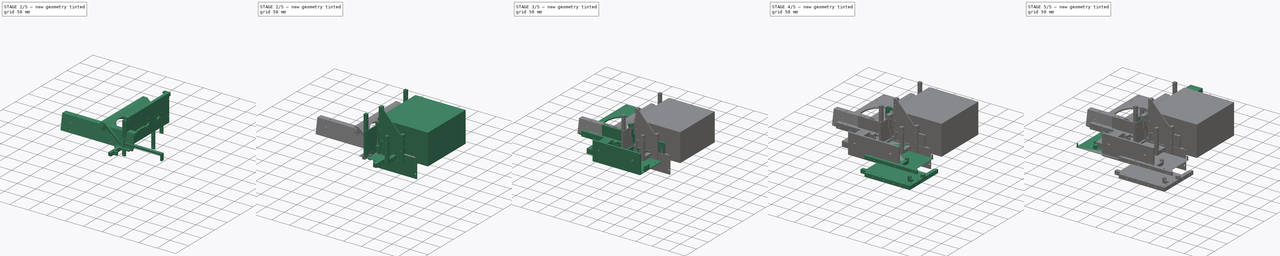
[diagram: build sequence overview — one tinted view per stage of 5, left to right]
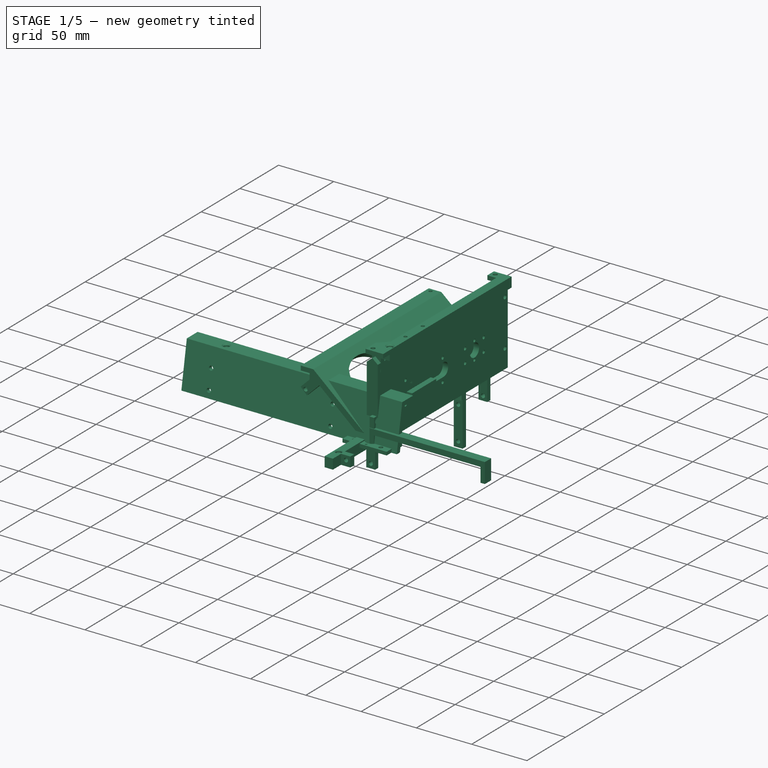
[diagram: stage 1 of 5 — iso view after this stage's code; geometry added in this stage tinted green]
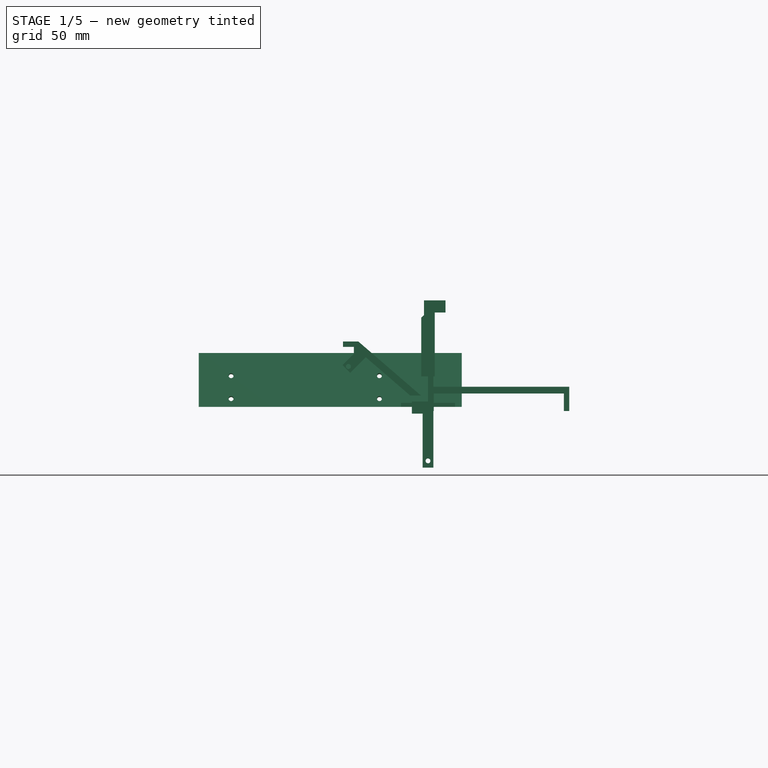
[diagram: stage 1 of 5 — front view after this stage's code; geometry added in this stage tinted green]
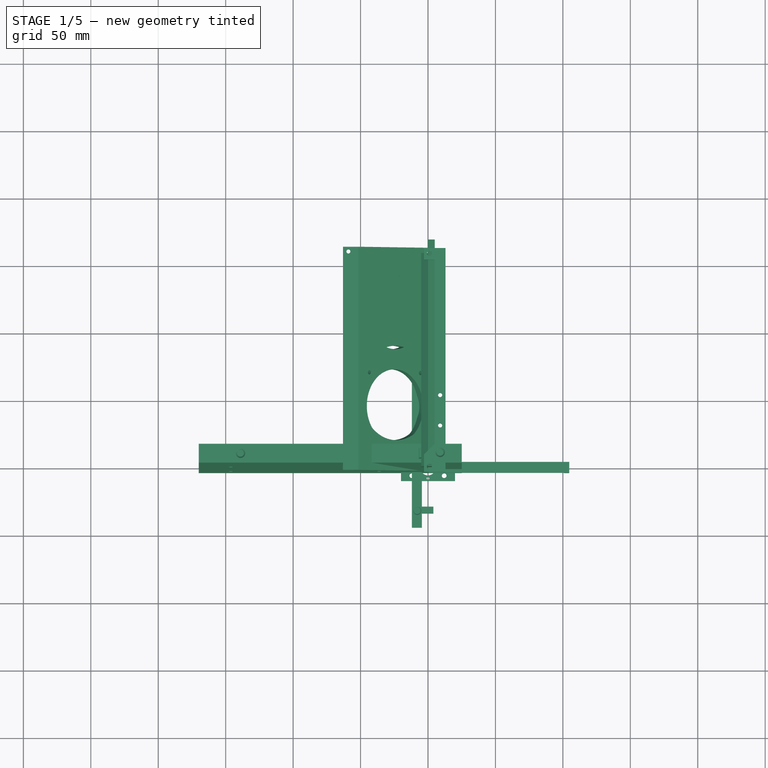
[diagram: stage 1 of 5 — top view after this stage's code; geometry added in this stage tinted green]
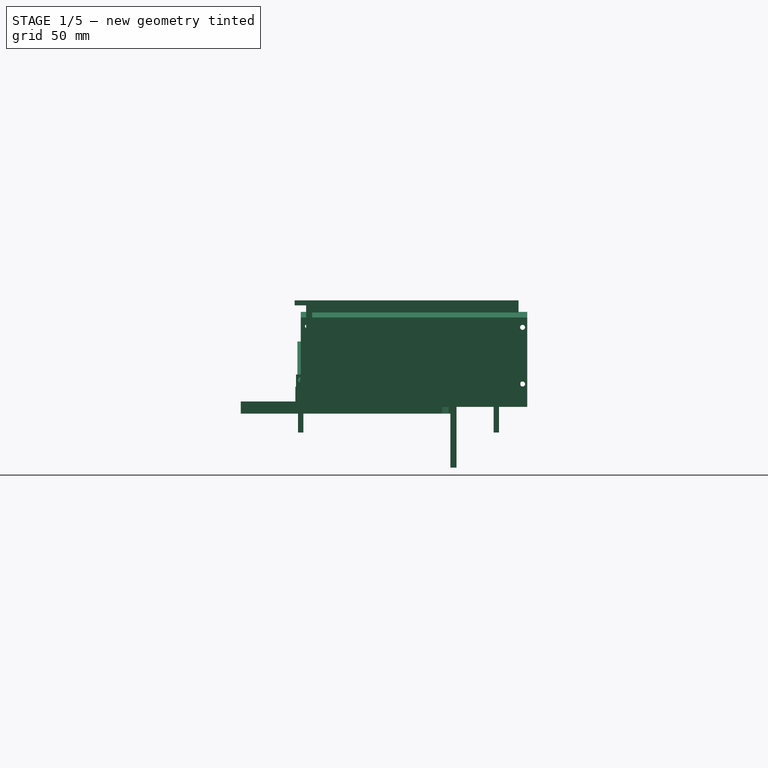
[diagram: stage 1 of 5 — right view after this stage's code; geometry added in this stage tinted green]
FCSTD DOCUMENT  (FreeCAD 0.19R24291 (Git))
Label: project
License: All rights reserved
LicenseURL: http://en.wikipedia.org/wiki/All_rights_reserved
objects: Sketcher::SketchObject×200, PartDesign::Pad×98, PartDesign::Pocket×97, PartDesign::Body×39, PartDesign::Chamfer×3, PartDesign::LinearPattern×1
note: 636 computed .brp shape members not serialized (recipe doc carries the construction recipe); baked Part::Feature solids carry a one-line shape summary decoded from their .brp

FEATURE [PartDesign::Body] Body003006042  label="coverblkg-b"
  Group = -> [Sketch266,Pad135,Sketch267,Pad136,Sketch268,Pad137,Sketch269,Pad138,Sketch270,Pad139,Pad140,Sketch271,Pocket119,Sketch272,Pocket120,Sketch273,Pocket121,Sketch274,Pocket122,Sketch275,Pocket123,Sketch276,Pocket124,Sketch277,Pocket125,Sketch278,Pad141]
  Origin = -> Origin050
  Placement = pos=(-116,-183,0) rot=(0,0,1;3.14159rad)
  Tip = -> Pad141
FEATURE [Sketcher::SketchObject] Sketch286
  FullyConstrained = false
  MapMode = 5
  Placement = pos=(0,0,0) rot=(0.57735,0.57735,0.57735;2.0944rad)
  Support = -> [YZ_Plane053]
  sketch-geometry (8):
    g0: LineSegment StartX=-44.5 StartY=0 StartZ=0 EndX=-44.5 EndY=-5 EndZ=0
    g1: LineSegment StartX=-44.5 StartY=-5 StartZ=0 EndX=0 EndY=-5 EndZ=0
    g2: LineSegment StartX=0 StartY=-5 StartZ=0 EndX=111 EndY=-5 EndZ=0
    g3: LineSegment StartX=115.5 StartY=4 StartZ=0 EndX=-44.5 EndY=4 EndZ=0
    g4: LineSegment StartX=-44.5 StartY=4 StartZ=0 EndX=-44.5 EndY=0 EndZ=0
    g5: LineSegment StartX=111 StartY=-5 StartZ=0 EndX=111 EndY=-45 EndZ=0
    g6: LineSegment StartX=111 StartY=-45 StartZ=0 EndX=115.5 EndY=-45 EndZ=0
    g7: LineSegment StartX=115.5 StartY=-45 StartZ=0 EndX=115.5 EndY=4 EndZ=0
  constraints (24):
    c: Vertical(g0)
    c: Coincident(g0,g1)
    c: Horizontal(g1)
    c: PointOnObject(g2,g-2)
    c: Horizontal(g2)
    c: Horizontal(g3)
    c: Coincident(g3,g4)
    c: Coincident(g4,g0)
    c: Vertical(g4)
    c: DistanceY(g4,g4) = 4
    c: PointOnObject(g0,g-1)
    c: Coincident(g1,g2)
    c: DistanceX(g3) = -44.5
    c: DistanceY(g1,g-1) = 5
    c: DistanceX(g2,g2) = 111
    c: Coincident(g2,g5)
    c: Vertical(g5)
    c: Coincident(g5,g6)
    c: Horizontal(g6)
    c: Coincident(g6,g7)
    c: Vertical(g7)
    c: DistanceX(g2,g7) = 4.5
    c: DistanceY(g5,g5) = 40
    c: Coincident(g7,g3)
FEATURE [PartDesign::Pad] Pad145
  AllowMultiFace = false
  Direction = (1,1,1)
  Length = 4
  Length2 = 12
  Midplane = true
  Placement = pos=(0,0,0) rot=(0.57735,0.57735,0.57735;2.0944rad)
  Profile = -> Sketch286
  Type = 4
FEATURE [Sketcher::SketchObject] Sketch287
  AttachmentOffset = pos=(0,0,34) rot=(0,0,1;0rad)
  FullyConstrained = false
  MapMode = 5
  Placement = pos=(0,-34,-7.5e-15) rot=(1,0,0;1.5708rad)
  Support = -> [XZ_Plane053]
  sketch-geometry (1):
    g0: Circle CenterX=0 CenterY=0 CenterZ=0 NormalX=0 NormalY=0 NormalZ=1 AngleXU=0 Radius=1.85
  constraints (2):
    c: Coincident(g0,g-1)
    c: Diameter(g0) = 3.7
FEATURE [PartDesign::Pocket] Pocket128  label="lubangsamping005"
  AllowMultiFace = false
  BaseFeature = -> Pad145
  Length = 5
  Length2 = 100
  Placement = pos=(0,0,0) rot=(0.57735,0.57735,0.57735;2.0944rad)
  Profile = -> Sketch287
  Type = 0
FEATURE [Sketcher::SketchObject] Sketch288
  FullyConstrained = false
  MapMode = 5
  Support = -> [XY_Plane053]
  sketch-geometry (8):
    g0: LineSegment StartX=-4.5 StartY=-34 StartZ=0 EndX=4.5 EndY=-34 EndZ=0
    g1: LineSegment StartX=4.5 StartY=-34 StartZ=0 EndX=4.5 EndY=-45 EndZ=0
    g2: LineSegment StartX=4.5 StartY=-45 StartZ=0 EndX=-4.5 EndY=-45 EndZ=0
    g3: LineSegment StartX=-4.5 StartY=-45 StartZ=0 EndX=-4.5 EndY=-34 EndZ=0
    g4: LineSegment StartX=-4.5 StartY=-29 StartZ=0 EndX=4.5 EndY=-29 EndZ=0
    g5: LineSegment StartX=4.5 StartY=-29 StartZ=0 EndX=4.5 EndY=110 EndZ=0
    g6: LineSegment StartX=4.5 StartY=110 StartZ=0 EndX=-4.5 EndY=104.804 EndZ=0
    g7: LineSegment StartX=-4.5 StartY=104.804 StartZ=0 EndX=-4.5 EndY=-29 EndZ=0
  constraints (22):
    c: Coincident(g0,g1)
    c: Coincident(g1,g2)
    c: Coincident(g2,g3)
    c: Coincident(g3,g0)
    c: Horizontal(g0)
    c: Vertical(g1)
    c: Vertical(g3)
    c: Symmetric(g1,g2,g-2)
    c: DistanceX(g2,g2) = 9
    c: DistanceY(g1,g0) = 11
    c: DistanceY(g0) = -34
    c: Coincident(g4,g5)
    c: Coincident(g5,g6)
    c: Coincident(g6,g7)
    c: Coincident(g7,g4)
    c: Vertical(g5)
    c: Vertical(g7)
    c: Symmetric(g4,g4,g-2)
    c: Equal(g4,g0)
    c: DistanceY(g4,g-1) = 29
    c: DistanceY(g-1,g5) = 110
    c: Angle(g6,g5) = 1.0472
FEATURE [PartDesign::Pocket] Pocket129  label="lubangatas009"
  AllowMultiFace = false
  BaseFeature = -> Pocket128
  Length = 5
  Length2 = 100
  Midplane = true
  Placement = pos=(0,0,0) rot=(0.57735,0.57735,0.57735;2.0944rad)
  Profile = -> Sketch288
  Type = 1
FEATURE [PartDesign::Body] Body003006049  label="jaringmountc2"
  Group = -> [Sketch298,Pad151,Sketch299,Pad152,Sketch300,Sketch301,Pad154,Sketch302,Pocket134,Sketch303,Pocket135,Sketch304,Pocket136]
  Origin = -> Origin057
  Placement = pos=(0,-300,35) rot=(0,0,1;0rad)
  Tip = -> Pocket136
FEATURE [Sketcher::SketchObject] Sketch305
  FullyConstrained = false
  MapMode = 5
  Placement = pos=(0,0,0) rot=(1,0,0;1.5708rad)
  Support = -> [XZ_Plane058]
  sketch-geometry (8):
    g0: LineSegment StartX=0.25 StartY=15 StartZ=0 EndX=0.25 EndY=-3 EndZ=0
    g1: LineSegment StartX=0.25 StartY=-3 StartZ=0 EndX=4.25 EndY=-3 EndZ=0
    g2: LineSegment StartX=4.25 StartY=-3 StartZ=0 EndX=4.25 EndY=10 EndZ=0
    g3: LineSegment StartX=4.25 StartY=10 StartZ=0 EndX=100.75 EndY=10 EndZ=0
    g4: LineSegment StartX=100.75 StartY=10 StartZ=0 EndX=100.75 EndY=-3 EndZ=0
    g5: LineSegment StartX=100.75 StartY=-3 StartZ=0 EndX=104.75 EndY=-3 EndZ=0
    g6: LineSegment StartX=104.75 StartY=-3 StartZ=0 EndX=104.75 EndY=15 EndZ=0
    g7: LineSegment StartX=104.75 StartY=15 StartZ=0 EndX=0.25 EndY=15 EndZ=0
  constraints (24):
    c: Vertical(g0)
    c: Coincident(g0,g1)
    c: Horizontal(g1)
    c: Coincident(g1,g2)
    c: Vertical(g2)
    c: Coincident(g2,g3)
    c: Horizontal(g3)
    c: Coincident(g3,g4)
    c: Vertical(g4)
    c: Coincident(g4,g5)
    c: Horizontal(g5)
    c: Coincident(g5,g6)
    c: Vertical(g6)
    c: Coincident(g6,g7)
    c: Coincident(g7,g0)
    c: Horizontal(g7)
    c: DistanceX(g0) = 0.25
    c: DistanceY(g0) = 15
    c: DistanceY(g0,g0) = 18
    c: DistanceX(g1,g1) = 4
    c: Equal(g1,g5)
    c: Equal(g4,g2)
    c: DistanceX(g7,g7) = 104.5
    c: DistanceY(g3,g6) = 5
FEATURE [PartDesign::Pad] Pad155  label="main001"
  AllowMultiFace = false
  Direction = (1,1,1)
  Length = 8
  Length2 = 100
  Midplane = true
  Placement = pos=(0,0,0) rot=(1,0,0;1.5708rad)
  Profile = -> Sketch305
  Type = 0
FEATURE [PartDesign::Body] Body003006050  label="jaringmountc-cover"
  Group = -> [Sketch305,Pad155,Sketch306,Pocket137,Sketch307,Pad156,Sketch308,Pocket138]
  Origin = -> Origin058
  Placement = pos=(-108,-300.5,95) rot=(0,0,1;0rad)
  Tip = -> Pocket138
FEATURE [Sketcher::SketchObject] Sketch310
  AttachmentOffset = pos=(0,0,75) rot=(0,0,1;0rad)
  FullyConstrained = false
  MapMode = 5
  Placement = pos=(0,0,75) rot=(0,0,1;0rad)
  Support = -> [XY_Plane059]
  sketch-geometry (14):
    g0: LineSegment StartX=5 StartY=4 StartZ=0 EndX=13 EndY=4 EndZ=0
    g1: LineSegment StartX=13 StartY=4 StartZ=0 EndX=13 EndY=161.5 EndZ=0
    g2: LineSegment StartX=13 StartY=161.5 StartZ=0 EndX=5.5 EndY=161.5 EndZ=0
    g3: Circle CenterX=9 CenterY=52.5 CenterZ=0 NormalX=0 NormalY=0 NormalZ=1 AngleXU=0 Radius=1.55
    g4: LineSegment StartX=9 StartY=52.5 StartZ=0 EndX=114 EndY=52.5 EndZ=0
    g5: LineSegment StartX=5 StartY=153 StartZ=0 EndX=5 EndY=16.5 EndZ=0
    g6: LineSegment StartX=5 StartY=16.5 StartZ=0 EndX=-3 EndY=8.5 EndZ=0
    g7: LineSegment StartX=-3 StartY=8.5 StartZ=0 EndX=5 EndY=8.5 EndZ=0
    g8: LineSegment StartX=5 StartY=8.5 StartZ=0 EndX=5 EndY=4 EndZ=0
    g9: Circle CenterX=9 CenterY=30 CenterZ=0 NormalX=0 NormalY=0 NormalZ=1 AngleXU=0 Radius=1.55
    g10: LineSegment StartX=9 StartY=30 StartZ=0 EndX=114 EndY=30 EndZ=0
    g11: Circle CenterX=9 CenterY=10 CenterZ=0 NormalX=0 NormalY=0 NormalZ=1 AngleXU=0 Radius=1.55
    g12: LineSegment StartX=5.5 StartY=161.5 StartZ=0 EndX=5.5 EndY=153 EndZ=0
    g13: LineSegment StartX=5.5 StartY=153 StartZ=0 EndX=5 EndY=153 EndZ=0
  constraints (41):
    c: Coincident(g0,g1)
    c: Coincident(g1,g2)
    c: Horizontal(g0)
    c: Horizontal(g2)
    c: Vertical(g1)
    c: DistanceX(g0) = 13
    c: DistanceY(g0) = 4
    c: DistanceX(g0,g0) = 8
    c: DistanceY(g3) = 52.5
    c: Diameter(g3) = 3.1
    c: DistanceY(g3,g1) = 109
    c: Coincident(g4,g3)
    c: Horizontal(g4)
    c: Vertical(g5)
    c: Coincident(g5,g6)
    c: Coincident(g6,g7)
    c: Horizontal(g7)
    c: Coincident(g8,g7)
    c: Coincident(g8,g0)
    c: Vertical(g8)
    c: DistanceX(g6) = -3
    c: DistanceY(g6) = 8.5
    c: Vertical(g5,g7)
    c: Angle(g7,g6) = 0.785398
    c: Vertical(g9,g3)
    c: DistanceY(g9,g3) = 22.5
    c: Equal(g9,g3)
    c: Coincident(g10,g9)
    c: Horizontal(g10)
    c: Equal(g10,g4)
    c: DistanceY(g11,g9) = 20
    c: Equal(g11,g9)
    c: Vertical(g11,g9)
    c: DistanceX(g9) = 9
    c: Coincident(g2,g12)
    c: Vertical(g12)
    c: Coincident(g12,g13)
    c: Coincident(g13,g5)
    c: Horizontal(g13)
    c: DistanceX(g2,g2) = 7.5
    c: DistanceY(g12,g12) = 8.5
FEATURE [Sketcher::SketchObject] Sketch311
  AttachmentOffset = pos=(0,0,5) rot=(0,0,1;0rad)
  FullyConstrained = false
  MapMode = 5
  Placement = pos=(5,-1.1e-15,1.1e-15) rot=(0.57735,0.57735,0.57735;2.0944rad)
  Support = -> [YZ_Plane059]
  sketch-geometry (5):
    g0: Circle CenterX=20 CenterY=71 CenterZ=0 NormalX=0 NormalY=0 NormalZ=1 AngleXU=0 Radius=1.55
    g1: LineSegment StartX=0 StartY=71 StartZ=0 EndX=20 EndY=71 EndZ=0
    g2: Circle CenterX=40 CenterY=71 CenterZ=0 NormalX=0 NormalY=0 NormalZ=1 AngleXU=0 Radius=1.55
    g3: LineSegment StartX=20 StartY=71 StartZ=0 EndX=40 EndY=71 EndZ=0
    g4: Circle CenterX=0 CenterY=30 CenterZ=0 NormalX=0 NormalY=0 NormalZ=1 AngleXU=0 Radius=1.55
  constraints (14):
    c: PointOnObject(g1,g-2)
    c: Horizontal(g1)
    c: Coincident(g1,g0)
    c: DistanceY(g1) = 71
    c: Coincident(g3,g0)
    c: Coincident(g3,g2)
    c: Horizontal(g3)
    c: Diameter(g0) = 3.1
    c: Equal(g0,g2)
    c: PointOnObject(g4,g-2)
    c: DistanceY(g4) = 30
    c: Equal(g4,g0)
    c: Equal(g3,g1)
    c: DistanceX(g1,g1) = 20
FEATURE [Sketcher::SketchObject] Sketch313
  FullyConstrained = false
  MapMode = 5
  Placement = pos=(0,0,0) rot=(0.57735,0.57735,0.57735;2.0944rad)
  Support = -> [YZ_Plane059]
  sketch-geometry (6):
    g0: LineSegment StartX=8.5 StartY=75 StartZ=0 EndX=4 EndY=75 EndZ=0
    g1: LineSegment StartX=8.5 StartY=75 StartZ=0 EndX=8.5 EndY=23.5 EndZ=0
    g2: LineSegment StartX=8.5 StartY=23.5 StartZ=0 EndX=5.5 EndY=23.5 EndZ=0
    g3: LineSegment StartX=4 StartY=26.5 StartZ=0 EndX=4 EndY=75 EndZ=0
    g4: LineSegment StartX=5.5 StartY=23.5 StartZ=0 EndX=1.5 EndY=23.5 EndZ=0
    g5: LineSegment StartX=1.5 StartY=23.5 StartZ=0 EndX=4 EndY=26.5 EndZ=0
  constraints (18):
    c: Horizontal(g0)
    c: Coincident(g0,g1)
    c: Vertical(g1)
    c: Coincident(g1,g2)
    c: Horizontal(g2)
    c: DistanceX(g2,g2) = 3
    c: Coincident(g3,g0)
    c: Vertical(g3)
    c: DistanceX(g2) = 5.5
    c: DistanceY(g2) = 23.5
    c: DistanceY(g3,g3) = 48.5
    c: Coincident(g2,g4)
    c: Horizontal(g4)
    c: Coincident(g4,g5)
    c: Coincident(g5,g3)
    c: DistanceY(g2,g3) = 3
    c: DistanceX(g4,g4) = 4
    c: DistanceX(g0,g0) = 4.5
FEATURE [Sketcher::SketchObject] Sketch314
  AttachmentOffset = pos=(1,0,75) rot=(0,0,1;0rad)
  FullyConstrained = false
  MapMode = 5
  Placement = pos=(1,0,75) rot=(0,0,1;0rad)
  Support = -> [XY_Plane059]
  sketch-geometry (2):
    g0: Circle CenterX=0 CenterY=0 CenterZ=0 NormalX=0 NormalY=0 NormalZ=1 AngleXU=0 Radius=1.55
    g1: Circle CenterX=0 CenterY=30 CenterZ=0 NormalX=0 NormalY=0 NormalZ=1 AngleXU=0 Radius=1.55
  constraints (5):
    c: Coincident(g0,g-1)
    c: PointOnObject(g1,g-2)
    c: Diameter(g0) = 3.1
    c: Equal(g0,g1)
    c: DistanceY(g1) = 30
FEATURE [Sketcher::SketchObject] Sketch315
  AttachmentOffset = pos=(1,0,5) rot=(0,0,1;0rad)
  FullyConstrained = false
  MapMode = 5
  Placement = pos=(1,-5,-1.1e-15) rot=(1,0,0;1.5708rad)
  Support = -> [XZ_Plane059]
  sketch-geometry (3):
    g0: Circle CenterX=-1 CenterY=0 CenterZ=0 NormalX=0 NormalY=0 NormalZ=1 AngleXU=0 Radius=1.55
    g1: Circle CenterX=0 CenterY=35 CenterZ=0 NormalX=0 NormalY=0 NormalZ=1 AngleXU=0 Radius=1.55
    g2: Circle CenterX=0 CenterY=65 CenterZ=0 NormalX=0 NormalY=0 NormalZ=1 AngleXU=0 Radius=1.55
  constraints (9):
    c: PointOnObject(g0,g-1)
    c: DistanceX(g0) = -1
    c: PointOnObject(g1,g-2)
    c: PointOnObject(g2,g-2)
    c: Diameter(g2) = 3.1
    c: Equal(g2,g1)
    c: DistanceY(g1) = 35
    c: DistanceY(g2) = 65
    c: Equal(g0,g1)
FEATURE [PartDesign::Pad] Pad157
  AllowMultiFace = false
  Direction = (1,1,1)
  Length = 5
  Length2 = 3
  Midplane = true
  Placement = pos=(0,0,0) rot=(0.57735,0.57735,0.57735;2.0944rad)
  Profile = -> Sketch313
  Type = 4
FEATURE [PartDesign::Pad] Pad159
  AllowMultiFace = false
  BaseFeature = -> Pad157
  Direction = (1,1,1)
  Length = 4
  Length2 = 5
  Placement = pos=(0,0,0) rot=(0.57735,0.57735,0.57735;2.0944rad)
  Profile = -> Sketch310
  Type = 4
FEATURE [PartDesign::Pocket] Pocket139  label="lubangsamping007"
  AllowMultiFace = false
  BaseFeature = -> Pad159
  Length = 5
  Length2 = 100
  Midplane = true
  Placement = pos=(0,0,0) rot=(0.57735,0.57735,0.57735;2.0944rad)
  Profile = -> Sketch311
  Type = 1
FEATURE [PartDesign::Pocket] Pocket140  label="lubangatas012"
  AllowMultiFace = false
  BaseFeature = -> Pocket139
  Length = 10
  Length2 = 100
  Placement = pos=(0,0,0) rot=(0.57735,0.57735,0.57735;2.0944rad)
  Profile = -> Sketch314
  Type = 0
FEATURE [PartDesign::Pocket] Pocket141  label="lubangblkg003"
  AllowMultiFace = false
  BaseFeature = -> Pocket140
  Length = 5
  Length2 = 100
  Placement = pos=(0,0,0) rot=(0.57735,0.57735,0.57735;2.0944rad)
  Profile = -> Sketch315
  Type = 1
FEATURE [Sketcher::SketchObject] Sketch321
  AttachmentOffset = pos=(0,0,-116) rot=(0,1,0;3.14159rad)
  FullyConstrained = false
  MapMode = 5
  Placement = pos=(0,116,2.58e-14) rot=(0,0.707107,0.707107;3.14159rad)
  Support = -> [XZ_Plane053]
  sketch-geometry (6):
    g0: Circle CenterX=0 CenterY=-10 CenterZ=0 NormalX=0 NormalY=0 NormalZ=1 AngleXU=0 Radius=1.8
    g1: Circle CenterX=0 CenterY=-40 CenterZ=0 NormalX=0 NormalY=0 NormalZ=1 AngleXU=0 Radius=1.8
    g2: LineSegment StartX=4 StartY=-5 StartZ=0 EndX=13 EndY=-5 EndZ=0
    g3: LineSegment StartX=13 StartY=-5 StartZ=0 EndX=13 EndY=-50 EndZ=0
    g4: LineSegment StartX=13 StartY=-50 StartZ=0 EndX=4 EndY=-50 EndZ=0
    g5: LineSegment StartX=4 StartY=-50 StartZ=0 EndX=4 EndY=-5 EndZ=0
  constraints (18):
    c: PointOnObject(g0,g-2)
    c: PointOnObject(g1,g-2)
    c: Coincident(g2,g3)
    c: Coincident(g3,g4)
    c: Coincident(g4,g5)
    c: Coincident(g5,g2)
    c: Horizontal(g2)
    c: Horizontal(g4)
    c: Vertical(g3)
    c: Vertical(g5)
    c: DistanceY(g0,g-1) = 10
    c: DistanceY(g1,g0) = 30
    c: Diameter(g0) = 3.6
    c: Equal(g0,g1)
    c: DistanceX(g-1,g2) = 4
    c: DistanceY(g3,g3) = 45
    c: DistanceX(g4,g4) = 9
    c: DistanceY(g2,g-1) = 5
FEATURE [PartDesign::Pocket] Pocket143
  AllowMultiFace = false
  BaseFeature = -> Pocket129
  Length = 5
  Length2 = 100
  Placement = pos=(0,0,0) rot=(0.57735,0.57735,0.57735;2.0944rad)
  Profile = -> Sketch321
  Type = 0
FEATURE [Sketcher::SketchObject] Sketch322
  AttachmentOffset = pos=(0,0,4) rot=(0,0,1;0rad)
  FullyConstrained = false
  MapMode = 5
  Placement = pos=(0,0,4) rot=(0,0,1;0rad)
  Support = -> [XY_Plane053]
  sketch-geometry (2):
    g0: Circle CenterX=-7 CenterY=110 CenterZ=0 NormalX=0 NormalY=0 NormalZ=1 AngleXU=0 Radius=2.55
    g1: Circle CenterX=-8 CenterY=-32 CenterZ=0 NormalX=0 NormalY=0 NormalZ=1 AngleXU=0 Radius=2.55
  constraints (6):
    c: Diameter(g0) = 5.1
    c: DistanceX(g1) = -8
    c: DistanceY(g1) = -32
    c: Equal(g1,g0)
    c: DistanceX(g0) = -7
    c: DistanceY(g0) = 110
FEATURE [PartDesign::Pocket] Pocket144  label="slotmagnet"
  AllowMultiFace = false
  BaseFeature = -> Pocket143
  Length = 2
  Length2 = 100
  Placement = pos=(0,0,0) rot=(0.57735,0.57735,0.57735;2.0944rad)
  Profile = -> Sketch322
  Type = 0
FEATURE [PartDesign::Chamfer] Chamfer
  Angle = 45
  Base = -> Pocket144 [Edge28,Edge29]
  BaseFeature = -> Pocket144
  ChamferType = 0
  FlipDirection = false
  Placement = pos=(0,0,0) rot=(0.57735,0.57735,0.57735;2.0944rad)
  Size = 0.5
  Size2 = 1
  SupportTransform = false
FEATURE [PartDesign::Body] Body003006045  label="jaringmounta"
  Group = -> [Sketch286,Pad145,Sketch287,Pocket128,Sketch288,Pocket129,Sketch321,Pocket143,Sketch322,Pocket144,Chamfer]
  Origin = -> Origin053
  Placement = pos=(-112,-22.5,110) rot=(0,0,1;3.14159rad)
  Tip = -> Chamfer
FEATURE [Sketcher::SketchObject] Sketch323
  AttachmentOffset = pos=(0,0,79) rot=(0,0,1;0rad)
  FullyConstrained = false
  MapMode = 5
  Placement = pos=(0,0,79) rot=(0,0,1;0rad)
  Support = -> [XY_Plane059]
  sketch-geometry (10):
    g0: LineSegment StartX=-3 StartY=8.5 StartZ=0 EndX=-3 EndY=-4.5 EndZ=0
    g1: LineSegment StartX=-3 StartY=-4.5 StartZ=0 EndX=13 EndY=-4.5 EndZ=0
    g2: LineSegment StartX=13 StartY=-4.5 StartZ=0 EndX=13 EndY=8.5 EndZ=0
    g3: LineSegment StartX=13 StartY=8.5 StartZ=0 EndX=-3 EndY=8.5 EndZ=0
    g4: Circle CenterX=1 CenterY=-0.5 CenterZ=0 NormalX=0 NormalY=0 NormalZ=1 AngleXU=0 Radius=1.85
    g5: LineSegment StartX=-3 StartY=153 StartZ=0 EndX=5.5 EndY=153 EndZ=0
    g6: LineSegment StartX=5.5 StartY=153 StartZ=0 EndX=5.5 EndY=161.5 EndZ=0
    g7: LineSegment StartX=5.5 StartY=161.5 StartZ=0 EndX=-3 EndY=161.5 EndZ=0
    g8: LineSegment StartX=-3 StartY=161.5 StartZ=0 EndX=-3 EndY=153 EndZ=0
    g9: Circle CenterX=1 CenterY=157.5 CenterZ=0 NormalX=0 NormalY=0 NormalZ=1 AngleXU=0 Radius=1.85
  constraints (30):
    c: Vertical(g0)
    c: Coincident(g0,g1)
    c: Horizontal(g1)
    c: Coincident(g1,g2)
    c: Vertical(g2)
    c: Coincident(g2,g3)
    c: Horizontal(g3)
    c: Coincident(g3,g0)
    c: DistanceX(g2) = 13
    c: DistanceY(g2) = 8.5
    c: DistanceX(g1,g1) = 16
    c: DistanceY(g0,g0) = 13
    c: DistanceX(g4) = 1
    c: DistanceY(g4) = -0.5
    c: Diameter(g4) = 3.7
    c: Coincident(g5,g6)
    c: Coincident(g6,g7)
    c: Coincident(g7,g8)
    c: Coincident(g8,g5)
    c: Horizontal(g5)
    c: Horizontal(g7)
    c: Vertical(g6)
    c: Vertical(g8)
    c: DistanceX(g5) = -3
    c: DistanceY(g5) = 153
    c: DistanceX(g7,g7) = 8.5
    c: DistanceY(g6,g6) = 8.5
    c: DistanceX(g9,g6) = 4.5
    c: DistanceY(g9,g6) = 4
    c: Diameter(g9) = 3.7
FEATURE [PartDesign::Pad] Pad163  label="tambahanatas"
  AllowMultiFace = false
  BaseFeature = -> Pocket141
  Direction = (1,1,1)
  Length = 3.75
  Length2 = 100
  Placement = pos=(0,0,0) rot=(0.57735,0.57735,0.57735;2.0944rad)
  Profile = -> Sketch323
  Reversed = true
  Type = 0
FEATURE [Sketcher::SketchObject] Sketch324
  AttachmentOffset = pos=(0,0,79) rot=(0,0,1;0rad)
  FullyConstrained = false
  MapMode = 5
  Placement = pos=(0,0,79) rot=(0,0,1;0rad)
  Support = -> [XY_Plane059]
  sketch-geometry (1):
    g0: Circle CenterX=9 CenterY=10 CenterZ=0 NormalX=0 NormalY=0 NormalZ=1 AngleXU=0 Radius=2.55
  constraints (3):
    c: DistanceX(g0) = 9
    c: DistanceY(g0) = 10
    c: Diameter(g0) = 5.1
FEATURE [PartDesign::Pocket] Pocket145  label="magnet"
  AllowMultiFace = false
  BaseFeature = -> Pad163
  Length = 2
  Length2 = 100
  Placement = pos=(0,0,0) rot=(0.57735,0.57735,0.57735;2.0944rad)
  Profile = -> Sketch324
  Type = 0
FEATURE [PartDesign::Chamfer] Chamfer001
  Angle = 45
  Base = -> Pocket145 [Edge93,Edge69,Edge68]
  BaseFeature = -> Pocket145
  ChamferType = 0
  FlipDirection = false
  Placement = pos=(0,0,0) rot=(0.57735,0.57735,0.57735;2.0944rad)
  Size = 1
  Size2 = 1
  SupportTransform = false
FEATURE [PartDesign::Body] Body003006051  label="jaringmountc1"
  Group = -> [Sketch313,Pad157,Sketch310,Pad159,Sketch311,Pocket139,Sketch314,Pocket140,Sketch315,Pocket141,Sketch323,Pad163,Sketch324,Pocket145,Chamfer001]
  Origin = -> Origin059
  Placement = pos=(-113,-300,35) rot=(0,0,1;0rad)
  Tip = -> Chamfer001
FEATURE [Sketcher::SketchObject] Sketch325
  FullyConstrained = false
  MapMode = 5
  Placement = pos=(0,0,0) rot=(1,0,0;1.5708rad)
  Support = -> [XZ_Plane060]
  sketch-geometry (8):
    g0: LineSegment StartX=-4 StartY=0.5 StartZ=0 EndX=4 EndY=0.5 EndZ=0
    g1: LineSegment StartX=4 StartY=0.5 StartZ=0 EndX=-51.6364 EndY=48.5 EndZ=0
    g2: LineSegment StartX=-51.6364 StartY=48.5 StartZ=0 EndX=-63 EndY=48.5 EndZ=0
    g3: LineSegment StartX=-63 StartY=48.5 StartZ=0 EndX=-63 EndY=44.5 EndZ=0
    g4: LineSegment StartX=-63 StartY=44.5 StartZ=0 EndX=-55 EndY=44.5 EndZ=0
    g5: LineSegment StartX=-55 StartY=44.5 StartZ=0 EndX=-4 EndY=0.5 EndZ=0
    g6: LineSegment StartX=-55 StartY=44.5 StartZ=0 EndX=-51.5863 EndY=48.4568 EndZ=0
    g7: LineSegment StartX=-4 StartY=0 StartZ=0 EndX=-55 EndY=44 EndZ=0
  constraints (26):
    c: Coincident(g0,g1)
    c: Coincident(g1,g2)
    c: Horizontal(g2)
    c: Coincident(g2,g3)
    c: Vertical(g3)
    c: Coincident(g3,g4)
    c: Horizontal(g4)
    c: Coincident(g5,g0)
    c: Parallel(g5,g1)
    c: PointOnObject(g6,g1)
    c: Perpendicular(g1,g6)
    c: DistanceX(g-1,g0) = 4
    c: Horizontal(g0)
    c: Distance(g6) = 5.22587
    c: Coincident(g5,g4)
    c: Coincident(g6,g4)
    c: DistanceY(g0) = 0.5
    c: DistanceX(g7) = -4
    c: DistanceY(g7) = 0
    c: DistanceX(g7) = -55
    c: DistanceY(g7) = 44
    c: Parallel(g5,g7)
    c: DistanceX(g0) = -4
    c: DistanceY(g7,g3) = 0.5
    c: DistanceX(g4,g4) = 8
    c: DistanceY(g3,g3) = 4
FEATURE [PartDesign::Pad] Pad164  label="main002"
  AllowMultiFace = false
  Direction = (1,1,1)
  Length = 2.5
  Length2 = 163
  Placement = pos=(0,0,0) rot=(1,0,0;1.5708rad)
  Profile = -> Sketch325
  Type = 4
FEATURE [Sketcher::SketchObject] Sketch326
  AttachmentOffset = pos=(0,0,57) rot=(0,0,1;0rad)
  FullyConstrained = false
  MapMode = 5
  Placement = pos=(0,0,57) rot=(0,0,1;0rad)
  Support = -> [XY_Plane060]
  sketch-geometry (4):
    g0: LineSegment StartX=-63.5 StartY=-5.5 StartZ=0 EndX=-54.5 EndY=-5.5 EndZ=0
    g1: LineSegment StartX=-54.5 StartY=-5.5 StartZ=0 EndX=-54.5 EndY=5.5 EndZ=0
    g2: LineSegment StartX=-54.5 StartY=5.5 StartZ=0 EndX=-63.5 EndY=5.5 EndZ=0
    g3: LineSegment StartX=-63.5 StartY=5.5 StartZ=0 EndX=-63.5 EndY=-5.5 EndZ=0
  constraints (12):
    c: Coincident(g0,g1)
    c: Coincident(g1,g2)
    c: Coincident(g2,g3)
    c: Coincident(g3,g0)
    c: Horizontal(g0)
    c: Horizontal(g2)
    c: Vertical(g1)
    c: Vertical(g3)
    c: DistanceX(g1) = -54.5
    c: DistanceY(g1) = 5.5
    c: DistanceX(g0,g0) = 9
    c: DistanceY(g3,g3) = 11
FEATURE [PartDesign::Pocket] Pocket146  label="cuta"
  AllowMultiFace = false
  BaseFeature = -> Pad164
  Length = 5
  Length2 = 100
  Placement = pos=(0,0,0) rot=(1,0,0;1.5708rad)
  Profile = -> Sketch326
  Type = 1
FEATURE [Sketcher::SketchObject] Sketch327
  AttachmentOffset = pos=(0,0,-55) rot=(0,0,1;0rad)
  FullyConstrained = false
  MapMode = 5
  Placement = pos=(-55,1.22e-14,-1.22e-14) rot=(0.57735,0.57735,0.57735;2.0944rad)
  Support = -> [YZ_Plane060]
  sketch-geometry (10):
    g0: LineSegment StartX=-2.5 StartY=44 StartZ=0 EndX=4 EndY=44 EndZ=0
    g1: LineSegment StartX=4 StartY=44 StartZ=0 EndX=4 EndY=37 EndZ=0
    g2: LineSegment StartX=4 StartY=37 StartZ=0 EndX=-2.5 EndY=37 EndZ=0
    g3: LineSegment StartX=-2.5 StartY=37 StartZ=0 EndX=-2.5 EndY=44 EndZ=0
    g4: Circle CenterX=0 CenterY=40 CenterZ=0 NormalX=0 NormalY=0 NormalZ=1 AngleXU=0 Radius=1.55
    g5: LineSegment StartX=163 StartY=44 StartZ=0 EndX=156 EndY=44 EndZ=0
    g6: LineSegment StartX=156 StartY=44 StartZ=0 EndX=156 EndY=22 EndZ=0
    g7: LineSegment StartX=156 StartY=22 StartZ=0 EndX=163 EndY=22 EndZ=0
    g8: LineSegment StartX=163 StartY=22 StartZ=0 EndX=163 EndY=44 EndZ=0
    g9: Circle CenterX=159.5 CenterY=25 CenterZ=0 NormalX=0 NormalY=0 NormalZ=1 AngleXU=0 Radius=1.55
  constraints (30):
    c: Coincident(g0,g1)
    c: Coincident(g1,g2)
    c: Coincident(g2,g3)
    c: Coincident(g3,g0)
    c: Horizontal(g0)
    c: Horizontal(g2)
    c: Vertical(g1)
    c: Vertical(g3)
    c: PointOnObject(g4,g-2)
    c: DistanceX(g1) = 4
    c: DistanceX(g2,g2) = 6.5
    c: DistanceY(g1,g1) = 7
    c: Diameter(g4) = 3.1
    c: DistanceY(g4) = 40
    c: Coincident(g5,g6)
    c: Coincident(g6,g7)
    c: Coincident(g7,g8)
    c: Coincident(g8,g5)
    c: Horizontal(g5)
    c: Horizontal(g7)
    c: Vertical(g6)
    c: Vertical(g8)
    c: DistanceX(g6) = 156
    c: DistanceY(g6) = 22
    c: DistanceX(g6,g9) = 3.5
    c: DistanceY(g6,g9) = 3
    c: Diameter(g9) = 3.1
    c: DistanceY(g8,g8) = 22
    c: DistanceX(g5,g5) = 7
    c: DistanceY(g0) = 44
FEATURE [Sketcher::SketchObject] Sketch328
  FullyConstrained = false
  MapMode = 5
  Placement = pos=(0,0,0) rot=(1,0,0;1.5708rad)
  Support = -> [XZ_Plane060]
  sketch-geometry (3):
    g0: LineSegment StartX=-55 StartY=45 StartZ=0 EndX=-55 EndY=37 EndZ=0
    g1: LineSegment StartX=-55 StartY=37 StartZ=0 EndX=-46 EndY=37 EndZ=0
    g2: LineSegment StartX=-46 StartY=37 StartZ=0 EndX=-55 EndY=45 EndZ=0
  constraints (9):
    c: Vertical(g0)
    c: Coincident(g0,g1)
    c: Horizontal(g1)
    c: Coincident(g1,g2)
    c: Coincident(g2,g0)
    c: DistanceX(g1) = -46
    c: DistanceY(g1) = 37
    c: DistanceX(g1,g1) = 9
    c: DistanceY(g0,g0) = 8
FEATURE [PartDesign::Pad] Pad165  label="mounta"
  AllowMultiFace = false
  BaseFeature = -> Pocket146
  Direction = (1,1,1)
  Length = 2.5
  Length2 = 4
  Placement = pos=(0,0,0) rot=(1,0,0;1.5708rad)
  Profile = -> Sketch328
  Type = 4
FEATURE [Sketcher::SketchObject] Sketch329
  AttachmentOffset = pos=(0,0,-163) rot=(0,0,1;0rad)
  FullyConstrained = false
  MapMode = 5
  Placement = pos=(0,163,3.62e-14) rot=(1,0,0;1.5708rad)
  Support = -> [XZ_Plane060]
  sketch-geometry (4):
    g0: LineSegment StartX=-55 StartY=45 StartZ=0 EndX=-55 EndY=21 EndZ=0
    g1: LineSegment StartX=-55 StartY=21 StartZ=0 EndX=-51 EndY=21 EndZ=0
    g2: LineSegment StartX=-51 StartY=21 StartZ=0 EndX=-40.8345 EndY=33 EndZ=0
    g3: LineSegment StartX=-40.8345 StartY=33 StartZ=0 EndX=-55 EndY=45 EndZ=0
  constraints (12):
    c: Vertical(g0)
    c: Coincident(g0,g1)
    c: Horizontal(g1)
    c: Coincident(g1,g2)
    c: Coincident(g2,g3)
    c: Coincident(g3,g0)
    c: DistanceX(g1) = -51
    c: DistanceX(g1,g1) = 4
    c: DistanceY(g0,g0) = 24
    c: Perpendicular(g3,g2)
    c: DistanceY(g1,g2) = 12
    c: DistanceY(g0) = 45
FEATURE [PartDesign::Pad] Pad166  label="mountb"
  AllowMultiFace = false
  BaseFeature = -> Pad165
  Direction = (1,1,1)
  Length = 7
  Length2 = 100
  Placement = pos=(0,0,0) rot=(1,0,0;1.5708rad)
  Profile = -> Sketch329
  Type = 0
FEATURE [PartDesign::Pocket] Pocket147  label="mountab-sekrup"
  AllowMultiFace = false
  BaseFeature = -> Pad166
  Length = 9
  Length2 = 100
  Placement = pos=(0,0,0) rot=(1,0,0;1.5708rad)
  Profile = -> Sketch327
  Reversed = true
  Type = 0
FEATURE [Sketcher::SketchObject] Sketch330
  FullyConstrained = false
  MapMode = 5
  Support = -> [XY_Plane060]
  sketch-geometry (3):
    g0: Circle CenterX=0 CenterY=0 CenterZ=0 NormalX=0 NormalY=0 NormalZ=1 AngleXU=0 Radius=1.7
    g1: Circle CenterX=0 CenterY=159.5 CenterZ=0 NormalX=0 NormalY=0 NormalZ=1 AngleXU=0 Radius=1.7
    g2: Circle CenterX=-59 CenterY=159.5 CenterZ=0 NormalX=0 NormalY=0 NormalZ=1 AngleXU=0 Radius=1.5
  constraints (8):
    c: Coincident(g0,g-1)
    c: DistanceY(g0,g1) = 159.5
    c: Diameter(g0) = 3.4
    c: Equal(g0,g1)
    c: PointOnObject(g1,g-2)
    c: DistanceX(g2) = -59
    c: DistanceY(g2) = 159.5
    c: Diameter(g2) = 3
FEATURE [PartDesign::Pocket] Pocket148  label="sekrupatas001"
  AllowMultiFace = false
  BaseFeature = -> Pocket147
  Length = 5
  Length2 = 100
  Midplane = true
  Placement = pos=(0,0,0) rot=(1,0,0;1.5708rad)
  Profile = -> Sketch330
  Type = 1
FEATURE [Sketcher::SketchObject] Sketch331
  FullyConstrained = false
  MapMode = 5
  Placement = pos=(1.95415,1e-15,2.26504) rot=(0.348456,0,0.937325;3.14159rad)
  Support = -> [Pocket148]
  sketch-geometry (23):
    g0: Circle CenterX=35 CenterY=-45 CenterZ=0 NormalX=0 NormalY=0 NormalZ=1 AngleXU=0 Radius=27.5
    g1: LineSegment StartX=35 StartY=-45 StartZ=0 EndX=0 EndY=-45 EndZ=0
    g2: LineSegment StartX=10 StartY=-20 StartZ=0 EndX=60 EndY=-20 EndZ=0
    g3: LineSegment StartX=60 StartY=-20 StartZ=0 EndX=60 EndY=-70 EndZ=0
    g4: LineSegment StartX=60 StartY=-70 StartZ=0 EndX=10 EndY=-70 EndZ=0
    g5: LineSegment StartX=10 StartY=-70 StartZ=0 EndX=10 EndY=-20 EndZ=0
    g6: LineSegment StartX=7.5 StartY=-45 StartZ=0 EndX=62.5 EndY=-45 EndZ=0
    g7: LineSegment StartX=35 StartY=-45 StartZ=0 EndX=35 EndY=-17.5 EndZ=0
    g8: Circle CenterX=60 CenterY=-20 CenterZ=0 NormalX=0 NormalY=0 NormalZ=1 AngleXU=0 Radius=1.5
    g9: Circle CenterX=60 CenterY=-70 CenterZ=0 NormalX=0 NormalY=0 NormalZ=1 AngleXU=0 Radius=1.5
    g10: Circle CenterX=35 CenterY=-115 CenterZ=0 NormalX=0 NormalY=0 NormalZ=1 AngleXU=0 Radius=27.5
    g11: LineSegment StartX=10 StartY=-90 StartZ=0 EndX=60 EndY=-90 EndZ=0
    g12: LineSegment StartX=60 StartY=-90 StartZ=0 EndX=60 EndY=-140 EndZ=0
    g13: LineSegment StartX=60 StartY=-140 StartZ=0 EndX=10 EndY=-140 EndZ=0
    g14: LineSegment StartX=10 StartY=-140 StartZ=0 EndX=10 EndY=-90 EndZ=0
    g15: LineSegment StartX=10 StartY=-115 StartZ=0 EndX=35 EndY=-115 EndZ=0
    g16: LineSegment StartX=35 StartY=-115 StartZ=0 EndX=35 EndY=-90 EndZ=0
    g17: Circle CenterX=60 CenterY=-90 CenterZ=0 NormalX=0 NormalY=0 NormalZ=1 AngleXU=0 Radius=1.5
    g18: Circle CenterX=60 CenterY=-140 CenterZ=0 NormalX=0 NormalY=0 NormalZ=1 AngleXU=0 Radius=1.5
    g19: Circle CenterX=10 CenterY=-20 CenterZ=0 NormalX=0 NormalY=0 NormalZ=1 AngleXU=0 Radius=1.5
    g20: Circle CenterX=10 CenterY=-70 CenterZ=0 NormalX=0 NormalY=0 NormalZ=1 AngleXU=0 Radius=1.5
    g21: Circle CenterX=10 CenterY=-90 CenterZ=0 NormalX=0 NormalY=0 NormalZ=1 AngleXU=0 Radius=1.5
    g22: Circle CenterX=10 CenterY=-140 CenterZ=0 NormalX=0 NormalY=0 NormalZ=1 AngleXU=0 Radius=1.5
  constraints (59):
    c: Diameter(g0) = 55
    c: Coincident(g1,g0)
    c: PointOnObject(g1,g-2)
    c: Horizontal(g1)
    c: DistanceY(g1,g-1) = 45
    c: DistanceX(g0) = 35
    c: Coincident(g2,g3)
    c: Coincident(g3,g4)
    c: Coincident(g4,g5)
    c: Coincident(g5,g2)
    c: Horizontal(g2)
    c: Horizontal(g4)
    c: Vertical(g3)
    c: Vertical(g5)
    c: Equal(g4,g3)
    c: DistanceX(g2,g2) = 50
    c: PointOnObject(g6,g0)
    c: PointOnObject(g6,g0)
    c: PointOnObject(g0,g6)
    c: Symmetric(g2,g4,g6)
    c: Coincident(g7,g0)
    c: PointOnObject(g7,g0)
    c: Symmetric(g2,g2,g7)
    c: Coincident(g8,g2)
    c: Coincident(g9,g3)
    c: Diameter(g9) = 3
    c: Equal(g9,g8)
    c: Equal(g10,g0)
    c: Coincident(g11,g12)
    c: Coincident(g12,g13)
    c: Coincident(g13,g14)
    c: Coincident(g14,g11)
    c: Horizontal(g11)
    c: Horizontal(g13)
    c: Vertical(g12)
    c: Vertical(g14)
    c: Equal(g11,g12)
    c: Equal(g11,g4)
    c: Vertical(g11,g4)
    c: Vertical(g10,g0)
    c: DistanceY(g10,g0) = 70
    c: Coincident(g15,g10)
    c: Horizontal(g15)
    c: Coincident(g16,g10)
    c: PointOnObject(g16,g11)
    c: Vertical(g16)
    c: Symmetric(g11,g13,g15)
    c: Coincident(g17,g11)
    c: Coincident(g18,g12)
    c: Equal(g18,g17)
    c: Equal(g17,g9)
    c: Coincident(g19,g2)
    c: Coincident(g20,g4)
    c: Coincident(g21,g11)
    c: Coincident(g22,g13)
    c: Equal(g22,g21)
    c: Equal(g21,g20)
    c: Equal(g20,g19)
    c: Equal(g19,g8)
FEATURE [PartDesign::Pocket] Pocket149  label="fan-o"
  AllowMultiFace = false
  BaseFeature = -> Pocket148
  Length = 5
  Length2 = 100
  Placement = pos=(0,0,0) rot=(1,0,0;1.5708rad)
  Profile = -> Sketch331
  Type = 1
FEATURE [PartDesign::Body] Body003006052  label="coverback"
  Group = -> [Sketch325,Pad164,Sketch326,Pocket146,Sketch327,Sketch328,Pad165,Sketch329,Pad166,Pocket147,Sketch330,Pocket148,Sketch331,Pocket149]
  Origin = -> Origin060
  Placement = pos=(-171,17,70) rot=(0,0,1;3.14159rad)
  Tip = -> Pocket149
FEATURE [Sketcher::SketchObject] Sketch332
  FullyConstrained = false
  MapMode = 5
  Placement = pos=(0,0,0) rot=(1,0,0;1.5708rad)
  Support = -> [XZ_Plane061]
  sketch-geometry (8):
    g0: LineSegment StartX=-4 StartY=0.5 StartZ=0 EndX=4 EndY=0.5 EndZ=0
    g1: LineSegment StartX=4 StartY=0.5 StartZ=0 EndX=-51.6364 EndY=48.5 EndZ=0
    g2: LineSegment StartX=-51.6364 StartY=48.5 StartZ=0 EndX=-63 EndY=48.5 EndZ=0
    g3: LineSegment StartX=-63 StartY=48.5 StartZ=0 EndX=-63 EndY=44.5 EndZ=0
    g4: LineSegment StartX=-63 StartY=44.5 StartZ=0 EndX=-55 EndY=44.5 EndZ=0
    g5: LineSegment StartX=-55 StartY=44.5 StartZ=0 EndX=-4 EndY=0.5 EndZ=0
    g6: LineSegment StartX=-55 StartY=44.5 StartZ=0 EndX=-51.5863 EndY=48.4568 EndZ=0
    g7: LineSegment StartX=-4 StartY=0 StartZ=0 EndX=-55 EndY=44 EndZ=0
  constraints (26):
    c: Coincident(g0,g1)
    c: Coincident(g1,g2)
    c: Horizontal(g2)
    c: Coincident(g2,g3)
    c: Vertical(g3)
    c: Coincident(g3,g4)
    c: Horizontal(g4)
    c: Coincident(g5,g0)
    c: Parallel(g5,g1)
    c: PointOnObject(g6,g1)
    c: Perpendicular(g1,g6)
    c: DistanceX(g-1,g0) = 4
    c: Horizontal(g0)
    c: Distance(g6) = 5.22587
    c: Coincident(g5,g4)
    c: Coincident(g6,g4)
    c: DistanceY(g0) = 0.5
    c: DistanceX(g7) = -4
    c: DistanceY(g7) = 0
    c: DistanceX(g7) = -55
    c: DistanceY(g7) = 44
    c: Parallel(g5,g7)
    c: DistanceX(g0) = -4
    c: DistanceY(g7,g3) = 0.5
    c: DistanceX(g4,g4) = 8
    c: DistanceY(g3,g3) = 4
FEATURE [PartDesign::Pad] Pad167  label="main003"
  AllowMultiFace = false
  Direction = (1,1,1)
  Length = 2.5
  Length2 = 155.5
  Placement = pos=(0,0,0) rot=(1,0,0;1.5708rad)
  Profile = -> Sketch332
  Type = 4
FEATURE [Sketcher::SketchObject] Sketch333
  AttachmentOffset = pos=(0,0,57) rot=(0,0,1;0rad)
  FullyConstrained = false
  MapMode = 5
  Placement = pos=(0,0,57) rot=(0,0,1;0rad)
  Support = -> [XY_Plane061]
  sketch-geometry (1):
    g0: Circle CenterX=-59 CenterY=151.5 CenterZ=0 NormalX=0 NormalY=0 NormalZ=1 AngleXU=0 Radius=1.85
  constraints (3):
    c: Diameter(g0) = 3.7
    c: DistanceX(g0) = -59
    c: DistanceY(g0) = 151.5
FEATURE [PartDesign::Pocket] Pocket150  label="cuta001"
  AllowMultiFace = false
  BaseFeature = -> Pad167
  Length = 5
  Length2 = 100
  Placement = pos=(0,0,0) rot=(1,0,0;1.5708rad)
  Profile = -> Sketch333
  Type = 1
FEATURE [Sketcher::SketchObject] Sketch335
  AttachmentOffset = pos=(0,0,0) rot=(0,1,0;3.14159rad)
  FullyConstrained = false
  MapMode = 5
  Placement = pos=(0,0,0) rot=(0,0.707107,0.707107;3.14159rad)
  Support = -> [XZ_Plane061]
  sketch-geometry (4):
    g0: LineSegment StartX=-4 StartY=1 StartZ=0 EndX=-4 EndY=-19 EndZ=0
    g1: LineSegment StartX=-4 StartY=-19 StartZ=0 EndX=4 EndY=-19 EndZ=0
    g2: LineSegment StartX=4 StartY=-19 StartZ=0 EndX=4 EndY=2 EndZ=0
    g3: LineSegment StartX=-4 StartY=1 StartZ=0 EndX=4 EndY=2 EndZ=0
  constraints (7):
    c: Vertical(g0)
    c: Coincident(g0,g1)
    c: Horizontal(g1)
    c: Coincident(g1,g2)
    c: Vertical(g2)
    c: Coincident(g3,g0)
    c: Coincident(g3,g2)
FEATURE [Sketcher::SketchObject] Sketch337
  FullyConstrained = false
  MapMode = 5
  Support = -> [XY_Plane061]
  sketch-geometry (2):
    g0: Circle CenterX=0 CenterY=0 CenterZ=0 NormalX=0 NormalY=0 NormalZ=1 AngleXU=0 Radius=1.7
    g1: Circle CenterX=0 CenterY=151.5 CenterZ=0 NormalX=0 NormalY=0 NormalZ=1 AngleXU=0 Radius=1.7
  constraints (5):
    c: Coincident(g0,g-1)
    c: DistanceY(g0,g1) = 151.5
    c: Diameter(g0) = 3.4
    c: Equal(g0,g1)
    c: PointOnObject(g1,g-2)
FEATURE [PartDesign::Pocket] Pocket152  label="sekrupatas002"
  AllowMultiFace = false
  BaseFeature = -> Pocket150
  Length = 5
  Length2 = 100
  Midplane = true
  Placement = pos=(0,0,0) rot=(1,0,0;1.5708rad)
  Profile = -> Sketch337
  Type = 1
FEATURE [Sketcher::SketchObject] Sketch338
  FullyConstrained = false
  MapMode = 5
  Placement = pos=(1.95415,0,2.26504) rot=(0.348456,0,0.937325;3.14159rad)
  Support = -> [Pocket152]
  sketch-geometry (10):
    g0: Circle CenterX=34 CenterY=-55 CenterZ=0 NormalX=0 NormalY=0 NormalZ=1 AngleXU=0 Radius=35
    g1: LineSegment StartX=34 StartY=-55 StartZ=0 EndX=0 EndY=-55 EndZ=0
    g2: LineSegment StartX=-1 StartY=-20 StartZ=0 EndX=69 EndY=-20 EndZ=0
    g3: LineSegment StartX=69 StartY=-20 StartZ=0 EndX=69 EndY=-90 EndZ=0
    g4: LineSegment StartX=69 StartY=-90 StartZ=0 EndX=-1 EndY=-90 EndZ=0
    g5: LineSegment StartX=-1 StartY=-90 StartZ=0 EndX=-1 EndY=-20 EndZ=0
    g6: LineSegment StartX=-1 StartY=-55 StartZ=0 EndX=69 EndY=-55 EndZ=0
    g7: LineSegment StartX=34 StartY=-55 StartZ=0 EndX=34 EndY=-20 EndZ=0
    g8: Circle CenterX=69 CenterY=-20 CenterZ=0 NormalX=0 NormalY=0 NormalZ=1 AngleXU=0 Radius=1.5
    g9: Circle CenterX=69 CenterY=-90 CenterZ=0 NormalX=0 NormalY=0 NormalZ=1 AngleXU=0 Radius=1.5
  constraints (27):
    c: Diameter(g0) = 70
    c: Coincident(g1,g0)
    c: PointOnObject(g1,g-2)
    c: Horizontal(g1)
    c: DistanceY(g1,g-1) = 55
    c: DistanceX(g0) = 34
    c: Coincident(g2,g3)
    c: Coincident(g3,g4)
    c: Coincident(g4,g5)
    c: Coincident(g5,g2)
    c: Horizontal(g2)
    c: Horizontal(g4)
    c: Vertical(g3)
    c: Vertical(g5)
    c: Equal(g4,g3)
    c: DistanceX(g2,g2) = 70
    c: PointOnObject(g6,g0)
    c: PointOnObject(g6,g0)
    c: PointOnObject(g0,g6)
    c: Symmetric(g2,g4,g6)
    c: Coincident(g7,g0)
    c: PointOnObject(g7,g0)
    c: Symmetric(g2,g2,g7)
    c: Coincident(g8,g2)
    c: Coincident(g9,g3)
    c: Diameter(g9) = 3
    c: Equal(g9,g8)
FEATURE [PartDesign::Pocket] Pocket153  label="fan-o001"
  AllowMultiFace = false
  BaseFeature = -> Pocket152
  Length = 5
  Length2 = 100
  Placement = pos=(0,0,0) rot=(1,0,0;1.5708rad)
  Profile = -> Sketch338
  Type = 1
FEATURE [Sketcher::SketchObject] Sketch339
  AttachmentOffset = pos=(0,0,2) rot=(0,1,0;3.14159rad)
  FullyConstrained = false
  MapMode = 5
  Placement = pos=(0,-2,-4e-16) rot=(0,0.707107,0.707107;3.14159rad)
  Support = -> [XZ_Plane061]
  sketch-geometry (5):
    g0: LineSegment StartX=-4 StartY=0.5 StartZ=0 EndX=-4 EndY=-19 EndZ=0
    g1: LineSegment StartX=-4 StartY=-19 StartZ=0 EndX=4 EndY=-19 EndZ=0
    g2: LineSegment StartX=4 StartY=-19 StartZ=0 EndX=4 EndY=2 EndZ=0
    g3: LineSegment StartX=-4 StartY=0.5 StartZ=0 EndX=4 EndY=2 EndZ=0
    g4: Circle CenterX=0 CenterY=-15 CenterZ=0 NormalX=0 NormalY=0 NormalZ=1 AngleXU=0 Radius=1.85
  constraints (15):
    c: Vertical(g0)
    c: Coincident(g0,g1)
    c: Horizontal(g1)
    c: Coincident(g1,g2)
    c: Vertical(g2)
    c: Coincident(g3,g0)
    c: Coincident(g3,g2)
    c: PointOnObject(g4,g-2)
    c: Diameter(g4) = 3.7
    c: DistanceY(g4,g-1) = 15
    c: DistanceY(g0,g0) = 19.5
    c: DistanceX(g1,g1) = 8
    c: DistanceX(g2) = 4
    c: DistanceY(g2) = 2
    c: DistanceY(g1,g-1) = 19
FEATURE [PartDesign::Pad] Pad168  label="mount"
  AllowMultiFace = false
  BaseFeature = -> Pocket153
  Direction = (1,1,1)
  Length = 4
  Length2 = 100
  Placement = pos=(0,0,0) rot=(1,0,0;1.5708rad)
  Profile = -> Sketch339
  Type = 0
FEATURE [Sketcher::SketchObject] Sketch340
  AttachmentOffset = pos=(0,0,-147) rot=(0,1,0;3.14159rad)
  FullyConstrained = false
  MapMode = 5
  Placement = pos=(0,147,3.26e-14) rot=(0,0.707107,0.707107;3.14159rad)
  Support = -> [XZ_Plane061]
  sketch-geometry (5):
    g0: LineSegment StartX=-4 StartY=0.5 StartZ=0 EndX=-4 EndY=-19 EndZ=0
    g1: LineSegment StartX=-4 StartY=-19 StartZ=0 EndX=4 EndY=-19 EndZ=0
    g2: LineSegment StartX=4 StartY=-19 StartZ=0 EndX=4 EndY=2 EndZ=0
    g3: LineSegment StartX=-4 StartY=0.5 StartZ=0 EndX=4 EndY=2 EndZ=0
    g4: Circle CenterX=0 CenterY=-15 CenterZ=0 NormalX=0 NormalY=0 NormalZ=1 AngleXU=0 Radius=1.85
  constraints (15):
    c: Vertical(g0)
    c: Coincident(g0,g1)
    c: Horizontal(g1)
    c: Coincident(g1,g2)
    c: Vertical(g2)
    c: Coincident(g3,g0)
    c: Coincident(g3,g2)
    c: PointOnObject(g4,g-2)
    c: Diameter(g4) = 3.7
    c: DistanceY(g4,g-1) = 15
    c: DistanceY(g0,g0) = 19.5
    c: DistanceX(g1,g1) = 8
    c: DistanceX(g2) = 4
    c: DistanceY(g2) = 2
    c: DistanceY(g1,g-1) = 19
FEATURE [PartDesign::Pad] Pad169  label="mount001"
  AllowMultiFace = false
  BaseFeature = -> Pad168
  Direction = (1,1,1)
  Length = 4
  Length2 = 100
  Placement = pos=(0,0,0) rot=(1,0,0;1.5708rad)
  Profile = -> Sketch340
  Reversed = true
  Type = 0
FEATURE [Sketcher::SketchObject] Sketch341
  AttachmentOffset = pos=(0,0,2) rot=(0,1,0;3.14159rad)
  FullyConstrained = false
  MapMode = 5
  Placement = pos=(0,-2,-4e-16) rot=(0,0.707107,0.707107;3.14159rad)
  Support = -> [XZ_Plane061]
  sketch-geometry (5):
    g0: LineSegment StartX=45.9828 StartY=36.9489 StartZ=0 EndX=57.7504 EndY=25.3117 EndZ=0
    g1: LineSegment StartX=57.7504 StartY=25.3117 StartZ=0 EndX=63.3757 EndY=31 EndZ=0
    g2: LineSegment StartX=63.3757 StartY=31 StartZ=0 EndX=51.608 EndY=42.6372 EndZ=0
    g3: LineSegment StartX=51.608 StartY=42.6372 StartZ=0 EndX=45.9828 EndY=36.9489 EndZ=0
    g4: Circle CenterX=59 CenterY=30 CenterZ=0 NormalX=0 NormalY=0 NormalZ=1 AngleXU=0 Radius=1.85
  constraints (15):
    c: Coincident(g0,g1)
    c: Coincident(g1,g2)
    c: Coincident(g2,g3)
    c: Coincident(g3,g0)
    c: Parallel(g0,g2)
    c: Parallel(g1,g3)
    c: DistanceX(g0) = 45.9828
    c: DistanceY(g0) = 36.9489
    c: Perpendicular(g3,g0)
    c: Distance(g0) = 16.55
    c: Distance(g3) = 8
    c: DistanceX(g4) = 59
    c: DistanceY(g4) = 30
    c: Diameter(g4) = 3.7
    c: DistanceY(g1) = 31
FEATURE [PartDesign::Pad] Pad170  label="mount002"
  AllowMultiFace = false
  BaseFeature = -> Pad169
  Direction = (1,1,1)
  Length = 4
  Length2 = 100
  Placement = pos=(0,0,0) rot=(1,0,0;1.5708rad)
  Profile = -> Sketch341
  Type = 0
FEATURE [PartDesign::Body] Body003006053  label="coverback2"
  Group = -> [Sketch332,Pad167,Sketch333,Pocket150,Sketch335,Sketch337,Pocket152,Sketch338,Pocket153,Sketch339,Pad168,Sketch340,Pad169,Sketch341,Pad170]
  Origin = -> Origin061
  Placement = pos=(-171,-149,70) rot=(0,0,1;3.14159rad)
  Tip = -> Pad170
FEATURE [Sketcher::SketchObject] Sketch342
  FullyConstrained = false
  MapMode = 5
  Placement = pos=(0,0,0) rot=(1,0,0;1.5708rad)
  Support = -> [XZ_Plane062]
  sketch-geometry (4):
    g0: LineSegment StartX=0 StartY=0 StartZ=0 EndX=5 EndY=0 EndZ=0
    g1: LineSegment StartX=5 StartY=0 StartZ=0 EndX=5 EndY=66.3045 EndZ=0
    g2: LineSegment StartX=5 StartY=66.3045 StartZ=0 EndX=0 EndY=70.5 EndZ=0
    g3: LineSegment StartX=0 StartY=70.5 StartZ=0 EndX=0 EndY=0 EndZ=0
  constraints (11):
    c: Coincident(g-1,g0)
    c: PointOnObject(g0,g-1)
    c: Coincident(g0,g1)
    c: Vertical(g1)
    c: Coincident(g1,g2)
    c: Coincident(g2,g3)
    c: Coincident(g3,g0)
    c: Vertical(g3)
    c: DistanceY(g3,g3) = 70.5
    c: Angle(g3,g2) = 0.872665
    c: DistanceX(g0,g0) = 5
FEATURE [PartDesign::Pad] Pad171  label="main004"
  AllowMultiFace = false
  Direction = (1,1,1)
  Length = 168
  Length2 = 100
  Placement = pos=(0,0,0) rot=(1,0,0;1.5708rad)
  Profile = -> Sketch342
  Reversed = true
  Type = 0
FEATURE [Sketcher::SketchObject] Sketch343
  AttachmentOffset = pos=(0,0,5) rot=(0,0,1;0rad)
  FullyConstrained = false
  MapMode = 5
  Placement = pos=(5,-1.1e-15,1.1e-15) rot=(0.57735,0.57735,0.57735;2.0944rad)
  Support = -> [YZ_Plane062]
  sketch-geometry (40):
    g0: ArcOfCircle CenterX=35 CenterY=30 CenterZ=0 NormalX=0 NormalY=0 NormalZ=1 AngleXU=0 Radius=6 StartAngle=1.5708 EndAngle=4.71239
    g1: ArcOfCircle CenterX=85 CenterY=30 CenterZ=0 NormalX=0 NormalY=0 NormalZ=1 AngleXU=0 Radius=6 StartAngle=4.71239 EndAngle=7.85398
    g2: LineSegment StartX=35 StartY=36 StartZ=0 EndX=44.5 EndY=36 EndZ=0
    g3: LineSegment StartX=44.5 StartY=36 StartZ=0 EndX=44.5 EndY=34 EndZ=0
    g4: LineSegment StartX=44.5 StartY=34 StartZ=0 EndX=75.5 EndY=34 EndZ=0
    g5: LineSegment StartX=75.5 StartY=34 StartZ=0 EndX=75.5 EndY=36 EndZ=0
    g6: LineSegment StartX=75.5 StartY=36 StartZ=0 EndX=85 EndY=36 EndZ=0
    g7: LineSegment StartX=44.5 StartY=24 StartZ=0 EndX=35 EndY=24 EndZ=0
    g8: LineSegment StartX=44.5 StartY=24 StartZ=0 EndX=44.5 EndY=26 EndZ=0
    g9: LineSegment StartX=44.5 StartY=26 StartZ=0 EndX=75.5 EndY=26 EndZ=0
    g10: LineSegment StartX=75.5 StartY=26 StartZ=0 EndX=75.5 EndY=24 EndZ=0
    g11: LineSegment StartX=75.5 StartY=24 StartZ=0 EndX=85 EndY=24 EndZ=0
    g12: LineSegment StartX=104.5 StartY=41 StartZ=0 EndX=145.5 EndY=41 EndZ=0
    g13: LineSegment StartX=145.5 StartY=41 StartZ=0 EndX=145.5 EndY=20 EndZ=0
    g14: LineSegment StartX=145.5 StartY=20 StartZ=0 EndX=104.5 EndY=20 EndZ=0
    g15: LineSegment StartX=104.5 StartY=20 StartZ=0 EndX=104.5 EndY=41 EndZ=0
    g16: Circle CenterX=125 CenterY=38.5 CenterZ=0 NormalX=0 NormalY=0 NormalZ=1 AngleXU=0 Radius=1.35
    g17: Circle CenterX=125 CenterY=22.5 CenterZ=0 NormalX=0 NormalY=0 NormalZ=1 AngleXU=0 Radius=1.35
    g18: Circle CenterX=143 CenterY=30.5 CenterZ=0 NormalX=0 NormalY=0 NormalZ=1 AngleXU=0 Radius=1.35
    g19: Circle CenterX=125 CenterY=30.5 CenterZ=0 NormalX=0 NormalY=0 NormalZ=1 AngleXU=0 Radius=6
    g20: Circle CenterX=113 CenterY=36.5 CenterZ=0 NormalX=0 NormalY=0 NormalZ=1 AngleXU=0 Radius=1.5
    g21: Circle CenterX=137 CenterY=24.5 CenterZ=0 NormalX=0 NormalY=0 NormalZ=1 AngleXU=0 Radius=1.5
    g22: Circle CenterX=137 CenterY=36.5 CenterZ=0 NormalX=0 NormalY=0 NormalZ=1 AngleXU=0 Radius=1.5
    g23: Circle CenterX=113 CenterY=24.5 CenterZ=0 NormalX=0 NormalY=0 NormalZ=1 AngleXU=0 Radius=1.5
    g24: LineSegment StartX=113 StartY=36.5 StartZ=0 EndX=137 EndY=36.5 EndZ=0
    g25: LineSegment StartX=137 StartY=36.5 StartZ=0 EndX=137 EndY=24.5 EndZ=0
    g26: LineSegment StartX=137 StartY=24.5 StartZ=0 EndX=113 EndY=24.5 EndZ=0
    g27: LineSegment StartX=113 StartY=24.5 StartZ=0 EndX=113 EndY=36.5 EndZ=0
    g28: LineSegment StartX=36 StartY=40 StartZ=0 EndX=84 EndY=40 EndZ=0
    g29: LineSegment StartX=84 StartY=40 StartZ=0 EndX=84 EndY=20 EndZ=0
    g30: LineSegment StartX=84 StartY=20 StartZ=0 EndX=36 EndY=20 EndZ=0
    g31: LineSegment StartX=36 StartY=20 StartZ=0 EndX=36 EndY=40 EndZ=0
    g32: Circle CenterX=36 CenterY=40 CenterZ=0 NormalX=0 NormalY=0 NormalZ=1 AngleXU=0 Radius=1.5
    g33: Circle CenterX=84 CenterY=40 CenterZ=0 NormalX=0 NormalY=0 NormalZ=1 AngleXU=0 Radius=1.5
    g34: Circle CenterX=84 CenterY=20 CenterZ=0 NormalX=0 NormalY=0 NormalZ=1 AngleXU=0 Radius=1.5
    g35: Circle CenterX=36 CenterY=20 CenterZ=0 NormalX=0 NormalY=0 NormalZ=1 AngleXU=0 Radius=1.5
    g36: Circle CenterX=5 CenterY=60 CenterZ=0 NormalX=0 NormalY=0 NormalZ=1 AngleXU=0 Radius=1.85
    g37: Circle CenterX=5 CenterY=20 CenterZ=0 NormalX=0 NormalY=0 NormalZ=1 AngleXU=0 Radius=1.85
    g38: Circle CenterX=164.5 CenterY=59 CenterZ=0 NormalX=0 NormalY=0 NormalZ=1 AngleXU=0 Radius=1.85
    g39: Circle CenterX=164.5 CenterY=17 CenterZ=0 NormalX=0 NormalY=0 NormalZ=1 AngleXU=0 Radius=1.85
  constraints (114):
    c: Horizontal(g1,g0)
    c: Equal(g0,g1)
    c: Radius(g0) = 6
    c: Coincident(g2,g0)
    c: Horizontal(g2)
    c: Coincident(g2,g3)
    c: Coincident(g3,g4)
    c: Horizontal(g4)
    c: Coincident(g4,g5)
    c: Vertical(g5)
    c: Coincident(g5,g6)
    c: Coincident(g6,g1)
    c: Coincident(g7,g0)
    c: Horizontal(g7)
    c: Coincident(g7,g8)
    c: Vertical(g8)
    c: Coincident(g8,g9)
    c: Horizontal(g9)
    c: Coincident(g9,g10)
    c: Vertical(g10)
    c: Coincident(g10,g11)
    c: Coincident(g11,g1)
    c: Angle(g0) = 3.14159
    c: Angle(g1) = 3.14159
    c: Vertical(g1,g1)
    c: Vertical(g0,g0)
    c: Equal(g3,g8)
    c: Equal(g8,g10)
    c: Equal(g10,g5)
    c: DistanceX(g0,g1) = 50
    c: Vertical(g3)
    c: Vertical(g8,g3)
    c: Equal(g4,g9)
    c: DistanceX(g4,g4) = 31
    c: Equal(g2,g6)
    c: DistanceY(g8,g8) = 2
    c: DistanceX(g0) = 35
    c: DistanceY(g0) = 30
    c: Coincident(g12,g13)
    c: Coincident(g13,g14)
    c: Coincident(g14,g15)
    c: Coincident(g15,g12)
    c: Horizontal(g12)
    c: Horizontal(g14)
    c: Vertical(g13)
    c: Vertical(g15)
    c: DistanceX(g14) = 104.5
    c: DistanceY(g14) = 20
    c: DistanceX(g12,g12) = 41
    c: DistanceY(g13,g13) = 21
    c: DistanceX(g19,g14) = -20.5
    c: DistanceY(g19,g14) = -10.5
    c: Diameter(g19) = 12
    c: Vertical(g17,g16)
    c: Symmetric(g17,g16,g19)
    c: DistanceY(g19,g16) = 8
    c: Equal(g17,g16)
    c: Diameter(g17) = 2.7
    c: DistanceX(g18,g12) = 2.5
    c: DistanceY(g13,g18) = 10.5
    c: Equal(g18,g16)
    c: DistanceX(g20,g12) = -8.5
    c: DistanceY(g20,g12) = 4.5
    c: DistanceX(g21,g13) = 8.5
    c: DistanceY(g21,g13) = -4.5
    c: Diameter(g20) = 3
    c: Equal(g20,g21)
    c: Coincident(g24,g25)
    c: Coincident(g25,g26)
    c: Coincident(g26,g27)
    c: Coincident(g27,g24)
    c: Horizontal(g24)
    c: Horizontal(g26)
    c: Vertical(g25)
    c: Vertical(g27)
    c: Coincident(g24,g20)
    c: Coincident(g25,g21)
    c: Coincident(g22,g24)
    c: Coincident(g23,g26)
    c: Equal(g23,g21)
    c: Equal(g21,g22)
    c: Coincident(g28,g29)
    c: Coincident(g29,g30)
    c: Coincident(g30,g31)
    c: Coincident(g31,g28)
    c: Horizontal(g28)
    c: Horizontal(g30)
    c: Vertical(g29)
    c: Vertical(g31)
    c: DistanceX(g28,g28) = 48
    c: DistanceY(g29,g29) = 20
    c: DistanceX(g0,g28) = 1
    c: DistanceY(g0,g28) = 10
    c: Coincident(g32,g28)
    c: Coincident(g33,g28)
    c: Coincident(g34,g29)
    c: Coincident(g35,g30)
    c: Equal(g35,g34)
    c: Equal(g34,g33)
    c: Equal(g33,g32)
    c: Diameter(g33) = 3
    c: DistanceY(g8,g3) = 8
    c: Vertical(g39,g38)
    c: Diameter(g38) = 3.7
    c: Equal(g38,g39)
    c: Equal(g38,g37)
    c: Equal(g38,g36)
    c: DistanceY(g39,g38) = 42
    c: DistanceY(g39) = 17
    c: DistanceX(g39) = 164.5
    c: DistanceX(g37) = 5
    c: DistanceY(g37) = 20
    c: DistanceY(g37,g36) = 40
    c: Vertical(g36,g37)
FEATURE [Sketcher::SketchObject] Sketch008
  FullyConstrained = false
  MapMode = 5
  Support = -> [XY_Plane004]
  sketch-geometry (17):
    g0: Circle CenterX=0 CenterY=0 CenterZ=0 NormalX=0 NormalY=0 NormalZ=1 AngleXU=0 Radius=5.75
    g1: LineSegment StartX=-20 StartY=10 StartZ=0 EndX=20 EndY=10 EndZ=0
    g2: LineSegment StartX=20 StartY=10 StartZ=0 EndX=20 EndY=-10 EndZ=0
    g3: LineSegment StartX=20 StartY=-10 StartZ=0 EndX=-20 EndY=-10 EndZ=0
    g4: LineSegment StartX=-20 StartY=-10 StartZ=0 EndX=-20 EndY=10 EndZ=0
    g5: Circle CenterX=-18 CenterY=0 CenterZ=0 NormalX=0 NormalY=0 NormalZ=1 AngleXU=0 Radius=0.95
    g6: Circle CenterX=18 CenterY=0 CenterZ=0 NormalX=0 NormalY=0 NormalZ=1 AngleXU=0 Radius=0.95
    g7: Circle CenterX=0 CenterY=8 CenterZ=0 NormalX=0 NormalY=0 NormalZ=1 AngleXU=0 Radius=0.95
    g8: Circle CenterX=0 CenterY=-8 CenterZ=0 NormalX=0 NormalY=0 NormalZ=1 AngleXU=0 Radius=0.95
    g9: LineSegment StartX=-12 StartY=6 StartZ=0 EndX=12 EndY=6 EndZ=0
    g10: LineSegment StartX=12 StartY=6 StartZ=0 EndX=12 EndY=-6 EndZ=0
    g11: LineSegment StartX=12 StartY=-6 StartZ=0 EndX=-12 EndY=-6 EndZ=0
    g12: LineSegment StartX=-12 StartY=-6 StartZ=0 EndX=-12 EndY=6 EndZ=0
    g13: Circle CenterX=-12 CenterY=6 CenterZ=0 NormalX=0 NormalY=0 NormalZ=1 AngleXU=0 Radius=1.75
    g14: Circle CenterX=12 CenterY=6 CenterZ=0 NormalX=0 NormalY=0 NormalZ=1 AngleXU=0 Radius=1.75
    g15: Circle CenterX=12 CenterY=-6 CenterZ=0 NormalX=0 NormalY=0 NormalZ=1 AngleXU=0 Radius=1.75
    g16: Circle CenterX=-12 CenterY=-6 CenterZ=0 NormalX=0 NormalY=0 NormalZ=1 AngleXU=0 Radius=1.75
  constraints (40):
    c: Coincident(g0,g-1)
    c: Diameter(g0) = 11.5
    c: Coincident(g1,g2)
    c: Coincident(g2,g3)
    c: Coincident(g3,g4)
    c: Coincident(g4,g1)
    c: Horizontal(g3)
    c: Vertical(g4)
    c: Symmetric(g2,g1,g-1)
    c: Symmetric(g1,g1,g-2)
    c: DistanceX(g1,g1) = 40
    c: DistanceY(g2,g2) = 20
    c: PointOnObject(g5,g-1)
    c: Diameter(g6) = 1.9
    c: Equal(g6,g5)
    c: Symmetric(g5,g6,g-2)
    c: DistanceX(g5,g6) = 36
    c: PointOnObject(g7,g-2)
    c: Symmetric(g8,g7,g-1)
    c: DistanceY(g8,g7) = 16
    c: Equal(g7,g8)
    c: Equal(g8,g5)
    c: Coincident(g9,g10)
    c: Coincident(g10,g11)
    c: Coincident(g11,g12)
    c: Coincident(g12,g9)
    c: Horizontal(g11)
    c: Vertical(g12)
    c: Symmetric(g10,g9,g-1)
    c: Symmetric(g9,g9,g-2)
    c: Coincident(g13,g9)
    c: Coincident(g14,g9)
    c: Coincident(g15,g10)
    c: Coincident(g16,g11)
    c: Diameter(g13) = 3.5
    c: Equal(g13,g14)
    c: Equal(g13,g15)
    c: Equal(g13,g16)
    c: DistanceY(g12,g12) = 12
    c: DistanceX(g11,g11) = 24
FEATURE [PartDesign::Pad] Pad007
  AllowMultiFace = false
  Direction = (1,1,1)
  Length = 3
  Length2 = 100
  Profile = -> Sketch008
  Type = 0
FEATURE [PartDesign::Body] Body004  label="powerbutton"
  Group = -> [Sketch008,Pad007]
  Origin = -> Origin004
  Placement = pos=(-166,-103,30.5) rot=(0.57735,-0.57735,-0.57735;2.0944rad)
  Tip = -> Pad007
FEATURE [PartDesign::Pocket] Pocket154
  AllowMultiFace = false
  BaseFeature = -> Pad171
  Length = 5
  Length2 = 100
  Placement = pos=(0,0,0) rot=(1,0,0;1.5708rad)
  Profile = -> Sketch343
  Type = 1
FEATURE [Sketcher::SketchObject] Sketch344
  FullyConstrained = false
  MapMode = 5
  Placement = pos=(0,0,0) rot=(0.57735,0.57735,0.57735;2.0944rad)
  Support = -> [YZ_Plane062]
  sketch-geometry (3):
    g0: Circle CenterX=143 CenterY=30.5 CenterZ=0 NormalX=0 NormalY=0 NormalZ=1 AngleXU=0 Radius=1.35
    g1: Circle CenterX=137 CenterY=5 CenterZ=0 NormalX=0 NormalY=0 NormalZ=1 AngleXU=0 Radius=3
    g2: Circle CenterX=152 CenterY=5 CenterZ=0 NormalX=0 NormalY=0 NormalZ=1 AngleXU=0 Radius=3
  constraints (9):
    c: DistanceX(g0) = 143
    c: DistanceY(g0) = 30.5
    c: Diameter(g0) = 2.7
    c: DistanceX(g1) = 137
    c: DistanceY(g1) = 5
    c: DistanceX(g1,g2) = 15
    c: Horizontal(g1,g2)
    c: Diameter(g1) = 6
    c: Equal(g1,g2)
FEATURE [PartDesign::Pocket] Pocket155
  AllowMultiFace = false
  BaseFeature = -> Pocket154
  Length = 3
  Length2 = 100
  Placement = pos=(0,0,0) rot=(1,0,0;1.5708rad)
  Profile = -> Sketch344
  Reversed = true
  Type = 0
FEATURE [PartDesign::Body] Body003006054  label="coverback3"
  Group = -> [Sketch342,Pad171,Sketch343,Pocket154,Sketch344,Pocket155]
  Origin = -> Origin062
  Placement = pos=(-175,22,0) rot=(0,0,1;3.14159rad)
  Tip = -> Pocket155
FEATURE [Sketcher::SketchObject] Sketch345
  FullyConstrained = false
  MapMode = 5
  Placement = pos=(0,0,0) rot=(0.57735,0.57735,0.57735;2.0944rad)
  Support = -> [YZ_Plane063]
  sketch-geometry (7):
    g0: LineSegment StartX=-3.5 StartY=24 StartZ=0 EndX=3.5 EndY=24 EndZ=0
    g1: LineSegment StartX=3.5 StartY=24 StartZ=0 EndX=3.5 EndY=-4 EndZ=0
    g2: LineSegment StartX=3.5 StartY=-4 StartZ=0 EndX=-3.5 EndY=-4 EndZ=0
    g3: LineSegment StartX=-3.5 StartY=-4 StartZ=0 EndX=-3.5 EndY=24 EndZ=0
    g4: Circle CenterX=0 CenterY=20 CenterZ=0 NormalX=0 NormalY=0 NormalZ=1 AngleXU=0 Radius=2
    g5: Circle CenterX=0 CenterY=0 CenterZ=0 NormalX=0 NormalY=0 NormalZ=1 AngleXU=0 Radius=2
    g6: Circle CenterX=0 CenterY=10 CenterZ=0 NormalX=0 NormalY=0 NormalZ=1 AngleXU=0 Radius=2
  constraints (19):
    c: Coincident(g0,g1)
    c: Coincident(g1,g2)
    c: Coincident(g2,g3)
    c: Coincident(g3,g0)
    c: Horizontal(g2)
    c: Vertical(g1)
    c: Vertical(g3)
    c: Symmetric(g0,g0,g-2)
    c: DistanceX(g0,g0) = 7
    c: DistanceY(g1,g-1) = 4
    c: DistanceY(g1,g1) = 28
    c: PointOnObject(g4,g-2)
    c: Coincident(g5,g-1)
    c: DistanceY(g4) = 20
    c: Diameter(g4) = 4
    c: Equal(g4,g5)
    c: PointOnObject(g6,g-2)
    c: DistanceY(g6) = 10
    c: Equal(g6,g4)
FEATURE [PartDesign::Pad] Pad172
  AllowMultiFace = false
  Direction = (1,1,1)
  Length = 4
  Length2 = 100
  Placement = pos=(0,0,0) rot=(0.57735,0.57735,0.57735;2.0944rad)
  Profile = -> Sketch345
  Type = 0
FEATURE [PartDesign::Body] Body003006055  label="usbhub-lock"
  Group = -> [Sketch345,Pad172]
  Origin = -> Origin063
  Placement = pos=(-180,-14,20) rot=(0,0,1;3.14159rad)
  Tip = -> Pad172
FEATURE [Sketcher::SketchObject] Sketch346
  FullyConstrained = false
  MapMode = 5
  Placement = pos=(0,0,0) rot=(0.57735,0.57735,0.57735;2.0944rad)
  Support = -> [YZ_Plane064]
  sketch-geometry (6):
    g0: LineSegment StartX=0 StartY=0 StartZ=0 EndX=-4 EndY=0 EndZ=0
    g1: LineSegment StartX=-4 StartY=0 StartZ=0 EndX=3.05308 EndY=40 EndZ=0
    g2: LineSegment StartX=3.05308 StartY=40 StartZ=0 EndX=17 EndY=40 EndZ=0
    g3: LineSegment StartX=17 StartY=40 StartZ=0 EndX=17 EndY=36 EndZ=0
    g4: LineSegment StartX=17 StartY=36 StartZ=0 EndX=6.34777 EndY=36 EndZ=0
    g5: LineSegment StartX=6.34777 StartY=36 StartZ=0 EndX=0 EndY=0 EndZ=0
  constraints (17):
    c: Coincident(g-1,g0)
    c: PointOnObject(g0,g-1)
    c: Coincident(g0,g1)
    c: Coincident(g1,g2)
    c: Horizontal(g2)
    c: Coincident(g2,g3)
    c: Vertical(g3)
    c: Coincident(g3,g4)
    c: Horizontal(g4)
    c: Coincident(g4,g5)
    c: Coincident(g5,g0)
    c: Parallel(g5,g1)
    c: Angle(g5,g0) = 1.74533
    c: DistanceY(g4) = 36
    c: DistanceX(g0,g0) = 4
    c: DistanceY(g3,g3) = 4
    c: DistanceX(g2) = 17
FEATURE [PartDesign::Pad] Pad173
  AllowMultiFace = false
  Direction = (1,1,1)
  Length = 25
  Length2 = 170
  Placement = pos=(0,0,0) rot=(0.57735,0.57735,0.57735;2.0944rad)
  Profile = -> Sketch346
  Type = 4
FEATURE [Sketcher::SketchObject] Sketch347
  AttachmentOffset = pos=(0,0,4) rot=(1,0,0;-0.174533rad)
  FullyConstrained = false
  MapMode = 5
  Placement = pos=(0,-4,-9e-16) rot=(-1,0,0;4.88692rad)
  Support = -> [XZ_Plane064]
  sketch-geometry (8):
    g0: Circle CenterX=-36 CenterY=23.5 CenterZ=0 NormalX=0 NormalY=0 NormalZ=1 AngleXU=0 Radius=1.85
    g1: Circle CenterX=-36 CenterY=6.25 CenterZ=0 NormalX=0 NormalY=0 NormalZ=1 AngleXU=0 Radius=1.85
    g2: Circle CenterX=-146 CenterY=23.5 CenterZ=0 NormalX=0 NormalY=0 NormalZ=1 AngleXU=0 Radius=1.85
    g3: Circle CenterX=-146 CenterY=6.25 CenterZ=0 NormalX=0 NormalY=0 NormalZ=1 AngleXU=0 Radius=1.85
    g4: LineSegment StartX=-36 StartY=23.5 StartZ=0 EndX=-146 EndY=23.5 EndZ=0
    g5: LineSegment StartX=-146 StartY=23.5 StartZ=0 EndX=-146 EndY=6.25 EndZ=0
    g6: LineSegment StartX=-146 StartY=6.25 StartZ=0 EndX=-36 EndY=6.25 EndZ=0
    g7: LineSegment StartX=-36 StartY=6.25 StartZ=0 EndX=-36 EndY=23.5 EndZ=0
  constraints (20):
    c: Coincident(g4,g5)
    c: Coincident(g5,g6)
    c: Coincident(g6,g7)
    c: Coincident(g7,g4)
    c: Horizontal(g4)
    c: Horizontal(g6)
    c: Vertical(g5)
    c: Vertical(g7)
    c: Coincident(g4,g0)
    c: Coincident(g5,g3)
    c: Coincident(g2,g4)
    c: Coincident(g1,g6)
    c: Diameter(g0) = 3.7
    c: Equal(g0,g1)
    c: Equal(g0,g2)
    c: Equal(g0,g3)
    c: DistanceY(g1) = 6.25
    c: DistanceY(g0) = 23.5
    c: DistanceX(g4,g4) = 110
    c: DistanceX(g1) = -36
FEATURE [PartDesign::Pocket] Pocket156
  AllowMultiFace = false
  BaseFeature = -> Pad173
  Length = 5
  Length2 = 100
  Placement = pos=(0,0,0) rot=(0.57735,0.57735,0.57735;2.0944rad)
  Profile = -> Sketch347
  Type = 1
FEATURE [Sketcher::SketchObject] Sketch348
  AttachmentOffset = pos=(0,0,40) rot=(0,0,1;0rad)
  FullyConstrained = false
  MapMode = 5
  Placement = pos=(0,0,40) rot=(0,0,1;0rad)
  Support = -> [XY_Plane064]
  sketch-geometry (9):
    g0: LineSegment StartX=-6 StartY=13 StartZ=0 EndX=0 EndY=13 EndZ=0
    g1: LineSegment StartX=0 StartY=13 StartZ=0 EndX=0 EndY=7 EndZ=0
    g2: LineSegment StartX=0 StartY=7 StartZ=0 EndX=-6 EndY=7 EndZ=0
    g3: LineSegment StartX=-6 StartY=7 StartZ=0 EndX=-6 EndY=13 EndZ=0
    g4: LineSegment StartX=-142 StartY=13 StartZ=0 EndX=-136 EndY=13 EndZ=0
    g5: LineSegment StartX=-136 StartY=13 StartZ=0 EndX=-136 EndY=7 EndZ=0
    g6: LineSegment StartX=-136 StartY=7 StartZ=0 EndX=-142 EndY=7 EndZ=0
    g7: LineSegment StartX=-142 StartY=7 StartZ=0 EndX=-142 EndY=13 EndZ=0
    g8: Circle CenterX=-139 CenterY=10 CenterZ=0 NormalX=0 NormalY=0 NormalZ=1 AngleXU=0 Radius=2.5
  constraints (27):
    c: Coincident(g0,g1)
    c: Coincident(g1,g2)
    c: Coincident(g2,g3)
    c: Coincident(g3,g0)
    c: Horizontal(g0)
    c: Horizontal(g2)
    c: Vertical(g1)
    c: Vertical(g3)
    c: PointOnObject(g1,g-2)
    c: DistanceY(g2,g0) = 6
    c: Equal(g0,g3)
    c: DistanceY(g1) = 7
    c: Coincident(g4,g5)
    c: Coincident(g5,g6)
    c: Coincident(g6,g7)
    c: Coincident(g7,g4)
    c: Horizontal(g4)
    c: Horizontal(g6)
    c: Vertical(g5)
    c: Vertical(g7)
    c: Equal(g5,g4)
    c: Equal(g5,g3)
    c: Horizontal(g2,g5)
    c: DistanceX(g5,g2) = 130
    c: DistanceX(g8,g5) = 3
    c: DistanceY(g8,g5) = -3
    c: Diameter(g8) = 5
FEATURE [PartDesign::Pocket] Pocket157
  AllowMultiFace = false
  BaseFeature = -> Pocket156
  Length = 2.5
  Length2 = 100
  Placement = pos=(0,0,0) rot=(0.57735,0.57735,0.57735;2.0944rad)
  Profile = -> Sketch348
  Type = 0
FEATURE [PartDesign::Chamfer] Chamfer002
  Angle = 45
  Base = -> Pocket157 [Edge31,Edge32,Edge33,Edge34,Edge35]
  BaseFeature = -> Pocket157
  ChamferType = 0
  FlipDirection = false
  Placement = pos=(0,0,0) rot=(0.57735,0.57735,0.57735;2.0944rad)
  Size = 1
  Size2 = 1
  SupportTransform = false
FEATURE [PartDesign::Body] Body003006056  label="covergpu-a"
  Group = -> [Sketch346,Pad173,Sketch347,Pocket156,Sketch348,Pocket157,Chamfer002]
  Origin = -> Origin064
  Placement = pos=(14,12,74.5) rot=(0,0,1;1.5708rad)
  Tip = -> Chamfer002
FEATURE [Sketcher::SketchObject] Sketch349
  FullyConstrained = false
  MapMode = 5
  Placement = pos=(0,0,0) rot=(1,0,0;1.5708rad)
  Support = -> [XZ_Plane065]
  sketch-geometry (4):
    g0: LineSegment StartX=0 StartY=0 StartZ=0 EndX=-5 EndY=0 EndZ=0
    g1: LineSegment StartX=-5 StartY=0 StartZ=0 EndX=-5 EndY=66.3045 EndZ=0
    g2: LineSegment StartX=-5 StartY=66.3045 StartZ=0 EndX=0 EndY=70.5 EndZ=0
    g3: LineSegment StartX=0 StartY=70.5 StartZ=0 EndX=0 EndY=0 EndZ=0
  constraints (11):
    c: Coincident(g-1,g0)
    c: PointOnObject(g0,g-1)
    c: Coincident(g0,g1)
    c: Vertical(g1)
    c: Coincident(g1,g2)
    c: PointOnObject(g2,g-2)
    c: Coincident(g2,g3)
    c: Coincident(g3,g0)
    c: DistanceY(g3,g3) = 70.5
    c: Angle(g2,g3) = 0.872665
    c: DistanceX(g0,g0) = 5
FEATURE [PartDesign::Pad] Pad174
  AllowMultiFace = false
  Direction = (1,1,1)
  Length = 158
  Length2 = 100
  Placement = pos=(0,0,0) rot=(1,0,0;1.5708rad)
  Profile = -> Sketch349
  Reversed = true
  Type = 0
FEATURE [Sketcher::SketchObject] Sketch350
  AttachmentOffset = pos=(0,0,-5) rot=(0,1,0;3.14159rad)
  FullyConstrained = false
  MapMode = 5
  Placement = pos=(-5,1.1e-15,-1.1e-15) rot=(-0.57735,0.57735,0.57735;4.18879rad)
  Support = -> [YZ_Plane065]
  sketch-geometry (8):
    g0: LineSegment StartX=-158 StartY=35.5 StartZ=0 EndX=-143 EndY=35.5 EndZ=0
    g1: LineSegment StartX=-143 StartY=35.5 StartZ=0 EndX=-143 EndY=26 EndZ=0
    g2: LineSegment StartX=-143 StartY=26 StartZ=0 EndX=-158 EndY=26 EndZ=0
    g3: LineSegment StartX=-158 StartY=26 StartZ=0 EndX=-158 EndY=35.5 EndZ=0
    g4: Circle CenterX=-139.5 CenterY=5 CenterZ=0 NormalX=0 NormalY=0 NormalZ=1 AngleXU=0 Radius=1.85
    g5: Circle CenterX=-11.5 CenterY=5 CenterZ=0 NormalX=0 NormalY=0 NormalZ=1 AngleXU=0 Radius=1.85
    g6: Circle CenterX=-4 CenterY=59 CenterZ=0 NormalX=0 NormalY=0 NormalZ=1 AngleXU=0 Radius=1.85
    g7: LineSegment StartX=-11.5 StartY=5 StartZ=0 EndX=-139.5 EndY=5 EndZ=0
  constraints (23):
    c: Coincident(g0,g1)
    c: Coincident(g1,g2)
    c: Coincident(g2,g3)
    c: Coincident(g3,g0)
    c: Horizontal(g0)
    c: Horizontal(g2)
    c: Vertical(g1)
    c: Vertical(g3)
    c: DistanceY(g1) = 26
    c: DistanceX(g2) = -158
    c: DistanceX(g0,g0) = 15
    c: DistanceY(g1,g1) = 9.5
    c: DistanceX(g6) = -4
    c: DistanceY(g6) = 59
    c: Diameter(g6) = 3.7
    c: DistanceX(g5) = -11.5
    c: DistanceY(g5) = 5
    c: Coincident(g7,g5)
    c: Coincident(g7,g4)
    c: Horizontal(g7)
    c: DistanceX(g7,g7) = 128
    c: Equal(g4,g5)
    c: Equal(g5,g6)
FEATURE [PartDesign::Pocket] Pocket158
  AllowMultiFace = false
  BaseFeature = -> Pad174
  Length = 5
  Length2 = 100
  Placement = pos=(0,0,0) rot=(1,0,0;1.5708rad)
  Profile = -> Sketch350
  Type = 1
FEATURE [Sketcher::SketchObject] Sketch351
  AttachmentOffset = pos=(0,0,0) rot=(0,1,0;3.14159rad)
  FullyConstrained = true
  MapMode = 5
  Placement = pos=(0,0,0) rot=(-0.57735,0.57735,0.57735;4.18879rad)
  Support = -> [YZ_Plane065]
FEATURE [PartDesign::Body] Body003006057  label="coverback4"
  Group = -> [Sketch349,Pad174,Sketch350,Pocket158,Sketch351]
  Origin = -> Origin065
  Placement = pos=(-175,-304.5,0) rot=(0,0,1;0rad)
  Tip = -> Pocket158
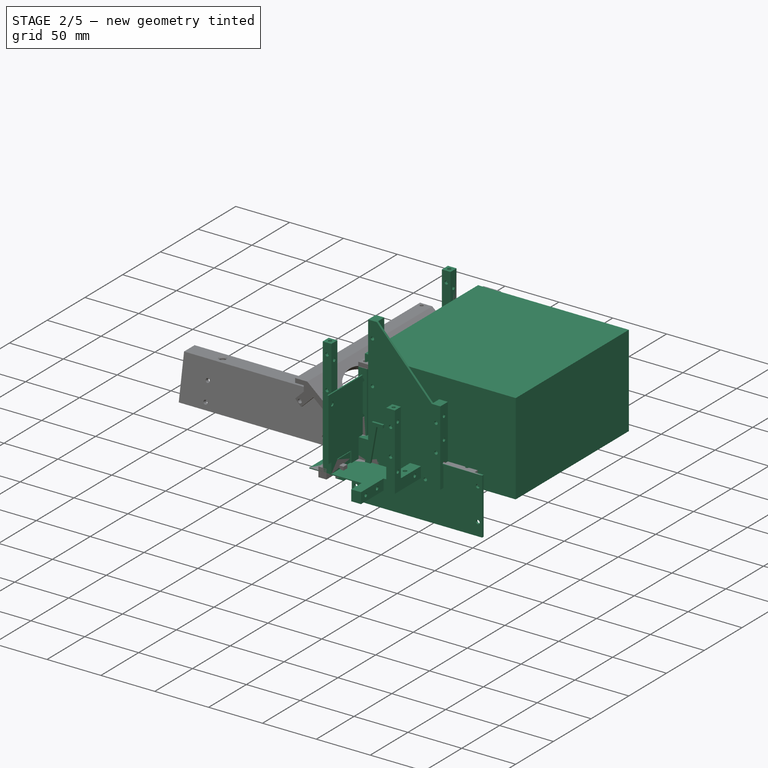
[diagram: stage 2 of 5 — iso view after this stage's code; geometry added in this stage tinted green]
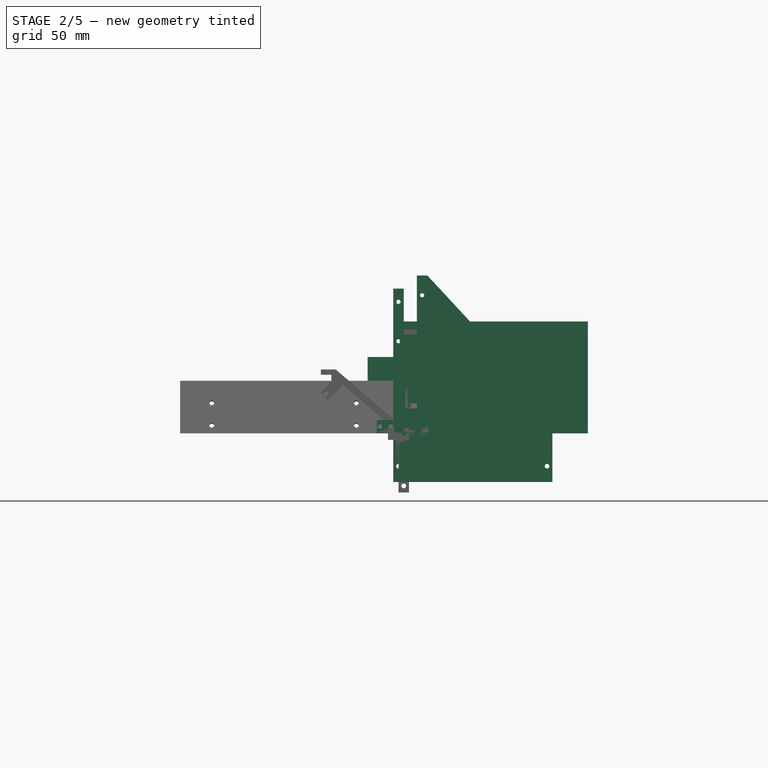
[diagram: stage 2 of 5 — front view after this stage's code; geometry added in this stage tinted green]
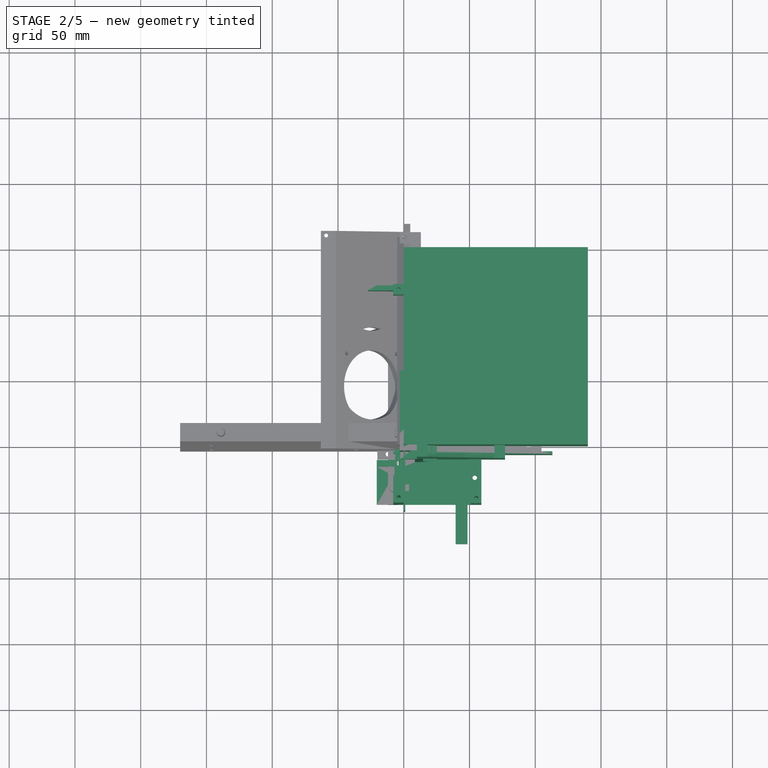
[diagram: stage 2 of 5 — top view after this stage's code; geometry added in this stage tinted green]
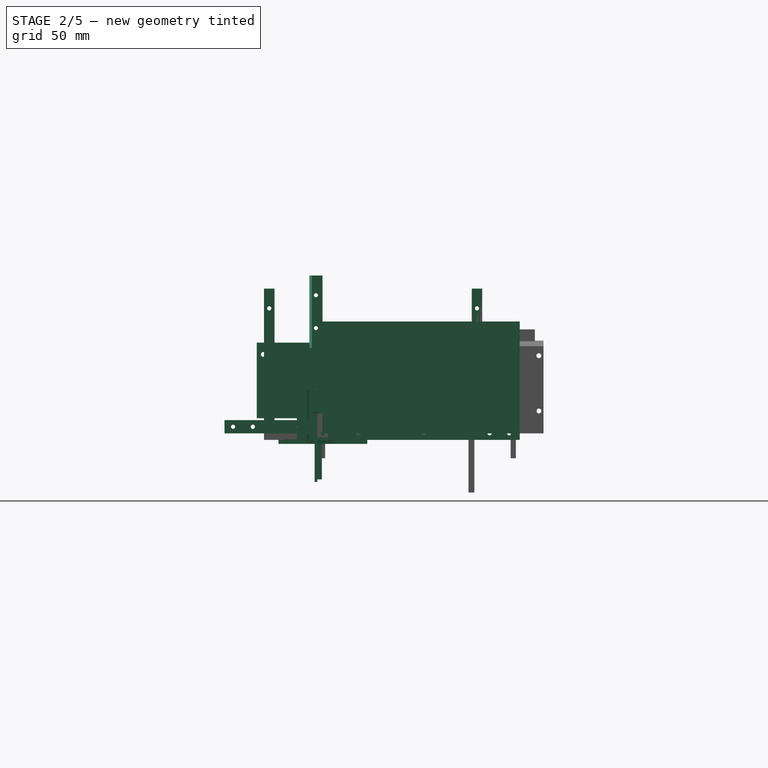
[diagram: stage 2 of 5 — right view after this stage's code; geometry added in this stage tinted green]
FEATURE [PartDesign::Body] Body003006039  label="35hd"
  Group = -> [Sketch245,Pad124,Sketch246,Pad125,Sketch247,Pad126,Sketch248,Pocket111,Sketch249,Sketch250,Pocket112,Sketch251,Sketch252,Pocket113,Sketch253,Pad127,Sketch254,Pocket114]
  Origin = -> Origin047
  Placement = pos=(-68,-193,5) rot=(0,0,1;0rad)
  Tip = -> Pocket114
FEATURE [Sketcher::SketchObject] Sketch255
  FullyConstrained = false
  MapMode = 5
  Placement = pos=(0,0,0) rot=(1,0,0;1.5708rad)
  Support = -> [XZ_Plane048]
  sketch-geometry (25):
    g0: LineSegment StartX=-2.6 StartY=5 StartZ=0 EndX=-2.6 EndY=-5 EndZ=0
    g1: LineSegment StartX=-2.6 StartY=-5 StartZ=0 EndX=0 EndY=-5 EndZ=0
    g2: LineSegment StartX=0 StartY=-5 StartZ=0 EndX=77 EndY=-5 EndZ=0
    g3: LineSegment StartX=77 StartY=-5 StartZ=0 EndX=77 EndY=5 EndZ=0
    g4: LineSegment StartX=-2.6 StartY=5 StartZ=0 EndX=-2.6 EndY=19 EndZ=0
    g5: LineSegment StartX=-2.6 StartY=19 StartZ=0 EndX=10 EndY=19 EndZ=0
    g6: Circle CenterX=0 CenterY=0 CenterZ=0 NormalX=0 NormalY=0 NormalZ=1 AngleXU=0 Radius=1.85
    g7: Circle CenterX=8 CenterY=0 CenterZ=0 NormalX=0 NormalY=0 NormalZ=1 AngleXU=0 Radius=1.85
    g8: LineSegment StartX=18 StartY=5 StartZ=0 EndX=69 EndY=5 EndZ=0
    g9: LineSegment StartX=69 StartY=5 StartZ=0 EndX=69 EndY=65 EndZ=0
    g10: LineSegment StartX=69 StartY=65 StartZ=0 EndX=77 EndY=65 EndZ=0
    g11: LineSegment StartX=77 StartY=65 StartZ=0 EndX=77 EndY=5 EndZ=0
    g12: Circle CenterX=18 CenterY=0 CenterZ=0 NormalX=0 NormalY=0 NormalZ=1 AngleXU=0 Radius=1.55
    g13: Circle CenterX=73 CenterY=0 CenterZ=0 NormalX=0 NormalY=0 NormalZ=1 AngleXU=0 Radius=1.55
    g14: Circle CenterX=73 CenterY=25 CenterZ=0 NormalX=0 NormalY=0 NormalZ=1 AngleXU=0 Radius=1.55
    g15: Circle CenterX=73 CenterY=50 CenterZ=0 NormalX=0 NormalY=0 NormalZ=1 AngleXU=0 Radius=1.55
    g16: Circle CenterX=73 CenterY=75 CenterZ=0 NormalX=0 NormalY=0 NormalZ=1 AngleXU=0 Radius=1.55
    g17: LineSegment StartX=73 StartY=75 StartZ=0 EndX=73 EndY=0 EndZ=0
    g18: LineSegment StartX=10 StartY=19 StartZ=0 EndX=10 EndY=120 EndZ=0
    g19: LineSegment StartX=10 StartY=120 StartZ=0 EndX=18 EndY=120 EndZ=0
    g20: LineSegment StartX=18 StartY=120 StartZ=0 EndX=18 EndY=5 EndZ=0
    g21: Circle CenterX=14 CenterY=25 CenterZ=0 NormalX=0 NormalY=0 NormalZ=1 AngleXU=0 Radius=1.55
    g22: Circle CenterX=14 CenterY=65 CenterZ=0 NormalX=0 NormalY=0 NormalZ=1 AngleXU=0 Radius=1.55
    g23: Circle CenterX=14 CenterY=105 CenterZ=0 NormalX=0 NormalY=0 NormalZ=1 AngleXU=0 Radius=1.55
    g24: Circle CenterX=63 CenterY=0 CenterZ=0 NormalX=0 NormalY=0 NormalZ=1 AngleXU=0 Radius=1.55
  constraints (66):
    c: Coincident(g0,g1)
    c: PointOnObject(g1,g-2)
    c: Horizontal(g1)
    c: Coincident(g1,g2)
    c: Horizontal(g2)
    c: Coincident(g2,g3)
    c: Vertical(g3)
    c: DistanceY(g0,g0) = 10
    c: Symmetric(g0,g0,g-1)
    c: DistanceX(g1,g1) = 2.6
    c: Coincident(g0,g4)
    c: Vertical(g4)
    c: Coincident(g4,g5)
    c: Horizontal(g5)
    c: DistanceX(g5,g5) = 12.6
    c: DistanceX(g2,g2) = 77
    c: Equal(g0,g3)
    c: Coincident(g6,g-1)
    c: PointOnObject(g7,g-1)
    c: DistanceX(g7) = 8
    c: Diameter(g7) = 3.7
    c: Equal(g7,g6)
    c: Horizontal(g8,g0)
    c: Horizontal(g8)
    c: Coincident(g8,g9)
    c: Vertical(g9)
    c: Coincident(g9,g10)
    c: Horizontal(g10)
    c: Coincident(g10,g11)
    c: Coincident(g11,g3)
    c: Vertical(g11)
    c: DistanceX(g10,g10) = 8
    c: DistanceY(g2,g10) = 70
    c: PointOnObject(g12,g-1)
    c: DistanceX(g7,g12) = 10
    c: Coincident(g17,g16)
    c: Coincident(g17,g13)
    c: Vertical(g17)
    c: Diameter(g12) = 3.1
    c: Equal(g12, g13-g16) x4
    c: Symmetric(g16,g14,g15)
    c: Symmetric(g13,g15,g14)
    c: DistanceY(g13,g14) = 25
    c: DistanceY(g3,g13) = -5
    c: DistanceX(g16,g10) = 4
    c: DistanceY(g4,g4) = 14
    c: Coincident(g5,g18)
    c: Vertical(g18)
    c: Coincident(g18,g19)
    c: Coincident(g19,g20)
    c: Coincident(g20,g8)
    c: Vertical(g20)
    c: Horizontal(g19)
    c: DistanceX(g19,g19) = 8
    c: DistanceY(g20,g20) = 115
    c: Symmetric(g23,g21,g22)
    c: Vertical(g22,g23)
    c: DistanceY(g23,g19) = 15
    c: DistanceY(g22,g23) = 40
    c: Diameter(g21) = 3.1
    c: Equal(g21,g22)
    c: Equal(g21,g23)
    c: DistanceX(g23,g19) = 4
    c: PointOnObject(g24,g-1)
    c: Equal(g24,g14)
    c: DistanceX(g24,g13) = 10
FEATURE [PartDesign::Pad] Pad128  label="samping"
  AllowMultiFace = false
  Direction = (1,1,1)
  Length = 10
  Length2 = 100
  Placement = pos=(0,0,0) rot=(1,0,0;1.5708rad)
  Profile = -> Sketch255
  Type = 0
FEATURE [Sketcher::SketchObject] Sketch256
  FullyConstrained = false
  MapMode = 5
  Support = -> [XY_Plane048]
  sketch-geometry (4):
    g0: LineSegment StartX=77 StartY=0 StartZ=0 EndX=67 EndY=0 EndZ=0
    g1: LineSegment StartX=67 StartY=0 StartZ=0 EndX=67 EndY=150 EndZ=0
    g2: LineSegment StartX=67 StartY=150 StartZ=0 EndX=77 EndY=150 EndZ=0
    g3: LineSegment StartX=77 StartY=150 StartZ=0 EndX=77 EndY=0 EndZ=0
  constraints (12):
    c: Coincident(g0,g1)
    c: Coincident(g1,g2)
    c: Coincident(g2,g3)
    c: Coincident(g3,g0)
    c: Horizontal(g0)
    c: Horizontal(g2)
    c: Vertical(g1)
    c: Vertical(g3)
    c: PointOnObject(g0,g-1)
    c: DistanceY(g1,g1) = 150
    c: DistanceX(g2,g2) = 10
    c: DistanceX(g0) = 77
FEATURE [PartDesign::Pad] Pad129  label="blkg"
  AllowMultiFace = false
  BaseFeature = -> Pad128
  Direction = (1,1,1)
  Length = 10
  Length2 = 100
  Midplane = true
  Placement = pos=(0,0,0) rot=(1,0,0;1.5708rad)
  Profile = -> Sketch256
  Type = 0
FEATURE [Sketcher::SketchObject] Sketch257
  AttachmentOffset = pos=(0,0,5.4) rot=(0,0,1;0rad)
  FullyConstrained = false
  MapMode = 5
  Placement = pos=(0,0,5.4) rot=(0,0,1;0rad)
  Support = -> [XY_Plane048]
  sketch-geometry (7):
    g0: LineSegment StartX=18 StartY=0 StartZ=0 EndX=12.2265 EndY=10 EndZ=0
    g1: LineSegment StartX=12.2265 StartY=10 StartZ=0 EndX=-13 EndY=10 EndZ=0
    g2: LineSegment StartX=-13 StartY=10 StartZ=0 EndX=-13 EndY=0.4 EndZ=0
    g3: LineSegment StartX=-13 StartY=0.4 StartZ=0 EndX=-2.6 EndY=0.4 EndZ=0
    g4: LineSegment StartX=-2.6 StartY=0.4 StartZ=0 EndX=-2.6 EndY=0 EndZ=0
    g5: LineSegment StartX=-2.6 StartY=0 StartZ=0 EndX=18 EndY=0 EndZ=0
    g6: Circle CenterX=-8 CenterY=5 CenterZ=0 NormalX=0 NormalY=0 NormalZ=1 AngleXU=0 Radius=1.55
  constraints (21):
    c: PointOnObject(g0,g-1)
    c: Coincident(g0,g1)
    c: Horizontal(g1)
    c: Coincident(g1,g2)
    c: Vertical(g2)
    c: Coincident(g2,g3)
    c: Horizontal(g3)
    c: Coincident(g3,g4)
    c: PointOnObject(g4,g-1)
    c: Vertical(g4)
    c: Coincident(g4,g5)
    c: Coincident(g5,g0)
    c: DistanceX(g0) = 18
    c: DistanceX(g4,g-1) = 2.6
    c: DistanceY(g2,g2) = 9.6
    c: DistanceY(g0) = 10
    c: DistanceX(g2) = -13
    c: Diameter(g6) = 3.1
    c: DistanceX(g6) = -8
    c: DistanceY(g6) = 5
    c: Angle(g0,g5) = 1.0472
FEATURE [PartDesign::Pad] Pad130
  AllowMultiFace = false
  BaseFeature = -> Pad129
  Direction = (1,1,1)
  Length = 5.6
  Length2 = 100
  Placement = pos=(0,0,0) rot=(1,0,0;1.5708rad)
  Profile = -> Sketch257
  Type = 0
FEATURE [Sketcher::SketchObject] Sketch258
  FullyConstrained = false
  MapMode = 5
  Placement = pos=(0,0,0) rot=(0.57735,0.57735,0.57735;2.0944rad)
  Support = -> [YZ_Plane048]
  sketch-geometry (9):
    g0: Circle CenterX=-5 CenterY=15 CenterZ=0 NormalX=0 NormalY=0 NormalZ=1 AngleXU=0 Radius=1.9
    g1: Circle CenterX=-5 CenterY=35 CenterZ=0 NormalX=0 NormalY=0 NormalZ=1 AngleXU=0 Radius=1.55
    g2: Circle CenterX=-5 CenterY=55 CenterZ=0 NormalX=0 NormalY=0 NormalZ=1 AngleXU=0 Radius=1.55
    g3: Circle CenterX=142 CenterY=0 CenterZ=0 NormalX=0 NormalY=0 NormalZ=1 AngleXU=0 Radius=1.6
    g4: Circle CenterX=127 CenterY=0 CenterZ=0 NormalX=0 NormalY=0 NormalZ=1 AngleXU=0 Radius=1.6
    g5: Circle CenterX=77 CenterY=0 CenterZ=0 NormalX=0 NormalY=0 NormalZ=1 AngleXU=0 Radius=1.6
    g6: Circle CenterX=27 CenterY=0 CenterZ=0 NormalX=0 NormalY=0 NormalZ=1 AngleXU=0 Radius=1.6
    g7: Circle CenterX=-5 CenterY=80 CenterZ=0 NormalX=0 NormalY=0 NormalZ=1 AngleXU=0 Radius=1.55
    g8: Circle CenterX=-5 CenterY=105 CenterZ=0 NormalX=0 NormalY=0 NormalZ=1 AngleXU=0 Radius=1.55
  constraints (27):
    c: Vertical(g0,g1)
    c: DistanceX(g0) = -5
    c: DistanceY(g0) = 15
    c: DistanceY(g0,g1) = 20
    c: Diameter(g0) = 3.8
    c: Diameter(g1) = 3.1
    c: DistanceY(g1,g2) = 20
    c: Vertical(g2,g1)
    c: Equal(g2,g1)
    c: PointOnObject(g3,g-1)
    c: PointOnObject(g4,g-1)
    c: PointOnObject(g5,g-1)
    c: PointOnObject(g6,g-1)
    c: DistanceX(g-1,g6) = 27
    c: DistanceX(g6,g5) = 50
    c: Diameter(g3) = 3.2
    c: Equal(g3,g4)
    c: Equal(g3,g5)
    c: Equal(g3,g6)
    c: DistanceX(g5,g4) = 50
    c: DistanceX(g4,g3) = 15
    c: Vertical(g7,g8)
    c: Vertical(g7,g2)
    c: Equal(g2,g7)
    c: Equal(g7,g8)
    c: DistanceY(g7,g8) = 25
    c: DistanceY(g2,g7) = 25
FEATURE [PartDesign::Pocket] Pocket115  label="lubangblkg001"
  AllowMultiFace = false
  BaseFeature = -> Pad130
  Length = 5
  Length2 = 100
  Midplane = true
  Placement = pos=(0,0,0) rot=(1,0,0;1.5708rad)
  Profile = -> Sketch258
  Type = 1
FEATURE [Sketcher::SketchObject] Sketch259
  FullyConstrained = false
  MapMode = 5
  Support = -> [XY_Plane048]
  sketch-geometry (7):
    g0: Circle CenterX=72 CenterY=119 CenterZ=0 NormalX=0 NormalY=0 NormalZ=1 AngleXU=0 Radius=1.75
    g1: LineSegment StartX=72 StartY=119 StartZ=0 EndX=72 EndY=5 EndZ=0
    g2: Circle CenterX=72 CenterY=5 CenterZ=0 NormalX=0 NormalY=0 NormalZ=1 AngleXU=0 Radius=1.75
    g3: Circle CenterX=72 CenterY=43 CenterZ=0 NormalX=0 NormalY=0 NormalZ=1 AngleXU=0 Radius=1.75
    g4: Circle CenterX=72 CenterY=81 CenterZ=0 NormalX=0 NormalY=0 NormalZ=1 AngleXU=0 Radius=1.75
    g5: Circle CenterX=42 CenterY=-5 CenterZ=0 NormalX=0 NormalY=0 NormalZ=1 AngleXU=0 Radius=1.75
    g6: Circle CenterX=72 CenterY=-5 CenterZ=0 NormalX=0 NormalY=0 NormalZ=1 AngleXU=0 Radius=1.55
  constraints (15):
    c: Coincident(g1,g0)
    c: Vertical(g1)
    c: Coincident(g2,g1)
    c: Symmetric(g4,g2,g3)
    c: Symmetric(g3,g0,g4)
    c: Diameter(g0) = 3.5
    c: Equal(g0, g2-g5) x4
    c: DistanceX(g5,g2) = 30
    c: DistanceY(g5,g2) = 10
    c: DistanceY(g4,g0) = 38
    c: DistanceY(g5) = -5
    c: DistanceX(g5) = 42
    c: Vertical(g6,g2)
    c: Horizontal(g6,g5)
    c: Diameter(g6) = 3.1
FEATURE [PartDesign::Pocket] Pocket116  label="lubangatas006"
  AllowMultiFace = false
  BaseFeature = -> Pocket115
  Length = 10
  Length2 = 100
  Midplane = true
  Placement = pos=(0,0,0) rot=(1,0,0;1.5708rad)
  Profile = -> Sketch259
  Type = 0
FEATURE [Sketcher::SketchObject] Sketch260
  AttachmentOffset = pos=(0,0,10) rot=(0,0,1;0rad)
  FullyConstrained = false
  MapMode = 5
  Placement = pos=(0,-10,-2.2e-15) rot=(1,0,0;1.5708rad)
  Support = -> [XZ_Plane048]
  sketch-geometry (4):
    g0: LineSegment StartX=18 StartY=5 StartZ=0 EndX=69 EndY=5 EndZ=0
    g1: LineSegment StartX=69 StartY=5 StartZ=0 EndX=69 EndY=65 EndZ=0
    g2: LineSegment StartX=69 StartY=65 StartZ=0 EndX=18 EndY=120 EndZ=0
    g3: LineSegment StartX=18 StartY=120 StartZ=0 EndX=18 EndY=5 EndZ=0
  constraints (12):
    c: Horizontal(g0)
    c: Coincident(g0,g1)
    c: Vertical(g1)
    c: Coincident(g1,g2)
    c: Coincident(g2,g3)
    c: Coincident(g3,g0)
    c: Vertical(g3)
    c: DistanceX(g0) = 18
    c: DistanceY(g0) = 5
    c: DistanceX(g0,g0) = 51
    c: DistanceY(g3,g3) = 115
    c: DistanceY(g1,g1) = 60
FEATURE [PartDesign::Pad] Pad131  label="coversamping"
  AllowMultiFace = false
  BaseFeature = -> Pocket116
  Direction = (1,1,1)
  Length = 2
  Length2 = 100
  Placement = pos=(0,0,0) rot=(1,0,0;1.5708rad)
  Profile = -> Sketch260
  Reversed = true
  Type = 0
FEATURE [Sketcher::SketchObject] Sketch261
  AttachmentOffset = pos=(0,0,-5) rot=(0,0,1;0rad)
  FullyConstrained = false
  MapMode = 5
  Placement = pos=(0,0,-5) rot=(0,0,1;0rad)
  Support = -> [XY_Plane048]
  sketch-geometry (8):
    g0: LineSegment StartX=67 StartY=0 StartZ=0 EndX=11.3 EndY=0 EndZ=0
    g1: LineSegment StartX=11.3 StartY=10.3 StartZ=0 EndX=-2.7 EndY=10.3 EndZ=0
    g2: LineSegment StartX=-2.7 StartY=10.3 StartZ=0 EndX=-2.7 EndY=150 EndZ=0
    g3: LineSegment StartX=-2.7 StartY=150 StartZ=0 EndX=57 EndY=150 EndZ=0
    g4: LineSegment StartX=57 StartY=150 StartZ=0 EndX=57 EndY=120 EndZ=0
    g5: LineSegment StartX=57 StartY=120 StartZ=0 EndX=67 EndY=120 EndZ=0
    g6: LineSegment StartX=67 StartY=120 StartZ=0 EndX=67 EndY=0 EndZ=0
    g7: LineSegment StartX=11.3 StartY=10.3 StartZ=0 EndX=11.3 EndY=0 EndZ=0
  constraints (24):
    c: PointOnObject(g0,g-1)
    c: PointOnObject(g0,g-1)
    c: Horizontal(g1)
    c: Coincident(g1,g2)
    c: Vertical(g2)
    c: Coincident(g2,g3)
    c: Horizontal(g3)
    c: Coincident(g3,g4)
    c: Vertical(g4)
    c: Coincident(g4,g5)
    c: Horizontal(g5)
    c: Coincident(g5,g6)
    c: Coincident(g6,g0)
    c: Vertical(g6)
    c: DistanceX(g0) = 67
    c: DistanceY(g6,g6) = 120
    c: DistanceX(g5,g5) = 10
    c: DistanceY(g4,g4) = 30
    c: DistanceX(g0,g0) = 55.7
    c: DistanceY(g2,g2) = 139.7
    c: Vertical(g7)
    c: Coincident(g7,g1)
    c: DistanceX(g1,g1) = 14
    c: Coincident(g7,g0)
FEATURE [PartDesign::Pad] Pad132  label="coverbawah"
  AllowMultiFace = false
  BaseFeature = -> Pad131
  Direction = (1,1,1)
  Length = 2
  Length2 = 100
  Placement = pos=(0,0,0) rot=(1,0,0;1.5708rad)
  Profile = -> Sketch261
  Type = 0
FEATURE [PartDesign::Body] Body003006040  label="coverblkg-a"
  Group = -> [Sketch255,Pad128,Sketch256,Pad129,Sketch257,Pad130,Sketch258,Pocket115,Sketch259,Pocket116,Sketch260,Pad131,Sketch261,Pad132,Sketch262,Pad133,Sketch263,Pocket117,Sketch264,Pocket118]
  Origin = -> Origin048
  Placement = pos=(-98,12,5) rot=(0,0,1;3.14159rad)
  Tip = -> Pocket118
FEATURE [Sketcher::SketchObject] Sketch265
  FullyConstrained = false
  MapMode = 5
  Placement = pos=(0,0,0) rot=(0.57735,0.57735,0.57735;2.0944rad)
  Support = -> [YZ_Plane049]
  sketch-geometry (10):
    g0: LineSegment StartX=-50 StartY=69 StartZ=0 EndX=-50 EndY=11.5 EndZ=0
    g1: LineSegment StartX=-50 StartY=11.5 StartZ=0 EndX=-19.5 EndY=11.5 EndZ=0
    g2: LineSegment StartX=-19.5 StartY=11.5 StartZ=0 EndX=-19.5 EndY=-5 EndZ=0
    g3: LineSegment StartX=-19.5 StartY=-5 StartZ=0 EndX=3 EndY=-5 EndZ=0
    g4: LineSegment StartX=3 StartY=-5 StartZ=0 EndX=3 EndY=69 EndZ=0
    g5: LineSegment StartX=3 StartY=69 StartZ=0 EndX=-50 EndY=69 EndZ=0
    g6: Circle CenterX=0 CenterY=0 CenterZ=0 NormalX=0 NormalY=0 NormalZ=1 AngleXU=0 Radius=1.85
    g7: Circle CenterX=-45 CenterY=20 CenterZ=0 NormalX=0 NormalY=0 NormalZ=1 AngleXU=0 Radius=1.85
    g8: Circle CenterX=-45 CenterY=60 CenterZ=0 NormalX=0 NormalY=0 NormalZ=1 AngleXU=0 Radius=1.85
    g9: Circle CenterX=-45 CenterY=40 CenterZ=0 NormalX=0 NormalY=0 NormalZ=1 AngleXU=0 Radius=1.85
  constraints (29):
    c: Vertical(g0)
    c: Coincident(g0,g1)
    c: Horizontal(g1)
    c: Coincident(g1,g2)
    c: Vertical(g2)
    c: Coincident(g2,g3)
    c: Horizontal(g3)
    c: Coincident(g3,g4)
    c: Vertical(g4)
    c: Coincident(g4,g5)
    c: Horizontal(g5)
    c: Coincident(g0,g5)
    c: DistanceX(g3) = 3
    c: DistanceY(g3) = -5
    c: DistanceX(g3,g3) = 22.5
    c: DistanceY(g2,g2) = 16.5
    c: DistanceY(g4,g4) = 74
    c: DistanceX(g5,g5) = 53
    c: Coincident(g6,g-1)
    c: DistanceX(g7) = -45
    c: DistanceY(g7) = 20
    c: Vertical(g7,g9)
    c: Vertical(g9,g8)
    c: Diameter(g6) = 3.7
    c: Equal(g6,g7)
    c: Equal(g6,g8)
    c: Equal(g6,g9)
    c: DistanceY(g7,g9) = 20
    c: DistanceY(g9,g8) = 20
FEATURE [PartDesign::Pad] Pad134
  AllowMultiFace = false
  Direction = (1,1,1)
  Length = 1.2
  Length2 = 100
  Placement = pos=(0,0,0) rot=(0.57735,0.57735,0.57735;2.0944rad)
  Profile = -> Sketch265
  Type = 0
FEATURE [PartDesign::Body] Body003006041  label="coverdepand"
  Group = -> [Sketch265,Pad134]
  Origin = -> Origin049
  Placement = pos=(185,-143,5) rot=(0,0,1;0rad)
  Tip = -> Pad134
FEATURE [Sketcher::SketchObject] Sketch266
  FullyConstrained = false
  MapMode = 5
  Support = -> [XY_Plane050]
  sketch-geometry (31):
    g0: LineSegment StartX=-20.5 StartY=0 StartZ=0 EndX=-20.5 EndY=9.5 EndZ=0
    g1: LineSegment StartX=-20.5 StartY=9.5 StartZ=0 EndX=49 EndY=9.5 EndZ=0
    g2: LineSegment StartX=4.5 StartY=121.5 StartZ=0 EndX=59 EndY=121.5 EndZ=0
    g3: LineSegment StartX=59 StartY=-44.5 StartZ=0 EndX=48.5 EndY=-44.5 EndZ=0
    g4: LineSegment StartX=49 StartY=0 StartZ=0 EndX=49 EndY=-29.5 EndZ=0
    g5: LineSegment StartX=49 StartY=-29.5 StartZ=0 EndX=39.5 EndY=-39 EndZ=0
    g6: LineSegment StartX=39.5 StartY=-39 StartZ=0 EndX=39.5 EndY=-74.5 EndZ=0
    g7: LineSegment StartX=39.5 StartY=-74.5 StartZ=0 EndX=48.5 EndY=-74.5 EndZ=0
    g8: LineSegment StartX=48.5 StartY=-74.5 StartZ=0 EndX=48.5 EndY=-44.5 EndZ=0
    g9: GeomPoint X=59 Y=0 Z=0
    g10: LineSegment StartX=59 StartY=-44.5 StartZ=0 EndX=59 EndY=0 EndZ=0
    g11: LineSegment StartX=59 StartY=0 StartZ=0 EndX=59 EndY=121.5 EndZ=0
    g12: LineSegment StartX=4.5 StartY=113.5 StartZ=0 EndX=49 EndY=113.5 EndZ=0
    g13: LineSegment StartX=49 StartY=113.5 StartZ=0 EndX=49 EndY=9.5 EndZ=0
    g14: LineSegment StartX=-20.5 StartY=0 StartZ=0 EndX=-6.5 EndY=0 EndZ=0
    g15: LineSegment StartX=-6.5 StartY=0 StartZ=0 EndX=-6.5 EndY=-10.5 EndZ=0
    g16: LineSegment StartX=-6.5 StartY=-10.5 StartZ=0 EndX=-20.5 EndY=-10.5 EndZ=0
    g17: LineSegment StartX=0 StartY=0 StartZ=0 EndX=49 EndY=0 EndZ=0
    g18: LineSegment StartX=0 StartY=0 StartZ=0 EndX=0 EndY=-15.5 EndZ=0
    g19: LineSegment StartX=-20.5 StartY=-10.5 StartZ=0 EndX=-20.5 EndY=-15.5 EndZ=0
    g20: LineSegment StartX=-20.5 StartY=-15.5 StartZ=0 EndX=-7 EndY=-15.5 EndZ=0
    g21: LineSegment StartX=-8 StartY=-44.5 StartZ=0 EndX=0 EndY=-44.5 EndZ=0
    g22: LineSegment StartX=0 StartY=-15.5 StartZ=0 EndX=0 EndY=-44.5 EndZ=0
    g23: LineSegment StartX=-8 StartY=-44.5 StartZ=0 EndX=-8 EndY=-214.5 EndZ=0
    g24: LineSegment StartX=-8 StartY=-44.5 StartZ=0 EndX=-8 EndY=-22.5 EndZ=0
    g25: LineSegment StartX=-8 StartY=-22.5 StartZ=0 EndX=-7 EndY=-21.5 EndZ=0
    g26: LineSegment StartX=-7 StartY=-21.5 StartZ=0 EndX=-7 EndY=-15.5 EndZ=0
    g27: LineSegment StartX=4.5 StartY=113.5 StartZ=0 EndX=4.5 EndY=117.5 EndZ=0
    g28: LineSegment StartX=4.5 StartY=117.5 StartZ=0 EndX=-27.4282 EndY=117.5 EndZ=0
    g29: LineSegment StartX=-27.4282 StartY=117.5 StartZ=0 EndX=-20.5 EndY=121.5 EndZ=0
    g30: LineSegment StartX=-20.5 StartY=121.5 StartZ=0 EndX=4.5 EndY=121.5 EndZ=0
  constraints (90):
    c: PointOnObject(g0,g-1)
    c: Vertical(g0)
    c: Coincident(g0,g1)
    c: Horizontal(g1)
    c: Horizontal(g2)
    c: Horizontal(g3)
    c: PointOnObject(g4,g-1)
    c: DistanceX(g0,g-1) = 20.5
    c: DistanceX(g4) = 49
    c: Vertical(g4)
    c: Coincident(g4,g5)
    c: Coincident(g5,g6)
    c: Vertical(g6)
    c: Coincident(g6,g7)
    c: Horizontal(g7)
    c: Coincident(g7,g8)
    c: Coincident(g8,g3)
    c: Vertical(g8)
    c: DistanceY(g3,g4) = 15
    c: DistanceY(g4,g4) = 29.5
    c: Angle(g6,g5) = 2.35619
    c: DistanceX(g3,g3) = 10.5
    c: DistanceX(g4,g9) = 10
    c: Horizontal(g9,g4)
    c: Coincident(g10,g3)
    c: Vertical(g10)
    c: Coincident(g11,g9)
    c: Coincident(g11,g2)
    c: Vertical(g11)
    c: Coincident(g10,g9)
    c: DistanceX(g2,g2) = 54.5
    c: DistanceY(g0,g0) = 9.5
    c: DistanceX(g7,g7) = 9
    c: DistanceY(g8,g8) = 30
    c: Horizontal(g12)
    c: Coincident(g12,g13)
    c: Vertical(g13)
    c: Coincident(g1,g13)
    c: Vertical(g4,g1)
    c: Coincident(g0,g14)
    c: PointOnObject(g14,g-1)
    c: Coincident(g14,g15)
    c: Vertical(g15)
    c: Coincident(g15,g16)
    c: Horizontal(g16)
    c: Coincident(g17,g4)
    c: DistanceY(g15,g15) = 10.5
    c: DistanceX(g16,g16) = 14
    c: DistanceX(g14,g-1) = 6.5
    c: Coincident(g18,g17)
    c: Vertical(g18)
    c: DistanceY(g18,g18) = 15.5
    c: Coincident(g16,g19)
    c: Vertical(g19)
    c: Coincident(g19,g20)
    c: Horizontal(g20)
    c: Horizontal(g21)
    c: Coincident(g22,g18)
    c: Coincident(g22,g21)
    c: Vertical(g22)
    c: Horizontal(g20,g18)
    c: Vertical(g23)
    c: DistanceY(g23,g23) = 170
    c: Coincident(g17,g-1)
    c: DistanceY(g22,g22) = 29
    c: Coincident(g21,g24)
    c: Vertical(g24)
    c: Coincident(g24,g25)
    c: Coincident(g25,g26)
    c: Vertical(g26)
    c: Coincident(g20,g26)
    c: Angle(g24,g25) = 2.35619
    c: DistanceX(g20,g20) = 13.5
    c: DistanceX(g21,g21) = 8
    c: DistanceY(g26,g26) = 6
    c: Coincident(g23,g21)
    c: Coincident(g12,g27)
    c: Vertical(g27)
    c: Coincident(g27,g28)
    c: Horizontal(g28)
    c: Coincident(g28,g29)
    c: Coincident(g29,g30)
    c: Coincident(g30,g2)
    c: Horizontal(g30)
    c: DistanceX(g30,g30) = 25
    c: DistanceY(g29,g29) = 4
    c: Vertical(g27,g2)
    c: Angle(g28,g29) = 0.523599
    c: DistanceY(g27) = 117.5
    c: DistanceY(g12,g2) = 8
FEATURE [PartDesign::Pad] Pad135  label="base"
  AllowMultiFace = false
  Direction = (1,1,1)
  Length = 10
  Length2 = 100
  Profile = -> Sketch266
  Type = 0
FEATURE [Sketcher::SketchObject] Sketch267
  AttachmentOffset = pos=(0,0,10) rot=(0,0,1;0rad)
  FullyConstrained = false
  MapMode = 5
  Placement = pos=(0,0,10) rot=(0,0,1;0rad)
  Support = -> [XY_Plane050]
  sketch-geometry (7):
    g0: LineSegment StartX=-8 StartY=-44.5 StartZ=0 EndX=0 EndY=-44.5 EndZ=0
    g1: LineSegment StartX=0 StartY=-44.5 StartZ=0 EndX=0 EndY=-36.5 EndZ=0
    g2: LineSegment StartX=0 StartY=-36.5 StartZ=0 EndX=-8 EndY=-36.5 EndZ=0
    g3: LineSegment StartX=-8 StartY=-36.5 StartZ=0 EndX=-8 EndY=-44.5 EndZ=0
    g4: Circle CenterX=-4 CenterY=-40.5 CenterZ=0 NormalX=0 NormalY=0 NormalZ=1 AngleXU=0 Radius=1.55
    g5: LineSegment StartX=-8 StartY=-36.5 StartZ=0 EndX=0 EndY=-44.5 EndZ=0
    g6: LineSegment StartX=0 StartY=-36.5 StartZ=0 EndX=-4 EndY=-40.5 EndZ=0
  constraints (19):
    c: Coincident(g0,g1)
    c: Coincident(g1,g2)
    c: Coincident(g2,g3)
    c: Coincident(g3,g0)
    c: Horizontal(g0)
    c: Horizontal(g2)
    c: Vertical(g1)
    c: Vertical(g3)
    c: DistanceY(g3,g3) = 8
    c: DistanceY(g1) = -36.5
    c: PointOnObject(g1,g-2)
    c: DistanceX(g0,g0) = 8
    c: Coincident(g5,g2)
    c: Coincident(g5,g0)
    c: Coincident(g6,g1)
    c: Coincident(g6,g4)
    c: PointOnObject(g4,g5)
    c: Perpendicular(g5,g6)
    c: Diameter(g4) = 3.1
FEATURE [PartDesign::Pad] Pad136  label="tiangmid"
  AllowMultiFace = false
  BaseFeature = -> Pad135
  Direction = (1,1,1)
  Length = 100
  Length2 = 100
  Profile = -> Sketch267
  Type = 0
FEATURE [Sketcher::SketchObject] Sketch268
  AttachmentOffset = pos=(0,0,10) rot=(0,0,1;0rad)
  FullyConstrained = false
  MapMode = 5
  Placement = pos=(0,0,10) rot=(0,0,1;0rad)
  Support = -> [XY_Plane050]
  sketch-geometry (5):
    g0: LineSegment StartX=51 StartY=-44.5 StartZ=0 EndX=59 EndY=-44.5 EndZ=0
    g1: LineSegment StartX=59 StartY=-44.5 StartZ=0 EndX=59 EndY=-36.5 EndZ=0
    g2: LineSegment StartX=59 StartY=-36.5 StartZ=0 EndX=51 EndY=-36.5 EndZ=0
    g3: LineSegment StartX=51 StartY=-36.5 StartZ=0 EndX=51 EndY=-44.5 EndZ=0
    g4: Circle CenterX=55 CenterY=-40.5 CenterZ=0 NormalX=0 NormalY=0 NormalZ=1 AngleXU=0 Radius=1.55
  constraints (15):
    c: Coincident(g0,g1)
    c: Coincident(g1,g2)
    c: Coincident(g2,g3)
    c: Coincident(g3,g0)
    c: Horizontal(g0)
    c: Horizontal(g2)
    c: Vertical(g1)
    c: Vertical(g3)
    c: Equal(g3,g0)
    c: DistanceX(g2,g2) = 8
    c: DistanceY(g0,g4) = 4
    c: DistanceX(g0,g4) = 4
    c: DistanceY(g1) = -36.5
    c: Diameter(g4) = 3.1
    c: DistanceX(g2) = 51
FEATURE [PartDesign::Pad] Pad137  label="tiangmidback"
  AllowMultiFace = false
  BaseFeature = -> Pad136
  Direction = (1,1,1)
  Length = 60
  Length2 = 100
  Profile = -> Sketch268
  Type = 0
FEATURE [Sketcher::SketchObject] Sketch269
  FullyConstrained = false
  MapMode = 5
  Placement = pos=(0,0,0) rot=(0.57735,0.57735,0.57735;2.0944rad)
  Support = -> [YZ_Plane050]
  sketch-geometry (7):
    g0: LineSegment StartX=117.5 StartY=10 StartZ=0 EndX=117.5 EndY=58 EndZ=0
    g1: LineSegment StartX=117.5 StartY=58 StartZ=0 EndX=113.5 EndY=62 EndZ=0
    g2: LineSegment StartX=113.5 StartY=62 StartZ=0 EndX=113.5 EndY=110 EndZ=0
    g3: LineSegment StartX=113.5 StartY=110 StartZ=0 EndX=121.5 EndY=110 EndZ=0
    g4: LineSegment StartX=121.5 StartY=110 StartZ=0 EndX=121.5 EndY=10 EndZ=0
    g5: LineSegment StartX=121.5 StartY=10 StartZ=0 EndX=117.5 EndY=10 EndZ=0
    g6: LineSegment StartX=113.5 StartY=110 StartZ=0 EndX=-34.5 EndY=110 EndZ=0
  constraints (21):
    c: Vertical(g0)
    c: Coincident(g0,g1)
    c: Coincident(g1,g2)
    c: Vertical(g2)
    c: Coincident(g2,g3)
    c: Horizontal(g3)
    c: Coincident(g3,g4)
    c: Vertical(g4)
    c: Coincident(g4,g5)
    c: Coincident(g5,g0)
    c: Horizontal(g5)
    c: DistanceX(g-1,g0) = 117.5
    c: DistanceX(g5,g5) = 4
    c: Coincident(g6,g2)
    c: Horizontal(g6)
    c: DistanceX(g6,g6) = 148
    c: DistanceX(g3,g3) = 8
    c: DistanceY(g4,g4) = 100
    c: Angle(g1,g0) = 2.35619
    c: DistanceY(g0,g0) = 48
    c: DistanceY(g4) = 10
FEATURE [PartDesign::Pad] Pad138  label="tiangmidkanan"
  AllowMultiFace = false
  BaseFeature = -> Pad137
  Direction = (1,1,1)
  Length = 8
  Length2 = 100
  Profile = -> Sketch269
  Reversed = true
  Type = 0
FEATURE [Sketcher::SketchObject] Sketch270
  AttachmentOffset = pos=(0,0,10) rot=(0,0,1;0rad)
  FullyConstrained = false
  MapMode = 5
  Placement = pos=(0,0,10) rot=(0,0,1;0rad)
  Support = -> [XY_Plane050]
  sketch-geometry (7):
    g0: LineSegment StartX=51 StartY=113.5 StartZ=0 EndX=59 EndY=113.5 EndZ=0
    g1: LineSegment StartX=59 StartY=113.5 StartZ=0 EndX=59 EndY=121.5 EndZ=0
    g2: LineSegment StartX=59 StartY=121.5 StartZ=0 EndX=51 EndY=121.5 EndZ=0
    g3: LineSegment StartX=51 StartY=121.5 StartZ=0 EndX=51 EndY=113.5 EndZ=0
    g4: Circle CenterX=55 CenterY=117.5 CenterZ=0 NormalX=0 NormalY=0 NormalZ=1 AngleXU=0 Radius=1.55
    g5: LineSegment StartX=55 StartY=117.5 StartZ=0 EndX=59 EndY=113.5 EndZ=0
    g6: LineSegment StartX=55 StartY=117.5 StartZ=0 EndX=59 EndY=121.5 EndZ=0
  constraints (19):
    c: Coincident(g0,g1)
    c: Coincident(g1,g2)
    c: Coincident(g2,g3)
    c: Coincident(g3,g0)
    c: Horizontal(g0)
    c: Horizontal(g2)
    c: Vertical(g1)
    c: Vertical(g3)
    c: Equal(g1,g2)
    c: DistanceY(g3,g3) = 8
    c: DistanceX(g0) = 51
    c: DistanceY(g0) = 113.5
    c: Coincident(g5,g4)
    c: Coincident(g5,g0)
    c: Coincident(g6,g4)
    c: Coincident(g6,g1)
    c: Perpendicular(g5,g6)
    c: Equal(g5,g6)
    c: Diameter(g4) = 3.1
FEATURE [PartDesign::Pad] Pad139  label="tiangblkgkanan"
  AllowMultiFace = false
  BaseFeature = -> Pad138
  Direction = (1,1,1)
  Length = 60
  Length2 = 100
  Profile = -> Sketch270
  Type = 0
FEATURE [PartDesign::Pad] Pad140  label="padhdd"
  AllowMultiFace = false
  BaseFeature = -> Pad139
  Direction = (1,1,1)
  Length = 48
  Length2 = 100
  Profile = -> Pad139 [Face39]
  Type = 0
FEATURE [Sketcher::SketchObject] Sketch271
  AttachmentOffset = pos=(0,0,-121.5) rot=(0,1,0;3.14159rad)
  FullyConstrained = false
  MapMode = 5
  Placement = pos=(0,121.5,2.7e-14) rot=(0,0.707107,0.707107;3.14159rad)
  Support = -> [XZ_Plane050]
  sketch-geometry (7):
    g0: Circle CenterX=14.5 CenterY=35 CenterZ=0 NormalX=0 NormalY=0 NormalZ=1 AngleXU=0 Radius=2
    g1: Circle CenterX=-37 CenterY=5 CenterZ=0 NormalX=0 NormalY=0 NormalZ=1 AngleXU=0 Radius=1.6
    g2: Circle CenterX=-9 CenterY=5 CenterZ=0 NormalX=0 NormalY=0 NormalZ=1 AngleXU=0 Radius=1.6
    g3: Circle CenterX=-55 CenterY=30 CenterZ=0 NormalX=0 NormalY=0 NormalZ=1 AngleXU=0 Radius=1.6
    g4: Circle CenterX=-55 CenterY=55 CenterZ=0 NormalX=0 NormalY=0 NormalZ=1 AngleXU=0 Radius=1.6
    g5: Circle CenterX=4 CenterY=70 CenterZ=0 NormalX=0 NormalY=0 NormalZ=1 AngleXU=0 Radius=1.6
    g6: Circle CenterX=4 CenterY=100 CenterZ=0 NormalX=0 NormalY=0 NormalZ=1 AngleXU=0 Radius=1.6
  constraints (17):
    c: Diameter(g0) = 4
    c: DistanceX(g0) = 14.5
    c: DistanceY(g0) = 35
    c: Horizontal(g1,g2)
    c: Diameter(g1) = 3.2
    c: Equal(g1, g2-g6) x5
    c: DistanceX(g1,g2) = 28
    c: DistanceX(g2) = -9
    c: DistanceY(g2) = 5
    c: DistanceX(g3) = -55
    c: DistanceY(g3) = 30
    c: DistanceY(g3,g4) = 25
    c: Vertical(g5,g6)
    c: Vertical(g4,g3)
    c: DistanceY(g5,g6) = 30
    c: DistanceX(g5) = 4
    c: DistanceY(g5) = 70
FEATURE [PartDesign::Pocket] Pocket119  label="lubangsamping004"
  AllowMultiFace = false
  BaseFeature = -> Pad140
  Length = 5
  Length2 = 100
  Profile = -> Sketch271
  Type = 1
FEATURE [Sketcher::SketchObject] Sketch272
  AttachmentOffset = pos=(0,0,59) rot=(0,0,1;0rad)
  FullyConstrained = false
  MapMode = 5
  Placement = pos=(59,-1.31e-14,1.31e-14) rot=(0.57735,0.57735,0.57735;2.0944rad)
  Support = -> [YZ_Plane050]
  sketch-geometry (11):
    g0: Circle CenterX=-40.5 CenterY=17 CenterZ=0 NormalX=0 NormalY=0 NormalZ=1 AngleXU=0 Radius=1.6
    g1: Circle CenterX=-40.5 CenterY=59 CenterZ=0 NormalX=0 NormalY=0 NormalZ=1 AngleXU=0 Radius=1.6
    g2: Circle CenterX=117.5 CenterY=17 CenterZ=0 NormalX=0 NormalY=0 NormalZ=1 AngleXU=0 Radius=1.6
    g3: Circle CenterX=117.5 CenterY=59 CenterZ=0 NormalX=0 NormalY=0 NormalZ=1 AngleXU=0 Radius=1.6
    g4: Circle CenterX=117.5 CenterY=95 CenterZ=0 NormalX=0 NormalY=0 NormalZ=1 AngleXU=0 Radius=1.6
    g5: Circle CenterX=-40.5 CenterY=95 CenterZ=0 NormalX=0 NormalY=0 NormalZ=1 AngleXU=0 Radius=1.6
    g6: Circle CenterX=-18 CenterY=5 CenterZ=0 NormalX=0 NormalY=0 NormalZ=1 AngleXU=0 Radius=1.6
    g7: Circle CenterX=110 CenterY=5 CenterZ=0 NormalX=0 NormalY=0 NormalZ=1 AngleXU=0 Radius=1.6
    g8: Circle CenterX=46 CenterY=5 CenterZ=0 NormalX=0 NormalY=0 NormalZ=1 AngleXU=0 Radius=1.6
    g9: Circle CenterX=-53 CenterY=5 CenterZ=0 NormalX=0 NormalY=0 NormalZ=1 AngleXU=0 Radius=1.6
    g10: Circle CenterX=-68 CenterY=5 CenterZ=0 NormalX=0 NormalY=0 NormalZ=1 AngleXU=0 Radius=1.6
  constraints (26):
    c: Vertical(g0,g1)
    c: Vertical(g2,g3)
    c: DistanceY(g2,g3) = 42
    c: Horizontal(g5,g4)
    c: Vertical(g5,g1)
    c: Vertical(g4,g3)
    c: Diameter(g0) = 3.2
    c: Equal(g0, g1-g5) x5
    c: DistanceX(g2) = 117.5
    c: DistanceY(g2) = 17
    c: DistanceX(g0) = -40.5
    c: Horizontal(g0,g2)
    c: Horizontal(g1,g3)
    c: DistanceY(g1,g5) = 36
    c: Symmetric(g6,g7,g8)
    c: Equal(g6,g8)
    c: Equal(g8,g7)
    c: Equal(g7,g2)
    c: Horizontal(g6,g7)
    c: DistanceX(g6) = -18
    c: DistanceY(g6) = 5
    c: DistanceX(g6,g8) = 64
    c: DistanceX(g10,g9) = 15
    c: DistanceX(g9) = -53
    c: Diameter(g10) = 3.2
    c: Equal(g10,g9)
FEATURE [PartDesign::Pocket] Pocket120  label="lubangblkg002"
  AllowMultiFace = false
  BaseFeature = -> Pocket119
  Length = 5
  Length2 = 100
  Profile = -> Sketch272
  Type = 1
FEATURE [Sketcher::SketchObject] Sketch273
  AttachmentOffset = pos=(0,0,59) rot=(0,0,1;0rad)
  FullyConstrained = false
  MapMode = 5
  Placement = pos=(59,-1.31e-14,1.31e-14) rot=(0.57735,0.57735,0.57735;2.0944rad)
  Support = -> [YZ_Plane050]
  sketch-geometry (9):
    g0: Circle CenterX=-40.5 CenterY=17 CenterZ=0 NormalX=0 NormalY=0 NormalZ=1 AngleXU=0 Radius=1.65
    g1: Circle CenterX=-40.5 CenterY=59 CenterZ=0 NormalX=0 NormalY=0 NormalZ=1 AngleXU=0 Radius=1.65
    g2: Circle CenterX=117.5 CenterY=17 CenterZ=0 NormalX=0 NormalY=0 NormalZ=1 AngleXU=0 Radius=1.65
    g3: Circle CenterX=117.5 CenterY=59 CenterZ=0 NormalX=0 NormalY=0 NormalZ=1 AngleXU=0 Radius=1.65
    g4: Circle CenterX=117.5 CenterY=95 CenterZ=0 NormalX=0 NormalY=0 NormalZ=1 AngleXU=0 Radius=1.65
    g5: Circle CenterX=-40.5 CenterY=95 CenterZ=0 NormalX=0 NormalY=0 NormalZ=1 AngleXU=0 Radius=1.65
    g6: Circle CenterX=-18 CenterY=5 CenterZ=0 NormalX=0 NormalY=0 NormalZ=1 AngleXU=0 Radius=1.65
    g7: Circle CenterX=110 CenterY=5 CenterZ=0 NormalX=0 NormalY=0 NormalZ=1 AngleXU=0 Radius=1.65
    g8: Circle CenterX=46 CenterY=5 CenterZ=0 NormalX=0 NormalY=0 NormalZ=1 AngleXU=0 Radius=1.65
  constraints (22):
    c: Vertical(g0,g1)
    c: Vertical(g2,g3)
    c: DistanceY(g2,g3) = 42
    c: Horizontal(g5,g4)
    c: Vertical(g5,g1)
    c: Vertical(g4,g3)
    c: Diameter(g0) = 3.3
    c: Equal(g0, g1-g5) x5
    c: DistanceX(g2) = 117.5
    c: DistanceY(g2) = 17
    c: DistanceX(g0) = -40.5
    c: Horizontal(g0,g2)
    c: Horizontal(g1,g3)
    c: DistanceY(g1,g5) = 36
    c: Symmetric(g6,g7,g8)
    c: Equal(g6,g8)
    c: Equal(g8,g7)
    c: Equal(g7,g2)
    c: Horizontal(g6,g7)
    c: DistanceX(g6) = -18
    c: DistanceY(g6) = 5
    c: DistanceX(g6,g8) = 64
FEATURE [PartDesign::Pocket] Pocket121  label="lubangblkgpojok"
  AllowMultiFace = false
  BaseFeature = -> Pocket120
  Length = 10
  Length2 = 100
  Profile = -> Sketch273
  Type = 0
FEATURE [Sketcher::SketchObject] Sketch274
  AttachmentOffset = pos=(0,0,110) rot=(0,0,1;0rad)
  FullyConstrained = false
  MapMode = 5
  Placement = pos=(0,0,110) rot=(0,0,1;0rad)
  Support = -> [XY_Plane050]
  sketch-geometry (1):
    g0: Circle CenterX=-4 CenterY=117.5 CenterZ=0 NormalX=0 NormalY=0 NormalZ=1 AngleXU=0 Radius=1.55
  constraints (3):
    c: DistanceX(g0) = -4
    c: DistanceY(g0) = 117.5
    c: Diameter(g0) = 3.1
FEATURE [PartDesign::Pocket] Pocket122  label="lubangatastop"
  AllowMultiFace = false
  BaseFeature = -> Pocket121
  Length = 30
  Length2 = 100
  Profile = -> Sketch274
  Type = 0
FEATURE [Sketcher::SketchObject] Sketch275
  AttachmentOffset = pos=(0,0,10) rot=(0,0,1;0rad)
  FullyConstrained = false
  MapMode = 5
  Placement = pos=(0,0,10) rot=(0,0,1;0rad)
  Support = -> [XY_Plane050]
  sketch-geometry (13):
    g0: Circle CenterX=54 CenterY=-24 CenterZ=0 NormalX=0 NormalY=0 NormalZ=1 AngleXU=0 Radius=1.75
    g1: Circle CenterX=-4 CenterY=-13 CenterZ=0 NormalX=0 NormalY=0 NormalZ=1 AngleXU=0 Radius=1.75
    g2: Circle CenterX=24 CenterY=6 CenterZ=0 NormalX=0 NormalY=0 NormalZ=1 AngleXU=0 Radius=1.75
    g3: Circle CenterX=54 CenterY=6 CenterZ=0 NormalX=0 NormalY=0 NormalZ=1 AngleXU=0 Radius=1.75
    g4: Circle CenterX=54 CenterY=96 CenterZ=0 NormalX=0 NormalY=0 NormalZ=1 AngleXU=0 Radius=1.75
    g5: Circle CenterX=24 CenterY=117.5 CenterZ=0 NormalX=0 NormalY=0 NormalZ=1 AngleXU=0 Radius=1.75
    g6: LineSegment StartX=54 StartY=-24 StartZ=0 EndX=54 EndY=6 EndZ=0
    g7: LineSegment StartX=54 StartY=6 StartZ=0 EndX=54 EndY=96 EndZ=0
    g8: LineSegment StartX=54 StartY=6 StartZ=0 EndX=24 EndY=6 EndZ=0
    g9: LineSegment StartX=0 StartY=0 StartZ=0 EndX=3 EndY=3 EndZ=0
    g10: LineSegment StartX=3 StartY=3 StartZ=0 EndX=46 EndY=3 EndZ=0
    g11: LineSegment StartX=46 StartY=3 StartZ=0 EndX=49 EndY=0 EndZ=0
    g12: LineSegment StartX=49 StartY=0 StartZ=0 EndX=0 EndY=0 EndZ=0
  constraints (31):
    c: Coincident(g6,g0)
    c: Coincident(g6,g3)
    c: Vertical(g6)
    c: Coincident(g7,g4)
    c: Vertical(g7)
    c: Coincident(g8,g3)
    c: Coincident(g8,g2)
    c: Horizontal(g8)
    c: Coincident(g-1,g9)
    c: Coincident(g9,g10)
    c: Horizontal(g10)
    c: Coincident(g10,g11)
    c: PointOnObject(g11,g-1)
    c: Coincident(g11,g12)
    c: DistanceX(g12,g12) = 49
    c: Equal(g11,g9)
    c: DistanceY(g9,g9) = 3
    c: Angle(g12,g9) = 0.785398
    c: Diameter(g0) = 3.5
    c: Equal(g0, g1-g5) x5
    c: Coincident(g7,g3)
    c: DistanceX(g1) = -4
    c: DistanceY(g1) = -13
    c: DistanceX(g0) = 54
    c: DistanceY(g0) = -24
    c: DistanceY(g6,g6) = 30
    c: DistanceX(g8,g8) = 30
    c: DistanceY(g7,g7) = 90
    c: Vertical(g5,g2)
    c: DistanceY(g4,g5) = 21.5
    c: Coincident(g12,g9)
FEATURE [PartDesign::Pocket] Pocket123  label="lubangatasbot"
  AllowMultiFace = false
  BaseFeature = -> Pocket122
  Length = 5
  Length2 = 100
  Profile = -> Sketch275
  Type = 1
FEATURE [Sketcher::SketchObject] Sketch276
  FullyConstrained = false
  MapMode = 5
  Placement = pos=(0,-15.5,0) rot=(1,0,0;1.5708rad)
  Support = -> [Pocket123]
  sketch-geometry (2):
    g0: Circle CenterX=-18 CenterY=5 CenterZ=0 NormalX=0 NormalY=0 NormalZ=1 AngleXU=0 Radius=1.85
    g1: Circle CenterX=-10 CenterY=5 CenterZ=0 NormalX=0 NormalY=0 NormalZ=1 AngleXU=0 Radius=1.85
  constraints (6):
    c: Horizontal(g1,g0)
    c: DistanceX(g0,g1) = 8
    c: Diameter(g1) = 3.7
    c: Equal(g1,g0)
    c: DistanceX(g1) = -10
    c: DistanceY(g1) = 5
FEATURE [PartDesign::Pocket] Pocket124  label="lubangmount1"
  AllowMultiFace = false
  BaseFeature = -> Pocket123
  Length = 40
  Length2 = 100
  Profile = -> Sketch276
  Type = 0
FEATURE [Sketcher::SketchObject] Sketch277
  FullyConstrained = false
  MapMode = 5
  Placement = pos=(0,9.5,0) rot=(0,0.707107,0.707107;3.14159rad)
  Support = -> [Pocket124]
  sketch-geometry (1):
    g0: Circle CenterX=0 CenterY=5 CenterZ=0 NormalX=0 NormalY=0 NormalZ=1 AngleXU=0 Radius=1.6
  constraints (3):
    c: PointOnObject(g0,g-2)
    c: DistanceY(g0) = 5
    c: Diameter(g0) = 3.2
FEATURE [PartDesign::Pocket] Pocket125
  AllowMultiFace = false
  BaseFeature = -> Pocket124
  Length = 3
  Length2 = 100
  Profile = -> Sketch277
  Type = 0
FEATURE [Sketcher::SketchObject] Sketch278
  FullyConstrained = false
  MapMode = 5
  Support = -> [XY_Plane050]
  sketch-geometry (12):
    g0: LineSegment StartX=-7 StartY=-15.5 StartZ=0 EndX=-20.5 EndY=-15.5 EndZ=0
    g1: LineSegment StartX=-20.5 StartY=-15.5 StartZ=0 EndX=-20.5 EndY=-44.5 EndZ=0
    g2: LineSegment StartX=-20.5 StartY=-44.5 StartZ=0 EndX=-7 EndY=-44.5 EndZ=0
    g3: LineSegment StartX=-7 StartY=-44.5 StartZ=0 EndX=-7 EndY=-15.5 EndZ=0
    g4: LineSegment StartX=0 StartY=-44.5 StartZ=0 EndX=49 EndY=-44.5 EndZ=0
    g5: LineSegment StartX=49 StartY=-44.5 StartZ=0 EndX=49 EndY=3 EndZ=0
    g6: LineSegment StartX=49 StartY=3 StartZ=0 EndX=0 EndY=3 EndZ=0
    g7: LineSegment StartX=0 StartY=3 StartZ=0 EndX=0 EndY=-44.5 EndZ=0
    g8: LineSegment StartX=49 StartY=9.5 StartZ=0 EndX=4.5 EndY=9.5 EndZ=0
    g9: LineSegment StartX=4.5 StartY=9.5 StartZ=0 EndX=4.5 EndY=113.5 EndZ=0
    g10: LineSegment StartX=4.5 StartY=113.5 StartZ=0 EndX=49 EndY=113.5 EndZ=0
    g11: LineSegment StartX=49 StartY=113.5 StartZ=0 EndX=49 EndY=9.5 EndZ=0
  constraints (36):
    c: Coincident(g0,g1)
    c: Coincident(g1,g2)
    c: Coincident(g2,g3)
    c: Coincident(g3,g0)
    c: Horizontal(g0)
    c: Horizontal(g2)
    c: Vertical(g1)
    c: Vertical(g3)
    c: DistanceX(g0) = -7
    c: DistanceY(g0) = -15.5
    c: DistanceX(g2,g2) = 13.5
    c: DistanceY(g1,g1) = 29
    c: Coincident(g4,g5)
    c: Coincident(g5,g6)
    c: Coincident(g6,g7)
    c: Coincident(g7,g4)
    c: Horizontal(g4)
    c: Horizontal(g6)
    c: Vertical(g5)
    c: Vertical(g7)
    c: PointOnObject(g4,g-2)
    c: DistanceY(g6) = 3
    c: DistanceY(g7,g7) = 47.5
    c: DistanceX(g4,g4) = 49
    c: Coincident(g8,g9)
    c: Coincident(g9,g10)
    c: Coincident(g10,g11)
    c: Coincident(g11,g8)
    c: Horizontal(g8)
    c: Horizontal(g10)
    c: Vertical(g9)
    c: Vertical(g11)
    c: DistanceX(g8) = 4.5
    c: DistanceY(g8) = 9.5
    c: DistanceX(g8,g8) = 44.5
    c: DistanceY(g11,g11) = 104
FEATURE [PartDesign::Pad] Pad141
  AllowMultiFace = false
  BaseFeature = -> Pocket125
  Direction = (1,1,1)
  Length = 0.8
  Length2 = 100
  Profile = -> Sketch278
  Type = 0
FEATURE [Sketcher::SketchObject] Sketch289
  AttachmentOffset = pos=(0,0,-8) rot=(0,0,1;0rad)
  FullyConstrained = false
  MapMode = 5
  Placement = pos=(0,0,-8) rot=(0,0,1;0rad)
  Support = -> [XY_Plane054]
  sketch-geometry (7):
    g0: LineSegment StartX=-4 StartY=-8 StartZ=0 EndX=4 EndY=-8 EndZ=0
    g1: LineSegment StartX=4 StartY=-8 StartZ=0 EndX=4 EndY=-33.5 EndZ=0
    g2: LineSegment StartX=4 StartY=-33.5 StartZ=0 EndX=-4 EndY=-33.5 EndZ=0
    g3: LineSegment StartX=-4 StartY=-33.5 StartZ=0 EndX=-4 EndY=-8 EndZ=0
    g4: LineSegment StartX=126 StartY=-3.5 StartZ=0 EndX=0 EndY=-3.5 EndZ=0
    g5: GeomPoint X=0 Y=-33.5 Z=0
    g6: Circle CenterX=0 CenterY=-30 CenterZ=0 NormalX=0 NormalY=0 NormalZ=1 AngleXU=0 Radius=1.55
  constraints (20):
    c: Coincident(g0,g1)
    c: Coincident(g1,g2)
    c: Coincident(g2,g3)
    c: Coincident(g3,g0)
    c: Horizontal(g2)
    c: Vertical(g1)
    c: Vertical(g3)
    c: Horizontal(g4)
    c: PointOnObject(g4,g-2)
    c: DistanceY(g4,g-1) = 3.5
    c: DistanceX(g4,g4) = 126
    c: Symmetric(g0,g0,g-2)
    c: DistanceX(g0,g0) = 8
    c: PointOnObject(g5,g2)
    c: PointOnObject(g5,g-2)
    c: DistanceY(g5,g4) = 30
    c: PointOnObject(g6,g-2)
    c: DistanceY(g6) = -30
    c: Diameter(g6) = 3.1
    c: DistanceY(g3,g3) = 25.5
FEATURE [Sketcher::SketchObject] Sketch290
  FullyConstrained = false
  MapMode = 5
  Placement = pos=(0,0,0) rot=(1,0,0;1.5708rad)
  Support = -> [XZ_Plane054]
  sketch-geometry (10):
    g0: LineSegment StartX=-4 StartY=-4.5 StartZ=0 EndX=-4 EndY=-8 EndZ=0
    g1: LineSegment StartX=-4 StartY=-8 StartZ=0 EndX=11.7706 EndY=-8 EndZ=0
    g2: LineSegment StartX=11.7706 StartY=-8 StartZ=0 EndX=19 EndY=33 EndZ=0
    g3: LineSegment StartX=25 StartY=33 StartZ=0 EndX=25 EndY=36 EndZ=0
    g4: LineSegment StartX=25 StartY=36 StartZ=0 EndX=14.6412 EndY=36 EndZ=0
    g5: LineSegment StartX=14.6412 StartY=36 StartZ=0 EndX=7.5 EndY=-4.5 EndZ=0
    g6: LineSegment StartX=7.5 StartY=-4.5 StartZ=0 EndX=-4 EndY=-4.5 EndZ=0
    g7: LineSegment StartX=25 StartY=36 StartZ=0 EndX=126 EndY=36 EndZ=0
    g8: LineSegment StartX=19 StartY=33 StartZ=0 EndX=22 EndY=33 EndZ=0
    g9: LineSegment StartX=22 StartY=33 StartZ=0 EndX=25 EndY=33 EndZ=0
  constraints (29):
    c: Vertical(g0)
    c: Coincident(g0,g1)
    c: Horizontal(g1)
    c: Coincident(g1,g2)
    c: Coincident(g3,g4)
    c: Horizontal(g4)
    c: Coincident(g4,g5)
    c: Coincident(g5,g6)
    c: Horizontal(g6)
    c: Coincident(g7,g3)
    c: Horizontal(g7)
    c: Vertical(g3)
    c: DistanceX(g0) = -4
    c: DistanceY(g0,g0) = 3.5
    c: Coincident(g8,g2)
    c: Horizontal(g8)
    c: Coincident(g9,g8)
    c: Coincident(g9,g3)
    c: Symmetric(g2,g3,g8)
    c: DistanceX(g9,g9) = 3
    c: DistanceX(g7) = 126
    c: DistanceX(g7,g7) = 101
    c: DistanceY(g3,g3) = 3
    c: DistanceY(g7) = 36
    c: Parallel(g5,g2)
    c: Angle(g5,g6) = 1.74533
    c: Coincident(g6,g0)
    c: DistanceY(g5) = -4.5
    c: DistanceX(g5) = 7.5
FEATURE [PartDesign::Pad] Pad146
  AllowMultiFace = false
  Direction = (1,1,1)
  Length = 8
  Length2 = 4
  Placement = pos=(0,0,0) rot=(1,0,0;1.5708rad)
  Profile = -> Sketch290
  Type = 4
FEATURE [Sketcher::SketchObject] Sketch291
  AttachmentOffset = pos=(0,0,36) rot=(0,0,1;0rad)
  FullyConstrained = false
  MapMode = 5
  Placement = pos=(0,0,36) rot=(0,0,1;0rad)
  Support = -> [XY_Plane054]
  sketch-geometry (3):
    g0: Circle CenterX=0 CenterY=0 CenterZ=0 NormalX=0 NormalY=0 NormalZ=1 AngleXU=0 Radius=1.8
    g1: LineSegment StartX=126 StartY=-3.5 StartZ=0 EndX=21 EndY=-3.5 EndZ=0
    g2: Circle CenterX=21 CenterY=-3.5 CenterZ=0 NormalX=0 NormalY=0 NormalZ=1 AngleXU=0 Radius=1.55
  constraints (8):
    c: Coincident(g0,g-1)
    c: Diameter(g0) = 3.6
    c: Horizontal(g1)
    c: DistanceX(g1) = 126
    c: DistanceY(g1) = -3.5
    c: DistanceX(g1,g1) = 105
    c: Coincident(g2,g1)
    c: Diameter(g2) = 3.1
FEATURE [PartDesign::Pocket] Pocket130
  AllowMultiFace = false
  BaseFeature = -> Pad146
  Length = 5
  Length2 = 100
  Placement = pos=(0,0,0) rot=(1,0,0;1.5708rad)
  Profile = -> Sketch291
  Type = 1
FEATURE [PartDesign::Pad] Pad147  label="bawah"
  AllowMultiFace = false
  BaseFeature = -> Pocket130
  Direction = (1,1,1)
  Length = 3.5
  Length2 = 100
  Placement = pos=(0,0,0) rot=(1,0,0;1.5708rad)
  Profile = -> Sketch289
  Type = 0
FEATURE [Sketcher::SketchObject] Sketch292
  AttachmentOffset = pos=(-2,0,0) rot=(0,0,1;0rad)
  FullyConstrained = false
  MapMode = 5
  Placement = pos=(-4e-16,-2,4e-16) rot=(0.57735,0.57735,0.57735;2.0944rad)
  Support = -> [YZ_Plane054]
  sketch-geometry (8):
    g0: ArcOfCircle CenterX=0 CenterY=6 CenterZ=0 NormalX=0 NormalY=0 NormalZ=1 AngleXU=0 Radius=1.55 StartAngle=3.63e-14 EndAngle=3.14159
    g1: ArcOfCircle CenterX=8.41e-14 CenterY=5 CenterZ=0 NormalX=0 NormalY=0 NormalZ=1 AngleXU=0 Radius=1.55 StartAngle=3.14159 EndAngle=6.28319
    g2: LineSegment StartX=-1.55 StartY=6 StartZ=0 EndX=-1.55 EndY=5 EndZ=0
    g3: LineSegment StartX=1.55 StartY=6 StartZ=0 EndX=1.55 EndY=5 EndZ=0
    g4: ArcOfCircle CenterX=0 CenterY=23 CenterZ=0 NormalX=0 NormalY=0 NormalZ=1 AngleXU=0 Radius=1.55 StartAngle=1e-16 EndAngle=3.14159
    g5: ArcOfCircle CenterX=-1e-16 CenterY=22 CenterZ=0 NormalX=0 NormalY=0 NormalZ=1 AngleXU=0 Radius=1.55 StartAngle=3.14159 EndAngle=6.28319
    g6: LineSegment StartX=-1.55 StartY=23 StartZ=0 EndX=-1.55 EndY=22 EndZ=0
    g7: LineSegment StartX=1.55 StartY=23 StartZ=0 EndX=1.55 EndY=22 EndZ=0
  constraints (20):
    c: Tangent(g0,g3) = 1.5708
    c: Tangent(g0,g2) = -1.5708
    c: Tangent(g2,g1) = -1.5708
    c: Tangent(g3,g1) = 1.5708
    c: Vertical(g2)
    c: Equal(g0,g1)
    c: PointOnObject(g0,g-2)
    c: Tangent(g4,g7) = 1.5708
    c: Tangent(g4,g6) = -1.5708
    c: Tangent(g6,g5) = -1.5708
    c: Tangent(g7,g5) = 1.5708
    c: Vertical(g6)
    c: Equal(g4,g5)
    c: PointOnObject(g4,g-2)
    c: DistanceY(g1,g0) = 1
    c: Diameter(g1) = 3.1
    c: Equal(g5,g0)
    c: DistanceY(g5,g4) = 1
    c: DistanceY(g0,g5) = 16
    c: DistanceY(g-1,g1) = 5
FEATURE [PartDesign::Pocket] Pocket131
  AllowMultiFace = false
  BaseFeature = -> Pad147
  Length = 5
  Length2 = 100
  Midplane = true
  Placement = pos=(0,0,0) rot=(1,0,0;1.5708rad)
  Profile = -> Sketch292
  Type = 1
FEATURE [PartDesign::Body] Body003006046  label="jaringmounta2"
  Group = -> [Sketch289,Sketch290,Pad146,Sketch291,Pocket130,Pad147,Sketch292,Pocket131]
  Origin = -> Origin054
  Placement = pos=(22,-26,74) rot=(0,0,1;3.14159rad)
  Tip = -> Pocket131
FEATURE [Sketcher::SketchObject] Sketch293
  AttachmentOffset = pos=(0,0,36) rot=(0,0,1;0rad)
  FullyConstrained = false
  MapMode = 5
  Placement = pos=(0,0,36) rot=(0,0,1;0rad)
  Support = -> [XY_Plane055]
  sketch-geometry (4):
    g0: Circle CenterX=0 CenterY=0 CenterZ=0 NormalX=0 NormalY=0 NormalZ=1 AngleXU=0 Radius=1.8
    g1: LineSegment StartX=126 StartY=-8.5 StartZ=0 EndX=21 EndY=-8.5 EndZ=0
    g2: Circle CenterX=21 CenterY=-8.5 CenterZ=0 NormalX=0 NormalY=0 NormalZ=1 AngleXU=0 Radius=1.55
    g3: Circle CenterX=21 CenterY=6.5 CenterZ=0 NormalX=0 NormalY=0 NormalZ=1 AngleXU=0 Radius=1.55
  constraints (11):
    c: Coincident(g0,g-1)
    c: Diameter(g0) = 3.6
    c: Horizontal(g1)
    c: DistanceX(g1) = 126
    c: DistanceY(g1) = -8.5
    c: DistanceX(g1,g1) = 105
    c: Coincident(g2,g1)
    c: Diameter(g2) = 3.1
    c: Vertical(g3,g2)
    c: Equal(g3,g2)
    c: DistanceY(g2,g3) = 15
FEATURE [Sketcher::SketchObject] Sketch294
  FullyConstrained = false
  MapMode = 5
  Placement = pos=(0,0,0) rot=(1,0,0;1.5708rad)
  Support = -> [XZ_Plane055]
  sketch-geometry (10):
    g0: LineSegment StartX=-4 StartY=-4.5 StartZ=0 EndX=-4 EndY=-8 EndZ=0
    g1: LineSegment StartX=-4 StartY=-8 StartZ=0 EndX=11.7706 EndY=-8 EndZ=0
    g2: LineSegment StartX=11.7706 StartY=-8 StartZ=0 EndX=19 EndY=33 EndZ=0
    g3: LineSegment StartX=25 StartY=33 StartZ=0 EndX=25 EndY=36 EndZ=0
    g4: LineSegment StartX=25 StartY=36 StartZ=0 EndX=14.6412 EndY=36 EndZ=0
    g5: LineSegment StartX=14.6412 StartY=36 StartZ=0 EndX=7.5 EndY=-4.5 EndZ=0
    g6: LineSegment StartX=7.5 StartY=-4.5 StartZ=0 EndX=-4 EndY=-4.5 EndZ=0
    g7: LineSegment StartX=25 StartY=36 StartZ=0 EndX=126 EndY=36 EndZ=0
    g8: LineSegment StartX=19 StartY=33 StartZ=0 EndX=22 EndY=33 EndZ=0
    g9: LineSegment StartX=22 StartY=33 StartZ=0 EndX=25 EndY=33 EndZ=0
  constraints (29):
    c: Vertical(g0)
    c: Coincident(g0,g1)
    c: Horizontal(g1)
    c: Coincident(g1,g2)
    c: Coincident(g3,g4)
    c: Horizontal(g4)
    c: Coincident(g4,g5)
    c: Coincident(g5,g6)
    c: Horizontal(g6)
    c: Coincident(g7,g3)
    c: Horizontal(g7)
    c: Vertical(g3)
    c: DistanceX(g0) = -4
    c: DistanceY(g0,g0) = 3.5
    c: Coincident(g8,g2)
    c: Horizontal(g8)
    c: Coincident(g9,g8)
    c: Coincident(g9,g3)
    c: Symmetric(g2,g3,g8)
    c: DistanceX(g9,g9) = 3
    c: DistanceX(g7) = 126
    c: DistanceX(g7,g7) = 101
    c: DistanceY(g3,g3) = 3
    c: DistanceY(g7) = 36
    c: Parallel(g5,g2)
    c: Angle(g5,g6) = 1.74533
    c: Coincident(g6,g0)
    c: DistanceY(g5) = -4.5
    c: DistanceX(g5) = 7.5
FEATURE [PartDesign::Pad] Pad149
  AllowMultiFace = false
  Direction = (1,1,1)
  Length = 12
  Length2 = 10
  Placement = pos=(0,0,0) rot=(1,0,0;1.5708rad)
  Profile = -> Sketch294
  Type = 4
FEATURE [PartDesign::Pocket] Pocket132  label="atas"
  AllowMultiFace = false
  BaseFeature = -> Pad149
  Length = 5
  Length2 = 100
  Placement = pos=(0,0,0) rot=(1,0,0;1.5708rad)
  Profile = -> Sketch293
  Type = 1
FEATURE [Sketcher::SketchObject] Sketch295
  AttachmentOffset = pos=(-2,0,0) rot=(0,0,1;0rad)
  FullyConstrained = false
  MapMode = 5
  Placement = pos=(-4e-16,-2,4e-16) rot=(0.57735,0.57735,0.57735;2.0944rad)
  Support = -> [YZ_Plane055]
  sketch-geometry (8):
    g0: ArcOfCircle CenterX=0 CenterY=6 CenterZ=0 NormalX=0 NormalY=0 NormalZ=1 AngleXU=0 Radius=1.55 StartAngle=3.63e-14 EndAngle=3.14159
    g1: ArcOfCircle CenterX=8.41e-14 CenterY=5 CenterZ=0 NormalX=0 NormalY=0 NormalZ=1 AngleXU=0 Radius=1.55 StartAngle=3.14159 EndAngle=6.28319
    g2: LineSegment StartX=-1.55 StartY=6 StartZ=0 EndX=-1.55 EndY=5 EndZ=0
    g3: LineSegment StartX=1.55 StartY=6 StartZ=0 EndX=1.55 EndY=5 EndZ=0
    g4: ArcOfCircle CenterX=0 CenterY=23 CenterZ=0 NormalX=0 NormalY=0 NormalZ=1 AngleXU=0 Radius=1.55 StartAngle=1e-16 EndAngle=3.14159
    g5: ArcOfCircle CenterX=-1e-16 CenterY=22 CenterZ=0 NormalX=0 NormalY=0 NormalZ=1 AngleXU=0 Radius=1.55 StartAngle=3.14159 EndAngle=6.28319
    g6: LineSegment StartX=-1.55 StartY=23 StartZ=0 EndX=-1.55 EndY=22 EndZ=0
    g7: LineSegment StartX=1.55 StartY=23 StartZ=0 EndX=1.55 EndY=22 EndZ=0
  constraints (20):
    c: Tangent(g0,g3) = 1.5708
    c: Tangent(g0,g2) = -1.5708
    c: Tangent(g2,g1) = -1.5708
    c: Tangent(g3,g1) = 1.5708
    c: Vertical(g2)
    c: Equal(g0,g1)
    c: PointOnObject(g0,g-2)
    c: Tangent(g4,g7) = 1.5708
    c: Tangent(g4,g6) = -1.5708
    c: Tangent(g6,g5) = -1.5708
    c: Tangent(g7,g5) = 1.5708
    c: Vertical(g6)
    c: Equal(g4,g5)
    c: PointOnObject(g4,g-2)
    c: DistanceY(g1,g0) = 1
    c: Diameter(g1) = 3.1
    c: Equal(g5,g0)
    c: DistanceY(g5,g4) = 1
    c: DistanceY(g0,g5) = 16
    c: DistanceY(g-1,g1) = 5
FEATURE [Sketcher::SketchObject] Sketch296
  AttachmentOffset = pos=(0,0,-8) rot=(0,0,1;0rad)
  FullyConstrained = false
  MapMode = 5
  Placement = pos=(0,0,-8) rot=(0,0,1;0rad)
  Support = -> [XY_Plane055]
  sketch-geometry (6):
    g0: LineSegment StartX=-4 StartY=34 StartZ=0 EndX=4 EndY=34 EndZ=0
    g1: LineSegment StartX=4 StartY=34 StartZ=0 EndX=4 EndY=3 EndZ=0
    g2: LineSegment StartX=4 StartY=3 StartZ=0 EndX=-4 EndY=3 EndZ=0
    g3: LineSegment StartX=-4 StartY=3 StartZ=0 EndX=-4 EndY=34 EndZ=0
    g4: GeomPoint X=0 Y=3 Z=0
    g5: Circle CenterX=0 CenterY=30 CenterZ=0 NormalX=0 NormalY=0 NormalZ=1 AngleXU=0 Radius=1.55
  constraints (16):
    c: Coincident(g0,g1)
    c: Coincident(g1,g2)
    c: Coincident(g2,g3)
    c: Coincident(g3,g0)
    c: Horizontal(g2)
    c: Vertical(g1)
    c: Vertical(g3)
    c: Symmetric(g0,g0,g-2)
    c: DistanceX(g0,g0) = 8
    c: PointOnObject(g4,g2)
    c: PointOnObject(g4,g-2)
    c: PointOnObject(g5,g-2)
    c: Diameter(g5) = 3.1
    c: DistanceY(g3,g3) = 31
    c: DistanceY(g-1,g4) = 3
    c: DistanceY(g5) = 30
FEATURE [PartDesign::Pad] Pad148  label="bawah001"
  AllowMultiFace = false
  BaseFeature = -> Pocket132
  Direction = (1,1,1)
  Length = 3.5
  Length2 = 100
  Placement = pos=(0,0,0) rot=(1,0,0;1.5708rad)
  Profile = -> Sketch296
  Type = 0
FEATURE [PartDesign::Pocket] Pocket133
  AllowMultiFace = false
  BaseFeature = -> Pad148
  Length = 5
  Length2 = 100
  Midplane = true
  Placement = pos=(0,0,0) rot=(1,0,0;1.5708rad)
  Profile = -> Sketch295
  Type = 1
FEATURE [PartDesign::Body] Body003006047  label="jaringmountb2"
  Group = -> [Sketch296,Sketch294,Pad149,Sketch293,Pocket132,Pad148,Sketch295,Pocket133]
  Origin = -> Origin055
  Placement = pos=(22,-136,74) rot=(0,0,1;3.14159rad)
  Tip = -> Pocket133
FEATURE [Sketcher::SketchObject] Sketch297
  FullyConstrained = false
  MapMode = 5
  Support = -> [XY_Plane056]
  sketch-geometry (4):
    g0: LineSegment StartX=0 StartY=0 StartZ=0 EndX=140 EndY=0 EndZ=0
    g1: LineSegment StartX=140 StartY=0 StartZ=0 EndX=140 EndY=150 EndZ=0
    g2: LineSegment StartX=140 StartY=150 StartZ=0 EndX=0 EndY=150 EndZ=0
    g3: LineSegment StartX=0 StartY=150 StartZ=0 EndX=0 EndY=0 EndZ=0
  constraints (11):
    c: Coincident(g0,g1)
    c: Coincident(g1,g2)
    c: Coincident(g2,g3)
    c: Coincident(g3,g0)
    c: Horizontal(g0)
    c: Horizontal(g2)
    c: Vertical(g1)
    c: Vertical(g3)
    c: Coincident(g0,g-1)
    c: DistanceY(g1,g1) = 150
    c: DistanceX(g2,g2) = 140
FEATURE [PartDesign::Pad] Pad150
  AllowMultiFace = false
  Direction = (1,1,1)
  Length = 85
  Length2 = 100
  Profile = -> Sketch297
  Type = 0
FEATURE [PartDesign::Body] Body003006048  label="PSU"
  Group = -> [Sketch297,Pad150]
  Origin = -> Origin056
  Placement = pos=(35,-299,59) rot=(0,0,1;0rad)
  Tip = -> Pad150
FEATURE [Sketcher::SketchObject] Sketch298
  FullyConstrained = false
  MapMode = 5
  Placement = pos=(0,0,0) rot=(0.57735,0.57735,0.57735;2.0944rad)
  Support = -> [YZ_Plane057]
  sketch-geometry (9):
    g0: LineSegment StartX=-4.5 StartY=-35 StartZ=0 EndX=-0.5 EndY=-35 EndZ=0
    g1: LineSegment StartX=8.5 StartY=75 StartZ=0 EndX=-4.5 EndY=75 EndZ=0
    g2: LineSegment StartX=-4.5 StartY=75 StartZ=0 EndX=-4.5 EndY=-35 EndZ=0
    g3: LineSegment StartX=8.5 StartY=75 StartZ=0 EndX=8.5 EndY=17.5 EndZ=0
    g4: LineSegment StartX=8.5 StartY=17.5 StartZ=0 EndX=5.5 EndY=17.5 EndZ=0
    g5: LineSegment StartX=5.5 StartY=17.5 StartZ=0 EndX=5.5 EndY=23.5 EndZ=0
    g6: LineSegment StartX=5.5 StartY=23.5 StartZ=0 EndX=-0.5 EndY=23.5 EndZ=0
    g7: LineSegment StartX=-0.5 StartY=23.5 StartZ=0 EndX=-0.5 EndY=-35 EndZ=0
    g8: Circle CenterX=-0.5 CenterY=60 CenterZ=0 NormalX=0 NormalY=0 NormalZ=1 AngleXU=0 Radius=1.55
  constraints (27):
    c: Coincident(g1,g2)
    c: Coincident(g2,g0)
    c: Horizontal(g0)
    c: Horizontal(g1)
    c: Vertical(g2)
    c: Coincident(g1,g3)
    c: Vertical(g3)
    c: Coincident(g3,g4)
    c: Horizontal(g4)
    c: Coincident(g4,g5)
    c: Vertical(g5)
    c: Coincident(g5,g6)
    c: Horizontal(g6)
    c: Coincident(g6,g7)
    c: Coincident(g7,g0)
    c: Vertical(g7)
    c: DistanceX(g0) = -0.5
    c: DistanceY(g0) = -35
    c: DistanceY(g6) = 23.5
    c: DistanceX(g6,g6) = 6
    c: DistanceY(g5,g5) = 6
    c: DistanceX(g4,g4) = 3
    c: DistanceY(g2,g2) = 110
    c: DistanceX(g0,g0) = 4
    c: Vertical(g8,g6)
    c: DistanceY(g8) = 60
    c: Diameter(g8) = 3.1
FEATURE [PartDesign::Pad] Pad151
  AllowMultiFace = false
  Direction = (1,1,1)
  Length = 5
  Length2 = 3
  Midplane = true
  Placement = pos=(0,0,0) rot=(0.57735,0.57735,0.57735;2.0944rad)
  Profile = -> Sketch298
  Type = 4
FEATURE [Sketcher::SketchObject] Sketch299
  AttachmentOffset = pos=(0,0,75) rot=(0,0,1;0rad)
  FullyConstrained = false
  MapMode = 5
  Placement = pos=(0,0,75) rot=(0,0,1;0rad)
  Support = -> [XY_Plane057]
  sketch-geometry (6):
    g0: LineSegment StartX=-3 StartY=8.5 StartZ=0 EndX=5 EndY=8.5 EndZ=0
    g1: LineSegment StartX=5 StartY=8.5 StartZ=0 EndX=5 EndY=56.5 EndZ=0
    g2: LineSegment StartX=5 StartY=56.5 StartZ=0 EndX=-3 EndY=56.5 EndZ=0
    g3: LineSegment StartX=-3 StartY=56.5 StartZ=0 EndX=-3 EndY=8.5 EndZ=0
    g4: LineSegment StartX=1 StartY=157.5 StartZ=0 EndX=1 EndY=52.5 EndZ=0
    g5: Circle CenterX=1 CenterY=52.5 CenterZ=0 NormalX=0 NormalY=0 NormalZ=1 AngleXU=0 Radius=1.55
  constraints (18):
    c: Coincident(g0,g1)
    c: Coincident(g1,g2)
    c: Coincident(g2,g3)
    c: Coincident(g3,g0)
    c: Horizontal(g0)
    c: Horizontal(g2)
    c: Vertical(g1)
    c: Vertical(g3)
    c: DistanceX(g0) = 5
    c: DistanceY(g0) = 8.5
    c: DistanceX(g0,g0) = 8
    c: Vertical(g4)
    c: DistanceY(g4,g4) = 105
    c: Coincident(g5,g4)
    c: DistanceX(g5) = 1
    c: DistanceY(g5) = 52.5
    c: Diameter(g5) = 3.1
    c: DistanceY(g5,g1) = 4
FEATURE [PartDesign::Pad] Pad152
  AllowMultiFace = false
  BaseFeature = -> Pad151
  Direction = (1,1,1)
  Length = 8
  Length2 = 100
  Placement = pos=(0,0,0) rot=(0.57735,0.57735,0.57735;2.0944rad)
  Profile = -> Sketch299
  Reversed = true
  Type = 0
FEATURE [Sketcher::SketchObject] Sketch300
  FullyConstrained = false
  MapMode = 5
  Placement = pos=(0,0,0) rot=(1,0,0;1.5708rad)
  Support = -> [XZ_Plane057]
  sketch-geometry (5):
    g0: LineSegment StartX=5 StartY=75 StartZ=0 EndX=7.35876 EndY=75 EndZ=0
    g1: LineSegment StartX=7.35876 StartY=75 StartZ=0 EndX=16.4396 EndY=23.5 EndZ=0
    g2: LineSegment StartX=16.4396 StartY=23.5 StartZ=0 EndX=5 EndY=23.5 EndZ=0
    g3: LineSegment StartX=5 StartY=23.5 StartZ=0 EndX=5 EndY=75 EndZ=0
    g4: LineSegment StartX=14.5 StartY=34.5 StartZ=0 EndX=5 EndY=34.5 EndZ=0
  constraints (16):
    c: Horizontal(g0)
    c: Coincident(g0,g1)
    c: Coincident(g1,g2)
    c: Horizontal(g2)
    c: Coincident(g2,g3)
    c: Coincident(g3,g0)
    c: Vertical(g3)
    c: DistanceX(g0) = 5
    c: DistanceY(g0) = 75
    c: PointOnObject(g4,g1)
    c: PointOnObject(g4,g3)
    c: Horizontal(g4)
    c: DistanceX(g4,g4) = 9.5
    c: DistanceY(g2) = 23.5
    c: Angle(g1,g4) = 1.39626
    c: DistanceY(g4) = 34.5
FEATURE [Sketcher::SketchObject] Sketch301
  AttachmentOffset = pos=(0,0,4.5) rot=(0,0,1;0rad)
  FullyConstrained = false
  MapMode = 5
  Placement = pos=(0,-4.5,-1e-15) rot=(1,0,0;1.5708rad)
  Support = -> [XZ_Plane057]
  sketch-geometry (1):
    g0: Circle CenterX=0 CenterY=0 CenterZ=0 NormalX=0 NormalY=0 NormalZ=1 AngleXU=0 Radius=5
  constraints (2):
    c: Coincident(g0,g-1)
    c: Diameter(g0) = 10
FEATURE [PartDesign::Pad] Pad154  label="pentol"
  AllowMultiFace = false
  BaseFeature = -> Pad152
  Direction = (1,1,1)
  Length = 4
  Length2 = 100
  Placement = pos=(0,0,0) rot=(0.57735,0.57735,0.57735;2.0944rad)
  Profile = -> Sketch301
  Reversed = true
  Type = 0
FEATURE [Sketcher::SketchObject] Sketch302
  AttachmentOffset = pos=(0,0,5) rot=(0,0,1;0rad)
  FullyConstrained = false
  MapMode = 5
  Placement = pos=(5,-1.1e-15,1.1e-15) rot=(0.57735,0.57735,0.57735;2.0944rad)
  Support = -> [YZ_Plane057]
  sketch-geometry (5):
    g0: Circle CenterX=20 CenterY=71 CenterZ=0 NormalX=0 NormalY=0 NormalZ=1 AngleXU=0 Radius=1.55
    g1: LineSegment StartX=0 StartY=71 StartZ=0 EndX=20 EndY=71 EndZ=0
    g2: Circle CenterX=40 CenterY=71 CenterZ=0 NormalX=0 NormalY=0 NormalZ=1 AngleXU=0 Radius=1.55
    g3: LineSegment StartX=20 StartY=71 StartZ=0 EndX=40 EndY=71 EndZ=0
    g4: Circle CenterX=0 CenterY=30 CenterZ=0 NormalX=0 NormalY=0 NormalZ=1 AngleXU=0 Radius=1.55
  constraints (14):
    c: PointOnObject(g1,g-2)
    c: Horizontal(g1)
    c: Coincident(g1,g0)
    c: DistanceY(g1) = 71
    c: Coincident(g3,g0)
    c: Coincident(g3,g2)
    c: Horizontal(g3)
    c: Diameter(g0) = 3.1
    c: Equal(g0,g2)
    c: PointOnObject(g4,g-2)
    c: DistanceY(g4) = 30
    c: Equal(g4,g0)
    c: Equal(g3,g1)
    c: DistanceX(g1,g1) = 20
FEATURE [PartDesign::Pocket] Pocket134  label="lubangsamping006"
  AllowMultiFace = false
  BaseFeature = -> Pad154
  Length = 5
  Length2 = 100
  Placement = pos=(0,0,0) rot=(0.57735,0.57735,0.57735;2.0944rad)
  Profile = -> Sketch302
  Type = 1
FEATURE [Sketcher::SketchObject] Sketch303
  AttachmentOffset = pos=(1,0,75) rot=(0,0,1;0rad)
  FullyConstrained = false
  MapMode = 5
  Placement = pos=(1,0,75) rot=(0,0,1;0rad)
  Support = -> [XY_Plane057]
  sketch-geometry (2):
    g0: Circle CenterX=0 CenterY=0 CenterZ=0 NormalX=0 NormalY=0 NormalZ=1 AngleXU=0 Radius=1.55
    g1: Circle CenterX=0 CenterY=30 CenterZ=0 NormalX=0 NormalY=0 NormalZ=1 AngleXU=0 Radius=1.55
  constraints (5):
    c: Coincident(g0,g-1)
    c: PointOnObject(g1,g-2)
    c: Diameter(g0) = 3.1
    c: Equal(g0,g1)
    c: DistanceY(g1) = 30
FEATURE [PartDesign::Pocket] Pocket135  label="lubangatas011"
  AllowMultiFace = false
  BaseFeature = -> Pocket134
  Length = 10
  Length2 = 100
  Placement = pos=(0,0,0) rot=(0.57735,0.57735,0.57735;2.0944rad)
  Profile = -> Sketch303
  Type = 0
FEATURE [Sketcher::SketchObject] Sketch304
  AttachmentOffset = pos=(1,0,5) rot=(0,0,1;0rad)
  FullyConstrained = false
  MapMode = 5
  Placement = pos=(1,-5,-1.1e-15) rot=(1,0,0;1.5708rad)
  Support = -> [XZ_Plane057]
  sketch-geometry (3):
    g0: Circle CenterX=-1 CenterY=0 CenterZ=0 NormalX=0 NormalY=0 NormalZ=1 AngleXU=0 Radius=1.55
    g1: Circle CenterX=0 CenterY=35 CenterZ=0 NormalX=0 NormalY=0 NormalZ=1 AngleXU=0 Radius=1.55
    g2: Circle CenterX=0 CenterY=65 CenterZ=0 NormalX=0 NormalY=0 NormalZ=1 AngleXU=0 Radius=1.55
  constraints (9):
    c: PointOnObject(g0,g-1)
    c: DistanceX(g0) = -1
    c: PointOnObject(g1,g-2)
    c: PointOnObject(g2,g-2)
    c: Diameter(g2) = 3.1
    c: Equal(g2,g1)
    c: DistanceY(g1) = 35
    c: DistanceY(g2) = 65
    c: Equal(g0,g1)
FEATURE [PartDesign::Pocket] Pocket136
  AllowMultiFace = false
  BaseFeature = -> Pocket135
  Length = 5
  Length2 = 100
  Placement = pos=(0,0,0) rot=(0.57735,0.57735,0.57735;2.0944rad)
  Profile = -> Sketch304
  Type = 1
FEATURE [Sketcher::SketchObject] Sketch306
  AttachmentOffset = pos=(0.25,0,0) rot=(0,0,1;0rad)
  FullyConstrained = false
  MapMode = 5
  Placement = pos=(1e-16,0.25,-1e-16) rot=(0.57735,0.57735,0.57735;2.0944rad)
  Support = -> [YZ_Plane058]
  sketch-geometry (2):
    g0: Circle CenterX=0 CenterY=0 CenterZ=0 NormalX=0 NormalY=0 NormalZ=1 AngleXU=0 Radius=1.6
    g1: Circle CenterX=0.5 CenterY=-30 CenterZ=0 NormalX=0 NormalY=0 NormalZ=1 AngleXU=0 Radius=1.6
  constraints (5):
    c: Coincident(g0,g-1)
    c: Diameter(g0) = 3.2
    c: Equal(g1,g0)
    c: DistanceX(g1) = 0.5
    c: DistanceY(g1) = -30
FEATURE [PartDesign::Pocket] Pocket137  label="lubangmount"
  AllowMultiFace = false
  BaseFeature = -> Pad155
  Length = 5
  Length2 = 100
  Midplane = true
  Placement = pos=(0,0,0) rot=(1,0,0;1.5708rad)
  Profile = -> Sketch306
  Type = 1
FEATURE [Sketcher::SketchObject] Sketch307
  AttachmentOffset = pos=(0,0,4) rot=(0,0,1;0rad)
  FullyConstrained = false
  MapMode = 5
  Placement = pos=(0,-4,-9e-16) rot=(1,0,0;1.5708rad)
  Support = -> [XZ_Plane058]
  sketch-geometry (12):
    g0: LineSegment StartX=-8 StartY=15 StartZ=0 EndX=113 EndY=15 EndZ=0
    g1: LineSegment StartX=113 StartY=15 StartZ=0 EndX=113 EndY=-37 EndZ=0
    g2: LineSegment StartX=113 StartY=-37 StartZ=0 EndX=-8 EndY=-37 EndZ=0
    g3: LineSegment StartX=-8 StartY=-37 StartZ=0 EndX=-8 EndY=15 EndZ=0
    g4: LineSegment StartX=-4 StartY=5 StartZ=0 EndX=109 EndY=5 EndZ=0
    g5: LineSegment StartX=109 StartY=5 StartZ=0 EndX=109 EndY=-25 EndZ=0
    g6: LineSegment StartX=109 StartY=-25 StartZ=0 EndX=-4 EndY=-25 EndZ=0
    g7: LineSegment StartX=-4 StartY=-25 StartZ=0 EndX=-4 EndY=5 EndZ=0
    g8: Circle CenterX=-4 CenterY=5 CenterZ=0 NormalX=0 NormalY=0 NormalZ=1 AngleXU=0 Radius=1.75
    g9: Circle CenterX=-4 CenterY=-25 CenterZ=0 NormalX=0 NormalY=0 NormalZ=1 AngleXU=0 Radius=1.75
    g10: Circle CenterX=109 CenterY=-25 CenterZ=0 NormalX=0 NormalY=0 NormalZ=1 AngleXU=0 Radius=1.75
    g11: Circle CenterX=109 CenterY=5 CenterZ=0 NormalX=0 NormalY=0 NormalZ=1 AngleXU=0 Radius=1.75
  constraints (32):
    c: Coincident(g0,g1)
    c: Coincident(g1,g2)
    c: Coincident(g2,g3)
    c: Coincident(g3,g0)
    c: Horizontal(g0)
    c: Horizontal(g2)
    c: Vertical(g1)
    c: Vertical(g3)
    c: DistanceX(g0) = 113
    c: DistanceY(g0) = 15
    c: DistanceY(g3,g3) = 52
    c: DistanceX(g2,g2) = 121
    c: Coincident(g4,g5)
    c: Coincident(g5,g6)
    c: Coincident(g6,g7)
    c: Coincident(g7,g4)
    c: Horizontal(g4)
    c: Horizontal(g6)
    c: Vertical(g5)
    c: Vertical(g7)
    c: Coincident(g8,g4)
    c: Coincident(g9,g6)
    c: Coincident(g10,g5)
    c: Coincident(g11,g4)
    c: Diameter(g8) = 3.5
    c: Equal(g8,g9)
    c: Equal(g8,g10)
    c: Equal(g8,g11)
    c: DistanceX(g8) = -4
    c: DistanceY(g8) = 5
    c: DistanceY(g5,g5) = 30
    c: DistanceX(g6,g6) = 113
FEATURE [PartDesign::Pad] Pad156
  AllowMultiFace = false
  BaseFeature = -> Pocket137
  Direction = (1,1,1)
  Length = 2
  Length2 = 100
  Placement = pos=(0,0,0) rot=(1,0,0;1.5708rad)
  Profile = -> Sketch307
  Type = 0
FEATURE [Sketcher::SketchObject] Sketch308
  AttachmentOffset = pos=(0,0,15) rot=(0,0,1;0rad)
  FullyConstrained = false
  MapMode = 5
  Placement = pos=(0,0,15) rot=(0,0,1;0rad)
  Support = -> [XY_Plane058]
  sketch-geometry (2):
    g0: Circle CenterX=10 CenterY=0 CenterZ=0 NormalX=0 NormalY=0 NormalZ=1 AngleXU=0 Radius=1.55
    g1: Circle CenterX=95 CenterY=0 CenterZ=0 NormalX=0 NormalY=0 NormalZ=1 AngleXU=0 Radius=1.55
  constraints (6):
    c: PointOnObject(g0,g-1)
    c: PointOnObject(g1,g-1)
    c: Equal(g0,g1)
    c: DistanceX(g-1,g0) = 10
    c: DistanceX(g1) = 95
    c: Diameter(g1) = 3.1
FEATURE [PartDesign::Pocket] Pocket138
  AllowMultiFace = false
  BaseFeature = -> Pad156
  Length = 5
  Length2 = 100
  Placement = pos=(0,0,0) rot=(1,0,0;1.5708rad)
  Profile = -> Sketch308
  Type = 1
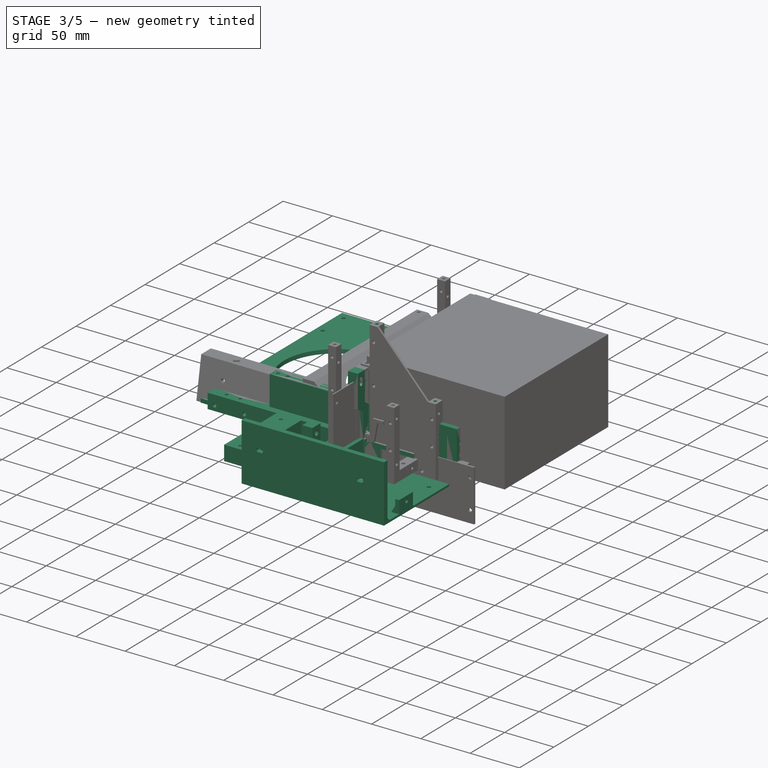
[diagram: stage 3 of 5 — iso view after this stage's code; geometry added in this stage tinted green]
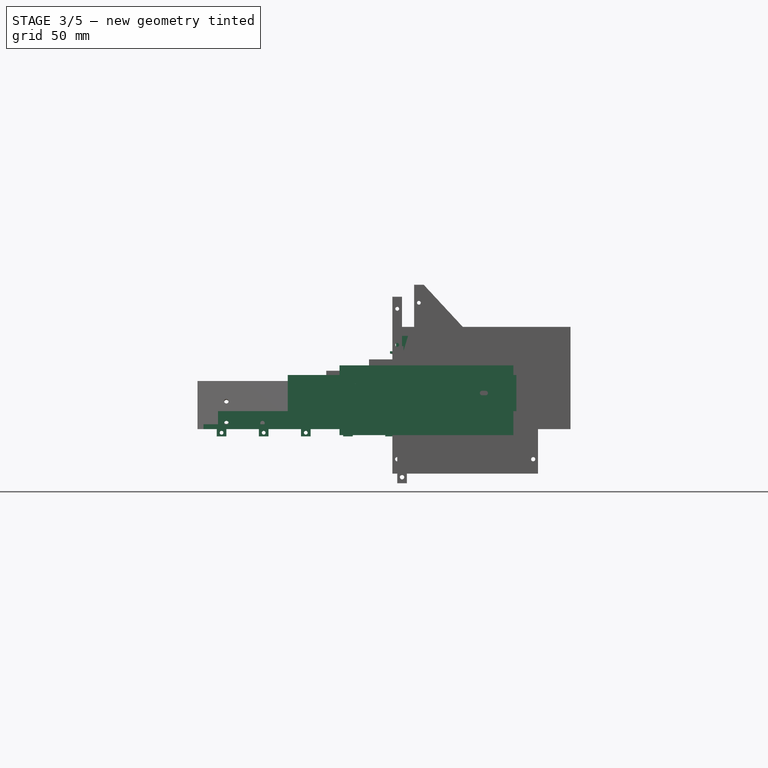
[diagram: stage 3 of 5 — front view after this stage's code; geometry added in this stage tinted green]
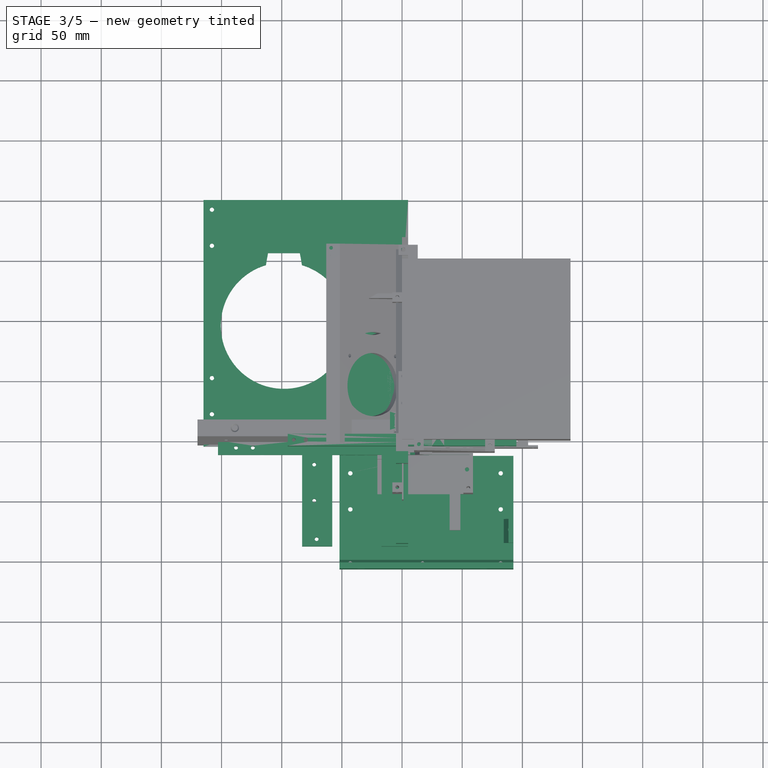
[diagram: stage 3 of 5 — top view after this stage's code; geometry added in this stage tinted green]
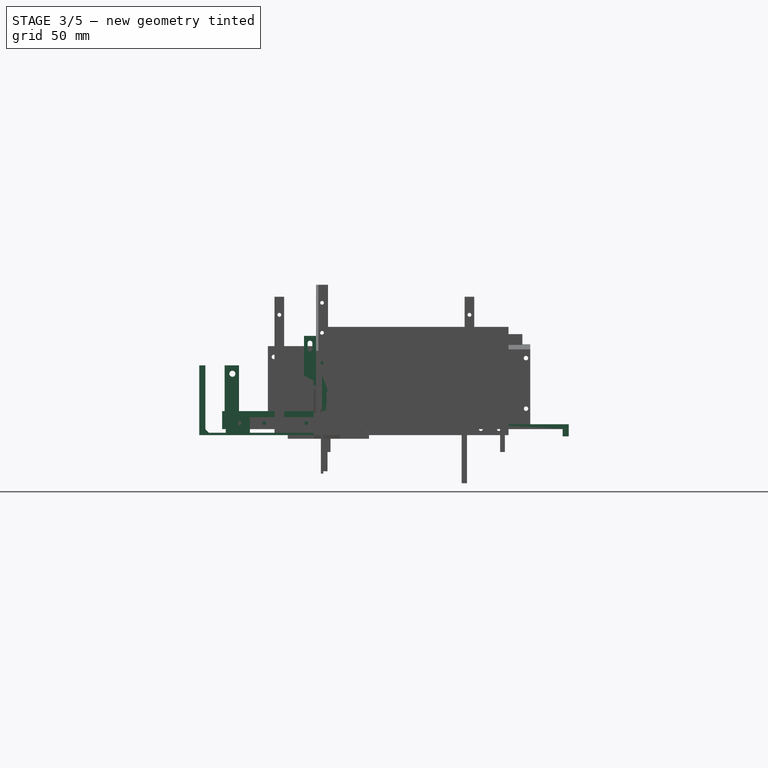
[diagram: stage 3 of 5 — right view after this stage's code; geometry added in this stage tinted green]
FEATURE [Sketcher::SketchObject] Sketch210
  FullyConstrained = false
  MapMode = 5
  Placement = pos=(-1.1e-15,-5,1.1e-15) rot=(1,0,0;1.5708rad)
  Support = -> [Pocket099]
  sketch-geometry (1):
    g0: LineSegment StartX=0 StartY=0 StartZ=0 EndX=-96.045 EndY=97.6953 EndZ=0
  constraints (2):
    c: Coincident(g0,g-1)
    c: Distance(g0) = 137
FEATURE [PartDesign::Body] Body003006031  label="tiangd"
  Group = -> [Sketch203,Pad101,Sketch207,Pad102,Sketch204,Pocket097,Sketch205,Pocket096,Sketch206,Pocket098,Sketch208,Pad103,Sketch209,Pocket099,Sketch210]
  Origin = -> Origin039
  Placement = pos=(180,-188,10) rot=(0,0,1;0rad)
  Tip = -> Pocket099
FEATURE [Sketcher::SketchObject] Sketch217
  AttachmentOffset = pos=(0,0,0.25) rot=(0,0,1;0rad)
  FullyConstrained = false
  MapMode = 5
  Placement = pos=(0.25,-1e-16,1e-16) rot=(0.57735,0.57735,0.57735;2.0944rad)
  Support = -> [YZ_Plane042]
  sketch-geometry (12):
    g0: LineSegment StartX=-17 StartY=-5 StartZ=0 EndX=41.5 EndY=-5 EndZ=0
    g1: LineSegment StartX=41.5 StartY=-5 StartZ=0 EndX=41.5 EndY=11.5 EndZ=0
    g2: LineSegment StartX=41.5 StartY=11.5 StartZ=0 EndX=65 EndY=11.5 EndZ=0
    g3: LineSegment StartX=65 StartY=11.5 StartZ=0 EndX=65 EndY=64.75 EndZ=0
    g4: LineSegment StartX=65 StartY=64.75 StartZ=0 EndX=-17 EndY=64.75 EndZ=0
    g5: LineSegment StartX=-17 StartY=64.75 StartZ=0 EndX=-17 EndY=-5 EndZ=0
    g6: LineSegment StartX=0 StartY=0 StartZ=0 EndX=0 EndY=-5 EndZ=0
    g7: Circle CenterX=0 CenterY=0 CenterZ=0 NormalX=0 NormalY=0 NormalZ=1 AngleXU=0 Radius=2
    g8: Circle CenterX=36 CenterY=0 CenterZ=0 NormalX=0 NormalY=0 NormalZ=1 AngleXU=0 Radius=2
    g9: Circle CenterX=60 CenterY=15 CenterZ=0 NormalX=0 NormalY=0 NormalZ=1 AngleXU=0 Radius=2
    g10: Circle CenterX=60 CenterY=55 CenterZ=0 NormalX=0 NormalY=0 NormalZ=1 AngleXU=0 Radius=2
    g11: Circle CenterX=60 CenterY=35 CenterZ=0 NormalX=0 NormalY=0 NormalZ=1 AngleXU=0 Radius=2
  constraints (32):
    c: Horizontal(g0)
    c: Coincident(g0,g1)
    c: Vertical(g1)
    c: Coincident(g1,g2)
    c: Horizontal(g2)
    c: Coincident(g2,g3)
    c: Vertical(g3)
    c: Coincident(g3,g4)
    c: Horizontal(g4)
    c: Coincident(g4,g5)
    c: Coincident(g5,g0)
    c: Vertical(g5)
    c: Coincident(g6,g-1)
    c: PointOnObject(g6,g0)
    c: Vertical(g6)
    c: DistanceY(g6,g6) = 5
    c: DistanceX(g0,g6) = 17
    c: DistanceX(g6,g0) = 41.5
    c: DistanceY(g1,g1) = 16.5
    c: DistanceY(g5,g5) = 69.75
    c: DistanceX(g2,g2) = 23.5
    c: Coincident(g7,g-1)
    c: PointOnObject(g8,g-1)
    c: DistanceY(g11,g10) = 20
    c: DistanceY(g9,g11) = 20
    c: Vertical(g9,g11)
    c: Vertical(g11,g10)
    c: Diameter(g7) = 4
    c: Equal(g7, g8-g11) x4
    c: DistanceX(g9,g2) = 5
    c: DistanceY(g2,g9) = 3.5
    c: DistanceX(g8) = 36
FEATURE [PartDesign::Pad] Pad109
  AllowMultiFace = false
  Direction = (1,1,1)
  Length = 1.2
  Length2 = 100
  Placement = pos=(0,0,0) rot=(0.57735,0.57735,0.57735;2.0944rad)
  Profile = -> Sketch217
  Type = 0
FEATURE [Sketcher::SketchObject] Sketch218
  AttachmentOffset = pos=(0,0,-15) rot=(0,0,1;0rad)
  FullyConstrained = false
  MapMode = 5
  Placement = pos=(0,15,3.3e-15) rot=(1,0,0;1.5708rad)
  Support = -> [XZ_Plane042]
  sketch-geometry (9):
    g0: LineSegment StartX=0.25 StartY=64.75 StartZ=0 EndX=-10 EndY=64.75 EndZ=0
    g1: LineSegment StartX=0.25 StartY=60.75 StartZ=0 EndX=0.25 EndY=64.75 EndZ=0
    g2: LineSegment StartX=-10 StartY=64.75 StartZ=0 EndX=-10 EndY=62.75 EndZ=0
    g3: LineSegment StartX=-10 StartY=62.75 StartZ=0 EndX=0.25 EndY=60.75 EndZ=0
    g4: LineSegment StartX=0.25 StartY=5.25 StartZ=0 EndX=-9.75 EndY=5.25 EndZ=0
    g5: LineSegment StartX=-9.75 StartY=5.25 StartZ=0 EndX=-9.75 EndY=7.25 EndZ=0
    g6: LineSegment StartX=-9.75 StartY=7.25 StartZ=0 EndX=-1.75 EndY=7.25 EndZ=0
    g7: LineSegment StartX=-1.75 StartY=7.25 StartZ=0 EndX=0.25 EndY=9.25 EndZ=0
    g8: LineSegment StartX=0.25 StartY=9.25 StartZ=0 EndX=0.25 EndY=5.25 EndZ=0
  constraints (27):
    c: Horizontal(g0)
    c: Coincident(g1,g0)
    c: Vertical(g1)
    c: DistanceX(g1) = 0.25
    c: DistanceY(g1,g1) = 4
    c: DistanceX(g0,g0) = 10.25
    c: DistanceY(g0) = 64.75
    c: Coincident(g0,g2)
    c: Vertical(g2)
    c: Coincident(g2,g3)
    c: Coincident(g3,g1)
    c: DistanceY(g2,g2) = 2
    c: Horizontal(g4)
    c: Coincident(g4,g5)
    c: Vertical(g5)
    c: Coincident(g5,g6)
    c: Horizontal(g6)
    c: Coincident(g6,g7)
    c: Coincident(g7,g8)
    c: Coincident(g8,g4)
    c: Vertical(g8)
    c: DistanceX(g4) = 0.25
    c: DistanceY(g4) = 5.25
    c: DistanceX(g4,g4) = 10
    c: DistanceY(g5,g5) = 2
    c: Angle(g7,g6) = 2.35619
    c: DistanceY(g8,g8) = 4
FEATURE [PartDesign::Pad] Pad  label="join"
  AllowMultiFace = false
  BaseFeature = -> Pad109
  Direction = (1,1,1)
  Length = 7
  Length2 = 8
  Midplane = true
  Placement = pos=(0,0,0) rot=(0.57735,0.57735,0.57735;2.0944rad)
  Profile = -> Sketch218
  Type = 4
FEATURE [Sketcher::SketchObject] Sketch
  AttachmentOffset = pos=(0,0,50) rot=(0,0,1;0rad)
  FullyConstrained = false
  MapMode = 5
  Placement = pos=(0,0,50) rot=(0,0,1;0rad)
  Support = -> [XY_Plane042]
  sketch-geometry (2):
    g0: Circle CenterX=-5 CenterY=11 CenterZ=0 NormalX=0 NormalY=0 NormalZ=1 AngleXU=0 Radius=1.5
    g1: Circle CenterX=-5 CenterY=20 CenterZ=0 NormalX=0 NormalY=0 NormalZ=1 AngleXU=0 Radius=1.5
  constraints (6):
    c: Vertical(g0,g1)
    c: DistanceY(g0,g1) = 9
    c: Diameter(g0) = 3
    c: Equal(g0,g1)
    c: DistanceX(g0) = -5
    c: DistanceY(g0) = 11
FEATURE [PartDesign::Pocket] Pocket
  AllowMultiFace = false
  BaseFeature = -> Pad
  Length = 5
  Length2 = 100
  Midplane = true
  Placement = pos=(0,0,0) rot=(0.57735,0.57735,0.57735;2.0944rad)
  Profile = -> Sketch
  Type = 1
FEATURE [PartDesign::Body] Body003006034  label="coverdepanb"
  Group = -> [Sketch217,Pad109,Sketch218,Pad,Sketch,Pocket]
  Origin = -> Origin042
  Placement = pos=(185,-43,5) rot=(0,0,1;0rad)
  Tip = -> Pocket
FEATURE [Sketcher::SketchObject] Sketch221
  FullyConstrained = false
  MapMode = 5
  Placement = pos=(0,0,0) rot=(1,0,0;1.5708rad)
  Support = -> [XZ_Plane043]
  sketch-geometry (14):
    g0: LineSegment StartX=-5 StartY=0.25 StartZ=0 EndX=-5 EndY=45 EndZ=0
    g1: LineSegment StartX=-5 StartY=45 StartZ=0 EndX=5 EndY=45 EndZ=0
    g2: LineSegment StartX=19 StartY=0.25 StartZ=0 EndX=-5 EndY=0.25 EndZ=0
    g3: LineSegment StartX=5 StartY=37 StartZ=0 EndX=85 EndY=37 EndZ=0
    g4: LineSegment StartX=85 StartY=0.25 StartZ=0 EndX=95 EndY=0.25 EndZ=0
    g5: LineSegment StartX=95 StartY=0.25 StartZ=0 EndX=95 EndY=45 EndZ=0
    g6: LineSegment StartX=95 StartY=45 StartZ=0 EndX=5 EndY=45 EndZ=0
    g7: LineSegment StartX=5 StartY=37 StartZ=0 EndX=5 EndY=6 EndZ=0
    g8: LineSegment StartX=5 StartY=6 StartZ=0 EndX=19 EndY=6 EndZ=0
    g9: LineSegment StartX=19 StartY=6 StartZ=0 EndX=19 EndY=0.25 EndZ=0
    g10: LineSegment StartX=85 StartY=0.25 StartZ=0 EndX=71 EndY=0.25 EndZ=0
    g11: LineSegment StartX=71 StartY=0.25 StartZ=0 EndX=71 EndY=6 EndZ=0
    g12: LineSegment StartX=71 StartY=6 StartZ=0 EndX=85 EndY=6 EndZ=0
    g13: LineSegment StartX=85 StartY=6 StartZ=0 EndX=85 EndY=37 EndZ=0
  constraints (41):
    c: Vertical(g0)
    c: Coincident(g0,g1)
    c: DistanceY(g-1,g0) = 0.25
    c: Symmetric(g0,g1,g-2)
    c: DistanceX(g1,g1) = 10
    c: DistanceY(g0) = 45
    c: Coincident(g2,g0)
    c: Horizontal(g2)
    c: Horizontal(g3)
    c: Horizontal(g4)
    c: Coincident(g4,g5)
    c: Vertical(g5)
    c: Coincident(g5,g6)
    c: Coincident(g6,g1)
    c: Horizontal(g6)
    c: Vertical(g3,g1)
    c: DistanceY(g3,g1) = 8
    c: DistanceX(g4) = 95
    c: Coincident(g3,g7)
    c: Vertical(g7)
    c: Horizontal(g8)
    c: Coincident(g9,g8)
    c: Coincident(g9,g2)
    c: Vertical(g9)
    c: DistanceY(g9,g9) = 5.75
    c: DistanceX(g8,g8) = 14
    c: Horizontal(g4,g0)
    c: DistanceX(g4,g4) = 10
    c: Coincident(g4,g10)
    c: Horizontal(g10)
    c: Coincident(g10,g11)
    c: Vertical(g11)
    c: Coincident(g11,g12)
    c: Horizontal(g12)
    c: Coincident(g12,g13)
    c: Coincident(g13,g3)
    c: Vertical(g13)
    c: Coincident(g7,g8)
    c: DistanceX(g12,g12) = 14
    c: Vertical(g12,g4)
    c: Horizontal(g11,g8)
FEATURE [PartDesign::Pad] Pad110
  AllowMultiFace = false
  Direction = (1,1,1)
  Length = 10
  Length2 = 100
  Midplane = true
  Placement = pos=(0,0,0) rot=(1,0,0;1.5708rad)
  Profile = -> Sketch221
  Type = 0
FEATURE [Sketcher::SketchObject] Sketch222
  FullyConstrained = false
  MapMode = 5
  Placement = pos=(0,0,0) rot=(0.57735,0.57735,0.57735;2.0944rad)
  Support = -> [YZ_Plane043]
  sketch-geometry (14):
    g0: LineSegment StartX=-5 StartY=36 StartZ=0 EndX=-20 EndY=44.6603 EndZ=0
    g1: LineSegment StartX=-20 StartY=44.6603 StartZ=0 EndX=-20 EndY=77.5 EndZ=0
    g2: LineSegment StartX=-20 StartY=77.5 StartZ=0 EndX=-10 EndY=77.5 EndZ=0
    g3: LineSegment StartX=-10 StartY=47.8868 StartZ=0 EndX=-5 EndY=45 EndZ=0
    g4: LineSegment StartX=-5 StartY=45 StartZ=0 EndX=-5 EndY=36 EndZ=0
    g5: ArcOfCircle CenterX=-15 CenterY=71.5 CenterZ=0 NormalX=0 NormalY=0 NormalZ=1 AngleXU=0 Radius=2 StartAngle=3.1e-15 EndAngle=3.14159
    g6: ArcOfCircle CenterX=-15 CenterY=66.5 CenterZ=0 NormalX=0 NormalY=0 NormalZ=1 AngleXU=0 Radius=2 StartAngle=3.14159 EndAngle=6.28319
    g7: LineSegment StartX=-17 StartY=71.5 StartZ=0 EndX=-17 EndY=66.5 EndZ=0
    g8: LineSegment StartX=-13 StartY=71.5 StartZ=0 EndX=-13 EndY=66.5 EndZ=0
    g9: GeomPoint X=-13 Y=69 Z=0
    g10: LineSegment StartX=-10 StartY=47.8868 StartZ=0 EndX=-10 EndY=75.5 EndZ=0
    g11: LineSegment StartX=-10 StartY=77.5 StartZ=0 EndX=5 EndY=77.5 EndZ=0
    g12: LineSegment StartX=5 StartY=77.5 StartZ=0 EndX=5 EndY=75.5 EndZ=0
    g13: LineSegment StartX=5 StartY=75.5 StartZ=0 EndX=-10 EndY=75.5 EndZ=0
  constraints (38):
    c: Coincident(g0,g1)
    c: Vertical(g1)
    c: Coincident(g1,g2)
    c: Horizontal(g2)
    c: Coincident(g3,g4)
    c: Coincident(g4,g0)
    c: DistanceY(g3) = 45
    c: DistanceY(g0) = 36
    c: DistanceX(g0) = -5
    c: Parallel(g3,g0)
    c: Tangent(g5,g8) = 1.5708
    c: Tangent(g5,g7) = -1.5708
    c: Tangent(g7,g6) = -1.5708
    c: Tangent(g8,g6) = 1.5708
    c: Vertical(g7)
    c: Equal(g5,g6)
    c: DistanceX(g6,g-1) = 15
    c: Diameter(g5) = 4
    c: DistanceY(g8,g8) = 5
    c: Symmetric(g5,g6,g9)
    c: DistanceY(g3,g9) = 24
    c: DistanceY(g5,g2) = 6
    c: DistanceX(g5,g2) = 5
    c: DistanceX(g1,g5) = 5
    c: Coincident(g10,g3)
    c: Vertical(g10)
    c: Coincident(g2,g11)
    c: Horizontal(g11)
    c: Coincident(g11,g12)
    c: Vertical(g12)
    c: Coincident(g12,g13)
    c: Coincident(g13,g10)
    c: Horizontal(g13)
    c: Vertical(g10,g2)
    c: DistanceY(g12,g12) = 2
    c: Angle(g0,g1) = 2.0944
    c: Vertical(g3,g0)
    c: DistanceX(g13,g13) = 15
FEATURE [PartDesign::Pad] Pad111  label="ext"
  AllowMultiFace = false
  BaseFeature = -> Pad110
  Direction = (1,1,1)
  Length = 10
  Length2 = 100
  Midplane = true
  Placement = pos=(0,0,0) rot=(1,0,0;1.5708rad)
  Profile = -> Sketch222
  Type = 0
FEATURE [Sketcher::SketchObject] Sketch223
  AttachmentOffset = pos=(0,0,5) rot=(0,0,1;0rad)
  FullyConstrained = false
  MapMode = 5
  Placement = pos=(0,-5,-1.1e-15) rot=(1,0,0;1.5708rad)
  Support = -> [XZ_Plane043]
  sketch-geometry (4):
    g0: LineSegment StartX=5 StartY=37.25 StartZ=0 EndX=85 EndY=37.25 EndZ=0
    g1: LineSegment StartX=85 StartY=37.25 StartZ=0 EndX=85 EndY=0.25 EndZ=0
    g2: LineSegment StartX=85 StartY=0.25 StartZ=0 EndX=5 EndY=0.25 EndZ=0
    g3: LineSegment StartX=5 StartY=0.25 StartZ=0 EndX=5 EndY=37.25 EndZ=0
  constraints (12):
    c: Coincident(g0,g1)
    c: Coincident(g1,g2)
    c: Coincident(g2,g3)
    c: Coincident(g3,g0)
    c: Horizontal(g0)
    c: Horizontal(g2)
    c: Vertical(g1)
    c: Vertical(g3)
    c: DistanceX(g2) = 5
    c: DistanceY(g2) = 0.25
    c: DistanceX(g2,g2) = 80
    c: DistanceY(g3,g3) = 37
FEATURE [PartDesign::Pad] Pad112  label="tutup"
  AllowMultiFace = false
  BaseFeature = -> Pad111
  Direction = (1,1,1)
  Length = 1
  Length2 = 100
  Placement = pos=(0,0,0) rot=(1,0,0;1.5708rad)
  Profile = -> Sketch223
  Reversed = true
  Type = 0
FEATURE [Sketcher::SketchObject] Sketch224
  FullyConstrained = false
  MapMode = 5
  Placement = pos=(0,0,0) rot=(1,0,0;1.5708rad)
  Support = -> [XZ_Plane]
  sketch-geometry (15):
    g0: LineSegment StartX=25 StartY=0.25 StartZ=0 EndX=35 EndY=0.25 EndZ=0
    g1: LineSegment StartX=35 StartY=0.25 StartZ=0 EndX=35 EndY=60 EndZ=0
    g2: LineSegment StartX=35 StartY=60 StartZ=0 EndX=25 EndY=60 EndZ=0
    g3: LineSegment StartX=25 StartY=60 StartZ=0 EndX=25 EndY=45 EndZ=0
    g4: LineSegment StartX=25 StartY=45 StartZ=0 EndX=-95 EndY=45 EndZ=0
    g5: LineSegment StartX=-95 StartY=45 StartZ=0 EndX=-95 EndY=0.25 EndZ=0
    g6: LineSegment StartX=-95 StartY=0.25 StartZ=0 EndX=-75 EndY=0.25 EndZ=0
    g7: LineSegment StartX=-75 StartY=0.25 StartZ=0 EndX=-75 EndY=6 EndZ=0
    g8: LineSegment StartX=-75 StartY=6 StartZ=0 EndX=-85 EndY=6 EndZ=0
    g9: LineSegment StartX=-85 StartY=6 StartZ=0 EndX=-85 EndY=37 EndZ=0
    g10: LineSegment StartX=-85 StartY=37 StartZ=0 EndX=25 EndY=37 EndZ=0
    g11: LineSegment StartX=25 StartY=0.25 StartZ=0 EndX=-5 EndY=0.25 EndZ=0
    g12: LineSegment StartX=-5 StartY=0.25 StartZ=0 EndX=-5 EndY=6 EndZ=0
    g13: LineSegment StartX=-5 StartY=6 StartZ=0 EndX=25 EndY=6 EndZ=0
    g14: LineSegment StartX=25 StartY=6 StartZ=0 EndX=25 EndY=37 EndZ=0
  constraints (45):
    c: Horizontal(g0)
    c: Coincident(g0,g1)
    c: Vertical(g1)
    c: Coincident(g1,g2)
    c: Horizontal(g2)
    c: Coincident(g2,g3)
    c: Vertical(g3)
    c: Coincident(g3,g4)
    c: Horizontal(g4)
    c: Coincident(g4,g5)
    c: Vertical(g5)
    c: Coincident(g5,g6)
    c: Horizontal(g6)
    c: Coincident(g6,g7)
    c: Vertical(g7)
    c: Coincident(g7,g8)
    c: Horizontal(g8)
    c: Coincident(g8,g9)
    c: Vertical(g9)
    c: Coincident(g9,g10)
    c: Horizontal(g10)
    c: DistanceX(g0,g0) = 10
    c: DistanceX(g0) = 25
    c: DistanceY(g0) = 0.25
    c: Horizontal(g0,g6)
    c: DistanceY(g1,g1) = 59.75
    c: DistanceY(g10,g3) = 8
    c: Vertical(g3,g10)
    c: DistanceY(g5,g5) = 44.75
    c: DistanceX(g4,g4) = 120
    c: DistanceX(g5,g8) = 10
    c: DistanceX(g8,g8) = 10
    c: Vertical(g2,g0)
    c: Coincident(g0,g11)
    c: Horizontal(g11)
    c: Coincident(g11,g12)
    c: Vertical(g12)
    c: Coincident(g12,g13)
    c: Horizontal(g13)
    c: Coincident(g13,g14)
    c: Coincident(g14,g10)
    c: Vertical(g14)
    c: DistanceY(g12,g12) = 5.75
    c: DistanceX(g13,g13) = 30
    c: Equal(g7,g12)
FEATURE [PartDesign::Pad] Pad113
  AllowMultiFace = false
  Direction = (1,1,1)
  Length = 10
  Length2 = 100
  Midplane = true
  Placement = pos=(0,0,0) rot=(1,0,0;1.5708rad)
  Profile = -> Sketch224
  Type = 0
FEATURE [Sketcher::SketchObject] Sketch225
  FullyConstrained = false
  MapMode = 5
  Support = -> [XY_Plane]
  sketch-geometry (4):
    g0: Circle CenterX=0 CenterY=0 CenterZ=0 NormalX=0 NormalY=0 NormalZ=1 AngleXU=0 Radius=1.85
    g1: Circle CenterX=30 CenterY=0 CenterZ=0 NormalX=0 NormalY=0 NormalZ=1 AngleXU=0 Radius=1.55
    g2: Circle CenterX=-90 CenterY=0 CenterZ=0 NormalX=0 NormalY=0 NormalZ=1 AngleXU=0 Radius=1.55
    g3: Circle CenterX=-80 CenterY=0 CenterZ=0 NormalX=0 NormalY=0 NormalZ=1 AngleXU=0 Radius=1.85
  constraints (11):
    c: Coincident(g0,g-1)
    c: PointOnObject(g1,g-1)
    c: PointOnObject(g2,g-1)
    c: PointOnObject(g3,g-1)
    c: DistanceX(g1) = 30
    c: DistanceX(g3,g0) = 80
    c: DistanceX(g2,g3) = 10
    c: Diameter(g3) = 3.7
    c: Equal(g3,g0)
    c: Diameter(g1) = 3.1
    c: Equal(g1,g2)
FEATURE [PartDesign::Pocket] Pocket101
  AllowMultiFace = false
  BaseFeature = -> Pad113
  Length = 5
  Length2 = 100
  Midplane = true
  Placement = pos=(0,0,0) rot=(1,0,0;1.5708rad)
  Profile = -> Sketch225
  Type = 1
FEATURE [Sketcher::SketchObject] Sketch226
  AttachmentOffset = pos=(0,0,6) rot=(0,0,1;0rad)
  FullyConstrained = false
  MapMode = 5
  Placement = pos=(0,0,6) rot=(0,0,1;0rad)
  Support = -> [XY_Plane]
  sketch-geometry (14):
    g0: LineSegment StartX=1.64545 StartY=-2.85 StartZ=0 EndX=3.2909 EndY=-4.3521e-12 EndZ=0
    g1: LineSegment StartX=3.2909 StartY=-4.3521e-12 StartZ=0 EndX=1.64545 EndY=2.85 EndZ=0
    g2: LineSegment StartX=1.64545 StartY=2.85 StartZ=0 EndX=-1.64545 EndY=2.85 EndZ=0
    g3: LineSegment StartX=-1.64545 StartY=2.85 StartZ=0 EndX=-3.2909 EndY=-4.3521e-12 EndZ=0
    g4: LineSegment StartX=-3.2909 StartY=-4.3521e-12 StartZ=0 EndX=-1.64545 EndY=-2.85 EndZ=0
    g5: LineSegment StartX=-1.64545 StartY=-2.85 StartZ=0 EndX=1.64545 EndY=-2.85 EndZ=0
    g6: Circle CenterX=0 CenterY=0 CenterZ=0 NormalX=0 NormalY=0 NormalZ=1 AngleXU=0 Radius=3.2909
    g7: LineSegment StartX=-78.3546 StartY=-2.85 StartZ=0 EndX=-76.7091 EndY=0 EndZ=0
    g8: LineSegment StartX=-76.7091 StartY=0 StartZ=0 EndX=-78.3546 EndY=2.85 EndZ=0
    g9: LineSegment StartX=-78.3546 StartY=2.85 StartZ=0 EndX=-81.6454 EndY=2.85 EndZ=0
    g10: LineSegment StartX=-81.6454 StartY=2.85 StartZ=0 EndX=-83.2909 EndY=0 EndZ=0
    g11: LineSegment StartX=-83.2909 StartY=-1e-16 StartZ=0 EndX=-81.6454 EndY=-2.85 EndZ=0
    g12: LineSegment StartX=-81.6454 StartY=-2.85 StartZ=0 EndX=-78.3546 EndY=-2.85 EndZ=0
    g13: Circle CenterX=-80 CenterY=0 CenterZ=0 NormalX=0 NormalY=0 NormalZ=1 AngleXU=0 Radius=3.2909
  constraints (33):
    c: Coincident(g0,g1)
    c: Coincident(g1,g2)
    c: Coincident(g2,g3)
    c: Coincident(g3,g4)
    c: Coincident(g4,g5)
    c: Coincident(g5,g0)
    c: Equal(g0, g1-g5) x5
    c: PointOnObject(g0,g6)
    c: PointOnObject(g1,g6)
    c: PointOnObject(g2,g6)
    c: PointOnObject(g3,g6)
    c: PointOnObject(g4,g6)
    c: PointOnObject(g5,g6)
    c: Coincident(g6,g-1)
    c: Coincident(g7,g8)
    c: Coincident(g8,g9)
    c: Coincident(g9,g10)
    c: Coincident(g10,g11)
    c: Coincident(g11,g12)
    c: Coincident(g12,g7)
    c: Equal(g7, g8-g12) x5
    c: PointOnObject(g7,g13)
    c: PointOnObject(g8,g13)
    c: PointOnObject(g9,g13)
    c: PointOnObject(g10,g13)
    c: PointOnObject(g11,g13)
    c: PointOnObject(g12,g13)
    c: PointOnObject(g13,g-1)
    c: DistanceX(g13,g-1) = 80
    c: Horizontal(g5)
    c: Horizontal(g12)
    c: Equal(g13,g6)
    c: DistanceY(g4,g2) = 5.7
FEATURE [PartDesign::Pocket] Pocket102
  AllowMultiFace = false
  BaseFeature = -> Pocket101
  Length = 1
  Length2 = 100
  Placement = pos=(0,0,0) rot=(1,0,0;1.5708rad)
  Profile = -> Sketch226
  Type = 0
FEATURE [Sketcher::SketchObject] Sketch227
  AttachmentOffset = pos=(0,0,5) rot=(0,0,1;0rad)
  FullyConstrained = false
  MapMode = 5
  Placement = pos=(0,-5,-1.1e-15) rot=(1,0,0;1.5708rad)
  Support = -> [XZ_Plane]
  sketch-geometry (4):
    g0: LineSegment StartX=-85 StartY=37 StartZ=0 EndX=25 EndY=37 EndZ=0
    g1: LineSegment StartX=25 StartY=37 StartZ=0 EndX=25 EndY=0.25 EndZ=0
    g2: LineSegment StartX=25 StartY=0.25 StartZ=0 EndX=-85 EndY=0.25 EndZ=0
    g3: LineSegment StartX=-85 StartY=0.25 StartZ=0 EndX=-85 EndY=37 EndZ=0
  constraints (12):
    c: Coincident(g0,g1)
    c: Coincident(g1,g2)
    c: Coincident(g2,g3)
    c: Coincident(g3,g0)
    c: Horizontal(g0)
    c: Horizontal(g2)
    c: Vertical(g1)
    c: Vertical(g3)
    c: DistanceX(g1) = 25
    c: DistanceY(g1) = 0.25
    c: DistanceX(g0,g0) = 110
    c: DistanceY(g1,g1) = 36.75
FEATURE [PartDesign::Pad] Pad114
  AllowMultiFace = false
  BaseFeature = -> Pocket102
  Direction = (1,1,1)
  Length = 0.8
  Length2 = 100
  Placement = pos=(0,0,0) rot=(1,0,0;1.5708rad)
  Profile = -> Sketch227
  Reversed = true
  Type = 0
FEATURE [Sketcher::SketchObject] Sketch228
  AttachmentOffset = pos=(0,0,0) rot=(0,1,0;3.14159rad)
  FullyConstrained = false
  MapMode = 5
  Placement = pos=(0,0,0) rot=(-0.57735,0.57735,0.57735;4.18879rad)
  Support = -> [YZ_Plane]
  sketch-geometry (3):
    g0: Circle CenterX=0 CenterY=32 CenterZ=0 NormalX=0 NormalY=0 NormalZ=1 AngleXU=0 Radius=1.55
    g1: Circle CenterX=0 CenterY=12 CenterZ=0 NormalX=0 NormalY=0 NormalZ=1 AngleXU=0 Radius=1.55
    g2: Circle CenterX=0 CenterY=22 CenterZ=0 NormalX=0 NormalY=0 NormalZ=1 AngleXU=0 Radius=1.85
  constraints (9):
    c: PointOnObject(g0,g-2)
    c: PointOnObject(g1,g-2)
    c: Diameter(g0) = 3.1
    c: Equal(g0,g1)
    c: DistanceY(g1) = 12
    c: DistanceY(g1,g0) = 20
    c: PointOnObject(g2,g-2)
    c: Diameter(g2) = 3.7
    c: DistanceY(g2,g0) = 10
FEATURE [PartDesign::Pocket] Pocket103
  AllowMultiFace = false
  BaseFeature = -> Pad114
  Length = 5
  Length2 = 100
  Midplane = true
  Placement = pos=(0,0,0) rot=(1,0,0;1.5708rad)
  Profile = -> Sketch228
  Type = 1
FEATURE [Sketcher::SketchObject] Sketch229
  AttachmentOffset = pos=(0,0,-10) rot=(0,0,1;0rad)
  FullyConstrained = false
  MapMode = 5
  Placement = pos=(-10,2.2e-15,-2.2e-15) rot=(0.57735,0.57735,0.57735;2.0944rad)
  Support = -> [YZ_Plane043]
  sketch-geometry (3):
    g0: Circle CenterX=0 CenterY=20 CenterZ=0 NormalX=0 NormalY=0 NormalZ=1 AngleXU=0 Radius=1.85
    g1: Circle CenterX=0 CenterY=30 CenterZ=0 NormalX=0 NormalY=0 NormalZ=1 AngleXU=0 Radius=1.55
    g2: Circle CenterX=0 CenterY=10 CenterZ=0 NormalX=0 NormalY=0 NormalZ=1 AngleXU=0 Radius=1.55
  constraints (8):
    c: PointOnObject(g0,g-2)
    c: PointOnObject(g1,g-2)
    c: Diameter(g2) = 3.1
    c: Equal(g2,g1)
    c: DistanceY(g-1,g2) = 10
    c: Symmetric(g2,g1,g0)
    c: Diameter(g0) = 3.7
    c: DistanceY(g-1,g1) = 30
FEATURE [PartDesign::Pocket] Pocket104
  AllowMultiFace = false
  BaseFeature = -> Pad112
  Length = 5
  Length2 = 100
  Placement = pos=(0,0,0) rot=(1,0,0;1.5708rad)
  Profile = -> Sketch229
  Reversed = true
  Type = 1
FEATURE [Sketcher::SketchObject] Sketch230
  FullyConstrained = false
  MapMode = 5
  Support = -> [XY_Plane043]
  sketch-geometry (6):
    g0: Circle CenterX=-15 CenterY=0 CenterZ=0 NormalX=0 NormalY=0 NormalZ=1 AngleXU=0 Radius=1.75
    g1: Circle CenterX=0 CenterY=0 CenterZ=0 NormalX=0 NormalY=0 NormalZ=1 AngleXU=0 Radius=1.55
    g2: Circle CenterX=15 CenterY=0 CenterZ=0 NormalX=0 NormalY=0 NormalZ=1 AngleXU=0 Radius=1.75
    g3: Circle CenterX=0 CenterY=17 CenterZ=0 NormalX=0 NormalY=0 NormalZ=1 AngleXU=0 Radius=1.475
    g4: Circle CenterX=90 CenterY=0 CenterZ=0 NormalX=0 NormalY=0 NormalZ=1 AngleXU=0 Radius=1.55
    g5: Circle CenterX=75 CenterY=0 CenterZ=0 NormalX=0 NormalY=0 NormalZ=1 AngleXU=0 Radius=1.75
  constraints (16):
    c: PointOnObject(g0,g-1)
    c: Coincident(g1,g-1)
    c: Symmetric(g0,g2,g1)
    c: DistanceX(g0,g2) = 30
    c: Diameter(g0) = 3.5
    c: Equal(g0,g2)
    c: Diameter(g1) = 3.1
    c: PointOnObject(g3,g-2)
    c: Diameter(g3) = 2.95
    c: DistanceY(g3) = 17
    c: PointOnObject(g4,g-1)
    c: PointOnObject(g5,g-1)
    c: DistanceX(g5,g4) = 15
    c: DistanceX(g1,g5) = 75
    c: Equal(g1,g4)
    c: Equal(g2,g5)
FEATURE [PartDesign::Pocket] Pocket105
  AllowMultiFace = false
  BaseFeature = -> Pocket104
  Length = 20
  Length2 = 100
  Placement = pos=(0,0,0) rot=(1,0,0;1.5708rad)
  Profile = -> Sketch230
  Reversed = true
  Type = 0
FEATURE [PartDesign::Body] Body003006035  label="gpumount004"
  Group = -> [Sketch221,Pad110,Sketch222,Pad111,Sketch223,Pad112,Sketch229,Pocket104,Sketch230,Pocket105]
  Origin = -> Origin043
  Placement = pos=(2e-15,17,10) rot=(0,0,1;3.14159rad)
  Tip = -> Pocket105
FEATURE [Sketcher::SketchObject] Sketch231
  AttachmentOffset = pos=(0,0,-5) rot=(0,1,0;3.14159rad)
  FullyConstrained = false
  MapMode = 5
  Placement = pos=(0,5,1.1e-15) rot=(0,0.707107,0.707107;3.14159rad)
  Support = -> [XZ_Plane]
  sketch-geometry (4):
    g0: LineSegment StartX=-35 StartY=7 StartZ=0 EndX=95 EndY=7 EndZ=0
    g1: LineSegment StartX=95 StartY=7 StartZ=0 EndX=95 EndY=3.5 EndZ=0
    g2: LineSegment StartX=95 StartY=3.5 StartZ=0 EndX=-35 EndY=3.5 EndZ=0
    g3: LineSegment StartX=-35 StartY=3.5 StartZ=0 EndX=-35 EndY=7 EndZ=0
  constraints (12):
    c: Coincident(g0,g1)
    c: Coincident(g1,g2)
    c: Coincident(g2,g3)
    c: Coincident(g3,g0)
    c: Horizontal(g0)
    c: Horizontal(g2)
    c: Vertical(g1)
    c: Vertical(g3)
    c: DistanceX(g1) = 95
    c: DistanceY(g1) = 3.5
    c: DistanceY(g3,g3) = 3.5
    c: DistanceX(g0,g0) = 130
FEATURE [PartDesign::Pocket] Pocket106
  AllowMultiFace = false
  BaseFeature = -> Pocket103
  Length = 3
  Length2 = 100
  Placement = pos=(0,0,0) rot=(1,0,0;1.5708rad)
  Profile = -> Sketch231
  Type = 0
FEATURE [PartDesign::Body] Body  label="gpumount5"
  Group = -> [Sketch224,Pad113,Sketch225,Pocket101,Sketch226,Pocket102,Sketch227,Pad114,Sketch228,Pocket103,Sketch231,Pocket106]
  Origin = -> Origin
  Placement = pos=(0,-188,10) rot=(0,0,1;0rad)
  Tip = -> Pocket106
FEATURE [Sketcher::SketchObject] Sketch232
  FullyConstrained = false
  MapMode = 5
  Placement = pos=(0,0,0) rot=(1,0,0;1.5708rad)
  Support = -> [XZ_Plane044]
  sketch-geometry (10):
    g0: LineSegment StartX=-65 StartY=0 StartZ=0 EndX=5 EndY=0 EndZ=0
    g1: LineSegment StartX=5 StartY=0 StartZ=0 EndX=5 EndY=45 EndZ=0
    g2: LineSegment StartX=-65 StartY=15 StartZ=0 EndX=-65 EndY=0 EndZ=0
    g3: LineSegment StartX=-65 StartY=15 StartZ=0 EndX=-5 EndY=15 EndZ=0
    g4: LineSegment StartX=-5 StartY=15 StartZ=0 EndX=-5 EndY=45 EndZ=0
    g5: LineSegment StartX=-5 StartY=45 StartZ=0 EndX=5 EndY=45 EndZ=0
    g6: Circle CenterX=-22 CenterY=5 CenterZ=0 NormalX=0 NormalY=0 NormalZ=1 AngleXU=0 Radius=1.85
    g7: Circle CenterX=-42 CenterY=5 CenterZ=0 NormalX=0 NormalY=0 NormalZ=1 AngleXU=0 Radius=1.85
    g8: Circle CenterX=0 CenterY=20 CenterZ=0 NormalX=0 NormalY=0 NormalZ=1 AngleXU=0 Radius=1.85
    g9: Circle CenterX=0 CenterY=40 CenterZ=0 NormalX=0 NormalY=0 NormalZ=1 AngleXU=0 Radius=1.85
  constraints (30):
    c: Coincident(g0,g1)
    c: Coincident(g2,g0)
    c: Horizontal(g0)
    c: Vertical(g1)
    c: Vertical(g2)
    c: DistanceY(g2,g2) = 15
    c: PointOnObject(g0,g-1)
    c: DistanceX(g-1,g0) = 5
    c: DistanceX(g2,g1) = 70
    c: Coincident(g2,g3)
    c: Horizontal(g3)
    c: Coincident(g3,g4)
    c: Vertical(g4)
    c: Coincident(g4,g5)
    c: Horizontal(g5)
    c: Coincident(g1,g5)
    c: DistanceX(g5,g5) = 10
    c: DistanceY(g1,g1) = 45
    c: PointOnObject(g8,g-2)
    c: DistanceY(g8) = 20
    c: DistanceX(g6,g-1) = 22
    c: DistanceX(g7,g6) = 20
    c: Diameter(g6) = 3.7
    c: Equal(g6,g7)
    c: Equal(g6,g8)
    c: PointOnObject(g9,g-2)
    c: DistanceY(g8,g9) = 20
    c: Equal(g8,g9)
    c: Horizontal(g7,g6)
    c: DistanceY(g7) = 5
FEATURE [PartDesign::Pad] Pad115
  AllowMultiFace = false
  Direction = (1,1,1)
  Length = 12
  Length2 = 100
  Placement = pos=(0,0,0) rot=(1,0,0;1.5708rad)
  Profile = -> Sketch232
  Type = 0
FEATURE [Sketcher::SketchObject] Sketch233
  FullyConstrained = false
  MapMode = 5
  Placement = pos=(0,0,0) rot=(0.57735,0.57735,0.57735;2.0944rad)
  Support = -> [YZ_Plane044]
  sketch-geometry (4):
    g0: LineSegment StartX=-12 StartY=0 StartZ=0 EndX=-88 EndY=0 EndZ=0
    g1: LineSegment StartX=-88 StartY=0 StartZ=0 EndX=-88 EndY=15 EndZ=0
    g2: LineSegment StartX=-88 StartY=15 StartZ=0 EndX=-12 EndY=15 EndZ=0
    g3: LineSegment StartX=-12 StartY=15 StartZ=0 EndX=-12 EndY=0 EndZ=0
  constraints (12):
    c: Coincident(g0,g1)
    c: Coincident(g1,g2)
    c: Coincident(g2,g3)
    c: Coincident(g3,g0)
    c: Horizontal(g0)
    c: Horizontal(g2)
    c: Vertical(g1)
    c: Vertical(g3)
    c: DistanceX(g0,g-1) = 12
    c: DistanceY(g1,g1) = 15
    c: PointOnObject(g0,g-1)
    c: DistanceX(g2,g2) = 76
FEATURE [PartDesign::Pad] Pad116
  AllowMultiFace = false
  BaseFeature = -> Pad115
  Direction = (1,1,1)
  Length = 5
  Length2 = 17
  Placement = pos=(0,0,0) rot=(1,0,0;1.5708rad)
  Profile = -> Sketch233
  Type = 4
FEATURE [Sketcher::SketchObject] Sketch234
  FullyConstrained = false
  MapMode = 5
  Placement = pos=(0,0,0) rot=(0.57735,0.57735,0.57735;2.0944rad)
  Support = -> [YZ_Plane044]
  sketch-geometry (4):
    g0: LineSegment StartX=-86 StartY=15 StartZ=0 EndX=-86 EndY=53 EndZ=0
    g1: LineSegment StartX=-86 StartY=53 StartZ=0 EndX=-74 EndY=53 EndZ=0
    g2: LineSegment StartX=-74 StartY=53 StartZ=0 EndX=-74 EndY=15 EndZ=0
    g3: LineSegment StartX=-74 StartY=15 StartZ=0 EndX=-86 EndY=15 EndZ=0
  constraints (12):
    c: Vertical(g0)
    c: Coincident(g0,g1)
    c: Horizontal(g1)
    c: Coincident(g1,g2)
    c: Vertical(g2)
    c: Coincident(g2,g3)
    c: Coincident(g3,g0)
    c: Horizontal(g3)
    c: DistanceX(g0) = -86
    c: DistanceY(g0) = 15
    c: DistanceX(g3,g3) = 12
    c: DistanceY(g2,g2) = 38
FEATURE [PartDesign::Pad] Pad117
  AllowMultiFace = false
  BaseFeature = -> Pad116
  Direction = (1,1,1)
  Length = 10
  Length2 = 100
  Midplane = true
  Placement = pos=(0,0,0) rot=(1,0,0;1.5708rad)
  Profile = -> Sketch234
  Type = 0
FEATURE [Sketcher::SketchObject] Sketch235
  AttachmentOffset = pos=(0,0,5) rot=(0,0,1;0rad)
  FullyConstrained = false
  MapMode = 5
  Placement = pos=(5,-1.1e-15,1.1e-15) rot=(0.57735,0.57735,0.57735;2.0944rad)
  Support = -> [YZ_Plane044]
  sketch-geometry (2):
    g0: Circle CenterX=-6 CenterY=21.5 CenterZ=0 NormalX=0 NormalY=0 NormalZ=1 AngleXU=0 Radius=2.5
    g1: Circle CenterX=-79.5 CenterY=46 CenterZ=0 NormalX=0 NormalY=0 NormalZ=1 AngleXU=0 Radius=2.5
  constraints (6):
    c: DistanceX(g0) = -6
    c: Diameter(g0) = 5
    c: DistanceY(g0) = 21.5
    c: DistanceY(g1) = 46
    c: DistanceX(g1) = -79.5
    c: Equal(g1,g0)
FEATURE [PartDesign::Pocket] Pocket107
  AllowMultiFace = false
  BaseFeature = -> Pad117
  Length = 5
  Length2 = 100
  Placement = pos=(0,0,0) rot=(1,0,0;1.5708rad)
  Profile = -> Sketch235
  Type = 1
FEATURE [Sketcher::SketchObject] Sketch236
  AttachmentOffset = pos=(0,0,15) rot=(0,0,1;0rad)
  FullyConstrained = false
  MapMode = 5
  Placement = pos=(0,0,15) rot=(0,0,1;0rad)
  Support = -> [XY_Plane044]
  sketch-geometry (5):
    g0: LineSegment StartX=-55 StartY=7 StartZ=0 EndX=-45 EndY=7 EndZ=0
    g1: LineSegment StartX=-45 StartY=7 StartZ=0 EndX=-45 EndY=0 EndZ=0
    g2: LineSegment StartX=-45 StartY=0 StartZ=0 EndX=-55 EndY=0 EndZ=0
    g3: LineSegment StartX=-55 StartY=0 StartZ=0 EndX=-55 EndY=7 EndZ=0
    g4: Circle CenterX=-50 CenterY=5.25 CenterZ=0 NormalX=0 NormalY=0 NormalZ=1 AngleXU=0 Radius=1.7
  constraints (15):
    c: Coincident(g0,g1)
    c: Coincident(g1,g2)
    c: Coincident(g2,g3)
    c: Coincident(g3,g0)
    c: Horizontal(g0)
    c: Horizontal(g2)
    c: Vertical(g1)
    c: Vertical(g3)
    c: DistanceX(g1) = -45
    c: DistanceY(g1) = 0
    c: DistanceY(g1,g1) = 7
    c: DistanceX(g0,g0) = 10
    c: DistanceX(g4) = -50
    c: DistanceY(g4) = 5.25
    c: Diameter(g4) = 3.4
FEATURE [PartDesign::Pad] Pad118
  AllowMultiFace = false
  BaseFeature = -> Pocket107
  Direction = (1,1,1)
  Length = 5
  Length2 = 100
  Placement = pos=(0,0,0) rot=(1,0,0;1.5708rad)
  Profile = -> Sketch236
  Reversed = true
  Type = 0
FEATURE [PartDesign::Body] Body003006036  label="tiangd-psu"
  Group = -> [Sketch232,Pad115,Sketch233,Pad116,Sketch234,Pad117,Sketch235,Pocket107,Sketch236,Pad118]
  Origin = -> Origin044
  Placement = pos=(180,-193,0) rot=(0,0,1;0rad)
  Tip = -> Pad118
FEATURE [Sketcher::SketchObject] Sketch237
  FullyConstrained = false
  MapMode = 5
  Support = -> [XY_Plane045]
  sketch-geometry (10):
    g0: LineSegment StartX=6.75 StartY=0 StartZ=0 EndX=6.75 EndY=-12 EndZ=0
    g1: LineSegment StartX=6.75 StartY=-12 StartZ=0 EndX=-58 EndY=-12 EndZ=0
    g2: LineSegment StartX=-58 StartY=-12 StartZ=0 EndX=-58 EndY=-88 EndZ=0
    g3: LineSegment StartX=-58 StartY=-88 StartZ=0 EndX=-83 EndY=-88 EndZ=0
    g4: LineSegment StartX=-83 StartY=0 StartZ=0 EndX=6.75 EndY=0 EndZ=0
    g5: GeomPoint X=67 Y=0 Z=0
    g6: LineSegment StartX=-83 StartY=0 StartZ=0 EndX=-153 EndY=0 EndZ=0
    g7: LineSegment StartX=-153 StartY=0 StartZ=0 EndX=-153 EndY=-12 EndZ=0
    g8: LineSegment StartX=-153 StartY=-12 StartZ=0 EndX=-83 EndY=-12 EndZ=0
    g9: LineSegment StartX=-83 StartY=-12 StartZ=0 EndX=-83 EndY=-88 EndZ=0
  constraints (30):
    c: PointOnObject(g0,g-1)
    c: Vertical(g0)
    c: Coincident(g0,g1)
    c: Horizontal(g1)
    c: Coincident(g1,g2)
    c: Coincident(g2,g3)
    c: Horizontal(g3)
    c: Horizontal(g4)
    c: Vertical(g2)
    c: Coincident(g4,g0)
    c: DistanceX(g0) = 6.75
    c: PointOnObject(g5,g-1)
    c: DistanceX(g5) = 67
    c: DistanceX(g4,g5) = 150
    c: DistanceY(g0,g0) = 12
    c: DistanceX(g3,g3) = 25
    c: DistanceY(g3,g4) = 88
    c: Coincident(g4,g6)
    c: Horizontal(g6)
    c: Coincident(g6,g7)
    c: Vertical(g7)
    c: Coincident(g7,g8)
    c: Horizontal(g8)
    c: Coincident(g8,g9)
    c: Coincident(g9,g3)
    c: Vertical(g9)
    c: Horizontal(g8,g1)
    c: Vertical(g8,g4)
    c: DistanceX(g8,g8) = 70
    c: DistanceX(g7,g0) = 159.75
FEATURE [PartDesign::Pad] Pad119  label="main"
  AllowMultiFace = false
  Direction = (1,1,1)
  Length = 15
  Length2 = 100
  Profile = -> Sketch237
  Type = 0
FEATURE [Sketcher::SketchObject] Sketch238
  AttachmentOffset = pos=(0,0,15) rot=(0,0,1;0rad)
  FullyConstrained = false
  MapMode = 5
  Placement = pos=(0,0,15) rot=(0,0,1;0rad)
  Support = -> [XY_Plane045]
  sketch-geometry (9):
    g0: LineSegment StartX=-42 StartY=0 StartZ=0 EndX=-4 EndY=0 EndZ=0
    g1: LineSegment StartX=-4 StartY=0 StartZ=0 EndX=-4 EndY=7 EndZ=0
    g2: LineSegment StartX=-4 StartY=7 StartZ=0 EndX=-42 EndY=7 EndZ=0
    g3: LineSegment StartX=-42 StartY=7 StartZ=0 EndX=-42 EndY=0 EndZ=0
    g4: Circle CenterX=-38 CenterY=5.25 CenterZ=0 NormalX=0 NormalY=0 NormalZ=1 AngleXU=0 Radius=1.75
    g5: Circle CenterX=-8 CenterY=5.25 CenterZ=0 NormalX=0 NormalY=0 NormalZ=1 AngleXU=0 Radius=1.75
    g6: LineSegment StartX=-66 StartY=7 StartZ=0 EndX=-59 EndY=-9e-16 EndZ=0
    g7: LineSegment StartX=-59 StartY=-9e-16 StartZ=0 EndX=-66 EndY=-9e-16 EndZ=0
    g8: LineSegment StartX=-66 StartY=-9e-16 StartZ=0 EndX=-66 EndY=7 EndZ=0
  constraints (27):
    c: Coincident(g0,g1)
    c: Coincident(g1,g2)
    c: Coincident(g2,g3)
    c: Coincident(g3,g0)
    c: Horizontal(g0)
    c: Horizontal(g2)
    c: Vertical(g1)
    c: Vertical(g3)
    c: PointOnObject(g0,g-1)
    c: DistanceX(g0,g-1) = 4
    c: DistanceX(g0,g0) = 38
    c: DistanceY(g3,g3) = 7
    c: Equal(g5,g4)
    c: Diameter(g4) = 3.5
    c: DistanceY(g5) = 5.25
    c: Horizontal(g5,g4)
    c: DistanceX(g5) = -8
    c: DistanceX(g4,g5) = 30
    c: Coincident(g6,g7)
    c: PointOnObject(g7,g-1)
    c: Horizontal(g7)
    c: Coincident(g7,g8)
    c: Vertical(g8)
    c: Coincident(g6,g8)
    c: Angle(g6,g7) = 0.785398
    c: DistanceY(g8,g8) = 7
    c: DistanceX(g6) = -59
FEATURE [PartDesign::Pad] Pad120  label="sambungan-samping"
  AllowMultiFace = false
  BaseFeature = -> Pad119
  Direction = (1,1,1)
  Length = 4.75
  Length2 = 100
  Profile = -> Sketch238
  Reversed = true
  Type = 0
FEATURE [Sketcher::SketchObject] Sketch239
  AttachmentOffset = pos=(0,0,-72.75) rot=(0,0,1;0rad)
  FullyConstrained = false
  MapMode = 5
  Placement = pos=(-72.75,1.62e-14,-1.62e-14) rot=(0.57735,0.57735,0.57735;2.0944rad)
  Support = -> [YZ_Plane045]
  sketch-geometry (7):
    g0: LineSegment StartX=0 StartY=10.25 StartZ=0 EndX=7 EndY=10.25 EndZ=0
    g1: LineSegment StartX=10 StartY=27 StartZ=0 EndX=0 EndY=27 EndZ=0
    g2: LineSegment StartX=0 StartY=27 StartZ=0 EndX=0 EndY=10.25 EndZ=0
    g3: Circle CenterX=5.25 CenterY=22 CenterZ=0 NormalX=0 NormalY=0 NormalZ=1 AngleXU=0 Radius=1.85
    g4: LineSegment StartX=7 StartY=10.25 StartZ=0 EndX=7 EndY=15 EndZ=0
    g5: LineSegment StartX=7 StartY=15 StartZ=0 EndX=10 EndY=18 EndZ=0
    g6: LineSegment StartX=10 StartY=18 StartZ=0 EndX=10 EndY=27 EndZ=0
  constraints (21):
    c: Coincident(g1,g2)
    c: Coincident(g2,g0)
    c: Horizontal(g0)
    c: Horizontal(g1)
    c: Vertical(g2)
    c: PointOnObject(g0,g-2)
    c: DistanceX(g1) = 10
    c: DistanceY(g1) = 27
    c: DistanceX(g3,g1) = 4.75
    c: DistanceY(g3,g1) = 5
    c: Diameter(g3) = 3.7
    c: DistanceY(g0,g1) = 16.75
    c: DistanceX(g0,g0) = 7
    c: Coincident(g4,g0)
    c: Vertical(g4)
    c: DistanceY(g4,g4) = 4.75
    c: Coincident(g4,g5)
    c: Coincident(g5,g6)
    c: Coincident(g6,g1)
    c: Vertical(g6)
    c: Angle(g4,g5) = 2.35619
FEATURE [PartDesign::Pad] Pad121  label="sambunganatas"
  AllowMultiFace = false
  BaseFeature = -> Pad120
  Direction = (1,1,1)
  Length = 7
  Length2 = 100
  Profile = -> Sketch239
  Type = 0
FEATURE [Sketcher::SketchObject] Sketch240
  FullyConstrained = false
  MapMode = 5
  Placement = pos=(0,0,0) rot=(1,0,0;1.5708rad)
  Support = -> [XZ_Plane045]
  sketch-geometry (6):
    g0: Circle CenterX=0 CenterY=5 CenterZ=0 NormalX=0 NormalY=0 NormalZ=1 AngleXU=0 Radius=1.85
    g1: Circle CenterX=-30 CenterY=5 CenterZ=0 NormalX=0 NormalY=0 NormalZ=1 AngleXU=0 Radius=1.85
    g2: Circle CenterX=-60 CenterY=5 CenterZ=0 NormalX=0 NormalY=0 NormalZ=1 AngleXU=0 Radius=1.85
    g3: Circle CenterX=-67 CenterY=5 CenterZ=0 NormalX=0 NormalY=0 NormalZ=1 AngleXU=0 Radius=1.85
    g4: Circle CenterX=-116 CenterY=5 CenterZ=0 NormalX=0 NormalY=0 NormalZ=1 AngleXU=0 Radius=1.85
    g5: Circle CenterX=-146 CenterY=5 CenterZ=0 NormalX=0 NormalY=0 NormalZ=1 AngleXU=0 Radius=1.85
  constraints (18):
    c: PointOnObject(g0,g-2)
    c: Horizontal(g1,g2)
    c: Horizontal(g2,g3)
    c: Horizontal(g0,g1)
    c: Equal(g0,g1)
    c: Equal(g1,g2)
    c: Equal(g2,g3)
    c: Diameter(g0) = 3.7
    c: DistanceX(g1,g0) = 30
    c: DistanceX(g2,g1) = 30
    c: DistanceX(g3,g2) = 7
    c: DistanceY(g0) = 5
    c: Equal(g3,g4)
    c: Equal(g4,g5)
    c: Horizontal(g4,g3)
    c: DistanceX(g4,g3) = 49
    c: DistanceX(g5,g4) = 30
    c: Horizontal(g5,g4)
FEATURE [PartDesign::Pocket] Pocket108  label="sekrupsamping"
  AllowMultiFace = false
  BaseFeature = -> Pad121
  Length = 5
  Length2 = 100
  Midplane = true
  Profile = -> Sketch240
  Type = 1
FEATURE [Sketcher::SketchObject] Sketch241
  FullyConstrained = false
  MapMode = 5
  Placement = pos=(0,0,0) rot=(1,0,0;1.5708rad)
  Support = -> [XZ_Plane045]
  sketch-geometry (2):
    g0: Circle CenterX=-67 CenterY=5 CenterZ=0 NormalX=0 NormalY=0 NormalZ=1 AngleXU=0 Radius=3.25
    g1: Circle CenterX=-60 CenterY=5 CenterZ=0 NormalX=0 NormalY=0 NormalZ=1 AngleXU=0 Radius=3.25
  constraints (6):
    c: DistanceX(g1) = -60
    c: DistanceY(g1) = 5
    c: DistanceX(g0,g1) = 7
    c: Horizontal(g0,g1)
    c: Diameter(g0) = 6.5
    c: Equal(g0,g1)
FEATURE [PartDesign::Pocket] Pocket109  label="tempatsekrupygada"
  AllowMultiFace = false
  BaseFeature = -> Pocket108
  Length = 3
  Length2 = 100
  Profile = -> Sketch241
  Reversed = true
  Type = 0
FEATURE [Sketcher::SketchObject] Sketch242
  AttachmentOffset = pos=(0,0,15) rot=(0,0,1;0rad)
  FullyConstrained = false
  MapMode = 5
  Placement = pos=(0,0,15) rot=(0,0,1;0rad)
  Support = -> [XY_Plane045]
  sketch-geometry (8):
    g0: Circle CenterX=-73 CenterY=-20 CenterZ=0 NormalX=0 NormalY=0 NormalZ=1 AngleXU=0 Radius=1.6
    g1: Circle CenterX=-73 CenterY=-50 CenterZ=0 NormalX=0 NormalY=0 NormalZ=1 AngleXU=0 Radius=1.6
    g2: Circle CenterX=-138 CenterY=-6 CenterZ=0 NormalX=0 NormalY=0 NormalZ=1 AngleXU=0 Radius=1.6
    g3: Circle CenterX=-124 CenterY=-6 CenterZ=0 NormalX=0 NormalY=0 NormalZ=1 AngleXU=0 Radius=1.6
    g4: Circle CenterX=-23 CenterY=-6 CenterZ=0 NormalX=0 NormalY=0 NormalZ=1 AngleXU=0 Radius=1.6
    g5: Circle CenterX=-73 CenterY=-6 CenterZ=0 NormalX=0 NormalY=0 NormalZ=1 AngleXU=0 Radius=1.6
    g6: Circle CenterX=-71 CenterY=-82 CenterZ=0 NormalX=0 NormalY=0 NormalZ=1 AngleXU=0 Radius=1.6
    g7: GeomPoint X=67 Y=0 Z=0
  constraints (18):
    c: DistanceY(g0) = -20
    c: DistanceY(g1,g0) = 30
    c: Diameter(g0) = 3.2
    c: Equal(g0, g1-g6) x6
    c: DistanceX(g6) = -71
    c: DistanceY(g6) = -82
    c: DistanceX(g4) = -23
    c: DistanceY(g4) = -6
    c: Vertical(g5,g0)
    c: Horizontal(g5,g4)
    c: Vertical(g1,g0)
    c: Horizontal(g5,g3)
    c: Horizontal(g3,g2)
    c: DistanceX(g2,g3) = 14
    c: PointOnObject(g7,g-1)
    c: DistanceX(g7) = 67
    c: DistanceX(g3) = -124
    c: DistanceX(g5,g7) = 140
FEATURE [PartDesign::Pocket] Pocket110
  AllowMultiFace = false
  BaseFeature = -> Pocket109
  Length = 5
  Length2 = 100
  Profile = -> Sketch242
  Type = 1
FEATURE [PartDesign::Body] Body003006037  label="tiangd-psu2"
  Group = -> [Sketch237,Pad119,Sketch238,Pad120,Sketch239,Pad121,Sketch240,Pocket108,Sketch241,Pocket109,Sketch242,Pocket110]
  Origin = -> Origin045
  Placement = pos=(108,-193,0) rot=(0,0,1;0rad)
  Tip = -> Pocket110
FEATURE [Sketcher::SketchObject] Sketch243
  FullyConstrained = true
  MapMode = 5
  Support = -> [XY_Plane046]
  sketch-geometry (23):
    g0: LineSegment StartX=5 StartY=-5 StartZ=0 EndX=-165 EndY=-5 EndZ=0
    g1: ArcOfCircle CenterX=-98.1569 CenterY=95.5732 CenterZ=0 NormalX=0 NormalY=0 NormalZ=1 AngleXU=0 Radius=52.5 StartAngle=1.86055 EndAngle=7.56423
    g2: GeomPoint X=0 Y=205 Z=0
    g3: LineSegment StartX=5 StartY=200 StartZ=0 EndX=5 EndY=-5 EndZ=0
    g4: Circle CenterX=0 CenterY=0 CenterZ=0 NormalX=0 NormalY=0 NormalZ=1 AngleXU=0 Radius=1.9
    g5: Circle CenterX=-150 CenterY=0 CenterZ=0 NormalX=0 NormalY=0 NormalZ=1 AngleXU=0 Radius=1.9
    g6: Circle CenterX=0 CenterY=156 CenterZ=0 NormalX=0 NormalY=0 NormalZ=1 AngleXU=0 Radius=1.9
    g7: LineSegment StartX=-165 StartY=-5 StartZ=0 EndX=-165 EndY=200 EndZ=0
    g8: LineSegment StartX=5 StartY=200 StartZ=0 EndX=-165 EndY=200 EndZ=0
    g9: LineSegment StartX=-113.157 StartY=145.885 StartZ=0 EndX=-111.394 EndY=155.885 EndZ=0
    g10: LineSegment StartX=-111.394 StartY=155.885 StartZ=0 EndX=-84.9201 EndY=155.885 EndZ=0
    g11: LineSegment StartX=-84.9201 StartY=155.885 StartZ=0 EndX=-83.1569 EndY=145.885 EndZ=0
    g12: LineSegment StartX=5 StartY=-5 StartZ=0 EndX=5 EndY=48 EndZ=0
    g13: LineSegment StartX=5 StartY=48 StartZ=0 EndX=-6 EndY=48 EndZ=0
    g14: LineSegment StartX=-6 StartY=48 StartZ=0 EndX=-6 EndY=128 EndZ=0
    g15: LineSegment StartX=-6 StartY=128 StartZ=0 EndX=5 EndY=128 EndZ=0
    g16: LineSegment StartX=5 StartY=128 StartZ=0 EndX=5 EndY=200 EndZ=0
    g17: Circle CenterX=0 CenterY=205 CenterZ=0 NormalX=0 NormalY=0 NormalZ=1 AngleXU=0 Radius=1.9
    g18: LineSegment StartX=-158 StartY=192 StartZ=0 EndX=-158 EndY=22 EndZ=0
    g19: Circle CenterX=-158 CenterY=192 CenterZ=0 NormalX=0 NormalY=0 NormalZ=1 AngleXU=0 Radius=1.8
    g20: Circle CenterX=-158 CenterY=162 CenterZ=0 NormalX=0 NormalY=0 NormalZ=1 AngleXU=0 Radius=1.8
    g21: Circle CenterX=-158 CenterY=52 CenterZ=0 NormalX=0 NormalY=0 NormalZ=1 AngleXU=0 Radius=1.8
    g22: Circle CenterX=-158 CenterY=22 CenterZ=0 NormalX=0 NormalY=0 NormalZ=1 AngleXU=0 Radius=1.8
  constraints (65):
    c: Horizontal(g0)
    c: DistanceX(g0) = 5
    c: DistanceY(g0) = -5
    c: Distance(g-1,g1) = 137
    c: Diameter(g1) = 105
    c: PointOnObject(g2,g-2)
    c: DistanceY(g2) = 205
    c: Distance(g2,g1) = 147
    c: Coincident(g3,g0)
    c: Vertical(g3)
    c: DistanceY(g3,g3) = 205
    c: Coincident(g4,g-1)
    c: Diameter(g4) = 3.8
    c: PointOnObject(g5,g-1)
    c: Diameter(g5) = 3.8
    c: PointOnObject(g6,g-2)
    c: Diameter(g6) = 3.8
    c: Coincident(g7,g0)
    c: Vertical(g7)
    c: DistanceX(g0,g0) = 170
    c: Coincident(g8,g3)
    c: Horizontal(g8)
    c: Coincident(g7,g8)
    c: Coincident(g9,g1)
    c: Coincident(g10,g9)
    c: Horizontal(g10)
    c: Coincident(g11,g10)
    c: Coincident(g11,g1)
    c: Equal(g9,g11)
    c: Horizontal(g1,g1)
    c: Angle(g10,g11) = 1.74533
    c: DistanceY(g1,g9) = 10
    c: DistanceX(g1,g1) = 30
    c: Coincident(g0,g12)
    c: PointOnObject(g12,g3)
    c: Coincident(g12,g13)
    c: Horizontal(g13)
    c: Coincident(g13,g14)
    c: Vertical(g14)
    c: Coincident(g14,g15)
    c: PointOnObject(g15,g3)
    c: Horizontal(g15)
    c: Coincident(g15,g16)
    c: Coincident(g16,g8)
    c: DistanceY(g12,g12) = 53
    c: DistanceX(g13,g13) = 11
    c: DistanceY(g15) = 128
    c: DistanceY(g15,g6) = 28
    c: Equal(g17,g6)
    c: Coincident(g17,g2)
    c: DistanceX(g5) = -150
    c: Vertical(g18)
    c: DistanceY(g18,g18) = 170
    c: DistanceX(g18) = -158
    c: DistanceY(g18) = 22
    c: Coincident(g19,g18)
    c: PointOnObject(g20,g18)
    c: PointOnObject(g21,g18)
    c: Coincident(g22,g18)
    c: Diameter(g22) = 3.6
    c: Equal(g22,g21)
    c: Equal(g22,g20)
    c: Equal(g22,g19)
    c: DistanceY(g20,g19) = 30
    c: DistanceY(g22,g21) = 30
FEATURE [PartDesign::Pad] Pad122
  AllowMultiFace = false
  Direction = (1,1,1)
  Length = 4
  Length2 = 100
  Profile = -> Sketch243
  Type = 0
FEATURE [Sketcher::SketchObject] Sketch244
  AttachmentOffset = pos=(0,0,-200) rot=(0,1,0;3.14159rad)
  FullyConstrained = false
  MapMode = 5
  Placement = pos=(0,200,4.44e-14) rot=(0,0.707107,0.707107;3.14159rad)
  Support = -> [XZ_Plane046]
  sketch-geometry (5):
    g0: LineSegment StartX=6 StartY=0 StartZ=0 EndX=14 EndY=0 EndZ=0
    g1: LineSegment StartX=14 StartY=0 StartZ=0 EndX=14 EndY=-6 EndZ=0
    g2: LineSegment StartX=14 StartY=-6 StartZ=0 EndX=6 EndY=-6 EndZ=0
    g3: LineSegment StartX=6 StartY=-6 StartZ=0 EndX=6 EndY=0 EndZ=0
    g4: Circle CenterX=10 CenterY=-3 CenterZ=0 NormalX=0 NormalY=0 NormalZ=1 AngleXU=0 Radius=1.55
  constraints (15):
    c: Coincident(g0,g1)
    c: Coincident(g1,g2)
    c: Coincident(g2,g3)
    c: Coincident(g3,g0)
    c: Horizontal(g0)
    c: Horizontal(g2)
    c: Vertical(g1)
    c: Vertical(g3)
    c: DistanceX(g0) = 6
    c: DistanceY(g4) = -3
    c: DistanceY(g3,g3) = 6
    c: PointOnObject(g0,g-1)
    c: DistanceX(g2,g4) = 4
    c: DistanceX(g2,g2) = 8
    c: Diameter(g4) = 3.1
FEATURE [PartDesign::Pad] Pad123
  AllowMultiFace = false
  BaseFeature = -> Pad122
  Direction = (1,1,1)
  Length = 5
  Length2 = 100
  Profile = -> Sketch244
  Reversed = true
  Type = 0
FEATURE [PartDesign::LinearPattern] LinearPattern
  BaseFeature = -> Pad123
  Direction = -> Sketch244 [H_Axis]
  Length = 140
  Occurrences = 5
  Originals = -> [Pad123]
FEATURE [PartDesign::Body] Body003006038  label="coverful"
  Group = -> [Sketch243,Pad122,Sketch244,Pad123,LinearPattern]
  Origin = -> Origin046
  Placement = pos=(180,-188,70) rot=(0,0,1;0rad)
  Tip = -> LinearPattern
FEATURE [Sketcher::SketchObject] Sketch245
  FullyConstrained = false
  MapMode = 5
  Placement = pos=(0,0,0) rot=(1,0,0;1.5708rad)
  Support = -> [XZ_Plane047]
  sketch-geometry (13):
    g0: LineSegment StartX=12 StartY=14.5 StartZ=0 EndX=56 EndY=14.5 EndZ=0
    g1: LineSegment StartX=56 StartY=14.5 StartZ=0 EndX=56 EndY=10.5 EndZ=0
    g2: LineSegment StartX=56 StartY=10.5 StartZ=0 EndX=22.5 EndY=10.5 EndZ=0
    g3: LineSegment StartX=22.5 StartY=10.5 StartZ=0 EndX=22.5 EndY=-5 EndZ=0
    g4: Circle CenterX=0 CenterY=0 CenterZ=0 NormalX=0 NormalY=0 NormalZ=1 AngleXU=0 Radius=1.6
    g5: LineSegment StartX=12 StartY=14.5 StartZ=0 EndX=-4 EndY=5 EndZ=0
    g6: LineSegment StartX=-4 StartY=5 StartZ=0 EndX=-52 EndY=5 EndZ=0
    g7: LineSegment StartX=-52 StartY=5 StartZ=0 EndX=-52 EndY=-5 EndZ=0
    g8: LineSegment StartX=0 StartY=-5 StartZ=0 EndX=22.5 EndY=-5 EndZ=0
    g9: LineSegment StartX=0 StartY=-5 StartZ=0 EndX=-52 EndY=-5 EndZ=0
    g10: Circle CenterX=-30 CenterY=0 CenterZ=0 NormalX=0 NormalY=0 NormalZ=1 AngleXU=0 Radius=1.75
    g11: Circle CenterX=-38 CenterY=0 CenterZ=0 NormalX=0 NormalY=0 NormalZ=1 AngleXU=0 Radius=1.75
    g12: Circle CenterX=-48 CenterY=0 CenterZ=0 NormalX=0 NormalY=0 NormalZ=1 AngleXU=0 Radius=1.75
  constraints (38):
    c: Horizontal(g0)
    c: Coincident(g0,g1)
    c: Vertical(g1)
    c: Coincident(g1,g2)
    c: Horizontal(g2)
    c: Coincident(g2,g3)
    c: Vertical(g3)
    c: DistanceY(g3,g3) = 15.5
    c: DistanceX(g2,g2) = 33.5
    c: DistanceY(g1,g1) = 4
    c: Coincident(g4,g-1)
    c: Diameter(g4) = 3.2
    c: DistanceX(g0,g2) = 10.5
    c: Coincident(g0,g5)
    c: Coincident(g5,g6)
    c: Horizontal(g6)
    c: Coincident(g6,g7)
    c: Vertical(g7)
    c: PointOnObject(g8,g-2)
    c: Coincident(g8,g3)
    c: Horizontal(g8)
    c: Coincident(g9,g8)
    c: Coincident(g9,g7)
    c: Horizontal(g9)
    c: DistanceX(g8,g8) = 22.5
    c: DistanceY(g8) = -5
    c: DistanceX(g9,g9) = 52
    c: PointOnObject(g10,g-1)
    c: PointOnObject(g11,g-1)
    c: PointOnObject(g12,g-1)
    c: DistanceX(g10,g4) = 30
    c: DistanceX(g11,g10) = 8
    c: DistanceX(g12,g11) = 10
    c: Diameter(g12) = 3.5
    c: Equal(g12,g11)
    c: Equal(g12,g10)
    c: DistanceY(g7,g7) = 10
    c: DistanceX(g5) = -4
FEATURE [PartDesign::Pad] Pad124
  AllowMultiFace = false
  Direction = (1,1,1)
  Length = 12
  Length2 = 100
  Placement = pos=(0,0,0) rot=(1,0,0;1.5708rad)
  Profile = -> Sketch245
  Type = 0
FEATURE [Sketcher::SketchObject] Sketch246
  AttachmentOffset = pos=(0,0,-5) rot=(0,0,1;0rad)
  FullyConstrained = false
  MapMode = 5
  Placement = pos=(0,0,-5) rot=(0,0,1;0rad)
  Support = -> [XY_Plane047]
  sketch-geometry (6):
    g0: LineSegment StartX=-52 StartY=-12 StartZ=0 EndX=-52 EndY=-107 EndZ=0
    g1: LineSegment StartX=-52 StartY=-107 StartZ=0 EndX=92.5 EndY=-107 EndZ=0
    g2: LineSegment StartX=92.5 StartY=-107 StartZ=0 EndX=92.5 EndY=-12.5 EndZ=0
    g3: LineSegment StartX=92.5 StartY=-12.5 StartZ=0 EndX=22.5 EndY=-12.5 EndZ=0
    g4: LineSegment StartX=22.5 StartY=-12.5 StartZ=0 EndX=22.5 EndY=-12 EndZ=0
    g5: LineSegment StartX=22.5 StartY=-12 StartZ=0 EndX=-52 EndY=-12 EndZ=0
  constraints (18):
    c: Vertical(g0)
    c: Coincident(g0,g1)
    c: Horizontal(g1)
    c: Coincident(g1,g2)
    c: Vertical(g2)
    c: Coincident(g2,g3)
    c: Horizontal(g3)
    c: Coincident(g3,g4)
    c: Vertical(g4)
    c: Coincident(g4,g5)
    c: Coincident(g5,g0)
    c: Horizontal(g5)
    c: DistanceY(g4,g4) = 0.5
    c: DistanceX(g0) = -52
    c: DistanceY(g0) = -12
    c: DistanceY(g0,g0) = 95
    c: DistanceX(g2) = 92.5
    c: DistanceX(g-1,g4) = 22.5
FEATURE [PartDesign::Pad] Pad125  label="alas009"
  AllowMultiFace = false
  BaseFeature = -> Pad124
  Direction = (1,1,1)
  Length = 2
  Length2 = 100
  Placement = pos=(0,0,0) rot=(1,0,0;1.5708rad)
  Profile = -> Sketch246
  Type = 0
FEATURE [Sketcher::SketchObject] Sketch247
  FullyConstrained = false
  MapMode = 5
  Placement = pos=(0,0,0) rot=(0.57735,0.57735,0.57735;2.0944rad)
  Support = -> [YZ_Plane047]
  sketch-geometry (6):
    g0: LineSegment StartX=-107 StartY=-5 StartZ=0 EndX=-97 EndY=-5 EndZ=0
    g1: LineSegment StartX=-97 StartY=-5 StartZ=0 EndX=-102 EndY=0 EndZ=0
    g2: LineSegment StartX=-102 StartY=0 StartZ=0 EndX=-102 EndY=53 EndZ=0
    g3: LineSegment StartX=-102 StartY=53 StartZ=0 EndX=-107 EndY=53 EndZ=0
    g4: LineSegment StartX=-107 StartY=53 StartZ=0 EndX=-107 EndY=-5 EndZ=0
    g5: GeomPoint X=-12 Y=0 Z=0
  constraints (17):
    c: Horizontal(g0)
    c: Coincident(g0,g1)
    c: Coincident(g1,g2)
    c: Vertical(g2)
    c: Coincident(g2,g3)
    c: Horizontal(g3)
    c: Coincident(g3,g4)
    c: Coincident(g4,g0)
    c: Vertical(g4)
    c: Angle(g1,g0) = 0.785398
    c: PointOnObject(g5,g-1)
    c: DistanceX(g5) = -12
    c: DistanceX(g3,g3) = 5
    c: DistanceY(g0) = -5
    c: PointOnObject(g1,g-1)
    c: DistanceY(g4,g4) = 58
    c: DistanceX(g2) = -102
FEATURE [PartDesign::Pad] Pad126  label="pinggir"
  AllowMultiFace = false
  BaseFeature = -> Pad125
  Direction = (1,1,1)
  Length = 92.5
  Length2 = 52
  Placement = pos=(0,0,0) rot=(1,0,0;1.5708rad)
  Profile = -> Sketch247
  Type = 4
FEATURE [Sketcher::SketchObject] Sketch248
  AttachmentOffset = pos=(0,0,120) rot=(0,0,1;0rad)
  FullyConstrained = false
  MapMode = 5
  Placement = pos=(0,-120,-2.66e-14) rot=(1,0,0;1.5708rad)
  Support = -> [XZ_Plane047]
  sketch-geometry (10):
    g0: LineSegment StartX=-33.6 StartY=30 StartZ=0 EndX=68 EndY=30 EndZ=0
    g1: LineSegment StartX=68 StartY=30 StartZ=0 EndX=93 EndY=30 EndZ=0
    g2: ArcOfCircle CenterX=-35.1 CenterY=30 CenterZ=0 NormalX=0 NormalY=0 NormalZ=1 AngleXU=0 Radius=1.85 StartAngle=1.5708 EndAngle=4.71239
    g3: ArcOfCircle CenterX=-32.1 CenterY=30 CenterZ=0 NormalX=0 NormalY=0 NormalZ=1 AngleXU=0 Radius=1.85 StartAngle=4.71239 EndAngle=7.85398
    g4: LineSegment StartX=-35.1 StartY=28.15 StartZ=0 EndX=-32.1 EndY=28.15 EndZ=0
    g5: LineSegment StartX=-35.1 StartY=31.85 StartZ=0 EndX=-32.1 EndY=31.85 EndZ=0
    g6: ArcOfCircle CenterX=66.5 CenterY=30 CenterZ=0 NormalX=0 NormalY=0 NormalZ=1 AngleXU=0 Radius=1.85 StartAngle=1.5708 EndAngle=4.71239
    g7: ArcOfCircle CenterX=69.5 CenterY=30 CenterZ=0 NormalX=0 NormalY=0 NormalZ=1 AngleXU=0 Radius=1.85 StartAngle=4.71239 EndAngle=7.85398
    g8: LineSegment StartX=66.5 StartY=28.15 StartZ=0 EndX=69.5 EndY=28.15 EndZ=0
    g9: LineSegment StartX=66.5 StartY=31.85 StartZ=0 EndX=69.5 EndY=31.85 EndZ=0
  constraints (25):
    c: Horizontal(g0)
    c: Horizontal(g1)
    c: DistanceX(g1,g1) = 25
    c: DistanceX(g1) = 93
    c: DistanceX(g0,g0) = 101.6
    c: Tangent(g2,g5) = 1.5708
    c: Tangent(g2,g4) = -1.5708
    c: Tangent(g4,g3) = -1.5708
    c: Tangent(g5,g3) = 1.5708
    c: Horizontal(g4)
    c: Equal(g2,g3)
    c: Tangent(g6,g9) = 1.5708
    c: Tangent(g6,g8) = -1.5708
    c: Tangent(g8,g7) = -1.5708
    c: Tangent(g9,g7) = 1.5708
    c: Horizontal(g8)
    c: Equal(g6,g7)
    c: Symmetric(g7,g6,g0)
    c: Symmetric(g3,g2,g0)
    c: DistanceX(g4,g4) = 3
    c: Diameter(g2) = 3.7
    c: Equal(g5,g9)
    c: Equal(g6,g3)
    c: Coincident(g0,g1)
    c: DistanceY(g1) = 30
FEATURE [PartDesign::Pocket] Pocket111  label="sekruplubanghd"
  AllowMultiFace = false
  BaseFeature = -> Pad126
  Length = 5
  Length2 = 100
  Placement = pos=(0,0,0) rot=(1,0,0;1.5708rad)
  Profile = -> Sketch248
  Type = 1
FEATURE [Sketcher::SketchObject] Sketch249
  FullyConstrained = false
  MapMode = 5
  Support = -> [XY_Plane047]
  sketch-geometry (8):
    g0: LineSegment StartX=-103 StartY=25.4956 StartZ=0 EndX=4.2475 EndY=25.4956 EndZ=0
    g1: LineSegment StartX=4.2475 StartY=25.4956 StartZ=0 EndX=-45.0279 EndY=-126.77 EndZ=0
    g2: LineSegment StartX=-45.0279 StartY=-126.77 StartZ=0 EndX=-103 EndY=-126.77 EndZ=0
    g3: LineSegment StartX=-103 StartY=-126.77 StartZ=0 EndX=-103 EndY=25.4956 EndZ=0
    g4: LineSegment StartX=-29.7718 StartY=-122.469 StartZ=0 EndX=98.3857 EndY=-122.469 EndZ=0
    g5: LineSegment StartX=98.3857 StartY=-122.469 StartZ=0 EndX=98.3857 EndY=2.68378 EndZ=0
    g6: LineSegment StartX=98.3857 StartY=2.68378 StartZ=0 EndX=10.7295 EndY=2.68378 EndZ=0
    g7: LineSegment StartX=10.7295 StartY=2.68378 StartZ=0 EndX=-29.7718 EndY=-122.469 EndZ=0
  constraints (15):
    c: Coincident(g0,g1)
    c: Coincident(g1,g2)
    c: Coincident(g2,g3)
    c: Coincident(g3,g0)
    c: Horizontal(g0)
    c: Horizontal(g2)
    c: Vertical(g3)
    c: Coincident(g4,g5)
    c: Coincident(g5,g6)
    c: Coincident(g6,g7)
    c: Coincident(g7,g4)
    c: Horizontal(g4)
    c: Horizontal(g6)
    c: Vertical(g5)
    c: Parallel(g7,g1)
FEATURE [Sketcher::SketchObject] Sketch250
  FullyConstrained = false
  MapMode = 5
  Support = -> [XY_Plane047]
  sketch-geometry (2):
    g0: Circle CenterX=38 CenterY=-6 CenterZ=0 NormalX=0 NormalY=0 NormalZ=1 AngleXU=0 Radius=1.55
    g1: Circle CenterX=52 CenterY=-6 CenterZ=0 NormalX=0 NormalY=0 NormalZ=1 AngleXU=0 Radius=1.55
  constraints (6):
    c: DistanceX(g0) = 38
    c: DistanceY(g0) = -6
    c: Horizontal(g1,g0)
    c: DistanceX(g0,g1) = 14
    c: Diameter(g1) = 3.1
    c: Equal(g1,g0)
FEATURE [PartDesign::Pocket] Pocket112
  AllowMultiFace = false
  BaseFeature = -> Pocket111
  Length = 5
  Length2 = 100
  Midplane = true
  Placement = pos=(0,0,0) rot=(1,0,0;1.5708rad)
  Profile = -> Sketch250
  Type = 1
FEATURE [Sketcher::SketchObject] Sketch251
  FullyConstrained = false
  MapMode = 5
  Placement = pos=(0,0,0) rot=(1,0,0;1.5708rad)
  Support = -> [XZ_Plane047]
  sketch-geometry (10):
    g0: LineSegment StartX=-39.5037 StartY=-6.71172 StartZ=0 EndX=-53.3401 EndY=-6.71172 EndZ=0
    g1: LineSegment StartX=-53.3401 StartY=-6.71172 StartZ=0 EndX=-53.3401 EndY=57 EndZ=0
    g2: LineSegment StartX=-39.5037 StartY=-6.71172 StartZ=0 EndX=-39.5037 EndY=36 EndZ=0
    g3: LineSegment StartX=-39.5037 StartY=36 StartZ=0 EndX=-23.7699 EndY=36 EndZ=0
    g4: LineSegment StartX=-23.7699 StartY=36 StartZ=0 EndX=-23.7699 EndY=60 EndZ=0
    g5: LineSegment StartX=-23.7699 StartY=60 StartZ=0 EndX=-53.3401 EndY=57 EndZ=0
    g6: LineSegment StartX=-10.4426 StartY=3 StartZ=0 EndX=20.6084 EndY=3 EndZ=0
    g7: LineSegment StartX=20.6084 StartY=3 StartZ=0 EndX=20.6084 EndY=17 EndZ=0
    g8: LineSegment StartX=20.6084 StartY=17 StartZ=0 EndX=-10.4426 EndY=17 EndZ=0
    g9: LineSegment StartX=-10.4426 StartY=17 StartZ=0 EndX=-10.4426 EndY=3 EndZ=0
  constraints (19):
    c: Coincident(g0,g1)
    c: Horizontal(g0)
    c: Vertical(g1)
    c: Coincident(g0,g2)
    c: Vertical(g2)
    c: Coincident(g2,g3)
    c: Horizontal(g3)
    c: Coincident(g3,g4)
    c: Vertical(g4)
    c: Coincident(g4,g5)
    c: Coincident(g5,g1)
    c: Coincident(g6,g7)
    c: Coincident(g7,g8)
    c: Coincident(g8,g9)
    c: Coincident(g9,g6)
    c: Horizontal(g6)
    c: Horizontal(g8)
    c: Vertical(g7)
    c: Vertical(g9)
FEATURE [Sketcher::SketchObject] Sketch252
  AttachmentOffset = pos=(0,0,-5) rot=(0,1,0;3.14159rad)
  FullyConstrained = false
  MapMode = 5
  Placement = pos=(0,0,-5) rot=(0,1,0;3.14159rad)
  Support = -> [XY_Plane047]
  sketch-geometry (12):
    g0: Circle CenterX=43 CenterY=-102 CenterZ=0 NormalX=0 NormalY=0 NormalZ=1 AngleXU=0 Radius=1.85
    g1: Circle CenterX=43 CenterY=-6 CenterZ=0 NormalX=0 NormalY=0 NormalZ=1 AngleXU=0 Radius=1.85
    g2: Circle CenterX=23 CenterY=-6 CenterZ=0 NormalX=0 NormalY=0 NormalZ=1 AngleXU=0 Radius=1.85
    g3: Circle CenterX=13 CenterY=-102 CenterZ=0 NormalX=0 NormalY=0 NormalZ=1 AngleXU=0 Radius=1.85
    g4: LineSegment StartX=43 StartY=-102 StartZ=0 EndX=-82 EndY=-102 EndZ=0
    g5: Circle CenterX=-17 CenterY=-102 CenterZ=0 NormalX=0 NormalY=0 NormalZ=1 AngleXU=0 Radius=1.85
    g6: Circle CenterX=-47 CenterY=-102 CenterZ=0 NormalX=0 NormalY=0 NormalZ=1 AngleXU=0 Radius=1.85
    g7: Circle CenterX=-82 CenterY=-102 CenterZ=0 NormalX=0 NormalY=0 NormalZ=1 AngleXU=0 Radius=1.85
    g8: Circle CenterX=-82 CenterY=-27 CenterZ=0 NormalX=0 NormalY=0 NormalZ=1 AngleXU=0 Radius=1.85
    g9: Circle CenterX=-82 CenterY=-57 CenterZ=0 NormalX=0 NormalY=0 NormalZ=1 AngleXU=0 Radius=1.85
    g10: Circle CenterX=43 CenterY=-57 CenterZ=0 NormalX=0 NormalY=0 NormalZ=1 AngleXU=0 Radius=1.85
    g11: Circle CenterX=43 CenterY=-27 CenterZ=0 NormalX=0 NormalY=0 NormalZ=1 AngleXU=0 Radius=1.85
  constraints (35):
    c: DistanceX(g2,g1) = 20
    c: DistanceY(g2,g1) = 0
    c: DistanceX(g2) = 23
    c: DistanceY(g2) = -6
    c: Diameter(g2) = 3.7
    c: Equal(g2,g1)
    c: Vertical(g1,g0)
    c: DistanceY(g0) = -102
    c: Coincident(g4,g0)
    c: Horizontal(g4)
    c: PointOnObject(g3,g4)
    c: PointOnObject(g5,g4)
    c: PointOnObject(g6,g4)
    c: Coincident(g7,g4)
    c: DistanceX(g7,g6) = 35
    c: DistanceX(g6,g5) = 30
    c: DistanceX(g5,g3) = 30
    c: DistanceX(g3,g0) = 30
    c: Diameter(g3) = 3.7
    c: Equal(g3,g5)
    c: Equal(g3,g6)
    c: Equal(g3,g7)
    c: Equal(g3,g0)
    c: Vertical(g9,g8)
    c: Vertical(g9,g7)
    c: DistanceY(g7,g9) = 45
    c: DistanceY(g9,g8) = 30
    c: Diameter(g8) = 3.7
    c: Equal(g8,g9)
    c: Vertical(g11,g1)
    c: Vertical(g11,g10)
    c: Horizontal(g10,g9)
    c: Horizontal(g11,g8)
    c: Equal(g11,g10)
    c: Equal(g10,g1)
FEATURE [PartDesign::Pocket] Pocket113  label="sekrupatas"
  AllowMultiFace = false
  BaseFeature = -> Pocket112
  Length = 10
  Length2 = 100
  Placement = pos=(0,0,0) rot=(1,0,0;1.5708rad)
  Profile = -> Sketch252
  Type = 0
FEATURE [Sketcher::SketchObject] Sketch253
  AttachmentOffset = pos=(0,0,65) rot=(0,0,1;0rad)
  FullyConstrained = false
  MapMode = 5
  Placement = pos=(0,-65,-1.44e-14) rot=(1,0,0;1.5708rad)
  Support = -> [XZ_Plane047]
  sketch-geometry (5):
    g0: LineSegment StartX=84.5204 StartY=-3 StartZ=0 EndX=92.5204 EndY=-3 EndZ=0
    g1: LineSegment StartX=92.5204 StartY=-3 StartZ=0 EndX=92.5204 EndY=10 EndZ=0
    g2: LineSegment StartX=84.5204 StartY=-3 StartZ=0 EndX=88.5204 EndY=3.9282 EndZ=0
    g3: LineSegment StartX=88.5204 StartY=3.9282 StartZ=0 EndX=88.5204 EndY=10 EndZ=0
    g4: LineSegment StartX=88.5204 StartY=10 StartZ=0 EndX=92.5204 EndY=10 EndZ=0
  constraints (15):
    c: Horizontal(g0)
    c: Coincident(g0,g1)
    c: Vertical(g1)
    c: Coincident(g0,g2)
    c: Coincident(g2,g3)
    c: Vertical(g3)
    c: Coincident(g3,g4)
    c: Horizontal(g4)
    c: Coincident(g1,g4)
    c: DistanceX(g0) = 92.5204
    c: DistanceY(g0) = -3
    c: DistanceX(g0,g0) = 8
    c: DistanceY(g1,g1) = 13
    c: Angle(g0,g2) = 1.0472
    c: DistanceX(g4,g4) = 4
FEATURE [PartDesign::Pad] Pad127  label="sambung"
  AllowMultiFace = false
  BaseFeature = -> Pocket113
  Direction = (1,1,1)
  Length = 20
  Length2 = 100
  Placement = pos=(0,0,0) rot=(1,0,0;1.5708rad)
  Profile = -> Sketch253
  Type = 0
FEATURE [Sketcher::SketchObject] Sketch254
  FullyConstrained = false
  MapMode = 5
  Placement = pos=(0,0,0) rot=(0.57735,0.57735,0.57735;2.0944rad)
  Support = -> [YZ_Plane047]
  sketch-geometry (1):
    g0: Circle CenterX=-74 CenterY=5 CenterZ=0 NormalX=0 NormalY=0 NormalZ=1 AngleXU=0 Radius=1.9
  constraints (3):
    c: DistanceX(g0) = -74
    c: DistanceY(g0) = 5
    c: Diameter(g0) = 3.8
FEATURE [PartDesign::Pocket] Pocket114
  AllowMultiFace = false
  BaseFeature = -> Pad127
  Length = 5
  Length2 = 100
  Midplane = true
  Placement = pos=(0,0,0) rot=(1,0,0;1.5708rad)
  Profile = -> Sketch254
  Type = 1
FEATURE [Sketcher::SketchObject] Sketch262
  AttachmentOffset = pos=(0,0,-2.7) rot=(0,0,1;0rad)
  FullyConstrained = false
  MapMode = 5
  Placement = pos=(-2.7,6e-16,-6e-16) rot=(0.57735,0.57735,0.57735;2.0944rad)
  Support = -> [YZ_Plane048]
  sketch-geometry (5):
    g0: LineSegment StartX=73 StartY=4 StartZ=0 EndX=81 EndY=4 EndZ=0
    g1: LineSegment StartX=81 StartY=4 StartZ=0 EndX=81 EndY=-5 EndZ=0
    g2: LineSegment StartX=81 StartY=-5 StartZ=0 EndX=65.4481 EndY=-5 EndZ=0
    g3: LineSegment StartX=65.4481 StartY=-5 StartZ=0 EndX=73 EndY=4 EndZ=0
    g4: Circle CenterX=77 CenterY=0 CenterZ=0 NormalX=0 NormalY=0 NormalZ=1 AngleXU=0 Radius=1.6
  constraints (15):
    c: Coincident(g0,g1)
    c: Coincident(g1,g2)
    c: Coincident(g2,g3)
    c: Coincident(g3,g0)
    c: Horizontal(g0)
    c: Horizontal(g2)
    c: Vertical(g1)
    c: PointOnObject(g4,g-1)
    c: DistanceX(g4) = 77
    c: Diameter(g4) = 3.2
    c: DistanceY(g2) = -5
    c: DistanceY(g1,g1) = 9
    c: DistanceX(g0,g0) = 8
    c: DistanceX(g0) = 73
    c: Angle(g2,g3) = 0.872665
FEATURE [PartDesign::Pad] Pad133  label="sambungan"
  AllowMultiFace = false
  BaseFeature = -> Pad132
  Direction = (1,1,1)
  Length = 5
  Length2 = 100
  Placement = pos=(0,0,0) rot=(1,0,0;1.5708rad)
  Profile = -> Sketch262
  Type = 0
FEATURE [Sketcher::SketchObject] Sketch263
  AttachmentOffset = pos=(0,0,120) rot=(0,0,1;0rad)
  FullyConstrained = false
  MapMode = 5
  Placement = pos=(0,0,120) rot=(0,0,1;0rad)
  Support = -> [XY_Plane048]
  sketch-geometry (2):
    g0: Circle CenterX=14 CenterY=-5 CenterZ=0 NormalX=0 NormalY=0 NormalZ=1 AngleXU=0 Radius=1.55
    g1: Circle CenterX=73 CenterY=-5 CenterZ=0 NormalX=0 NormalY=0 NormalZ=1 AngleXU=0 Radius=1.55
  constraints (6):
    c: DistanceX(g0) = 14
    c: DistanceY(g0) = -5
    c: DistanceX(g1) = 73
    c: DistanceY(g1) = -5
    c: Diameter(g1) = 3.1
    c: Equal(g1,g0)
FEATURE [PartDesign::Pocket] Pocket117  label="lubangatas007"
  AllowMultiFace = false
  BaseFeature = -> Pad133
  Length = 10
  Length2 = 100
  Placement = pos=(0,0,0) rot=(1,0,0;1.5708rad)
  Profile = -> Sketch263
  Type = 0
FEATURE [Sketcher::SketchObject] Sketch264
  AttachmentOffset = pos=(0,0,65) rot=(0,0,1;0rad)
  FullyConstrained = false
  MapMode = 5
  Placement = pos=(0,0,65) rot=(0,0,1;0rad)
  Support = -> [XY_Plane048]
  sketch-geometry (1):
    g0: Circle CenterX=73 CenterY=-5 CenterZ=0 NormalX=0 NormalY=0 NormalZ=1 AngleXU=0 Radius=1.55
  constraints (3):
    c: DistanceX(g0) = 73
    c: DistanceY(g0) = -5
    c: Diameter(g0) = 3.1
FEATURE [PartDesign::Pocket] Pocket118  label="lubangatas008"
  AllowMultiFace = false
  BaseFeature = -> Pocket117
  Length = 8
  Length2 = 100
  Placement = pos=(0,0,0) rot=(1,0,0;1.5708rad)
  Profile = -> Sketch264
  Type = 0
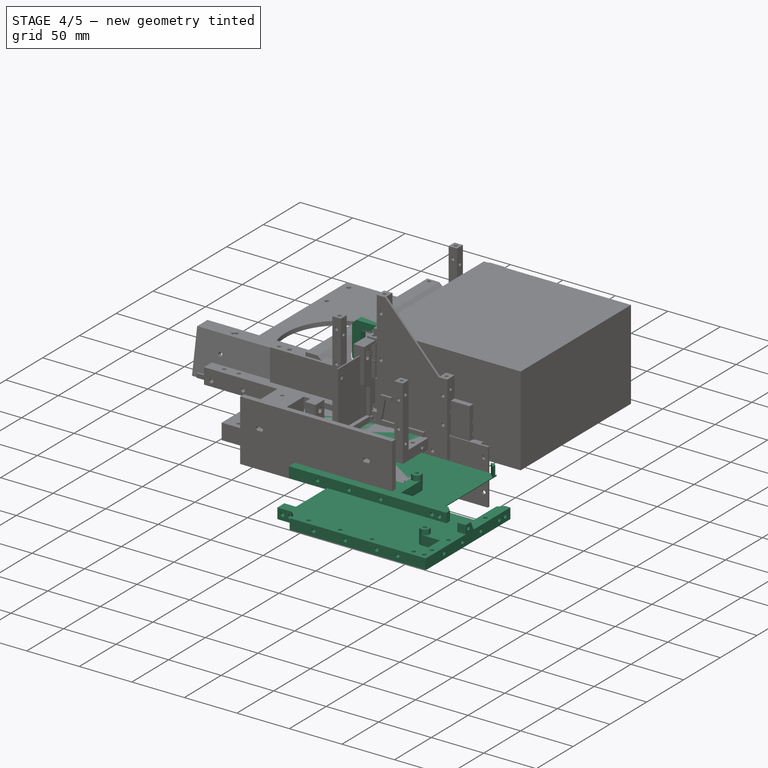
[diagram: stage 4 of 5 — iso view after this stage's code; geometry added in this stage tinted green]
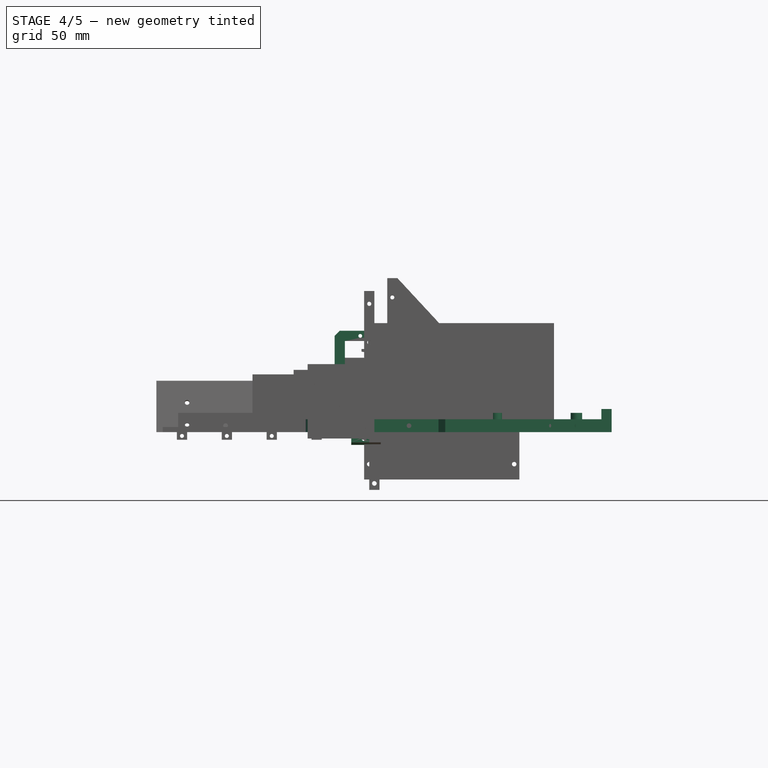
[diagram: stage 4 of 5 — front view after this stage's code; geometry added in this stage tinted green]
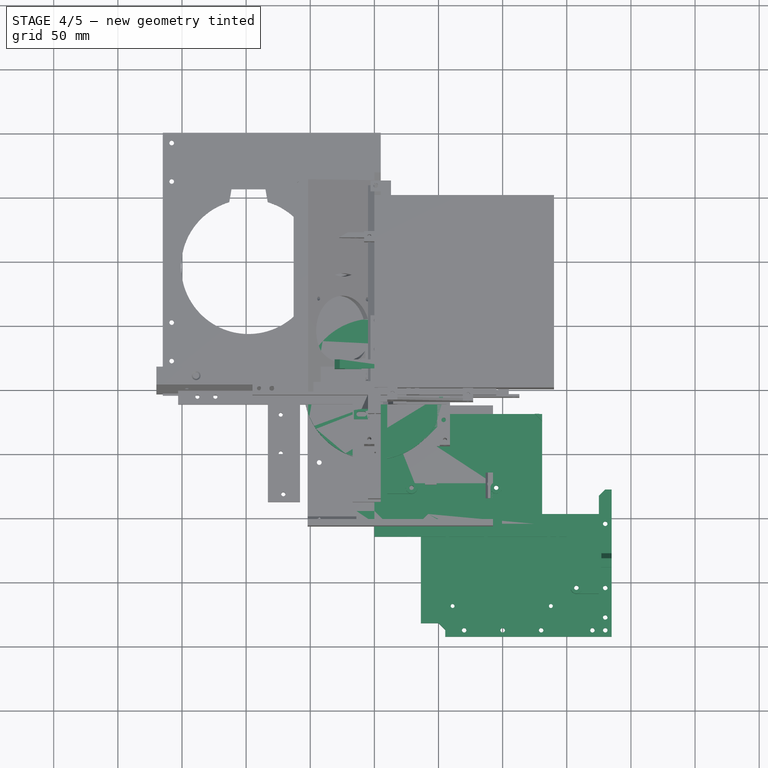
[diagram: stage 4 of 5 — top view after this stage's code; geometry added in this stage tinted green]
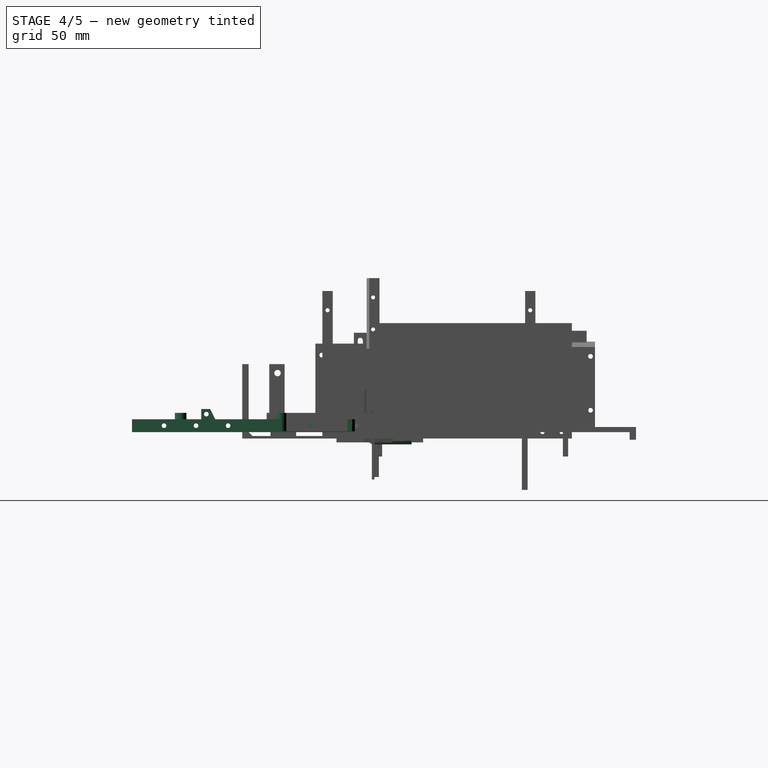
[diagram: stage 4 of 5 — right view after this stage's code; geometry added in this stage tinted green]
FEATURE [Sketcher::SketchObject] Sketch137
  FullyConstrained = false
  MapMode = 5
  Support = -> [XY_Plane029]
  sketch-geometry (21):
    g0: LineSegment StartX=149.75 StartY=-110 StartZ=0 EndX=149.75 EndY=-115 EndZ=0
    g1: LineSegment StartX=149.75 StartY=-115 StartZ=0 EndX=0 EndY=-115 EndZ=0
    g2: LineSegment StartX=90.5 StartY=-105 StartZ=0 EndX=90.5 EndY=-76 EndZ=0
    g3: LineSegment StartX=90.5 StartY=-76 StartZ=0 EndX=95 EndY=-74 EndZ=0
    g4: LineSegment StartX=95 StartY=-74 StartZ=0 EndX=99.5 EndY=-76 EndZ=0
    g5: LineSegment StartX=99.5 StartY=-76 StartZ=0 EndX=99.5 EndY=-105 EndZ=0
    g6: LineSegment StartX=90.5 StartY=-105 StartZ=0 EndX=10 EndY=-105 EndZ=0
    g7: LineSegment StartX=0 StartY=-0.25 StartZ=0 EndX=0 EndY=-95 EndZ=0
    g8: LineSegment StartX=0 StartY=-95 StartZ=0 EndX=-14 EndY=-95 EndZ=0
    g9: LineSegment StartX=-14 StartY=-95 StartZ=0 EndX=-14 EndY=-104.5 EndZ=0
    g10: LineSegment StartX=-14 StartY=-104.5 StartZ=0 EndX=0 EndY=-104.5 EndZ=0
    g11: LineSegment StartX=0 StartY=-104.5 StartZ=0 EndX=0 EndY=-115 EndZ=0
    g12: LineSegment StartX=0 StartY=-0.25 StartZ=0 EndX=5 EndY=-0.25 EndZ=0
    g13: LineSegment StartX=5 StartY=-0.25 StartZ=0 EndX=10 EndY=-5.25 EndZ=0
    g14: LineSegment StartX=99.5 StartY=-105 StartZ=0 EndX=144.75 EndY=-105 EndZ=0
    g15: LineSegment StartX=149.75 StartY=-110 StartZ=0 EndX=144.75 EndY=-105 EndZ=0
    g16: LineSegment StartX=10 StartY=-5.25 StartZ=0 EndX=10 EndY=-72.5 EndZ=0
    g17: LineSegment StartX=10 StartY=-72.5 StartZ=0 EndX=29 EndY=-72.5 EndZ=0
    g18: LineSegment StartX=29 StartY=-72.5 StartZ=0 EndX=29 EndY=-81.5 EndZ=0
    g19: LineSegment StartX=29 StartY=-81.5 StartZ=0 EndX=10 EndY=-81.5 EndZ=0
    g20: LineSegment StartX=10 StartY=-81.5 StartZ=0 EndX=10 EndY=-105 EndZ=0
  constraints (63):
    c: DistanceY(g7,g-1) = 0.25
    c: DistanceX(g7,g13) = 10
    c: PointOnObject(g7,g-2)
    c: Vertical(g0)
    c: Coincident(g0,g1)
    c: PointOnObject(g1,g-2)
    c: Horizontal(g1)
    c: DistanceY(g6,g-1) = 105
    c: DistanceY(g1,g6) = 10
    c: DistanceX(g1,g1) = 149.75
    c: Vertical(g2)
    c: Coincident(g2,g3)
    c: Coincident(g3,g4)
    c: Coincident(g4,g5)
    c: Vertical(g5)
    c: Coincident(g2,g6)
    c: Horizontal(g6)
    c: Equal(g4,g3)
    c: Horizontal(g4,g2)
    c: DistanceX(g2,g5) = 9
    c: DistanceY(g5,g5) = 29
    c: PointOnObject(g7,g-2)
    c: Coincident(g7,g8)
    c: Horizontal(g8)
    c: Coincident(g8,g9)
    c: Vertical(g9)
    c: Coincident(g9,g10)
    c: PointOnObject(g10,g-2)
    c: Horizontal(g10)
    c: Coincident(g10,g11)
    c: Coincident(g11,g1)
    c: DistanceX(g8,g8) = 14
    c: Coincident(g7,g12)
    c: Coincident(g12,g13)
    c: Angle(g12,g13) = 2.35619
    c: Horizontal(g12)
    c: DistanceX(g12,g12) = 5
    c: DistanceY(g4,g3) = 2
    c: Coincident(g14,g5)
    c: Horizontal(g14)
    c: Horizontal(g5,g2)
    c: Coincident(g15,g0)
    c: Coincident(g14,g15)
    c: Angle(g15,g0) = 2.35619
    c: DistanceY(g0,g0) = 5
    c: DistanceY(g11,g11) = 10.5
    c: Coincident(g16,g13)
    c: Vertical(g16)
    c: Coincident(g16,g17)
    c: Horizontal(g17)
    c: Coincident(g17,g18)
    c: Vertical(g18)
    c: Coincident(g18,g19)
    c: Horizontal(g19)
    c: Coincident(g19,g20)
    c: Coincident(g20,g6)
    c: Vertical(g20)
    c: DistanceY(g18,g18) = 9
    c: DistanceY(g20,g20) = 23.5
    c: DistanceX(g17,g17) = 19
    c: DistanceX(g3) = 95
    c: Vertical(g19,g16)
    c: DistanceY(g1,g8) = 20
FEATURE [PartDesign::Pad] Pad073
  AllowMultiFace = false
  Direction = (1,1,1)
  Length = 10
  Length2 = 100
  Profile = -> Sketch137
  Type = 0
FEATURE [Sketcher::SketchObject] Sketch138
  FullyConstrained = false
  MapMode = 5
  Support = -> [XY_Plane029]
  sketch-geometry (2):
    g0: Circle CenterX=95 CenterY=-77 CenterZ=0 NormalX=0 NormalY=0 NormalZ=1 AngleXU=0 Radius=4.5
    g1: Circle CenterX=29 CenterY=-77 CenterZ=0 NormalX=0 NormalY=0 NormalZ=1 AngleXU=0 Radius=4.5
  constraints (6):
    c: Diameter(g0) = 9
    c: DistanceX(g0) = 95
    c: DistanceY(g0) = -77
    c: Diameter(g1) = 9
    c: DistanceX(g1) = 29
    c: DistanceY(g1) = -77
FEATURE [PartDesign::Pad] Pad074
  AllowMultiFace = false
  BaseFeature = -> Pad073
  Direction = (1,1,1)
  Length = 15
  Length2 = 100
  Profile = -> Sketch138
  Type = 0
FEATURE [Sketcher::SketchObject] Sketch139  label="lubang-std-mobo003"
  FullyConstrained = false
  MapMode = 5
  Support = -> [XY_Plane027]
  expr: Constraints[15] = 6.1in - 0.9in
  sketch-geometry (6):
    g0: Circle CenterX=-45.72 CenterY=3.6e-15 CenterZ=0 NormalX=0 NormalY=0 NormalZ=1 AngleXU=0 Radius=1.75
    g1: Circle CenterX=0 CenterY=3.6e-15 CenterZ=0 NormalX=0 NormalY=0 NormalZ=1 AngleXU=0 Radius=1.75
    g2: Circle CenterX=-66.04 CenterY=-154.94 CenterZ=0 NormalX=0 NormalY=0 NormalZ=1 AngleXU=0 Radius=1.75
    g3: Circle CenterX=0 CenterY=-154.94 CenterZ=0 NormalX=0 NormalY=0 NormalZ=1 AngleXU=0 Radius=1.75
    g4: Circle CenterX=157.48 CenterY=-154.94 CenterZ=0 NormalX=0 NormalY=0 NormalZ=1 AngleXU=0 Radius=1.75
    g5: Circle CenterX=157.48 CenterY=-22.86 CenterZ=0 NormalX=0 NormalY=0 NormalZ=1 AngleXU=0 Radius=1.75
  constraints (17):
    c: Equal(g0,g1)
    c: Equal(g1,g2)
    c: Equal(g2,g3)
    c: Equal(g3,g4)
    c: Diameter(g0) = 3.5
    c: DistanceX(g0,g1) = 45.72
    c: Horizontal(g0,g1)
    c: Vertical(g1,g3)
    c: DistanceY(g3,g1) = 154.94
    c: Horizontal(g2,g3)
    c: DistanceX(g2,g3) = 66.04
    c: Equal(g4,g5)
    c: Horizontal(g4,g3)
    c: DistanceX(g0,g4) = 203.2
    c: Vertical(g4,g5)
    c: DistanceY(g4,g5) = 132.08
    c: Coincident(g1,g-1)
FEATURE [Sketcher::SketchObject] Sketch140  label="lubang-std-mobo004"
  AttachmentOffset = pos=(95,78,0) rot=(0,0,1;0rad)
  FullyConstrained = false
  MapMode = 5
  Placement = pos=(95,78,0) rot=(0,0,1;0rad)
  Support = -> [XY_Plane029]
  expr: Constraints[15] = 6.1in - 0.9in
  sketch-geometry (6):
    g0: Circle CenterX=-45.72 CenterY=3.6e-15 CenterZ=0 NormalX=0 NormalY=0 NormalZ=1 AngleXU=0 Radius=1.75
    g1: Circle CenterX=0 CenterY=3.6e-15 CenterZ=0 NormalX=0 NormalY=0 NormalZ=1 AngleXU=0 Radius=1.75
    g2: Circle CenterX=-66.04 CenterY=-154.94 CenterZ=0 NormalX=0 NormalY=0 NormalZ=1 AngleXU=0 Radius=1.75
    g3: Circle CenterX=0 CenterY=-154.94 CenterZ=0 NormalX=0 NormalY=0 NormalZ=1 AngleXU=0 Radius=1.75
    g4: Circle CenterX=157.48 CenterY=-154.94 CenterZ=0 NormalX=0 NormalY=0 NormalZ=1 AngleXU=0 Radius=1.75
    g5: Circle CenterX=157.48 CenterY=-22.86 CenterZ=0 NormalX=0 NormalY=0 NormalZ=1 AngleXU=0 Radius=1.75
  constraints (17):
    c: Equal(g0,g1)
    c: Equal(g1,g2)
    c: Equal(g2,g3)
    c: Equal(g3,g4)
    c: Diameter(g0) = 3.5
    c: DistanceX(g0,g1) = 45.72
    c: Horizontal(g0,g1)
    c: Vertical(g1,g3)
    c: DistanceY(g3,g1) = 154.94
    c: Horizontal(g2,g3)
    c: DistanceX(g2,g3) = 66.04
    c: Equal(g4,g5)
    c: Horizontal(g4,g3)
    c: DistanceX(g0,g4) = 203.2
    c: Vertical(g4,g5)
    c: DistanceY(g4,g5) = 132.08
    c: Coincident(g1,g-1)
FEATURE [Sketcher::SketchObject] Sketch141
  FullyConstrained = false
  MapMode = 5
  Support = -> [XY_Plane030]
  sketch-geometry (16):
    g0: LineSegment StartX=55.25 StartY=-193 StartZ=0 EndX=185 EndY=-193 EndZ=0
    g1: LineSegment StartX=185 StartY=-193 StartZ=0 EndX=185 EndY=-78.25 EndZ=0
    g2: LineSegment StartX=185 StartY=-78.25 StartZ=0 EndX=180 EndY=-78.25 EndZ=0
    g3: LineSegment StartX=180 StartY=-78.25 StartZ=0 EndX=175 EndY=-83.25 EndZ=0
    g4: LineSegment StartX=175 StartY=-183 StartZ=0 EndX=65.25 EndY=-183 EndZ=0
    g5: LineSegment StartX=65.25 StartY=-183 StartZ=0 EndX=55.25 EndY=-173 EndZ=0
    g6: LineSegment StartX=55.25 StartY=-173 StartZ=0 EndX=36.25 EndY=-173 EndZ=0
    g7: LineSegment StartX=36.25 StartY=-173 StartZ=0 EndX=36.25 EndY=-182.5 EndZ=0
    g8: LineSegment StartX=36.25 StartY=-182.5 StartZ=0 EndX=50 EndY=-182.5 EndZ=0
    g9: LineSegment StartX=50 StartY=-182.5 StartZ=0 EndX=55.25 EndY=-187.75 EndZ=0
    g10: LineSegment StartX=55.25 StartY=-187.75 StartZ=0 EndX=55.25 EndY=-193 EndZ=0
    g11: LineSegment StartX=175 StartY=-183 StartZ=0 EndX=175 EndY=-159.5 EndZ=0
    g12: LineSegment StartX=175 StartY=-159.5 StartZ=0 EndX=157 EndY=-159.5 EndZ=0
    g13: LineSegment StartX=157 StartY=-159.5 StartZ=0 EndX=157 EndY=-150.5 EndZ=0
    g14: LineSegment StartX=157 StartY=-150.5 StartZ=0 EndX=175 EndY=-150.5 EndZ=0
    g15: LineSegment StartX=175 StartY=-150.5 StartZ=0 EndX=175 EndY=-83.25 EndZ=0
  constraints (48):
    c: Horizontal(g0)
    c: Coincident(g0,g1)
    c: Vertical(g1)
    c: Coincident(g1,g2)
    c: Horizontal(g2)
    c: Coincident(g2,g3)
    c: Horizontal(g4)
    c: Coincident(g4,g5)
    c: Coincident(g5,g6)
    c: Horizontal(g6)
    c: Coincident(g6,g7)
    c: Vertical(g7)
    c: Coincident(g7,g8)
    c: Horizontal(g8)
    c: Coincident(g8,g9)
    c: Coincident(g9,g10)
    c: Coincident(g10,g0)
    c: Vertical(g10)
    c: Angle(g9,g10) = 2.35619
    c: DistanceX(g2,g2) = 5
    c: Angle(g3,g2) = 2.35619
    c: DistanceX(g0) = 185
    c: DistanceY(g0) = -193
    c: DistanceX(g0,g0) = 129.75
    c: Parallel(g9,g5)
    c: DistanceY(g0,g8) = 10.5
    c: DistanceX(g8,g8) = 13.75
    c: DistanceY(g0,g6) = 20
    c: Vertical(g5,g9)
    c: DistanceY(g10,g10) = 5.25
    c: DistanceY(g1,g1) = 114.75
    c: DistanceX(g4,g0) = 10
    c: Vertical(g3,g4)
    c: Coincident(g4,g11)
    c: Vertical(g11)
    c: Coincident(g11,g12)
    c: Horizontal(g12)
    c: Coincident(g12,g13)
    c: Vertical(g13)
    c: Coincident(g13,g14)
    c: Horizontal(g14)
    c: Coincident(g14,g15)
    c: Coincident(g15,g3)
    c: Vertical(g15)
    c: DistanceY(g13,g13) = 9
    c: DistanceX(g14,g14) = 18
    c: DistanceY(g0,g11) = 33.5
    c: DistanceY(g0,g4) = 10
FEATURE [PartDesign::Pad] Pad075
  AllowMultiFace = false
  Direction = (1,1,1)
  Length = 10
  Length2 = 100
  Profile = -> Sketch141
  Type = 0
FEATURE [Sketcher::SketchObject] Sketch142
  FullyConstrained = false
  MapMode = 5
  Support = -> [XY_Plane030]
  sketch-geometry (1):
    g0: Circle CenterX=157.5 CenterY=-155 CenterZ=0 NormalX=0 NormalY=0 NormalZ=1 AngleXU=0 Radius=4.5
  constraints (3):
    c: DistanceX(g0) = 157.5
    c: DistanceY(g0) = -155
    c: Diameter(g0) = 9
FEATURE [PartDesign::Pad] Pad076
  AllowMultiFace = false
  BaseFeature = -> Pad075
  Direction = (1,1,1)
  Length = 15
  Length2 = 100
  Profile = -> Sketch142
  Type = 0
FEATURE [Sketcher::SketchObject] Sketch153
  FullyConstrained = false
  MapMode = 5
  Support = -> [XY_Plane029]
  sketch-geometry (4):
    g0: LineSegment StartX=10 StartY=-19.25 StartZ=0 EndX=130.75 EndY=-19.25 EndZ=0
    g1: LineSegment StartX=130.75 StartY=-19.25 StartZ=0 EndX=130.75 EndY=-105 EndZ=0
    g2: LineSegment StartX=130.75 StartY=-105 StartZ=0 EndX=10 EndY=-105 EndZ=0
    g3: LineSegment StartX=10 StartY=-105 StartZ=0 EndX=10 EndY=-19.25 EndZ=0
  constraints (12):
    c: Horizontal(g0)
    c: Coincident(g0,g1)
    c: Vertical(g1)
    c: Coincident(g1,g2)
    c: Horizontal(g2)
    c: Coincident(g2,g3)
    c: Coincident(g3,g0)
    c: Vertical(g3)
    c: DistanceX(g2) = 10
    c: DistanceY(g2) = -105
    c: DistanceY(g3,g3) = 85.75
    c: DistanceX(g0,g0) = 120.75
FEATURE [PartDesign::Pad] Pad083  label="alas003"
  AllowMultiFace = false
  BaseFeature = -> Pad074
  Direction = (1,1,1)
  Length = 0.8
  Length2 = 100
  Profile = -> Sketch153
  Type = 0
FEATURE [PartDesign::Pocket] Pocket062
  AllowMultiFace = false
  BaseFeature = -> Pad083
  Length = 5
  Length2 = 100
  Midplane = true
  Profile = -> Sketch140
  Type = 1
FEATURE [Sketcher::SketchObject] Sketch154
  FullyConstrained = false
  MapMode = 5
  Support = -> [XY_Plane029]
  sketch-geometry (6):
    g0: LineSegment StartX=125.093 StartY=-19.25 StartZ=0 EndX=130.75 EndY=-24.9069 EndZ=0
    g1: LineSegment StartX=130.75 StartY=-24.9069 StartZ=0 EndX=130.75 EndY=-19.25 EndZ=0
    g2: LineSegment StartX=130.75 StartY=-19.25 StartZ=0 EndX=125.093 EndY=-19.25 EndZ=0
    g3: LineSegment StartX=125.093 StartY=-19.25 StartZ=0 EndX=128.629 EndY=-19.25 EndZ=0
    g4: LineSegment StartX=128.629 StartY=-19.25 StartZ=0 EndX=130.75 EndY=-21.3713 EndZ=0
    g5: LineSegment StartX=130.75 StartY=-21.3713 StartZ=0 EndX=130.75 EndY=-24.9069 EndZ=0
  constraints (17):
    c: Coincident(g0,g1)
    c: Vertical(g1)
    c: Coincident(g1,g2)
    c: Coincident(g2,g0)
    c: Horizontal(g2)
    c: DistanceY(g1) = -19.25
    c: Equal(g2,g1)
    c: Distance(g0) = 8
    c: Coincident(g0,g3)
    c: PointOnObject(g3,g2)
    c: Coincident(g3,g4)
    c: PointOnObject(g4,g1)
    c: Coincident(g4,g5)
    c: Coincident(g5,g0)
    c: Equal(g5,g3)
    c: Distance(g4) = 3
    c: DistanceX(g1) = 130.75
FEATURE [PartDesign::Pad] Pad084  label="midjoin-pole002"
  AllowMultiFace = false
  BaseFeature = -> Pocket062
  Direction = (1,1,1)
  Length = 10
  Length2 = 100
  Profile = -> Sketch154
  Type = 0
FEATURE [Sketcher::SketchObject] Sketch156
  FullyConstrained = false
  MapMode = 5
  Support = -> [XY_Plane030]
  sketch-geometry (6):
    g0: LineSegment StartX=36.25 StartY=-173 StartZ=0 EndX=36.25 EndY=-97.25 EndZ=0
    g1: LineSegment StartX=36.25 StartY=-97.25 StartZ=0 EndX=175 EndY=-97.25 EndZ=0
    g2: LineSegment StartX=175 StartY=-97.25 StartZ=0 EndX=175 EndY=-183 EndZ=0
    g3: LineSegment StartX=175 StartY=-183 StartZ=0 EndX=65 EndY=-183 EndZ=0
    g4: LineSegment StartX=65 StartY=-183 StartZ=0 EndX=55 EndY=-173 EndZ=0
    g5: LineSegment StartX=55 StartY=-173 StartZ=0 EndX=36.25 EndY=-173 EndZ=0
  constraints (18):
    c: Vertical(g0)
    c: Coincident(g0,g1)
    c: Horizontal(g1)
    c: Coincident(g1,g2)
    c: Vertical(g2)
    c: Coincident(g2,g3)
    c: Horizontal(g3)
    c: Coincident(g3,g4)
    c: Coincident(g4,g5)
    c: Coincident(g5,g0)
    c: Horizontal(g5)
    c: DistanceX(g2) = 175
    c: DistanceY(g2) = -183
    c: DistanceY(g2,g2) = 85.75
    c: DistanceX(g1,g1) = 138.75
    c: DistanceX(g3,g3) = 110
    c: Angle(g3,g4) = 2.35619
    c: DistanceY(g3,g4) = 10
FEATURE [PartDesign::Pad] Pad085  label="alas002"
  AllowMultiFace = false
  BaseFeature = -> Pad076
  Direction = (1,1,1)
  Length = 1
  Length2 = 100
  Profile = -> Sketch156
  Type = 0
FEATURE [PartDesign::Pocket] Pocket064
  AllowMultiFace = false
  BaseFeature = -> Pad085
  Length = 5
  Length2 = 100
  Midplane = true
  Profile = -> Sketch143
  Type = 1
FEATURE [Sketcher::SketchObject] Sketch157
  FullyConstrained = false
  MapMode = 5
  Support = -> [XY_Plane030]
  sketch-geometry (6):
    g0: LineSegment StartX=36.25 StartY=-97.25 StartZ=0 EndX=36.25 EndY=-102.907 EndZ=0
    g1: LineSegment StartX=36.25 StartY=-102.907 StartZ=0 EndX=41.9069 EndY=-97.25 EndZ=0
    g2: LineSegment StartX=41.9069 StartY=-97.25 StartZ=0 EndX=36.25 EndY=-97.25 EndZ=0
    g3: LineSegment StartX=36.25 StartY=-102.907 StartZ=0 EndX=36.25 EndY=-99.3713 EndZ=0
    g4: LineSegment StartX=36.25 StartY=-99.3713 StartZ=0 EndX=38.3713 EndY=-97.25 EndZ=0
    g5: LineSegment StartX=38.3713 StartY=-97.25 StartZ=0 EndX=41.9069 EndY=-97.25 EndZ=0
  constraints (17):
    c: Vertical(g0)
    c: Coincident(g0,g1)
    c: Coincident(g1,g2)
    c: Horizontal(g2)
    c: Coincident(g2,g0)
    c: DistanceY(g0) = -97.25
    c: Equal(g2,g0)
    c: Distance(g1) = 8
    c: PointOnObject(g3,g0)
    c: Coincident(g3,g4)
    c: PointOnObject(g4,g2)
    c: Coincident(g4,g5)
    c: Coincident(g5,g1)
    c: Equal(g5,g3)
    c: Distance(g4) = 3
    c: Coincident(g3,g1)
    c: DistanceX(g0) = 36.25
FEATURE [PartDesign::Pad] Pad086  label="midjoin-pole003"
  AllowMultiFace = false
  BaseFeature = -> Pocket064
  Direction = (1,1,1)
  Length = 10
  Length2 = 100
  Profile = -> Sketch157
  Type = 0
FEATURE [PartDesign::Body] Body003006020  label="motherboard-base-2-b"
  Group = -> [Sketch129,Pad069,Sketch130,Sketch131,Pad070,Sketch148,Pad080,Pocket059,Sketch149,Pad081,Sketch150,Pocket060,Sketch159,Pocket066,Sketch160,Pocket067,Sketch169,Pad090,Sketch170,Pocket074,Sketch171,Sketch172,Pocket075,Pocket076,Sketch173,Pocket077,Sketch174,Pocket078]
  Origin = -> Origin028
  Placement = pos=(158,15,0) rot=(0,0,1;0rad)
  Tip = -> Pocket078
FEATURE [Sketcher::SketchObject] Sketch175
  ExternalGeometry = -> [Pad084]
  FullyConstrained = false
  MapMode = 5
  Placement = pos=(0,0,0) rot=(1,0,0;3.14159rad)
  Support = -> [Pad084]
  sketch-geometry (1):
    g0: Circle CenterX=124.629 CenterY=7 CenterZ=0 NormalX=0 NormalY=0 NormalZ=1 AngleXU=0 Radius=1.3
  constraints (3):
    c: DistanceY(g0) = 7
    c: DistanceX(g0,g-3) = 4
    c: Diameter(g0) = 2.6
FEATURE [PartDesign::Pocket] Pocket079  label="midjoin-hole002"
  AllowMultiFace = false
  BaseFeature = -> Pad084
  Length = 5
  Length2 = 100
  Profile = -> Sketch175
  Type = 1
FEATURE [Sketcher::SketchObject] Sketch176
  AttachmentOffset = pos=(0,0,115) rot=(0,0,1;0rad)
  FullyConstrained = false
  MapMode = 5
  Placement = pos=(0,-115,-2.55e-14) rot=(1,0,0;1.5708rad)
  Support = -> [XZ_Plane029]
  sketch-geometry (8):
    g0: Circle CenterX=-3 CenterY=5 CenterZ=0 NormalX=0 NormalY=0 NormalZ=1 AngleXU=0 Radius=1.8
    g1: Circle CenterX=-11 CenterY=5 CenterZ=0 NormalX=0 NormalY=0 NormalZ=1 AngleXU=0 Radius=1.8
    g2: LineSegment StartX=-11 StartY=5 StartZ=0 EndX=143 EndY=5 EndZ=0
    g3: Circle CenterX=27 CenterY=5 CenterZ=0 NormalX=0 NormalY=0 NormalZ=1 AngleXU=0 Radius=1.8
    g4: Circle CenterX=57 CenterY=5 CenterZ=0 NormalX=0 NormalY=0 NormalZ=1 AngleXU=0 Radius=1.8
    g5: Circle CenterX=87 CenterY=5 CenterZ=0 NormalX=0 NormalY=0 NormalZ=1 AngleXU=0 Radius=1.8
    g6: Circle CenterX=143 CenterY=5 CenterZ=0 NormalX=0 NormalY=0 NormalZ=1 AngleXU=0 Radius=1.8
    g7: Circle CenterX=136 CenterY=5 CenterZ=0 NormalX=0 NormalY=0 NormalZ=1 AngleXU=0 Radius=1.8
  constraints (23):
    c: Coincident(g2,g1)
    c: Horizontal(g2)
    c: PointOnObject(g0,g2)
    c: DistanceY(g0) = 5
    c: DistanceX(g0) = -3
    c: DistanceX(g1,g0) = 8
    c: PointOnObject(g3,g2)
    c: PointOnObject(g4,g2)
    c: PointOnObject(g5,g2)
    c: Coincident(g6,g2)
    c: PointOnObject(g7,g2)
    c: DistanceX(g2,g2) = 154
    c: DistanceX(g7,g6) = 7
    c: Equal(g0,g1)
    c: Equal(g1,g3)
    c: Equal(g3,g4)
    c: Equal(g4,g5)
    c: Equal(g5,g6)
    c: Equal(g6,g7)
    c: DistanceX(g0,g3) = 30
    c: DistanceX(g3,g4) = 30
    c: DistanceX(g4,g5) = 30
    c: Diameter(g5) = 3.6
FEATURE [Sketcher::SketchObject] Sketch177
  AttachmentOffset = pos=(0,0,193) rot=(0,0,1;0rad)
  FullyConstrained = false
  MapMode = 5
  Placement = pos=(0,-193,-4.29e-14) rot=(1,0,0;1.5708rad)
  Support = -> [XZ_Plane030]
  sketch-geometry (7):
    g0: Circle CenterX=48 CenterY=5 CenterZ=0 NormalX=0 NormalY=0 NormalZ=1 AngleXU=0 Radius=1.8
    g1: Circle CenterX=41 CenterY=5 CenterZ=0 NormalX=0 NormalY=0 NormalZ=1 AngleXU=0 Radius=1.8
    g2: LineSegment StartX=41 StartY=5 StartZ=0 EndX=158 EndY=5 EndZ=0
    g3: Circle CenterX=78 CenterY=5 CenterZ=0 NormalX=0 NormalY=0 NormalZ=1 AngleXU=0 Radius=1.8
    g4: Circle CenterX=108 CenterY=5 CenterZ=0 NormalX=0 NormalY=0 NormalZ=1 AngleXU=0 Radius=1.8
    g5: Circle CenterX=138 CenterY=5 CenterZ=0 NormalX=0 NormalY=0 NormalZ=1 AngleXU=0 Radius=1.8
    g6: Circle CenterX=158 CenterY=5 CenterZ=0 NormalX=0 NormalY=0 NormalZ=1 AngleXU=0 Radius=1.8
  constraints (17):
    c: DistanceX(g0) = 48
    c: DistanceY(g0) = 5
    c: DistanceX(g1,g0) = 7
    c: Coincident(g2,g1)
    c: Horizontal(g2)
    c: PointOnObject(g0,g2)
    c: PointOnObject(g3,g2)
    c: PointOnObject(g4,g2)
    c: PointOnObject(g5,g2)
    c: Coincident(g6,g2)
    c: Diameter(g0) = 3.6
    c: Equal(g0,g1)
    c: Equal(g0, g3-g6) x4
    c: DistanceX(g0,g3) = 30
    c: DistanceX(g3,g4) = 30
    c: DistanceX(g4,g5) = 30
    c: DistanceX(g5,g6) = 20
FEATURE [PartDesign::Pocket] Pocket080  label="lubangsamping003"
  AllowMultiFace = false
  BaseFeature = -> Pad086
  Length = 25
  Length2 = 100
  Profile = -> Sketch177
  Type = 0
FEATURE [PartDesign::Pocket] Pocket081  label="lubangsamping002"
  AllowMultiFace = false
  BaseFeature = -> Pocket079
  Length = 25
  Length2 = 100
  Profile = -> Sketch176
  Type = 0
FEATURE [Sketcher::SketchObject] Sketch178
  AttachmentOffset = pos=(0,0,95) rot=(0,0,1;0rad)
  FullyConstrained = false
  MapMode = 5
  Placement = pos=(0,-95,-2.11e-14) rot=(1,0,0;1.5708rad)
  Support = -> [XZ_Plane029]
  sketch-geometry (14):
    g0: LineSegment StartX=-3 StartY=1.65137 StartZ=0 EndX=-0.1 EndY=3.32568 EndZ=0
    g1: LineSegment StartX=-0.1 StartY=3.32568 StartZ=0 EndX=-0.1 EndY=6.67432 EndZ=0
    g2: LineSegment StartX=-0.1 StartY=6.67432 StartZ=0 EndX=-3 EndY=8.34863 EndZ=0
    g3: LineSegment StartX=-3 StartY=8.34863 StartZ=0 EndX=-5.9 EndY=6.67432 EndZ=0
    g4: LineSegment StartX=-5.9 StartY=6.67432 StartZ=0 EndX=-5.9 EndY=3.32568 EndZ=0
    g5: LineSegment StartX=-5.9 StartY=3.32568 StartZ=0 EndX=-3 EndY=1.65137 EndZ=0
    g6: Circle CenterX=-3 CenterY=5 CenterZ=0 NormalX=0 NormalY=0 NormalZ=1 AngleXU=0 Radius=3.34863
    g7: LineSegment StartX=-11 StartY=1.65137 StartZ=0 EndX=-8.1 EndY=3.32568 EndZ=0
    g8: LineSegment StartX=-8.1 StartY=3.32568 StartZ=0 EndX=-8.1 EndY=6.67432 EndZ=0
    g9: LineSegment StartX=-8.1 StartY=6.67432 StartZ=0 EndX=-11 EndY=8.34863 EndZ=0
    g10: LineSegment StartX=-11 StartY=8.34863 StartZ=0 EndX=-13.9 EndY=6.67432 EndZ=0
    g11: LineSegment StartX=-13.9 StartY=6.67432 StartZ=0 EndX=-13.9 EndY=3.32568 EndZ=0
    g12: LineSegment StartX=-13.9 StartY=3.32568 StartZ=0 EndX=-11 EndY=1.65137 EndZ=0
    g13: Circle CenterX=-11 CenterY=5 CenterZ=0 NormalX=0 NormalY=0 NormalZ=1 AngleXU=0 Radius=3.34863
  constraints (34):
    c: Coincident(g0,g1)
    c: Coincident(g1,g2)
    c: Coincident(g2,g3)
    c: Coincident(g3,g4)
    c: Coincident(g4,g5)
    c: Coincident(g5,g0)
    c: Equal(g0, g1-g5) x5
    c: PointOnObject(g0,g6)
    c: PointOnObject(g1,g6)
    c: PointOnObject(g2,g6)
    c: PointOnObject(g3,g6)
    c: PointOnObject(g4,g6)
    c: PointOnObject(g5,g6)
    c: Coincident(g7,g8)
    c: Coincident(g8,g9)
    c: Coincident(g9,g10)
    c: Coincident(g10,g11)
    c: Coincident(g11,g12)
    c: Coincident(g12,g7)
    c: Equal(g7, g8-g12) x5
    c: PointOnObject(g7,g13)
    c: PointOnObject(g8,g13)
    c: PointOnObject(g9,g13)
    c: PointOnObject(g10,g13)
    c: PointOnObject(g11,g13)
    c: PointOnObject(g12,g13)
    c: Vertical(g8)
    c: Vertical(g4)
    c: Equal(g13,g6)
    c: DistanceX(g11,g7) = 5.8
    c: DistanceX(g13,g6) = 8
    c: DistanceY(g6) = 5
    c: Horizontal(g6,g13)
    c: DistanceX(g6) = -3
FEATURE [PartDesign::Pocket] Pocket082  label="hex005"
  AllowMultiFace = false
  BaseFeature = -> Pocket081
  Length = 3
  Length2 = 100
  Profile = -> Sketch178
  Reversed = true
  Type = 0
FEATURE [PartDesign::Body] Body003006021  label="motherboard-base-2-c"
  Group = -> [Sketch137,Pad073,Sketch138,Pad074,Sketch140,Sketch153,Pad083,Pocket062,Sketch154,Pad084,Sketch175,Pocket079,Sketch176,Pocket081,Sketch178,Pocket082,Sketch179,Pocket083,Sketch180,Pocket084,Sketch181,Pocket085]
  Origin = -> Origin029
  Placement = pos=(-95,-78,0) rot=(0,0,1;0rad)
  Tip = -> Pocket085
FEATURE [Sketcher::SketchObject] Sketch182
  AttachmentOffset = pos=(0,0,185) rot=(0,0,1;0rad)
  FullyConstrained = false
  MapMode = 5
  Placement = pos=(185,-4.11e-14,4.11e-14) rot=(0.57735,0.57735,0.57735;2.0944rad)
  Support = -> [YZ_Plane030]
  sketch-geometry (6):
    g0: Circle CenterX=-85 CenterY=5 CenterZ=0 NormalX=0 NormalY=0 NormalZ=1 AngleXU=0 Radius=1.8
    g1: LineSegment StartX=-85 StartY=5 StartZ=0 EndX=-168 EndY=5 EndZ=0
    g2: Circle CenterX=-168 CenterY=5 CenterZ=0 NormalX=0 NormalY=0 NormalZ=1 AngleXU=0 Radius=1.8
    g3: Circle CenterX=-143 CenterY=5 CenterZ=0 NormalX=0 NormalY=0 NormalZ=1 AngleXU=0 Radius=1.8
    g4: Circle CenterX=-93 CenterY=5 CenterZ=0 NormalX=0 NormalY=0 NormalZ=1 AngleXU=0 Radius=1.8
    g5: Circle CenterX=-118 CenterY=5 CenterZ=0 NormalX=0 NormalY=0 NormalZ=1 AngleXU=0 Radius=1.8
  constraints (17):
    c: Coincident(g1,g0)
    c: Horizontal(g1)
    c: Coincident(g2,g1)
    c: PointOnObject(g3,g1)
    c: PointOnObject(g4,g1)
    c: Diameter(g4) = 3.6
    c: DistanceX(g4,g0) = 8
    c: DistanceX(g0) = -85
    c: DistanceY(g0) = 5
    c: PointOnObject(g5,g1)
    c: DistanceX(g5,g4) = 25
    c: DistanceX(g3,g5) = 25
    c: DistanceX(g2,g3) = 25
    c: Equal(g2,g3)
    c: Equal(g3,g4)
    c: Equal(g4,g5)
    c: Equal(g0,g4)
FEATURE [PartDesign::Pocket] Pocket086  label="lubangdepan002"
  AllowMultiFace = false
  BaseFeature = -> Pocket080
  Length = 25
  Length2 = 100
  Profile = -> Sketch182
  Type = 0
FEATURE [Sketcher::SketchObject] Sketch183
  FullyConstrained = false
  MapMode = 5
  Placement = pos=(0,-173,0) rot=(0,0.707107,0.707107;3.14159rad)
  Support = -> [Pocket086]
  sketch-geometry (14):
    g0: LineSegment StartX=-48 StartY=1.65137 StartZ=0 EndX=-45.1 EndY=3.32568 EndZ=0
    g1: LineSegment StartX=-45.1 StartY=3.32568 StartZ=0 EndX=-45.1 EndY=6.67432 EndZ=0
    g2: LineSegment StartX=-45.1 StartY=6.67432 StartZ=0 EndX=-48 EndY=8.34863 EndZ=0
    g3: LineSegment StartX=-48 StartY=8.34863 StartZ=0 EndX=-50.9 EndY=6.67432 EndZ=0
    g4: LineSegment StartX=-50.9 StartY=6.67432 StartZ=0 EndX=-50.9 EndY=3.32568 EndZ=0
    g5: LineSegment StartX=-50.9 StartY=3.32568 StartZ=0 EndX=-48 EndY=1.65137 EndZ=0
    g6: Circle CenterX=-48 CenterY=5 CenterZ=0 NormalX=0 NormalY=0 NormalZ=1 AngleXU=0 Radius=3.34863
    g7: LineSegment StartX=-41 StartY=1.65137 StartZ=0 EndX=-38.1 EndY=3.32568 EndZ=0
    g8: LineSegment StartX=-38.1 StartY=3.32568 StartZ=0 EndX=-38.1 EndY=6.67432 EndZ=0
    g9: LineSegment StartX=-38.1 StartY=6.67432 StartZ=0 EndX=-41 EndY=8.34863 EndZ=0
    g10: LineSegment StartX=-41 StartY=8.34863 StartZ=0 EndX=-43.9 EndY=6.67432 EndZ=0
    g11: LineSegment StartX=-43.9 StartY=6.67432 StartZ=0 EndX=-43.9 EndY=3.32568 EndZ=0
    g12: LineSegment StartX=-43.9 StartY=3.32568 StartZ=0 EndX=-41 EndY=1.65137 EndZ=0
    g13: Circle CenterX=-41 CenterY=5 CenterZ=0 NormalX=0 NormalY=0 NormalZ=1 AngleXU=0 Radius=3.34863
  constraints (34):
    c: Coincident(g0,g1)
    c: Coincident(g1,g2)
    c: Coincident(g2,g3)
    c: Coincident(g3,g4)
    c: Coincident(g4,g5)
    c: Coincident(g5,g0)
    c: Equal(g0, g1-g5) x5
    c: PointOnObject(g0,g6)
    c: PointOnObject(g1,g6)
    c: PointOnObject(g2,g6)
    c: PointOnObject(g3,g6)
    c: PointOnObject(g4,g6)
    c: PointOnObject(g5,g6)
    c: Coincident(g7,g8)
    c: Coincident(g8,g9)
    c: Coincident(g9,g10)
    c: Coincident(g10,g11)
    c: Coincident(g11,g12)
    c: Coincident(g12,g7)
    c: Equal(g7, g8-g12) x5
    c: PointOnObject(g7,g13)
    c: PointOnObject(g8,g13)
    c: PointOnObject(g9,g13)
    c: PointOnObject(g10,g13)
    c: PointOnObject(g11,g13)
    c: PointOnObject(g12,g13)
    c: Equal(g6,g13)
    c: Vertical(g1)
    c: Vertical(g11)
    c: DistanceX(g6,g13) = 7
    c: DistanceX(g3,g1) = 5.8
    c: Horizontal(g13,g6)
    c: DistanceY(g13) = 5
    c: DistanceX(g13) = -41
FEATURE [PartDesign::Pocket] Pocket087  label="hex006"
  AllowMultiFace = false
  BaseFeature = -> Pocket086
  Length = 3
  Length2 = 100
  Profile = -> Sketch183
  Type = 0
FEATURE [Sketcher::SketchObject] Sketch184
  AttachmentOffset = pos=(0,0,10) rot=(0,0,1;0rad)
  FullyConstrained = false
  MapMode = 5
  Placement = pos=(0,0,10) rot=(0,0,1;0rad)
  Support = -> [XY_Plane030]
  sketch-geometry (11):
    g0: Circle CenterX=70 CenterY=-188 CenterZ=0 NormalX=0 NormalY=0 NormalZ=1 AngleXU=0 Radius=1.75
    g1: LineSegment StartX=70 StartY=-188 StartZ=0 EndX=180 EndY=-188 EndZ=0
    g2: LineSegment StartX=180 StartY=-188 StartZ=0 EndX=180 EndY=-105 EndZ=0
    g3: Circle CenterX=100 CenterY=-188 CenterZ=0 NormalX=0 NormalY=0 NormalZ=1 AngleXU=0 Radius=1.75
    g4: Circle CenterX=130 CenterY=-188 CenterZ=0 NormalX=0 NormalY=0 NormalZ=1 AngleXU=0 Radius=1.75
    g5: Circle CenterX=170 CenterY=-188 CenterZ=0 NormalX=0 NormalY=0 NormalZ=1 AngleXU=0 Radius=1.75
    g6: Circle CenterX=180 CenterY=-188 CenterZ=0 NormalX=0 NormalY=0 NormalZ=1 AngleXU=0 Radius=1.75
    g7: Circle CenterX=180 CenterY=-178 CenterZ=0 NormalX=0 NormalY=0 NormalZ=1 AngleXU=0 Radius=1.75
    g8: Circle CenterX=180 CenterY=-155 CenterZ=0 NormalX=0 NormalY=0 NormalZ=1 AngleXU=0 Radius=1.75
    g9: Circle CenterX=180 CenterY=-130 CenterZ=0 NormalX=0 NormalY=0 NormalZ=1 AngleXU=0 Radius=1.75
    g10: Circle CenterX=180 CenterY=-105 CenterZ=0 NormalX=0 NormalY=0 NormalZ=1 AngleXU=0 Radius=1.75
  constraints (24):
    c: Coincident(g1,g0)
    c: Horizontal(g1)
    c: Coincident(g2,g1)
    c: Vertical(g2)
    c: DistanceX(g1) = 180
    c: DistanceY(g1) = -188
    c: PointOnObject(g3,g1)
    c: PointOnObject(g4,g1)
    c: PointOnObject(g5,g1)
    c: Coincident(g6,g1)
    c: PointOnObject(g7,g2)
    c: PointOnObject(g8,g2)
    c: PointOnObject(g9,g2)
    c: Coincident(g10,g2)
    c: DistanceX(g5,g6) = 10
    c: DistanceY(g6,g7) = 10
    c: Diameter(g0) = 3.5
    c: Equal(g0, g3-g10) x8
    c: DistanceY(g7,g8) = 23
    c: DistanceY(g8,g9) = 25
    c: DistanceY(g9,g10) = 25
    c: DistanceX(g4,g5) = 40
    c: DistanceX(g3,g4) = 30
    c: DistanceX(g0,g3) = 30
FEATURE [PartDesign::Pocket] Pocket088  label="lubangatas003"
  AllowMultiFace = false
  BaseFeature = -> Pocket087
  Length = 5
  Length2 = 100
  Profile = -> Sketch184
  Type = 1
FEATURE [Sketcher::SketchObject] Sketch185
  AttachmentOffset = pos=(0,0,1) rot=(0,0,1;0rad)
  FullyConstrained = false
  MapMode = 5
  Placement = pos=(0,0,1) rot=(0,0,1;0rad)
  Support = -> [XY_Plane030]
  sketch-geometry (8):
    g0: Circle CenterX=61 CenterY=-107.28 CenterZ=0 NormalX=0 NormalY=0 NormalZ=1 AngleXU=0 Radius=1.5
    g1: Circle CenterX=137.6 CenterY=-107.28 CenterZ=0 NormalX=0 NormalY=0 NormalZ=1 AngleXU=0 Radius=1.5
    g2: Circle CenterX=137.6 CenterY=-169 CenterZ=0 NormalX=0 NormalY=0 NormalZ=1 AngleXU=0 Radius=1.5
    g3: Circle CenterX=61 CenterY=-169 CenterZ=0 NormalX=0 NormalY=0 NormalZ=1 AngleXU=0 Radius=1.5
    g4: LineSegment StartX=61 StartY=-169 StartZ=0 EndX=137.6 EndY=-169 EndZ=0
    g5: LineSegment StartX=137.6 StartY=-169 StartZ=0 EndX=137.6 EndY=-107.28 EndZ=0
    g6: LineSegment StartX=137.6 StartY=-107.28 StartZ=0 EndX=61 EndY=-107.28 EndZ=0
    g7: LineSegment StartX=61 StartY=-107.28 StartZ=0 EndX=61 EndY=-169 EndZ=0
  constraints (20):
    c: Diameter(g3) = 3
    c: Equal(g3,g2)
    c: Equal(g3,g1)
    c: Equal(g3,g0)
    c: DistanceX(g3,g2) = 76.6
    c: Coincident(g4,g5)
    c: Coincident(g5,g6)
    c: Coincident(g6,g7)
    c: Coincident(g7,g4)
    c: Horizontal(g4)
    c: Horizontal(g6)
    c: Vertical(g5)
    c: Vertical(g7)
    c: Coincident(g4,g3)
    c: Coincident(g5,g1)
    c: Coincident(g2,g4)
    c: Coincident(g0,g6)
    c: DistanceY(g5,g5) = 61.72
    c: DistanceX(g3) = 61
    c: DistanceY(g3) = -169
FEATURE [PartDesign::Pocket] Pocket089  label="lubangssd003"
  AllowMultiFace = false
  BaseFeature = -> Pocket088
  Length = 5
  Length2 = 100
  Midplane = true
  Profile = -> Sketch185
  Type = 1
FEATURE [Sketcher::SketchObject] Sketch187
  AttachmentOffset = pos=(0,0,185) rot=(0,0,1;0rad)
  FullyConstrained = false
  MapMode = 5
  Placement = pos=(185,-4.11e-14,4.11e-14) rot=(0.57735,0.57735,0.57735;2.0944rad)
  Support = -> [YZ_Plane030]
  sketch-geometry (10):
    g0: LineSegment StartX=-72 StartY=10 StartZ=0 EndX=-68 EndY=18 EndZ=0
    g1: LineSegment StartX=-68 StartY=18 StartZ=0 EndX=-61 EndY=18 EndZ=0
    g2: LineSegment StartX=-61 StartY=18 StartZ=0 EndX=-61 EndY=10 EndZ=0
    g3: LineSegment StartX=-61 StartY=10 StartZ=0 EndX=-72 EndY=10 EndZ=0
    g4: Circle CenterX=-65 CenterY=14 CenterZ=0 NormalX=0 NormalY=0 NormalZ=1 AngleXU=0 Radius=1.8
    g5: LineSegment StartX=-139 StartY=10 StartZ=0 EndX=-139 EndY=18 EndZ=0
    g6: LineSegment StartX=-139 StartY=18 StartZ=0 EndX=-132 EndY=18 EndZ=0
    g7: LineSegment StartX=-132 StartY=18 StartZ=0 EndX=-128 EndY=10 EndZ=0
    g8: LineSegment StartX=-128 StartY=10 StartZ=0 EndX=-139 EndY=10 EndZ=0
    g9: Circle CenterX=-135 CenterY=14 CenterZ=0 NormalX=0 NormalY=0 NormalZ=1 AngleXU=0 Radius=1.8
  constraints (30):
    c: Coincident(g0,g1)
    c: Horizontal(g1)
    c: Coincident(g1,g2)
    c: Vertical(g2)
    c: Coincident(g2,g3)
    c: Coincident(g3,g0)
    c: Horizontal(g3)
    c: Diameter(g4) = 3.6
    c: DistanceX(g2) = -61
    c: DistanceY(g2) = 10
    c: DistanceX(g3,g3) = 11
    c: DistanceY(g2,g2) = 8
    c: DistanceX(g1,g1) = 7
    c: DistanceX(g4,g2) = 4
    c: DistanceY(g2,g4) = 4
    c: Vertical(g5)
    c: Coincident(g5,g6)
    c: Horizontal(g6)
    c: Coincident(g6,g7)
    c: Coincident(g7,g8)
    c: Coincident(g8,g5)
    c: Horizontal(g8)
    c: Equal(g3,g8)
    c: Equal(g5,g2)
    c: Equal(g6,g1)
    c: Equal(g9,g4)
    c: Horizontal(g9,g4)
    c: DistanceX(g5,g9) = 4
    c: DistanceX(g9,g4) = 70
    c: Horizontal(g6,g0)
FEATURE [PartDesign::Pad] Pad091  label="exhaustmount001"
  AllowMultiFace = false
  BaseFeature = -> Pocket089
  Direction = (1,1,1)
  Length = 8
  Length2 = 100
  Profile = -> Sketch187
  Reversed = true
  Type = 0
FEATURE [Sketcher::SketchObject] Sketch188
  FullyConstrained = false
  MapMode = 5
  Placement = pos=(177,0,0) rot=(0.57735,-0.57735,-0.57735;2.0944rad)
  Support = -> [Pad091]
  sketch-geometry (7):
    g0: LineSegment StartX=135 StartY=10.6514 StartZ=0 EndX=137.9 EndY=12.3257 EndZ=0
    g1: LineSegment StartX=137.9 StartY=12.3257 StartZ=0 EndX=137.9 EndY=15.6743 EndZ=0
    g2: LineSegment StartX=137.9 StartY=15.6743 StartZ=0 EndX=135 EndY=17.3486 EndZ=0
    g3: LineSegment StartX=135 StartY=17.3486 StartZ=0 EndX=132.1 EndY=15.6743 EndZ=0
    g4: LineSegment StartX=132.1 StartY=15.6743 StartZ=0 EndX=132.1 EndY=12.3257 EndZ=0
    g5: LineSegment StartX=132.1 StartY=12.3257 StartZ=0 EndX=135 EndY=10.6514 EndZ=0
    g6: Circle CenterX=135 CenterY=14 CenterZ=0 NormalX=0 NormalY=0 NormalZ=1 AngleXU=0 Radius=3.34863
  constraints (17):
    c: Coincident(g0,g1)
    c: Coincident(g1,g2)
    c: Coincident(g2,g3)
    c: Coincident(g3,g4)
    c: Coincident(g4,g5)
    c: Coincident(g5,g0)
    c: Equal(g0, g1-g5) x5
    c: PointOnObject(g0,g6)
    c: PointOnObject(g1,g6)
    c: PointOnObject(g2,g6)
    c: PointOnObject(g3,g6)
    c: PointOnObject(g4,g6)
    c: PointOnObject(g5,g6)
    c: Vertical(g4)
    c: DistanceX(g6) = 135
    c: DistanceY(g6) = 14
    c: DistanceX(g4,g0) = 5.8
FEATURE [PartDesign::Pocket] Pocket090  label="hex007"
  AllowMultiFace = false
  BaseFeature = -> Pad091
  Length = 3
  Length2 = 100
  Profile = -> Sketch188
  Type = 0
FEATURE [PartDesign::Body] Body003006022  label="motherboard-base-2-d"
  Group = -> [Sketch141,Pad075,Sketch142,Pad076,Sketch143,Sketch156,Pad085,Pocket064,Sketch157,Pad086,Sketch177,Pocket080,Sketch182,Pocket086,Sketch183,Pocket087,Sketch184,Pocket088,Sketch185,Pocket089,Sketch187,Pad091,Sketch188,Pocket090]
  Origin = -> Origin030
  Tip = -> Pocket090
FEATURE [Sketcher::SketchObject] Sketch189
  FullyConstrained = false
  MapMode = 5
  Placement = pos=(0,0,0) rot=(1,0,0;1.5708rad)
  Support = -> [XZ_Plane035]
  sketch-geometry (4):
    g0: LineSegment StartX=19 StartY=5.25 StartZ=0 EndX=19 EndY=0.25 EndZ=0
    g1: LineSegment StartX=5 StartY=7.25 StartZ=0 EndX=5 EndY=0.25 EndZ=0
    g2: LineSegment StartX=5 StartY=0.25 StartZ=0 EndX=19 EndY=0.25 EndZ=0
    g3: LineSegment StartX=5 StartY=7.25 StartZ=0 EndX=19 EndY=5.25 EndZ=0
  constraints (12):
    c: Vertical(g1)
    c: Coincident(g1,g2)
    c: Coincident(g2,g0)
    c: Horizontal(g2)
    c: DistanceX(g1) = 5
    c: DistanceY(g1) = 0.25
    c: DistanceX(g1,g0) = 14
    c: DistanceY(g0,g0) = 5
    c: Vertical(g0)
    c: Coincident(g3,g1)
    c: Coincident(g3,g0)
    c: DistanceY(g1,g1) = 7
FEATURE [Sketcher::SketchObject] Sketch190
  FullyConstrained = false
  MapMode = 5
  Support = -> [XY_Plane035]
  sketch-geometry (4):
    g0: Circle CenterX=-15 CenterY=0 CenterZ=0 NormalX=0 NormalY=0 NormalZ=1 AngleXU=0 Radius=1.75
    g1: Circle CenterX=0 CenterY=0 CenterZ=0 NormalX=0 NormalY=0 NormalZ=1 AngleXU=0 Radius=1.75
    g2: Circle CenterX=15 CenterY=0 CenterZ=0 NormalX=0 NormalY=0 NormalZ=1 AngleXU=0 Radius=1.75
    g3: Circle CenterX=0 CenterY=17 CenterZ=0 NormalX=0 NormalY=0 NormalZ=1 AngleXU=0 Radius=1.475
  constraints (10):
    c: PointOnObject(g0,g-1)
    c: Coincident(g1,g-1)
    c: Symmetric(g0,g2,g1)
    c: DistanceX(g0,g2) = 30
    c: Diameter(g0) = 3.5
    c: Equal(g0,g2)
    c: Diameter(g1) = 3.5
    c: PointOnObject(g3,g-2)
    c: Diameter(g3) = 2.95
    c: DistanceY(g3) = 17
FEATURE [Sketcher::SketchObject] Sketch191
  AttachmentOffset = pos=(0,0,-17) rot=(0,0,1;0rad)
  FullyConstrained = false
  MapMode = 5
  Placement = pos=(0,17,3.8e-15) rot=(1,0,0;1.5708rad)
  Support = -> [XZ_Plane035]
  sketch-geometry (17):
    g0: LineSegment StartX=-4.5 StartY=7.25 StartZ=0 EndX=4.5 EndY=7.25 EndZ=0
    g1: LineSegment StartX=4.5 StartY=7.25 StartZ=0 EndX=4.5 EndY=49 EndZ=0
    g2: LineSegment StartX=4.5 StartY=49 StartZ=0 EndX=-23 EndY=49 EndZ=0
    g3: LineSegment StartX=-23 StartY=49 StartZ=0 EndX=-23 EndY=71 EndZ=0
    g4: LineSegment StartX=-23 StartY=71 StartZ=0 EndX=24 EndY=71 EndZ=0
    g5: LineSegment StartX=24 StartY=71 StartZ=0 EndX=24 EndY=79 EndZ=0
    g6: LineSegment StartX=24 StartY=79 StartZ=0 EndX=-27 EndY=79 EndZ=0
    g7: LineSegment StartX=-28 StartY=43 StartZ=0 EndX=-4.5 EndY=43 EndZ=0
    g8: LineSegment StartX=-4.5 StartY=43 StartZ=0 EndX=-4.5 EndY=7.25 EndZ=0
    g9: LineSegment StartX=-28 StartY=43 StartZ=0 EndX=-31 EndY=46 EndZ=0
    g10: LineSegment StartX=-31 StartY=46 StartZ=0 EndX=-31 EndY=75 EndZ=0
    g11: LineSegment StartX=-31 StartY=75 StartZ=0 EndX=-27 EndY=79 EndZ=0
    g12: Circle CenterX=-11 CenterY=75 CenterZ=0 NormalX=0 NormalY=0 NormalZ=1 AngleXU=0 Radius=1.475
    g13: Circle CenterX=-1 CenterY=75 CenterZ=0 NormalX=0 NormalY=0 NormalZ=1 AngleXU=0 Radius=1.475
    g14: LineSegment StartX=-11 StartY=75 StartZ=0 EndX=19 EndY=75 EndZ=0
    g15: Circle CenterX=9 CenterY=75 CenterZ=0 NormalX=0 NormalY=0 NormalZ=1 AngleXU=0 Radius=1.475
    g16: Circle CenterX=19 CenterY=75 CenterZ=0 NormalX=0 NormalY=0 NormalZ=1 AngleXU=0 Radius=1.475
  constraints (49):
    c: Coincident(g0,g1)
    c: Vertical(g1)
    c: Coincident(g1,g2)
    c: Horizontal(g2)
    c: Coincident(g2,g3)
    c: Vertical(g3)
    c: Coincident(g3,g4)
    c: Horizontal(g4)
    c: Coincident(g4,g5)
    c: Vertical(g5)
    c: Coincident(g5,g6)
    c: Horizontal(g6)
    c: Horizontal(g7)
    c: Coincident(g7,g8)
    c: Coincident(g8,g0)
    c: Vertical(g8)
    c: Symmetric(g0,g0,g-2)
    c: DistanceY(g0) = 7.25
    c: DistanceY(g7,g2) = 6
    c: DistanceX(g2) = -23
    c: DistanceX(g7,g2) = 5
    c: Coincident(g7,g9)
    c: Coincident(g9,g10)
    c: Vertical(g10)
    c: Coincident(g10,g11)
    c: Coincident(g6,g11)
    c: Angle(g9,g10) = 2.35619
    c: Angle(g10,g11) = 2.35619
    c: DistanceX(g9,g2) = 8
    c: DistanceY(g7,g10) = 32
    c: DistanceY(g3,g10) = 4
    c: DistanceY(g10,g6) = 4
    c: DistanceX(g0,g0) = 9
    c: DistanceY(g7) = 43
    c: DistanceX(g12,g13) = 10
    c: Horizontal(g12,g10)
    c: DistanceX(g10,g12) = 20
    c: Coincident(g14,g12)
    c: Horizontal(g14)
    c: PointOnObject(g13,g14)
    c: PointOnObject(g15,g14)
    c: Coincident(g16,g14)
    c: DistanceX(g13,g15) = 10
    c: DistanceX(g15,g16) = 10
    c: Diameter(g12) = 2.95
    c: Equal(g12,g13)
    c: Equal(g12,g15)
    c: Equal(g12,g16)
    c: DistanceX(g16,g4) = 5
FEATURE [PartDesign::Pad] Pad092  label="tiang"
  AllowMultiFace = false
  Direction = (1,1,1)
  Length = 2
  Length2 = 5
  Midplane = true
  Placement = pos=(0,0,0) rot=(1,0,0;1.5708rad)
  Profile = -> Sketch191
  Type = 4
FEATURE [Sketcher::SketchObject] Sketch192
  FullyConstrained = false
  MapMode = 5
  Placement = pos=(0,0,0) rot=(0.57735,0.57735,0.57735;2.0944rad)
  Support = -> [YZ_Plane035]
  sketch-geometry (7):
    g0: LineSegment StartX=15 StartY=7.25 StartZ=0 EndX=5 EndY=7.25 EndZ=0
    g1: LineSegment StartX=5 StartY=7.25 StartZ=0 EndX=5 EndY=0.25 EndZ=0
    g2: LineSegment StartX=5 StartY=0.25 StartZ=0 EndX=-5 EndY=0.25 EndZ=0
    g3: LineSegment StartX=-5 StartY=0.25 StartZ=0 EndX=-5 EndY=7.25 EndZ=0
    g4: LineSegment StartX=-5 StartY=7.25 StartZ=0 EndX=-1 EndY=11.25 EndZ=0
    g5: LineSegment StartX=15 StartY=15.5372 StartZ=0 EndX=15 EndY=7.25 EndZ=0
    g6: LineSegment StartX=-1 StartY=11.25 StartZ=0 EndX=15 EndY=15.5372 EndZ=0
  constraints (21):
    c: Horizontal(g0)
    c: Coincident(g0,g1)
    c: Vertical(g1)
    c: Coincident(g1,g2)
    c: Horizontal(g2)
    c: Coincident(g2,g3)
    c: Vertical(g3)
    c: Coincident(g3,g4)
    c: Coincident(g5,g0)
    c: Vertical(g5)
    c: DistanceY(g0) = 7.25
    c: DistanceY(g1,g1) = 7
    c: DistanceY(g3,g4) = 4
    c: Angle(g3,g4) = 2.35619
    c: DistanceX(g2,g-1) = 5
    c: Horizontal(g3,g0)
    c: Coincident(g4,g6)
    c: Coincident(g5,g6)
    c: Angle(g4,g6) = 2.61799
    c: DistanceX(g-1,g1) = 5
    c: DistanceX(g0) = 15
FEATURE [PartDesign::Pad] Pad093  label="kaki1"
  AllowMultiFace = false
  BaseFeature = -> Pad092
  Direction = (1,1,1)
  Length = 10
  Length2 = 100
  Midplane = true
  Placement = pos=(0,0,0) rot=(1,0,0;1.5708rad)
  Profile = -> Sketch192
  Type = 0
FEATURE [PartDesign::Pad] Pad094  label="kaki2"
  AllowMultiFace = false
  BaseFeature = -> Pad093
  Direction = (1,1,1)
  Length = 10
  Length2 = 100
  Midplane = true
  Placement = pos=(0,0,0) rot=(1,0,0;1.5708rad)
  Profile = -> Sketch189
  Type = 0
FEATURE [PartDesign::Pocket] Pocket091
  AllowMultiFace = false
  BaseFeature = -> Pad094
  Length = 30
  Length2 = 100
  Placement = pos=(0,0,0) rot=(1,0,0;1.5708rad)
  Profile = -> Sketch190
  Reversed = true
  Type = 0
FEATURE [PartDesign::Body] Body003006027  label="gpumount2"
  Group = -> [Sketch189,Sketch190,Sketch191,Pad092,Sketch192,Pad093,Pad094,Pocket091]
  Origin = -> Origin035
  Placement = pos=(2e-15,17,10) rot=(0,0,1;3.14159rad)
  Tip = -> Pocket091
FEATURE [Sketcher::SketchObject] Sketch193
  FullyConstrained = false
  MapMode = 5
  Placement = pos=(0,0,0) rot=(0.57735,0.57735,0.57735;2.0944rad)
  Support = -> [YZ_Plane036]
  sketch-geometry (8):
    g0: LineSegment StartX=-4 StartY=2.25 StartZ=0 EndX=4 EndY=2.25 EndZ=0
    g1: LineSegment StartX=4 StartY=2.25 StartZ=0 EndX=4 EndY=9 EndZ=0
    g2: LineSegment StartX=-16 StartY=44 StartZ=0 EndX=-24 EndY=44 EndZ=0
    g3: LineSegment StartX=-24 StartY=37.25 StartZ=0 EndX=-4 EndY=6.25 EndZ=0
    g4: LineSegment StartX=-4 StartY=6.25 StartZ=0 EndX=-4 EndY=2.25 EndZ=0
    g5: LineSegment StartX=-16 StartY=44 StartZ=0 EndX=-16 EndY=40 EndZ=0
    g6: LineSegment StartX=-16 StartY=40 StartZ=0 EndX=4 EndY=9 EndZ=0
    g7: LineSegment StartX=-24 StartY=44 StartZ=0 EndX=-24 EndY=37.25 EndZ=0
  constraints (23):
    c: Coincident(g0,g1)
    c: Vertical(g1)
    c: Horizontal(g2)
    c: Coincident(g3,g4)
    c: Coincident(g4,g0)
    c: Vertical(g4)
    c: DistanceY(g2) = 44
    c: DistanceY(g-1,g0) = 2.25
    c: Symmetric(g0,g0,g-2)
    c: DistanceX(g0,g0) = 8
    c: DistanceY(g3,g1) = 2.75
    c: Coincident(g5,g2)
    c: Coincident(g5,g6)
    c: Coincident(g1,g6)
    c: Vertical(g5)
    c: DistanceX(g5,g1) = 20
    c: DistanceX(g2,g2) = 8
    c: Coincident(g2,g7)
    c: Coincident(g7,g3)
    c: Vertical(g7)
    c: DistanceY(g5,g2) = 4
    c: Equal(g7,g1)
    c: Equal(g4,g5)
FEATURE [PartDesign::Pad] Pad095
  AllowMultiFace = false
  Direction = (1,1,1)
  Length = 4
  Length2 = 16
  Placement = pos=(0,0,0) rot=(0.57735,0.57735,0.57735;2.0944rad)
  Profile = -> Sketch193
  Type = 4
FEATURE [Sketcher::SketchObject] Sketch194
  AttachmentOffset = pos=(0,0,45) rot=(0,0,1;0rad)
  FullyConstrained = false
  MapMode = 5
  Placement = pos=(0,0,45) rot=(0,0,1;0rad)
  Support = -> [XY_Plane036]
  sketch-geometry (15):
    g0: LineSegment StartX=-4.02492 StartY=-2.01246 StartZ=0 EndX=-10 EndY=-16 EndZ=0
    g1: LineSegment StartX=4 StartY=-2 StartZ=0 EndX=-5 EndY=-24 EndZ=0
    g2: LineSegment StartX=-5 StartY=-24 StartZ=0 EndX=5 EndY=-25 EndZ=0
    g3: LineSegment StartX=5 StartY=-25 StartZ=0 EndX=4 EndY=-2 EndZ=0
    g4: Circle CenterX=0 CenterY=0 CenterZ=0 NormalX=0 NormalY=0 NormalZ=1 AngleXU=0 Radius=1.9
    g5: ArcOfCircle CenterX=-12 CenterY=-20 CenterZ=0 NormalX=0 NormalY=0 NormalZ=1 AngleXU=0 Radius=2 StartAngle=1.5708 EndAngle=4.71239
    g6: ArcOfCircle CenterX=-8 CenterY=-20 CenterZ=0 NormalX=0 NormalY=0 NormalZ=1 AngleXU=0 Radius=2 StartAngle=4.71239 EndAngle=7.85398
    g7: LineSegment StartX=-12 StartY=-22 StartZ=0 EndX=-8 EndY=-22 EndZ=0
    g8: LineSegment StartX=-12 StartY=-18 StartZ=0 EndX=-8 EndY=-18 EndZ=0
    g9: Circle CenterX=0 CenterY=0 CenterZ=0 NormalX=0 NormalY=0 NormalZ=1 AngleXU=0 Radius=4.5
    g10: ArcOfCircle CenterX=0 CenterY=0 CenterZ=0 NormalX=0 NormalY=0 NormalZ=1 AngleXU=0 Radius=4.5 StartAngle=0.258009 EndAngle=3.60524
    g11: LineSegment StartX=-10 StartY=-16 StartZ=0 EndX=-16 EndY=-17 EndZ=0
    g12: LineSegment StartX=-16 StartY=-17 StartZ=0 EndX=-16 EndY=14.6702 EndZ=0
    g13: LineSegment StartX=4.35105 StartY=1.1482 StartZ=0 EndX=9 EndY=15 EndZ=0
    g14: LineSegment StartX=9 StartY=15 StartZ=0 EndX=-16 EndY=14.6702 EndZ=0
  constraints (25):
    c: Coincident(g1,g2)
    c: Coincident(g2,g3)
    c: Coincident(g3,g1)
    c: Coincident(g4,g-1)
    c: Diameter(g4) = 3.8
    c: Tangent(g5,g8) = 1.5708
    c: Tangent(g5,g7) = -1.5708
    c: Tangent(g7,g6) = -1.5708
    c: Tangent(g8,g6) = 1.5708
    c: Horizontal(g7)
    c: Equal(g5,g6)
    c: Diameter(g6) = 4
    c: DistanceX(g5) = -12
    c: DistanceY(g5) = -20
    c: DistanceX(g7,g7) = 4
    c: Coincident(g9,g4)
    c: Diameter(g9) = 9
    c: Coincident(g10,g4)
    c: Coincident(g0,g10)
    c: Coincident(g0,g11)
    c: Coincident(g11,g12)
    c: PointOnObject(g10,g9)
    c: Coincident(g10,g13)
    c: Coincident(g13,g14)
    c: Coincident(g14,g12)
FEATURE [PartDesign::Pocket] Pocket092
  AllowMultiFace = false
  BaseFeature = -> Pad095
  Length = 5
  Length2 = 100
  Placement = pos=(0,0,0) rot=(0.57735,0.57735,0.57735;2.0944rad)
  Profile = -> Sketch194
  Type = 1
FEATURE [PartDesign::Body] Body003006028  label="gpumount3"
  Group = -> [Sketch193,Pad095,Sketch194,Pocket092]
  Origin = -> Origin036
  Placement = pos=(0,-155,15) rot=(0,0,1;3.14159rad)
  Tip = -> Pocket092
FEATURE [Sketcher::SketchObject] Sketch195
  FullyConstrained = false
  MapMode = 5
  Support = -> [XY_Plane037]
  sketch-geometry (6):
    g0: LineSegment StartX=-18 StartY=5 StartZ=0 EndX=-18 EndY=-5 EndZ=0
    g1: LineSegment StartX=-18 StartY=-5 StartZ=0 EndX=5 EndY=-5 EndZ=0
    g2: LineSegment StartX=5 StartY=-5 StartZ=0 EndX=5 EndY=18 EndZ=0
    g3: LineSegment StartX=5 StartY=18 StartZ=0 EndX=-4 EndY=18 EndZ=0
    g4: LineSegment StartX=-4 StartY=18 StartZ=0 EndX=-4 EndY=5 EndZ=0
    g5: LineSegment StartX=-4 StartY=5 StartZ=0 EndX=-18 EndY=5 EndZ=0
  constraints (18):
    c: Vertical(g0)
    c: Coincident(g0,g1)
    c: Horizontal(g1)
    c: Coincident(g1,g2)
    c: Vertical(g2)
    c: Coincident(g2,g3)
    c: Horizontal(g3)
    c: Coincident(g3,g4)
    c: Vertical(g4)
    c: Coincident(g4,g5)
    c: Coincident(g5,g0)
    c: Horizontal(g5)
    c: DistanceX(g1) = 5
    c: DistanceY(g1) = -5
    c: DistanceY(g2,g2) = 23
    c: DistanceX(g3,g3) = 9
    c: DistanceX(g1,g1) = 23
    c: DistanceY(g0,g0) = 10
FEATURE [PartDesign::Pad] Pad096  label="alas004"
  AllowMultiFace = false
  Direction = (1,1,1)
  Length = 3
  Length2 = 100
  Profile = -> Sketch195
  Type = 0
FEATURE [Sketcher::SketchObject] Sketch196
  FullyConstrained = false
  MapMode = 5
  Placement = pos=(0,0,0) rot=(0.57735,0.57735,0.57735;2.0944rad)
  Support = -> [YZ_Plane037]
  sketch-geometry (7):
    g0: LineSegment StartX=5 StartY=3 StartZ=0 EndX=3 EndY=6 EndZ=0
    g1: LineSegment StartX=3 StartY=6 StartZ=0 EndX=-6 EndY=6 EndZ=0
    g2: LineSegment StartX=-5.25 StartY=3 StartZ=0 EndX=5 EndY=3 EndZ=0
    g3: LineSegment StartX=-5.25 StartY=3 StartZ=0 EndX=-5.25 EndY=-10 EndZ=0
    g4: LineSegment StartX=-5.25 StartY=-10 StartZ=0 EndX=-8 EndY=-8 EndZ=0
    g5: LineSegment StartX=-8 StartY=-8 StartZ=0 EndX=-8 EndY=3 EndZ=0
    g6: LineSegment StartX=-8 StartY=3 StartZ=0 EndX=-6 EndY=6 EndZ=0
  constraints (16):
    c: Coincident(g0,g1)
    c: Horizontal(g1)
    c: Coincident(g2,g0)
    c: Horizontal(g2)
    c: DistanceX(g1,g1) = 9
    c: DistanceY(g2,g1) = 3
    c: Coincident(g2,g3)
    c: Vertical(g3)
    c: Coincident(g3,g4)
    c: Coincident(g4,g5)
    c: Vertical(g5)
    c: Coincident(g5,g6)
    c: Coincident(g6,g1)
    c: DistanceX(g2,g2) = 10.25
    c: DistanceX(g0) = 5
    c: DistanceY(g0) = 3
FEATURE [PartDesign::Pad] Pad097  label="alas005"
  AllowMultiFace = false
  BaseFeature = -> Pad096
  Direction = (1,1,1)
  Length = 5
  Length2 = 18
  Profile = -> Sketch196
  Type = 4
FEATURE [Sketcher::SketchObject] Sketch197
  FullyConstrained = false
  MapMode = 5
  Placement = pos=(0,0,0) rot=(0.57735,0.57735,0.57735;2.0944rad)
  Support = -> [YZ_Plane037]
  sketch-geometry (8):
    g0: LineSegment StartX=-5 StartY=0 StartZ=0 EndX=5 EndY=-3e-16 EndZ=0
    g1: LineSegment StartX=5 StartY=-3e-16 StartZ=0 EndX=5 EndY=60 EndZ=0
    g2: LineSegment StartX=5 StartY=60 StartZ=0 EndX=-5 EndY=60 EndZ=0
    g3: LineSegment StartX=-5 StartY=60 StartZ=0 EndX=-5 EndY=0 EndZ=0
    g4: Circle CenterX=0 CenterY=15 CenterZ=0 NormalX=0 NormalY=0 NormalZ=1 AngleXU=0 Radius=1.85
    g5: Circle CenterX=0 CenterY=35 CenterZ=0 NormalX=0 NormalY=0 NormalZ=1 AngleXU=0 Radius=1.85
    g6: Circle CenterX=0 CenterY=55 CenterZ=0 NormalX=0 NormalY=0 NormalZ=1 AngleXU=0 Radius=1.85
    g7: Circle CenterX=0 CenterY=75 CenterZ=0 NormalX=0 NormalY=0 NormalZ=1 AngleXU=0 Radius=1.85
  constraints (23):
    c: PointOnObject(g0,g-1)
    c: Coincident(g0,g1)
    c: Vertical(g1)
    c: Coincident(g1,g2)
    c: Horizontal(g2)
    c: Coincident(g2,g3)
    c: Coincident(g3,g0)
    c: Vertical(g3)
    c: DistanceY(g3,g3) = 60
    c: Symmetric(g0,g0,g-2)
    c: DistanceX(g2,g2) = 10
    c: PointOnObject(g4,g-2)
    c: PointOnObject(g5,g-2)
    c: PointOnObject(g7,g-2)
    c: Diameter(g4) = 3.7
    c: Equal(g4,g5)
    c: Equal(g4,g6)
    c: Equal(g4,g7)
    c: PointOnObject(g6,g-2)
    c: DistanceY(g4) = 15
    c: DistanceY(g4,g5) = 20
    c: DistanceY(g5,g6) = 20
    c: DistanceY(g6,g7) = 20
FEATURE [PartDesign::Pad] Pad098  label="tiang002"
  AllowMultiFace = false
  BaseFeature = -> Pad097
  Direction = (1,1,1)
  Length = 10
  Length2 = 100
  Midplane = true
  Profile = -> Sketch197
  Type = 0
FEATURE [Sketcher::SketchObject] Sketch198
  AttachmentOffset = pos=(0,0,6) rot=(0,0,1;0rad)
  FullyConstrained = false
  MapMode = 5
  Placement = pos=(0,-6,-1.3e-15) rot=(1,0,0;1.5708rad)
  Support = -> [XZ_Plane037]
  sketch-geometry (5):
    g0: Circle CenterX=-8 CenterY=-5 CenterZ=0 NormalX=0 NormalY=0 NormalZ=1 AngleXU=0 Radius=2
    g1: Circle CenterX=0 CenterY=10 CenterZ=0 NormalX=0 NormalY=0 NormalZ=1 AngleXU=0 Radius=1.85
    g2: Circle CenterX=0 CenterY=30 CenterZ=0 NormalX=0 NormalY=0 NormalZ=1 AngleXU=0 Radius=1.85
    g3: Circle CenterX=0 CenterY=50 CenterZ=0 NormalX=0 NormalY=0 NormalZ=1 AngleXU=0 Radius=1.85
    g4: Circle CenterX=0 CenterY=70 CenterZ=0 NormalX=0 NormalY=0 NormalZ=1 AngleXU=0 Radius=1.85
  constraints (15):
    c: PointOnObject(g1,g-2)
    c: PointOnObject(g2,g-2)
    c: PointOnObject(g3,g-2)
    c: PointOnObject(g4,g-2)
    c: DistanceX(g0) = -8
    c: DistanceY(g0) = -5
    c: Diameter(g1) = 3.7
    c: Equal(g1,g2)
    c: Equal(g2,g3)
    c: Equal(g3,g4)
    c: DistanceY(g-1,g1) = 10
    c: DistanceY(g1,g2) = 20
    c: DistanceY(g2,g3) = 20
    c: DistanceY(g3,g4) = 20
    c: Diameter(g0) = 4
FEATURE [PartDesign::Pocket] Pocket093  label="lubangdpn"
  AllowMultiFace = false
  BaseFeature = -> Pad098
  Length = 5
  Length2 = 100
  Midplane = true
  Profile = -> Sketch198
  Type = 1
FEATURE [Sketcher::SketchObject] Sketch199
  FullyConstrained = false
  MapMode = 5
  Support = -> [XY_Plane037]
  sketch-geometry (3):
    g0: Circle CenterX=0 CenterY=0 CenterZ=0 NormalX=0 NormalY=0 NormalZ=1 AngleXU=0 Radius=1.55
    g1: Circle CenterX=0 CenterY=14 CenterZ=0 NormalX=0 NormalY=0 NormalZ=1 AngleXU=0 Radius=1.55
    g2: Circle CenterX=-14 CenterY=0 CenterZ=0 NormalX=0 NormalY=0 NormalZ=1 AngleXU=0 Radius=1.8
  constraints (8):
    c: Coincident(g0,g-1)
    c: PointOnObject(g1,g-2)
    c: DistanceY(g0,g1) = 14
    c: Diameter(g1) = 3.1
    c: Equal(g1,g0)
    c: PointOnObject(g2,g-1)
    c: DistanceX(g2) = -14
    c: Diameter(g2) = 3.6
FEATURE [PartDesign::Pocket] Pocket094  label="lubangbawah"
  AllowMultiFace = false
  BaseFeature = -> Pocket093
  Length = 5
  Length2 = 20
  Profile = -> Sketch199
  Type = 4
FEATURE [Sketcher::SketchObject] Sketch200
  AttachmentOffset = pos=(0,0,60) rot=(0,0,1;0rad)
  FullyConstrained = false
  MapMode = 5
  Placement = pos=(0,0,60) rot=(0,0,1;0rad)
  Support = -> [XY_Plane037]
  sketch-geometry (1):
    g0: Circle CenterX=0 CenterY=0 CenterZ=0 NormalX=0 NormalY=0 NormalZ=1 AngleXU=0 Radius=1.55
  constraints (2):
    c: Coincident(g0,g-1)
    c: Diameter(g0) = 3.1
FEATURE [PartDesign::Pocket] Pocket095  label="lubangatas004"
  AllowMultiFace = false
  BaseFeature = -> Pocket094
  Length = 14
  Length2 = 100
  Profile = -> Sketch200
  Type = 0
FEATURE [PartDesign::Body] Body003006029  label="tiangb"
  Group = -> [Sketch195,Pad096,Sketch196,Pad097,Sketch197,Pad098,Sketch198,Pocket093,Sketch199,Pocket094,Sketch200,Pocket095]
  Origin = -> Origin037
  Placement = pos=(180,17,10) rot=(0,0,1;1.5708rad)
  Tip = -> Pocket095
FEATURE [Sketcher::SketchObject] Sketch201
  FullyConstrained = false
  MapMode = 5
  Support = -> [XY_Plane038]
  sketch-geometry (1):
    g0: Circle CenterX=0 CenterY=0 CenterZ=0 NormalX=0 NormalY=0 NormalZ=1 AngleXU=0 Radius=55
  constraints (2):
    c: Coincident(g0,g-1)
    c: Diameter(g0) = 110
FEATURE [PartDesign::Pad] Pad099
  AllowMultiFace = false
  Direction = (1,1,1)
  Length = 10
  Length2 = 100
  Profile = -> Sketch201
  Type = 0
FEATURE [PartDesign::Body] Body003006030  label="procie"
  Group = -> [Sketch201,Pad099]
  Origin = -> Origin038
  Placement = pos=(81,-89,26) rot=(0,0,1;0rad)
  Tip = -> Pad099
FEATURE [Sketcher::SketchObject] Sketch203
  FullyConstrained = false
  MapMode = 5
  Support = -> [XY_Plane039]
  sketch-geometry (6):
    g0: LineSegment StartX=-15 StartY=5 StartZ=0 EndX=-15 EndY=-5 EndZ=0
    g1: LineSegment StartX=-15 StartY=-5 StartZ=0 EndX=5 EndY=-5 EndZ=0
    g2: LineSegment StartX=5 StartY=-5 StartZ=0 EndX=5 EndY=25 EndZ=0
    g3: LineSegment StartX=5 StartY=25 StartZ=0 EndX=-5 EndY=25 EndZ=0
    g4: LineSegment StartX=-5 StartY=25 StartZ=0 EndX=-5 EndY=5 EndZ=0
    g5: LineSegment StartX=-5 StartY=5 StartZ=0 EndX=-15 EndY=5 EndZ=0
  constraints (18):
    c: Vertical(g0)
    c: Coincident(g0,g1)
    c: Horizontal(g1)
    c: Coincident(g1,g2)
    c: Vertical(g2)
    c: Coincident(g2,g3)
    c: Horizontal(g3)
    c: Coincident(g3,g4)
    c: Vertical(g4)
    c: Coincident(g4,g5)
    c: Coincident(g5,g0)
    c: Horizontal(g5)
    c: DistanceX(g1) = 5
    c: DistanceY(g1) = -5
    c: DistanceY(g2,g2) = 30
    c: DistanceX(g3,g3) = 10
    c: DistanceX(g1,g1) = 20
    c: DistanceY(g0,g0) = 10
FEATURE [Sketcher::SketchObject] Sketch204
  FullyConstrained = false
  MapMode = 5
  Placement = pos=(0,0,0) rot=(1,0,0;1.5708rad)
  Support = -> [XZ_Plane039]
  sketch-geometry (4):
    g0: Circle CenterX=-8 CenterY=-5 CenterZ=0 NormalX=0 NormalY=0 NormalZ=1 AngleXU=0 Radius=1.85
    g1: Circle CenterX=0 CenterY=10 CenterZ=0 NormalX=0 NormalY=0 NormalZ=1 AngleXU=0 Radius=1.85
    g2: Circle CenterX=0 CenterY=30 CenterZ=0 NormalX=0 NormalY=0 NormalZ=1 AngleXU=0 Radius=1.85
    g3: Circle CenterX=0 CenterY=50 CenterZ=0 NormalX=0 NormalY=0 NormalZ=1 AngleXU=0 Radius=1.85
  constraints (12):
    c: PointOnObject(g1,g-2)
    c: PointOnObject(g2,g-2)
    c: PointOnObject(g3,g-2)
    c: DistanceX(g0) = -8
    c: DistanceY(g0) = -5
    c: Diameter(g1) = 3.7
    c: Equal(g0,g1)
    c: Equal(g1,g2)
    c: Equal(g2,g3)
    c: DistanceY(g-1,g1) = 10
    c: DistanceY(g1,g2) = 20
    c: DistanceY(g2,g3) = 20
FEATURE [Sketcher::SketchObject] Sketch205
  FullyConstrained = false
  MapMode = 5
  Support = -> [XY_Plane039]
  sketch-geometry (3):
    g0: Circle CenterX=0 CenterY=0 CenterZ=0 NormalX=0 NormalY=0 NormalZ=1 AngleXU=0 Radius=1.55
    g1: Circle CenterX=0 CenterY=10 CenterZ=0 NormalX=0 NormalY=0 NormalZ=1 AngleXU=0 Radius=1.85
    g2: Circle CenterX=-10 CenterY=0 CenterZ=0 NormalX=0 NormalY=0 NormalZ=1 AngleXU=0 Radius=1.85
  constraints (8):
    c: Coincident(g0,g-1)
    c: PointOnObject(g1,g-2)
    c: DistanceY(g0,g1) = 10
    c: Diameter(g1) = 3.7
    c: PointOnObject(g2,g-1)
    c: DistanceX(g2) = -10
    c: Diameter(g2) = 3.7
    c: Diameter(g0) = 3.1
FEATURE [Sketcher::SketchObject] Sketch206
  AttachmentOffset = pos=(0,0,60) rot=(0,0,1;0rad)
  FullyConstrained = false
  MapMode = 5
  Placement = pos=(0,0,60) rot=(0,0,1;0rad)
  Support = -> [XY_Plane039]
  sketch-geometry (1):
    g0: Circle CenterX=0 CenterY=0 CenterZ=0 NormalX=0 NormalY=0 NormalZ=1 AngleXU=0 Radius=1.55
  constraints (2):
    c: Coincident(g0,g-1)
    c: Diameter(g0) = 3.1
FEATURE [Sketcher::SketchObject] Sketch207
  FullyConstrained = false
  MapMode = 5
  Placement = pos=(0,0,0) rot=(0.57735,0.57735,0.57735;2.0944rad)
  Support = -> [YZ_Plane039]
  sketch-geometry (7):
    g0: LineSegment StartX=5 StartY=0.25 StartZ=0 EndX=5 EndY=60 EndZ=0
    g1: LineSegment StartX=-5 StartY=60 StartZ=0 EndX=-5 EndY=0.25 EndZ=0
    g2: Circle CenterX=0 CenterY=15 CenterZ=0 NormalX=0 NormalY=0 NormalZ=1 AngleXU=0 Radius=1.85
    g3: Circle CenterX=0 CenterY=35 CenterZ=0 NormalX=0 NormalY=0 NormalZ=1 AngleXU=0 Radius=1.85
    g4: Circle CenterX=0 CenterY=55 CenterZ=0 NormalX=0 NormalY=0 NormalZ=1 AngleXU=0 Radius=1.85
    g5: LineSegment StartX=5 StartY=0.25 StartZ=0 EndX=-5 EndY=0.25 EndZ=0
    g6: LineSegment StartX=-5 StartY=60 StartZ=0 EndX=5 EndY=60 EndZ=0
  constraints (21):
    c: Vertical(g0)
    c: Vertical(g1)
    c: PointOnObject(g2,g-2)
    c: PointOnObject(g3,g-2)
    c: Diameter(g2) = 3.7
    c: Equal(g2,g3)
    c: Equal(g2,g4)
    c: PointOnObject(g4,g-2)
    c: DistanceY(g2) = 15
    c: DistanceY(g2,g3) = 20
    c: DistanceY(g3,g4) = 20
    c: DistanceX(g1,g-1) = 5
    c: DistanceX(g-1,g0) = 5
    c: Coincident(g0,g5)
    c: Horizontal(g5)
    c: DistanceY(g0) = 0.25
    c: DistanceY(g0) = 60
    c: Coincident(g6,g1)
    c: Coincident(g6,g0)
    c: Horizontal(g6)
    c: Coincident(g5,g1)
FEATURE [PartDesign::Pad] Pad101  label="alas007"
  AllowMultiFace = false
  Direction = (1,1,1)
  Length = 6
  Length2 = 100
  Profile = -> Sketch203
  Type = 0
FEATURE [PartDesign::Pad] Pad102  label="tiang003"
  AllowMultiFace = false
  BaseFeature = -> Pad101
  Direction = (1,1,1)
  Length = 10
  Length2 = 100
  Midplane = true
  Profile = -> Sketch207
  Type = 0
FEATURE [PartDesign::Pocket] Pocket097  label="lubangdpn001"
  AllowMultiFace = false
  BaseFeature = -> Pad102
  Length = 5
  Length2 = 100
  Midplane = true
  Profile = -> Sketch204
  Type = 1
FEATURE [PartDesign::Pocket] Pocket096  label="lubangbawah001"
  AllowMultiFace = false
  BaseFeature = -> Pocket097
  Length = 5
  Length2 = 20
  Profile = -> Sketch205
  Type = 4
FEATURE [PartDesign::Pocket] Pocket098  label="lubangatas005"
  AllowMultiFace = false
  BaseFeature = -> Pocket096
  Length = 14
  Length2 = 100
  Profile = -> Sketch206
  Type = 0
FEATURE [Sketcher::SketchObject] Sketch208
  FullyConstrained = false
  MapMode = 5
  Placement = pos=(0,0,0) rot=(1,0,0;1.5708rad)
  Support = -> [XZ_Plane039]
  sketch-geometry (7):
    g0: LineSegment StartX=4 StartY=0 StartZ=0 EndX=5.65623 EndY=0 EndZ=0
    g1: LineSegment StartX=5.65623 StartY=0 StartZ=0 EndX=5.65623 EndY=-9.58195 EndZ=0
    g2: LineSegment StartX=5.65623 StartY=-9.58195 StartZ=0 EndX=9 EndY=-7 EndZ=0
    g3: LineSegment StartX=9 StartY=-7 StartZ=0 EndX=9 EndY=2 EndZ=0
    g4: LineSegment StartX=9 StartY=2 StartZ=0 EndX=5 EndY=6 EndZ=0
    g5: LineSegment StartX=5 StartY=6 StartZ=0 EndX=4 EndY=6 EndZ=0
    g6: LineSegment StartX=4 StartY=6 StartZ=0 EndX=4 EndY=0 EndZ=0
  constraints (13):
    c: PointOnObject(g0,g-1)
    c: Horizontal(g0)
    c: Coincident(g0,g1)
    c: Vertical(g1)
    c: Coincident(g1,g2)
    c: Coincident(g2,g3)
    c: Vertical(g3)
    c: Coincident(g3,g4)
    c: Coincident(g4,g5)
    c: Horizontal(g5)
    c: Coincident(g5,g6)
    c: Coincident(g6,g0)
    c: Vertical(g6)
FEATURE [PartDesign::Pad] Pad103  label="alas008"
  AllowMultiFace = false
  BaseFeature = -> Pocket098
  Direction = (1,1,1)
  Length = 5
  Length2 = 25
  Profile = -> Sketch208
  Type = 4
FEATURE [Sketcher::SketchObject] Sketch209
  FullyConstrained = false
  MapMode = 5
  Placement = pos=(0,0,0) rot=(0.57735,0.57735,0.57735;2.0944rad)
  Support = -> [YZ_Plane039]
  sketch-geometry (1):
    g0: Circle CenterX=20 CenterY=-5 CenterZ=0 NormalX=0 NormalY=0 NormalZ=1 AngleXU=0 Radius=2
  constraints (3):
    c: Diameter(g0) = 4
    c: DistanceX(g0) = 20
    c: DistanceY(g0) = -5
FEATURE [PartDesign::Pocket] Pocket099
  AllowMultiFace = false
  BaseFeature = -> Pad103
  Length = 5
  Length2 = 100
  Midplane = true
  Profile = -> Sketch209
  Type = 1
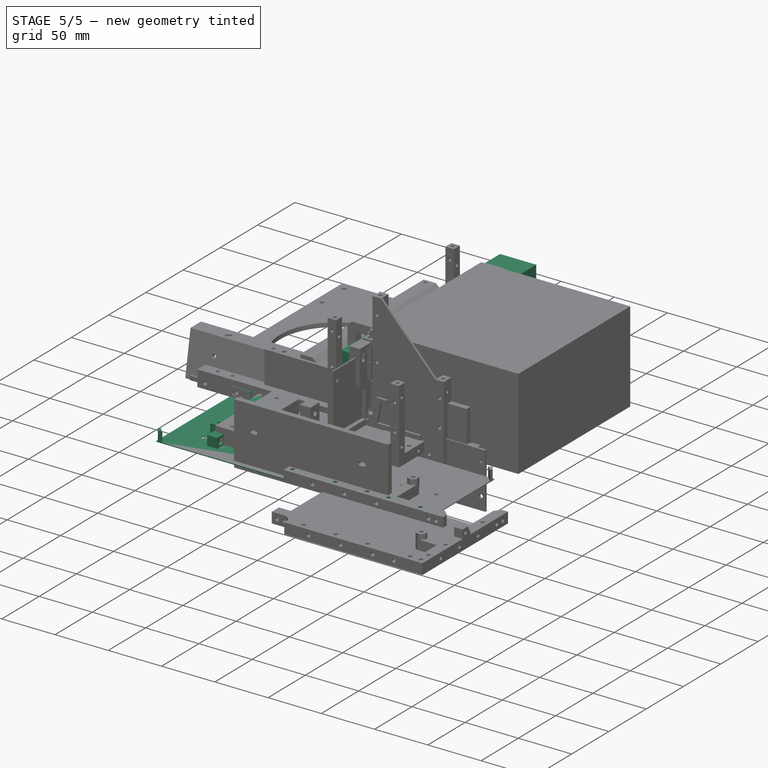
[diagram: stage 5 of 5 — iso view after this stage's code; geometry added in this stage tinted green]
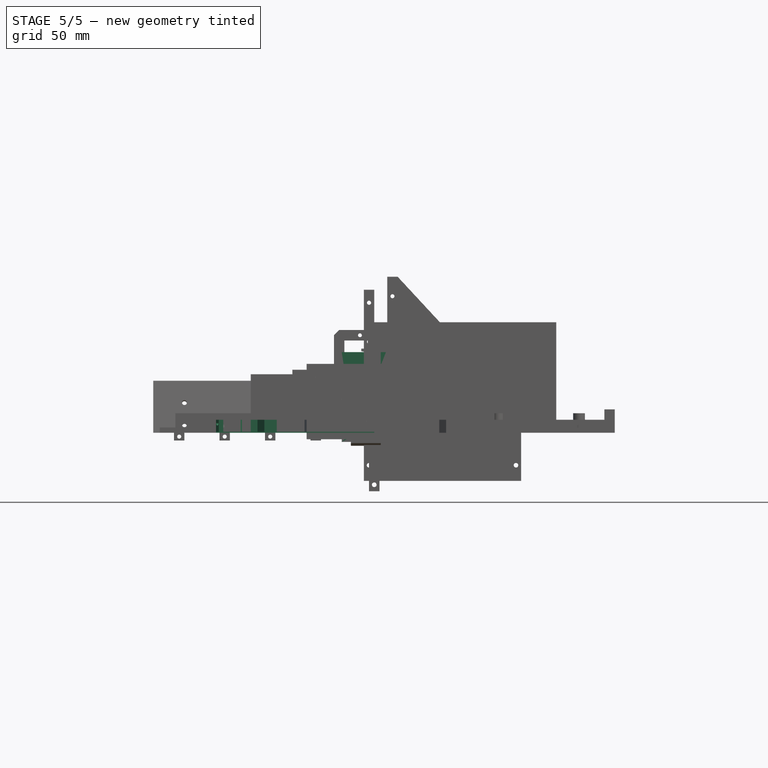
[diagram: stage 5 of 5 — front view after this stage's code; geometry added in this stage tinted green]
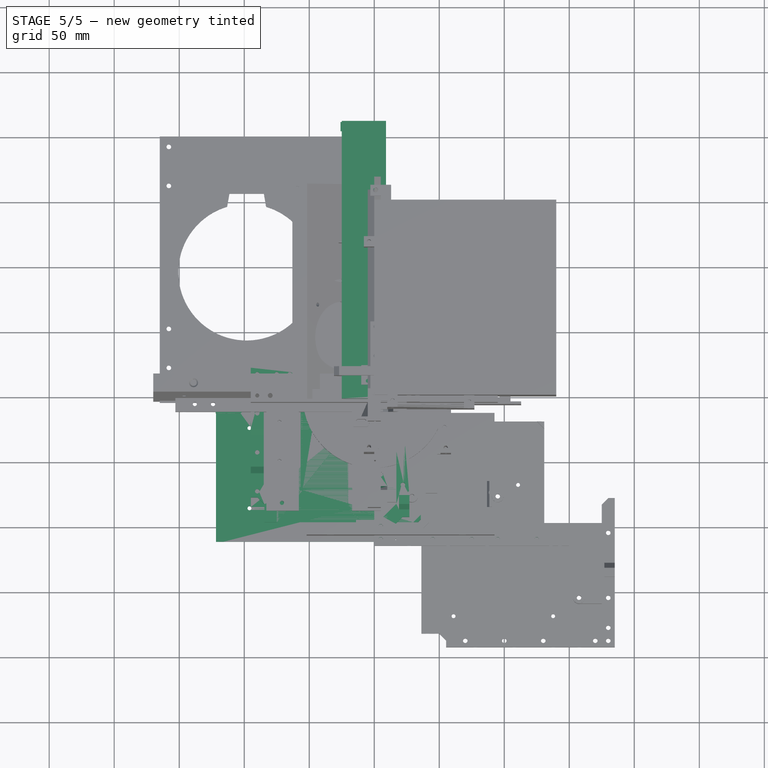
[diagram: stage 5 of 5 — top view after this stage's code; geometry added in this stage tinted green]
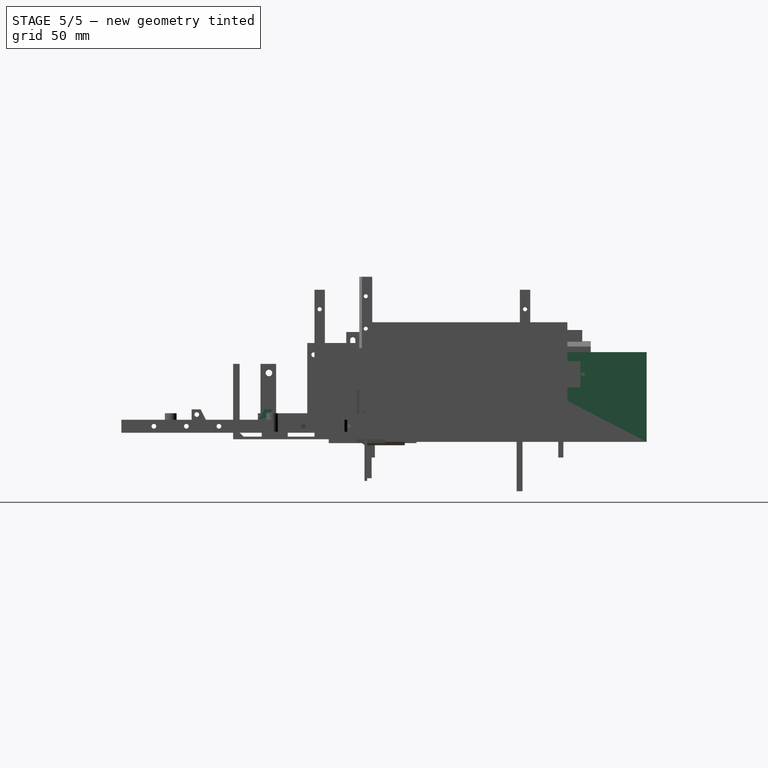
[diagram: stage 5 of 5 — right view after this stage's code; geometry added in this stage tinted green]
FEATURE [Sketcher::SketchObject] Sketch102
  FullyConstrained = false
  MapMode = 5
  Placement = pos=(0,0,0) rot=(0.57735,0.57735,0.57735;2.0944rad)
  Support = -> [YZ_Plane021]
  sketch-geometry (4):
    g0: LineSegment StartX=80 StartY=0 StartZ=0 EndX=0 EndY=0 EndZ=0
    g1: LineSegment StartX=0 StartY=0 StartZ=0 EndX=0 EndY=80 EndZ=0
    g2: LineSegment StartX=0 StartY=80 StartZ=0 EndX=80 EndY=80 EndZ=0
    g3: LineSegment StartX=80 StartY=80 StartZ=0 EndX=80 EndY=0 EndZ=0
  constraints (11):
    c: Coincident(g0,g1)
    c: Coincident(g1,g2)
    c: Coincident(g2,g3)
    c: Coincident(g3,g0)
    c: Horizontal(g0)
    c: Horizontal(g2)
    c: Vertical(g1)
    c: Vertical(g3)
    c: Coincident(g0,g-1)
    c: DistanceX(g0,g0) = 80
    c: DistanceY(g3,g3) = 80
FEATURE [PartDesign::Pad] Pad053
  AllowMultiFace = false
  Direction = (1,1,1)
  Length = 30
  Length2 = 100
  Placement = pos=(0,0,0) rot=(0.57735,0.57735,0.57735;2.0944rad)
  Profile = -> Sketch102
  Type = 0
FEATURE [PartDesign::Body] Body003006013  label="kipas"
  Group = -> [Sketch102,Pad053]
  Origin = -> Origin021
  Placement = pos=(172,-140,1) rot=(0,0,1;0rad)
  Tip = -> Pad053
FEATURE [Sketcher::SketchObject] Sketch118
  FullyConstrained = false
  MapMode = 5
  Placement = pos=(0,0,0) rot=(1,0,0;1.5708rad)
  Support = -> [XZ_Plane025]
  sketch-geometry (7):
    g0: LineSegment StartX=6 StartY=-7 StartZ=0 EndX=6 EndY=58 EndZ=0
    g1: LineSegment StartX=-25 StartY=60 StartZ=0 EndX=-25 EndY=62 EndZ=0
    g2: LineSegment StartX=-25 StartY=62 StartZ=0 EndX=9 EndY=62 EndZ=0
    g3: LineSegment StartX=9 StartY=62 StartZ=0 EndX=9 EndY=-7 EndZ=0
    g4: LineSegment StartX=9 StartY=-7 StartZ=0 EndX=6 EndY=-7 EndZ=0
    g5: LineSegment StartX=6 StartY=58 StartZ=0 EndX=4 EndY=60 EndZ=0
    g6: LineSegment StartX=4 StartY=60 StartZ=0 EndX=-25 EndY=60 EndZ=0
  constraints (21):
    c: Vertical(g0)
    c: Vertical(g1)
    c: Coincident(g1,g2)
    c: Horizontal(g2)
    c: Coincident(g2,g3)
    c: Vertical(g3)
    c: Coincident(g3,g4)
    c: Coincident(g4,g0)
    c: Horizontal(g4)
    c: DistanceX(g4,g4) = 3
    c: DistanceX(g0) = 6
    c: DistanceY(g0,g-1) = 7
    c: DistanceY(g1,g1) = 2
    c: Coincident(g0,g5)
    c: Coincident(g5,g6)
    c: Coincident(g6,g1)
    c: Horizontal(g6)
    c: DistanceY(g0,g0) = 65
    c: DistanceY(g5,g5) = 2
    c: DistanceX(g5,g0) = 2
    c: DistanceX(g2,g2) = 34
FEATURE [PartDesign::Pad] Pad064
  AllowMultiFace = false
  Direction = (1,1,1)
  Length = 0.5
  Length2 = 211
  Placement = pos=(0,0,0) rot=(1,0,0;1.5708rad)
  Profile = -> Sketch118
  Reversed = true
  Type = 4
FEATURE [Sketcher::SketchObject] Sketch121
  AttachmentOffset = pos=(0,0,9) rot=(0,0,1;0rad)
  FullyConstrained = false
  MapMode = 5
  Placement = pos=(9,-2e-15,2e-15) rot=(0.57735,0.57735,0.57735;2.0944rad)
  Support = -> [YZ_Plane025]
  sketch-geometry (6):
    g0: LineSegment StartX=160 StartY=55 StartZ=0 EndX=130 EndY=55 EndZ=0
    g1: LineSegment StartX=130 StartY=55 StartZ=0 EndX=130 EndY=35 EndZ=0
    g2: LineSegment StartX=130 StartY=35 StartZ=0 EndX=160 EndY=35 EndZ=0
    g3: LineSegment StartX=160 StartY=35 StartZ=0 EndX=160 EndY=55 EndZ=0
    g4: Circle CenterX=128 CenterY=45 CenterZ=0 NormalX=0 NormalY=0 NormalZ=1 AngleXU=0 Radius=1.475
    g5: Circle CenterX=162 CenterY=45 CenterZ=0 NormalX=0 NormalY=0 NormalZ=1 AngleXU=0 Radius=1.475
  constraints (18):
    c: Coincident(g0,g1)
    c: Coincident(g1,g2)
    c: Coincident(g2,g3)
    c: Coincident(g3,g0)
    c: Horizontal(g0)
    c: Horizontal(g2)
    c: Vertical(g1)
    c: Vertical(g3)
    c: DistanceX(g2) = 160
    c: DistanceY(g2) = 35
    c: DistanceX(g0,g0) = 30
    c: DistanceY(g3,g3) = 20
    c: Horizontal(g5,g4)
    c: Diameter(g4) = 2.95
    c: Equal(g4,g5)
    c: DistanceY(g2,g5) = 10
    c: DistanceX(g0,g5) = 2
    c: DistanceX(g4,g1) = 2
FEATURE [PartDesign::Pocket] Pocket050  label="lubang-angin"
  AllowMultiFace = false
  BaseFeature = -> Pad064
  Length = 5
  Length2 = 100
  Placement = pos=(0,0,0) rot=(1,0,0;1.5708rad)
  Profile = -> Sketch121
  Type = 1
FEATURE [Sketcher::SketchObject] Sketch122
  AttachmentOffset = pos=(0,0,6) rot=(0,0,1;0rad)
  FullyConstrained = false
  MapMode = 5
  Placement = pos=(6,-1.3e-15,1.3e-15) rot=(0.57735,0.57735,0.57735;2.0944rad)
  Support = -> [YZ_Plane025]
  sketch-geometry (4):
    g0: LineSegment StartX=162 StartY=57 StartZ=0 EndX=128 EndY=57 EndZ=0
    g1: LineSegment StartX=128 StartY=33 StartZ=0 EndX=162 EndY=33 EndZ=0
    g2: ArcOfCircle CenterX=145 CenterY=45 CenterZ=0 NormalX=0 NormalY=0 NormalZ=1 AngleXU=0 Radius=20.8087 StartAngle=2.52693 EndAngle=3.75626
    g3: ArcOfCircle CenterX=145 CenterY=45 CenterZ=0 NormalX=0 NormalY=0 NormalZ=1 AngleXU=0 Radius=20.8087 StartAngle=5.66852 EndAngle=6.89785
  constraints (13):
    c: Horizontal(g0)
    c: Horizontal(g1)
    c: DistanceX(g1) = 162
    c: DistanceY(g1) = 33
    c: DistanceX(g0,g0) = 34
    c: DistanceY(g1,g0) = 24
    c: Vertical(g0,g1)
    c: Coincident(g2,g0)
    c: Coincident(g2,g1)
    c: Coincident(g3,g2)
    c: Coincident(g3,g1)
    c: Coincident(g3,g0)
    c: DistanceX(g2,g1) = 17
FEATURE [PartDesign::Pocket] Pocket051
  AllowMultiFace = false
  BaseFeature = -> Pocket050
  Length = 1.5
  Length2 = 100
  Placement = pos=(0,0,0) rot=(1,0,0;1.5708rad)
  Profile = -> Sketch122
  Reversed = true
  Type = 0
FEATURE [Sketcher::SketchObject] Sketch123
  AttachmentOffset = pos=(0,0,0.5) rot=(0,0,1;0rad)
  FullyConstrained = false
  MapMode = 5
  Placement = pos=(0,-0.5,-1e-16) rot=(1,0,0;1.5708rad)
  Support = -> [XZ_Plane025]
  sketch-geometry (6):
    g0: LineSegment StartX=-25 StartY=62 StartZ=0 EndX=9 EndY=62 EndZ=0
    g1: LineSegment StartX=9 StartY=62 StartZ=0 EndX=9 EndY=-7 EndZ=0
    g2: LineSegment StartX=9 StartY=-7 StartZ=0 EndX=-25 EndY=-7 EndZ=0
    g3: LineSegment StartX=-25 StartY=-7 StartZ=0 EndX=-25 EndY=62 EndZ=0
    g4: Circle CenterX=-15 CenterY=0 CenterZ=0 NormalX=0 NormalY=0 NormalZ=1 AngleXU=0 Radius=1.75
    g5: Circle CenterX=0 CenterY=0 CenterZ=0 NormalX=0 NormalY=0 NormalZ=1 AngleXU=0 Radius=1.75
  constraints (17):
    c: Coincident(g0,g1)
    c: Coincident(g1,g2)
    c: Coincident(g2,g3)
    c: Coincident(g3,g0)
    c: Horizontal(g0)
    c: Horizontal(g2)
    c: Vertical(g1)
    c: Vertical(g3)
    c: PointOnObject(g4,g-1)
    c: Coincident(g5,g-1)
    c: DistanceX(g4,g5) = 15
    c: Diameter(g4) = 3.5
    c: Equal(g4,g5)
    c: DistanceX(g0) = 9
    c: DistanceY(g0) = 62
    c: DistanceY(g3,g3) = 69
    c: DistanceX(g2,g2) = 34
FEATURE [PartDesign::Pad] Pad065
  AllowMultiFace = false
  BaseFeature = -> Pocket051
  Direction = (1,1,1)
  Length = 2
  Length2 = 100
  Placement = pos=(0,0,0) rot=(1,0,0;1.5708rad)
  Profile = -> Sketch123
  Type = 0
FEATURE [Sketcher::SketchObject] Sketch124
  AttachmentOffset = pos=(0,0,7) rot=(0,0,1;0rad)
  FullyConstrained = false
  MapMode = 5
  Placement = pos=(0,0,7) rot=(0,0,1;0rad)
  Support = -> [XY_Plane025]
  sketch-geometry (6):
    g0: LineSegment StartX=6 StartY=211 StartZ=0 EndX=-26 EndY=211 EndZ=0
    g1: LineSegment StartX=-26 StartY=211 StartZ=0 EndX=-26 EndY=204 EndZ=0
    g2: LineSegment StartX=-26 StartY=204 StartZ=0 EndX=6 EndY=204 EndZ=0
    g3: LineSegment StartX=6 StartY=204 StartZ=0 EndX=6 EndY=211 EndZ=0
    g4: Circle CenterX=-7 CenterY=208 CenterZ=0 NormalX=0 NormalY=0 NormalZ=1 AngleXU=0 Radius=2
    g5: Circle CenterX=-22 CenterY=208 CenterZ=0 NormalX=0 NormalY=0 NormalZ=1 AngleXU=0 Radius=2
  constraints (18):
    c: Coincident(g0,g1)
    c: Coincident(g1,g2)
    c: Coincident(g2,g3)
    c: Coincident(g3,g0)
    c: Horizontal(g0)
    c: Horizontal(g2)
    c: Vertical(g1)
    c: Vertical(g3)
    c: DistanceY(g-1,g4) = 208
    c: Horizontal(g4,g5)
    c: DistanceX(g5,g4) = 15
    c: Diameter(g5) = 4
    c: Equal(g5,g4)
    c: DistanceX(g2) = 6
    c: DistanceY(g2) = 204
    c: DistanceX(g0,g0) = 32
    c: DistanceY(g3,g3) = 7
    c: DistanceX(g4) = -7
FEATURE [PartDesign::Pad] Pad066
  AllowMultiFace = false
  BaseFeature = -> Pad065
  Direction = (1,1,1)
  Length = 4
  Length2 = 100
  Placement = pos=(0,0,0) rot=(1,0,0;1.5708rad)
  Profile = -> Sketch124
  Type = 0
FEATURE [PartDesign::Body] Body003006017  label="tutup-blkg"
  Group = -> [Sketch118,Pad064,Sketch121,Pocket050,Sketch122,Pocket051,Sketch123,Pad065,Sketch124,Pad066]
  Origin = -> Origin025
  Placement = pos=(-86,20,-9) rot=(0,0,1;3.14159rad)
  Tip = -> Pad066
FEATURE [Sketcher::SketchObject] Sketch125
  FullyConstrained = false
  MapMode = 5
  Support = -> [XY_Plane027]
  sketch-geometry (29):
    g0: LineSegment StartX=-95 StartY=22 StartZ=0 EndX=54.75 EndY=22 EndZ=0
    g1: LineSegment StartX=54.75 StartY=22 StartZ=0 EndX=54.75 EndY=-77.75 EndZ=0
    g2: LineSegment StartX=54.75 StartY=-77.75 StartZ=0 EndX=-95 EndY=-77.75 EndZ=0
    g3: LineSegment StartX=-95 StartY=-77.75 StartZ=0 EndX=-95 EndY=22 EndZ=0
    g4: LineSegment StartX=-95 StartY=-77.75 StartZ=0 EndX=-89.75 EndY=-77.75 EndZ=0
    g5: LineSegment StartX=-4.5 StartY=12 StartZ=0 EndX=-4.5 EndY=0 EndZ=0
    g6: LineSegment StartX=-4.5 StartY=0 StartZ=0 EndX=0 EndY=-3 EndZ=0
    g7: LineSegment StartX=0 StartY=-3 StartZ=0 EndX=4.5 EndY=0 EndZ=0
    g8: LineSegment StartX=4.5 StartY=0 StartZ=0 EndX=4.5 EndY=12 EndZ=0
    g9: LineSegment StartX=54.75 StartY=17 StartZ=0 EndX=54.75 EndY=22 EndZ=0
    g10: LineSegment StartX=54.75 StartY=22 StartZ=0 EndX=-95 EndY=22 EndZ=0
    g11: LineSegment StartX=-85 StartY=12 StartZ=0 EndX=-85 EndY=-67.75 EndZ=0
    g12: LineSegment StartX=-85 StartY=-67.75 StartZ=0 EndX=-75 EndY=-77.75 EndZ=0
    g13: LineSegment StartX=-89.75 StartY=-77.75 StartZ=0 EndX=-84.5 EndY=-83 EndZ=0
    g14: LineSegment StartX=-84.5 StartY=-83 StartZ=0 EndX=-84.5 EndY=-96.75 EndZ=0
    g15: LineSegment StartX=-84.5 StartY=-96.75 StartZ=0 EndX=-75 EndY=-96.75 EndZ=0
    g16: LineSegment StartX=-75 StartY=-96.75 StartZ=0 EndX=-75 EndY=-77.75 EndZ=0
    g17: LineSegment StartX=54.75 StartY=17 StartZ=0 EndX=49.75 EndY=12 EndZ=0
    g18: LineSegment StartX=49.75 StartY=12 StartZ=0 EndX=4.5 EndY=12 EndZ=0
    g19: LineSegment StartX=-85 StartY=12 StartZ=0 EndX=-50.25 EndY=12 EndZ=0
    g20: LineSegment StartX=-50.25 StartY=12 StartZ=0 EndX=-50.25 EndY=0 EndZ=0
    g21: LineSegment StartX=-50.25 StartY=0 StartZ=0 EndX=-41.25 EndY=0 EndZ=0
    g22: LineSegment StartX=-41.25 StartY=0 StartZ=0 EndX=-41.25 EndY=12 EndZ=0
    g23: LineSegment StartX=-41.25 StartY=12 StartZ=0 EndX=-4.5 EndY=12 EndZ=0
    g24: LineSegment StartX=-95 StartY=22 StartZ=0 EndX=-95 EndY=11.5 EndZ=0
    g25: LineSegment StartX=-95 StartY=11.5 StartZ=0 EndX=-109 EndY=11.5 EndZ=0
    g26: LineSegment StartX=-109 StartY=11.5 StartZ=0 EndX=-109 EndY=2 EndZ=0
    g27: LineSegment StartX=-109 StartY=2 StartZ=0 EndX=-95 EndY=2 EndZ=0
    g28: LineSegment StartX=-95 StartY=2 StartZ=0 EndX=-95 EndY=-77.75 EndZ=0
  constraints (83):
    c: Coincident(g0,g1)
    c: Coincident(g1,g2)
    c: Coincident(g2,g3)
    c: Coincident(g3,g0)
    c: Horizontal(g0)
    c: Horizontal(g2)
    c: Vertical(g1)
    c: Vertical(g3)
    c: DistanceX(g0,g0) = 149.75
    c: DistanceY(g1,g1) = 99.75
    c: DistanceX(g0) = -95
    c: DistanceY(g0) = 22
    c: PointOnObject(g4,g2)
    c: PointOnObject(g5,g-1)
    c: Vertical(g5)
    c: Coincident(g5,g6)
    c: PointOnObject(g6,g-2)
    c: Coincident(g6,g7)
    c: Coincident(g7,g8)
    c: PointOnObject(g9,g1)
    c: Coincident(g9,g0)
    c: Coincident(g9,g10)
    c: Vertical(g8)
    c: Symmetric(g5,g7,g-1)
    c: DistanceY(g8,g8) = 12
    c: DistanceX(g7) = 4.5
    c: Horizontal(g8,g5)
    c: Vertical(g11)
    c: Coincident(g11,g12)
    c: PointOnObject(g12,g2)
    c: DistanceX(g0,g11) = 10
    c: DistanceX(g4,g4) = 5.25
    c: Coincident(g4,g13)
    c: Coincident(g13,g14)
    c: Vertical(g14)
    c: Coincident(g14,g15)
    c: Horizontal(g15)
    c: Coincident(g15,g16)
    c: Coincident(g16,g12)
    c: Vertical(g16)
    c: Angle(g4,g13) = 2.35619
    c: DistanceX(g2,g13) = 10.5
    c: DistanceY(g14,g14) = 13.75
    c: Parallel(g13,g12)
    c: DistanceX(g2,g15) = 20
    c: DistanceY(g9,g9) = 5
    c: Coincident(g9,g17)
    c: Coincident(g18,g8)
    c: Horizontal(g18)
    c: Angle(g9,g17) = 2.35619
    c: Coincident(g18,g17)
    c: DistanceY(g6,g-1) = 3
    c: Horizontal(g11,g5)
    c: Coincident(g11,g19)
    c: Horizontal(g19)
    c: Coincident(g19,g20)
    c: PointOnObject(g20,g-1)
    c: Vertical(g20)
    c: Coincident(g20,g21)
    c: PointOnObject(g21,g-1)
    c: Coincident(g21,g22)
    c: Vertical(g22)
    c: Coincident(g22,g23)
    c: Coincident(g23,g5)
    c: Horizontal(g23)
    c: DistanceX(g20,g21) = 9
    c: Coincident(g10,g24)
    c: PointOnObject(g24,g3)
    c: Coincident(g24,g25)
    c: Horizontal(g25)
    c: Coincident(g25,g26)
    c: Vertical(g26)
    c: Coincident(g26,g27)
    c: PointOnObject(g27,g3)
    c: Horizontal(g27)
    c: Coincident(g27,g28)
    c: Coincident(g28,g4)
    c: DistanceY(g24,g10) = 10.5
    c: Coincident(g0,g10)
    c: DistanceX(g27,g27) = 14
    c: Coincident(g2,g4)
    c: DistanceX(g19,g19) = 34.75
    c: DistanceY(g26,g10) = 20
FEATURE [PartDesign::Pad] Pad067
  AllowMultiFace = false
  Direction = (1,1,1)
  Length = 10
  Length2 = 2
  Profile = -> Sketch125
  Type = 0
FEATURE [Sketcher::SketchObject] Sketch127
  FullyConstrained = false
  MapMode = 5
  Support = -> [XY_Plane027]
  sketch-geometry (1):
    g0: Circle CenterX=0 CenterY=0 CenterZ=0 NormalX=0 NormalY=0 NormalZ=1 AngleXU=0 Radius=4.5
  constraints (2):
    c: Coincident(g0,g-1)
    c: Diameter(g0) = 9
FEATURE [PartDesign::Pad] Pad068
  AllowMultiFace = false
  BaseFeature = -> Pad067
  Direction = (1,1,1)
  Length = 15
  Length2 = 100
  Profile = -> Sketch127
  Type = 0
FEATURE [Sketcher::SketchObject] Sketch129
  FullyConstrained = false
  MapMode = 5
  Support = -> [XY_Plane028]
  sketch-geometry (22):
    g0: LineSegment StartX=12.5 StartY=-3 StartZ=0 EndX=17 EndY=-7.5 EndZ=0
    g1: LineSegment StartX=27 StartY=-92.75 StartZ=0 EndX=27 EndY=7 EndZ=0
    g2: LineSegment StartX=27 StartY=7 StartZ=0 EndX=-102.75 EndY=7 EndZ=0
    g3: LineSegment StartX=17 StartY=-7.5 StartZ=0 EndX=17 EndY=-33.5 EndZ=0
    g4: LineSegment StartX=17 StartY=-33.5 StartZ=0 EndX=0 EndY=-33.5 EndZ=0
    g5: LineSegment StartX=0 StartY=-33.5 StartZ=0 EndX=-4 EndY=-38 EndZ=0
    g6: LineSegment StartX=-4 StartY=-38 StartZ=0 EndX=0 EndY=-42.5 EndZ=0
    g7: LineSegment StartX=0 StartY=-42.5 StartZ=0 EndX=17 EndY=-42.5 EndZ=0
    g8: LineSegment StartX=17 StartY=-42.5 StartZ=0 EndX=17 EndY=-82.75 EndZ=0
    g9: LineSegment StartX=-92.75 StartY=-3 StartZ=0 EndX=12.5 EndY=-3 EndZ=0
    g10: LineSegment StartX=-102.75 StartY=7 StartZ=0 EndX=-102.75 EndY=1.75 EndZ=0
    g11: LineSegment StartX=-102.75 StartY=1.75 StartZ=0 EndX=-108 EndY=-3.5 EndZ=0
    g12: LineSegment StartX=-108 StartY=-3.5 StartZ=0 EndX=-122 EndY=-3.5 EndZ=0
    g13: LineSegment StartX=-122 StartY=-3.5 StartZ=0 EndX=-122 EndY=-13 EndZ=0
    g14: LineSegment StartX=-122 StartY=-13 StartZ=0 EndX=-102.75 EndY=-13 EndZ=0
    g15: LineSegment StartX=-102.75 StartY=-13 StartZ=0 EndX=-92.75 EndY=-3 EndZ=0
    g16: LineSegment StartX=17 StartY=-82.75 StartZ=0 EndX=7 EndY=-92.75 EndZ=0
    g17: LineSegment StartX=7 StartY=-92.75 StartZ=0 EndX=7 EndY=-112 EndZ=0
    g18: LineSegment StartX=7 StartY=-112 StartZ=0 EndX=16.5 EndY=-112 EndZ=0
    g19: LineSegment StartX=16.5 StartY=-112 StartZ=0 EndX=16.5 EndY=-98 EndZ=0
    g20: LineSegment StartX=16.5 StartY=-98 StartZ=0 EndX=21.75 EndY=-92.75 EndZ=0
    g21: LineSegment StartX=21.75 StartY=-92.75 StartZ=0 EndX=27 EndY=-92.75 EndZ=0
  constraints (66):
    c: Vertical(g1)
    c: Coincident(g1,g2)
    c: Horizontal(g2)
    c: DistanceY(g9,g2) = 10
    c: DistanceX(g1) = 27
    c: DistanceY(g1,g1) = 99.75
    c: Coincident(g0,g3)
    c: Vertical(g3)
    c: Coincident(g3,g4)
    c: PointOnObject(g4,g-2)
    c: Horizontal(g4)
    c: Coincident(g4,g5)
    c: Coincident(g5,g6)
    c: PointOnObject(g6,g-2)
    c: Coincident(g6,g7)
    c: Horizontal(g7)
    c: Coincident(g7,g8)
    c: Vertical(g8)
    c: Vertical(g3,g7)
    c: DistanceY(g6,g4) = 9
    c: DistanceX(g8,g1) = 10
    c: DistanceY(g0,g0) = 4.5
    c: Coincident(g9,g0)
    c: Horizontal(g9)
    c: DistanceY(g0,g-1) = 3
    c: Angle(g9,g0) = 2.35619
    c: Equal(g6,g5)
    c: DistanceX(g2,g-1) = 102.75
    c: Coincident(g2,g10)
    c: Vertical(g10)
    c: Coincident(g10,g11)
    c: Coincident(g11,g12)
    c: Horizontal(g12)
    c: Coincident(g12,g13)
    c: Vertical(g13)
    c: Coincident(g13,g14)
    c: Horizontal(g14)
    c: Coincident(g14,g15)
    c: Coincident(g15,g9)
    c: Parallel(g15,g11)
    c: Angle(g10,g11) = 2.35619
    c: DistanceY(g10,g10) = 5.25
    c: DistanceY(g11,g2) = 10.5
    c: Vertical(g14,g10)
    c: DistanceX(g12,g12) = 14
    c: DistanceY(g13,g2) = 20
    c: DistanceX(g5,g6) = 4
    c: DistanceY(g5,g-1) = 38
    c: Coincident(g8,g16)
    c: Coincident(g16,g17)
    c: Vertical(g17)
    c: Coincident(g17,g18)
    c: Horizontal(g18)
    c: Coincident(g18,g19)
    c: Vertical(g19)
    c: Coincident(g19,g20)
    c: Coincident(g20,g21)
    c: Coincident(g21,g1)
    c: Horizontal(g21)
    c: DistanceX(g21,g21) = 5.25
    c: Angle(g20,g21) = 2.35619
    c: Horizontal(g20,g16)
    c: Parallel(g16,g20)
    c: DistanceX(g19,g1) = 10.5
    c: DistanceY(g19,g19) = 14
    c: DistanceX(g17,g1) = 20
FEATURE [PartDesign::Pad] Pad069
  AllowMultiFace = false
  Direction = (1,1,1)
  Length = 10
  Length2 = 100
  Profile = -> Sketch129
  Type = 0
FEATURE [Sketcher::SketchObject] Sketch130
  FullyConstrained = false
  MapMode = 5
  Support = -> [XY_Plane028]
  sketch-geometry (1):
    g0: Circle CenterX=-0.542511 CenterY=-38 CenterZ=0 NormalX=0 NormalY=0 NormalZ=1 AngleXU=0 Radius=4.5
  constraints (3):
    c: DistanceX(g0) = -0.542511
    c: DistanceY(g0) = -38
    c: Diameter(g0) = 9
FEATURE [Sketcher::SketchObject] Sketch131  label="lubang-std-mobo001"
  AttachmentOffset = pos=(-158,-15,0) rot=(0,0,1;0rad)
  FullyConstrained = false
  MapMode = 5
  Placement = pos=(-158,-15,0) rot=(0,0,1;0rad)
  Support = -> [XY_Plane028]
  expr: Constraints[15] = 6.1in - 0.9in
  sketch-geometry (6):
    g0: Circle CenterX=-45.72 CenterY=3.6e-15 CenterZ=0 NormalX=0 NormalY=0 NormalZ=1 AngleXU=0 Radius=1.75
    g1: Circle CenterX=0 CenterY=3.6e-15 CenterZ=0 NormalX=0 NormalY=0 NormalZ=1 AngleXU=0 Radius=1.75
    g2: Circle CenterX=-66.04 CenterY=-154.94 CenterZ=0 NormalX=0 NormalY=0 NormalZ=1 AngleXU=0 Radius=1.75
    g3: Circle CenterX=0 CenterY=-154.94 CenterZ=0 NormalX=0 NormalY=0 NormalZ=1 AngleXU=0 Radius=1.75
    g4: Circle CenterX=157.48 CenterY=-154.94 CenterZ=0 NormalX=0 NormalY=0 NormalZ=1 AngleXU=0 Radius=1.75
    g5: Circle CenterX=157.48 CenterY=-22.86 CenterZ=0 NormalX=0 NormalY=0 NormalZ=1 AngleXU=0 Radius=1.75
  constraints (17):
    c: Equal(g0,g1)
    c: Equal(g1,g2)
    c: Equal(g2,g3)
    c: Equal(g3,g4)
    c: Diameter(g0) = 3.5
    c: DistanceX(g0,g1) = 45.72
    c: Horizontal(g0,g1)
    c: Vertical(g1,g3)
    c: DistanceY(g3,g1) = 154.94
    c: Horizontal(g2,g3)
    c: DistanceX(g2,g3) = 66.04
    c: Equal(g4,g5)
    c: Horizontal(g4,g3)
    c: DistanceX(g0,g4) = 203.2
    c: Vertical(g4,g5)
    c: DistanceY(g4,g5) = 132.08
    c: Coincident(g1,g-1)
FEATURE [PartDesign::Pad] Pad070
  AllowMultiFace = false
  BaseFeature = -> Pad069
  Direction = (1,1,1)
  Length = 15
  Length2 = 100
  Profile = -> Sketch130
  Type = 0
FEATURE [Sketcher::SketchObject] Sketch143  label="lubang-std-mobo005"
  FullyConstrained = false
  MapMode = 5
  Support = -> [XY_Plane030]
  expr: Constraints[15] = 6.1in - 0.9in
  sketch-geometry (6):
    g0: Circle CenterX=-45.72 CenterY=3.6e-15 CenterZ=0 NormalX=0 NormalY=0 NormalZ=1 AngleXU=0 Radius=1.75
    g1: Circle CenterX=0 CenterY=3.6e-15 CenterZ=0 NormalX=0 NormalY=0 NormalZ=1 AngleXU=0 Radius=1.75
    g2: Circle CenterX=-66.04 CenterY=-154.94 CenterZ=0 NormalX=0 NormalY=0 NormalZ=1 AngleXU=0 Radius=1.75
    g3: Circle CenterX=0 CenterY=-154.94 CenterZ=0 NormalX=0 NormalY=0 NormalZ=1 AngleXU=0 Radius=1.75
    g4: Circle CenterX=157.48 CenterY=-154.94 CenterZ=0 NormalX=0 NormalY=0 NormalZ=1 AngleXU=0 Radius=1.75
    g5: Circle CenterX=157.48 CenterY=-22.86 CenterZ=0 NormalX=0 NormalY=0 NormalZ=1 AngleXU=0 Radius=1.75
  constraints (17):
    c: Equal(g0,g1)
    c: Equal(g1,g2)
    c: Equal(g2,g3)
    c: Equal(g3,g4)
    c: Diameter(g0) = 3.5
    c: DistanceX(g0,g1) = 45.72
    c: Horizontal(g0,g1)
    c: Vertical(g1,g3)
    c: DistanceY(g3,g1) = 154.94
    c: Horizontal(g2,g3)
    c: DistanceX(g2,g3) = 66.04
    c: Equal(g4,g5)
    c: Horizontal(g4,g3)
    c: DistanceX(g0,g4) = 203.2
    c: Vertical(g4,g5)
    c: DistanceY(g4,g5) = 132.08
    c: Coincident(g1,g-1)
FEATURE [Sketcher::SketchObject] Sketch144
  FullyConstrained = false
  MapMode = 5
  Support = -> [XY_Plane027]
  sketch-geometry (1):
    g0: Circle CenterX=-45.75 CenterY=0 CenterZ=0 NormalX=0 NormalY=0 NormalZ=1 AngleXU=0 Radius=4.5
  constraints (3):
    c: PointOnObject(g0,g-1)
    c: Diameter(g0) = 9
    c: DistanceX(g0) = -45.75
FEATURE [PartDesign::Pad] Pad077
  AllowMultiFace = false
  BaseFeature = -> Pad068
  Direction = (1,1,1)
  Length = 15
  Length2 = 100
  Profile = -> Sketch144
  Type = 0
FEATURE [Sketcher::SketchObject] Sketch145
  FullyConstrained = false
  MapMode = 5
  Support = -> [XY_Plane027]
  sketch-geometry (6):
    g0: LineSegment StartX=-85 StartY=12 StartZ=0 EndX=-85 EndY=-68 EndZ=0
    g1: LineSegment StartX=-85 StartY=-68 StartZ=0 EndX=-75 EndY=-78 EndZ=0
    g2: LineSegment StartX=-75 StartY=-78 StartZ=0 EndX=-75 EndY=-96.75 EndZ=0
    g3: LineSegment StartX=-75 StartY=-96.75 StartZ=0 EndX=35.75 EndY=-96.75 EndZ=0
    g4: LineSegment StartX=35.75 StartY=-96.75 StartZ=0 EndX=35.75 EndY=12 EndZ=0
    g5: LineSegment StartX=35.75 StartY=12 StartZ=0 EndX=-85 EndY=12 EndZ=0
  constraints (18):
    c: Vertical(g0)
    c: Coincident(g0,g1)
    c: Coincident(g1,g2)
    c: Vertical(g2)
    c: Coincident(g2,g3)
    c: Horizontal(g3)
    c: Coincident(g3,g4)
    c: Vertical(g4)
    c: Coincident(g4,g5)
    c: Coincident(g5,g0)
    c: Horizontal(g5)
    c: DistanceX(g0) = -85
    c: DistanceY(g0) = 12
    c: DistanceX(g5,g5) = 120.75
    c: DistanceY(g4,g4) = 108.75
    c: DistanceY(g0,g0) = 80
    c: DistanceY(g1,g0) = 10
    c: Angle(g1,g0) = 2.35619
FEATURE [PartDesign::Pad] Pad078  label="alas"
  AllowMultiFace = false
  BaseFeature = -> Pad077
  Direction = (1,1,1)
  Length = 0.8
  Length2 = 100
  Profile = -> Sketch145
  Type = 0
FEATURE [PartDesign::Pocket] Pocket057  label="lubangmobo"
  AllowMultiFace = false
  BaseFeature = -> Pad078
  Length = 5
  Length2 = 100
  Midplane = true
  Profile = -> Sketch139
  Type = 1
FEATURE [Sketcher::SketchObject] Sketch146
  FullyConstrained = false
  MapMode = 5
  Support = -> [XY_Plane027]
  sketch-geometry (6):
    g0: LineSegment StartX=35.75 StartY=-96.75 StartZ=0 EndX=35.75 EndY=-91.0931 EndZ=0
    g1: LineSegment StartX=35.75 StartY=-91.0931 StartZ=0 EndX=30.0931 EndY=-96.75 EndZ=0
    g2: LineSegment StartX=30.0931 StartY=-96.75 StartZ=0 EndX=35.75 EndY=-96.75 EndZ=0
    g3: LineSegment StartX=30.0931 StartY=-96.75 StartZ=0 EndX=33.6287 EndY=-96.75 EndZ=0
    g4: LineSegment StartX=33.6287 StartY=-96.75 StartZ=0 EndX=35.75 EndY=-94.6287 EndZ=0
    g5: LineSegment StartX=35.75 StartY=-94.6287 StartZ=0 EndX=35.75 EndY=-91.0931 EndZ=0
  constraints (17):
    c: Vertical(g0)
    c: Coincident(g0,g1)
    c: Coincident(g1,g2)
    c: Coincident(g2,g0)
    c: Horizontal(g2)
    c: DistanceY(g0) = -96.75
    c: Equal(g2,g0)
    c: Distance(g1) = 8
    c: Coincident(g1,g3)
    c: PointOnObject(g3,g2)
    c: Coincident(g3,g4)
    c: PointOnObject(g4,g0)
    c: Coincident(g4,g5)
    c: Coincident(g1,g5)
    c: Equal(g3,g5)
    c: Distance(g4) = 3
    c: DistanceX(g0) = 35.75
FEATURE [PartDesign::Pad] Pad079  label="midjoin-pole"
  AllowMultiFace = false
  BaseFeature = -> Pocket057
  Direction = (1,1,1)
  Length = 10
  Length2 = 100
  Profile = -> Sketch146
  Type = 0
FEATURE [Sketcher::SketchObject] Sketch147
  ExternalGeometry = -> [Pad079]
  FullyConstrained = false
  MapMode = 5
  Placement = pos=(63.4216,-63.4216,0) rot=(-0.281085,0.678598,0.678598;3.68962rad)
  Support = -> [Pad079]
  sketch-geometry (1):
    g0: Circle CenterX=43.1335 CenterY=5 CenterZ=0 NormalX=0 NormalY=0 NormalZ=1 AngleXU=0 Radius=1.3
  constraints (3):
    c: DistanceY(g0) = 5
    c: Diameter(g0) = 2.6
    c: DistanceX(g0,g-3) = 4
FEATURE [Sketcher::SketchObject] Sketch148
  FullyConstrained = false
  MapMode = 5
  Support = -> [XY_Plane028]
  sketch-geometry (8):
    g0: LineSegment StartX=-121.75 StartY=-13 StartZ=0 EndX=-121.75 EndY=-111.75 EndZ=0
    g1: LineSegment StartX=-121.75 StartY=-111.75 StartZ=0 EndX=7 EndY=-111.75 EndZ=0
    g2: LineSegment StartX=7 StartY=-111.75 StartZ=0 EndX=7 EndY=-93 EndZ=0
    g3: LineSegment StartX=7 StartY=-93 StartZ=0 EndX=17 EndY=-83 EndZ=0
    g4: LineSegment StartX=17 StartY=-83 StartZ=0 EndX=17 EndY=-3 EndZ=0
    g5: LineSegment StartX=17 StartY=-3 StartZ=0 EndX=-93 EndY=-3 EndZ=0
    g6: LineSegment StartX=-93 StartY=-3 StartZ=0 EndX=-103 EndY=-13 EndZ=0
    g7: LineSegment StartX=-103 StartY=-13 StartZ=0 EndX=-121.75 EndY=-13 EndZ=0
  constraints (24):
    c: Vertical(g0)
    c: Coincident(g0,g1)
    c: Horizontal(g1)
    c: Coincident(g1,g2)
    c: Vertical(g2)
    c: Coincident(g2,g3)
    c: Coincident(g3,g4)
    c: Vertical(g4)
    c: Coincident(g4,g5)
    c: Horizontal(g5)
    c: Coincident(g5,g6)
    c: Coincident(g6,g7)
    c: Coincident(g7,g0)
    c: Horizontal(g7)
    c: DistanceX(g4) = 17
    c: DistanceY(g4) = -3
    c: DistanceX(g5,g5) = 110
    c: Angle(g6,g5) = 2.35619
    c: DistanceX(g6,g5) = 10
    c: DistanceX(g7,g7) = 18.75
    c: DistanceY(g0,g0) = 98.75
    c: DistanceY(g4,g4) = 80
    c: DistanceY(g2,g3) = 10
    c: Angle(g4,g3) = 2.35619
FEATURE [PartDesign::Pad] Pad080  label="alas001"
  AllowMultiFace = false
  BaseFeature = -> Pad070
  Direction = (1,1,1)
  Length = 0.8
  Length2 = 100
  Profile = -> Sketch148
  Type = 0
FEATURE [PartDesign::Pocket] Pocket059  label="lubangmobo001"
  AllowMultiFace = false
  BaseFeature = -> Pad080
  Length = 5
  Length2 = 100
  Midplane = true
  Profile = -> Sketch131
  Type = 1
FEATURE [Sketcher::SketchObject] Sketch149
  FullyConstrained = false
  MapMode = 5
  Support = -> [XY_Plane028]
  sketch-geometry (6):
    g0: LineSegment StartX=-121.75 StartY=-106.093 StartZ=0 EndX=-121.75 EndY=-111.75 EndZ=0
    g1: LineSegment StartX=-121.75 StartY=-111.75 StartZ=0 EndX=-116.093 EndY=-111.75 EndZ=0
    g2: LineSegment StartX=-116.093 StartY=-111.75 StartZ=0 EndX=-121.75 EndY=-106.093 EndZ=0
    g3: LineSegment StartX=-121.75 StartY=-106.093 StartZ=0 EndX=-121.75 EndY=-109.629 EndZ=0
    g4: LineSegment StartX=-116.093 StartY=-111.75 StartZ=0 EndX=-119.629 EndY=-111.75 EndZ=0
    g5: LineSegment StartX=-119.629 StartY=-111.75 StartZ=0 EndX=-121.75 EndY=-109.629 EndZ=0
  constraints (17):
    c: Vertical(g0)
    c: Coincident(g0,g1)
    c: Horizontal(g1)
    c: Coincident(g1,g2)
    c: Coincident(g2,g0)
    c: DistanceX(g0) = -121.75
    c: DistanceY(g0) = -111.75
    c: Equal(g1,g0)
    c: Distance(g2) = 8
    c: Coincident(g3,g2)
    c: PointOnObject(g3,g0)
    c: Coincident(g4,g2)
    c: PointOnObject(g4,g1)
    c: Coincident(g5,g3)
    c: Coincident(g4,g5)
    c: Equal(g4,g3)
    c: Distance(g5) = 3
FEATURE [PartDesign::Pad] Pad081  label="midjoin-pole001"
  AllowMultiFace = false
  BaseFeature = -> Pocket059
  Direction = (1,1,1)
  Length = 10
  Length2 = 100
  Profile = -> Sketch149
  Type = 0
FEATURE [Sketcher::SketchObject] Sketch150
  ExternalGeometry = -> [Pad081]
  FullyConstrained = false
  MapMode = 5
  Placement = pos=(-113.922,-113.922,0) rot=(0.281085,0.678598,0.678598;2.59356rad)
  Support = -> [Pad081]
  sketch-geometry (1):
    g0: Circle CenterX=7.07107 CenterY=7 CenterZ=0 NormalX=0 NormalY=0 NormalZ=1 AngleXU=0 Radius=1.3
  constraints (3):
    c: Diameter(g0) = 2.6
    c: DistanceY(g0) = 7
    c: DistanceX(g0,g-3) = 4
FEATURE [PartDesign::Pocket] Pocket060  label="midjoin-hole001"
  AllowMultiFace = false
  BaseFeature = -> Pad081
  Length = 5
  Length2 = 100
  Profile = -> Sketch150
  Type = 1
FEATURE [Sketcher::SketchObject] Sketch151
  FullyConstrained = false
  MapMode = 5
  Support = -> [XY_Plane031]
  sketch-geometry (12):
    g0: LineSegment StartX=0 StartY=0 StartZ=0 EndX=105 EndY=0 EndZ=0
    g1: LineSegment StartX=105 StartY=0 StartZ=0 EndX=105 EndY=70 EndZ=0
    g2: LineSegment StartX=105 StartY=70 StartZ=0 EndX=0 EndY=70 EndZ=0
    g3: LineSegment StartX=0 StartY=70 StartZ=0 EndX=0 EndY=0 EndZ=0
    g4: Circle CenterX=14 CenterY=65.79 CenterZ=0 NormalX=0 NormalY=0 NormalZ=1 AngleXU=0 Radius=1.5
    g5: Circle CenterX=90.6 CenterY=65.79 CenterZ=0 NormalX=0 NormalY=0 NormalZ=1 AngleXU=0 Radius=1.5
    g6: Circle CenterX=90.6 CenterY=4.07 CenterZ=0 NormalX=0 NormalY=0 NormalZ=1 AngleXU=0 Radius=1.5
    g7: Circle CenterX=14 CenterY=4.07 CenterZ=0 NormalX=0 NormalY=0 NormalZ=1 AngleXU=0 Radius=1.5
    g8: LineSegment StartX=14 StartY=4.07 StartZ=0 EndX=90.6 EndY=4.07 EndZ=0
    g9: LineSegment StartX=90.6 StartY=4.07 StartZ=0 EndX=90.6 EndY=65.79 EndZ=0
    g10: LineSegment StartX=90.6 StartY=65.79 StartZ=0 EndX=14 EndY=65.79 EndZ=0
    g11: LineSegment StartX=14 StartY=65.79 StartZ=0 EndX=14 EndY=4.07 EndZ=0
  constraints (31):
    c: Coincident(g0,g1)
    c: Coincident(g1,g2)
    c: Coincident(g2,g3)
    c: Coincident(g3,g0)
    c: Horizontal(g0)
    c: Horizontal(g2)
    c: Vertical(g1)
    c: Vertical(g3)
    c: Coincident(g0,g-1)
    c: DistanceY(g1,g1) = 70
    c: DistanceX(g2,g2) = 105
    c: Diameter(g7) = 3
    c: Equal(g7,g6)
    c: Equal(g7,g5)
    c: Equal(g7,g4)
    c: DistanceX(g7,g6) = 76.6
    c: Coincident(g8,g9)
    c: Coincident(g9,g10)
    c: Coincident(g10,g11)
    c: Coincident(g11,g8)
    c: Horizontal(g8)
    c: Horizontal(g10)
    c: Vertical(g9)
    c: Vertical(g11)
    c: Coincident(g8,g7)
    c: Coincident(g9,g5)
    c: Coincident(g6,g8)
    c: Coincident(g4,g10)
    c: DistanceY(g9,g9) = 61.72
    c: DistanceX(g0,g7) = 14
    c: DistanceY(g0,g7) = 4.07
FEATURE [PartDesign::Pad] Pad082
  AllowMultiFace = false
  Direction = (1,1,1)
  Length = 8
  Length2 = 100
  Profile = -> Sketch151
  Type = 0
FEATURE [PartDesign::Body] Body003006023  label="ssd2.5"
  Group = -> [Sketch151,Pad082]
  Origin = -> Origin031
  Placement = pos=(47,-173,1) rot=(0,0,1;0rad)
  Tip = -> Pad082
FEATURE [Sketcher::SketchObject] Sketch152
  AttachmentOffset = pos=(0,0,-22) rot=(0,1,0;3.14159rad)
  FullyConstrained = false
  MapMode = 5
  Placement = pos=(0,22,4.9e-15) rot=(0,0.707107,0.707107;3.14159rad)
  Support = -> [XZ_Plane027]
  sketch-geometry (8):
    g0: Circle CenterX=-20 CenterY=5 CenterZ=0 NormalX=0 NormalY=0 NormalZ=1 AngleXU=0 Radius=1.8
    g1: Circle CenterX=-10 CenterY=5 CenterZ=0 NormalX=0 NormalY=0 NormalZ=1 AngleXU=0 Radius=1.8
    g2: Circle CenterX=30 CenterY=5 CenterZ=0 NormalX=0 NormalY=0 NormalZ=1 AngleXU=0 Radius=1.8
    g3: Circle CenterX=98 CenterY=5 CenterZ=0 NormalX=0 NormalY=0 NormalZ=1 AngleXU=0 Radius=1.8
    g4: Circle CenterX=106 CenterY=5 CenterZ=0 NormalX=0 NormalY=0 NormalZ=1 AngleXU=0 Radius=1.8
    g5: Circle CenterX=70 CenterY=5 CenterZ=0 NormalX=0 NormalY=0 NormalZ=1 AngleXU=0 Radius=1.8
    g6: Circle CenterX=-48 CenterY=5 CenterZ=0 NormalX=0 NormalY=0 NormalZ=1 AngleXU=0 Radius=1.8
    g7: Circle CenterX=-41 CenterY=5 CenterZ=0 NormalX=0 NormalY=0 NormalZ=1 AngleXU=0 Radius=1.8
  constraints (24):
    c: DistanceY(g0) = 5
    c: Diameter(g0) = 3.6
    c: Horizontal(g1,g0)
    c: Horizontal(g3,g2)
    c: Horizontal(g2,g1)
    c: Equal(g1,g2)
    c: Equal(g2,g3)
    c: Equal(g3,g0)
    c: DistanceX(g0,g1) = 10
    c: DistanceX(g1,g2) = 40
    c: DistanceX(g3) = 98
    c: Equal(g4,g3)
    c: Horizontal(g4,g3)
    c: DistanceX(g3,g4) = 8
    c: Horizontal(g5,g2)
    c: Equal(g5,g2)
    c: DistanceX(g2,g5) = 40
    c: Equal(g7,g6)
    c: Equal(g6,g0)
    c: DistanceX(g6,g7) = 7
    c: Horizontal(g7,g0)
    c: Horizontal(g7,g6)
    c: DistanceX(g6) = -48
    c: DistanceX(g1,g-1) = 10
FEATURE [PartDesign::Pocket] Pocket061  label="lubangsamping"
  AllowMultiFace = false
  BaseFeature = -> Pad079
  Length = 5
  Length2 = 100
  Profile = -> Sketch152
  Type = 1
FEATURE [Sketcher::SketchObject] Sketch159
  AttachmentOffset = pos=(0,0,-7) rot=(0,1,0;3.14159rad)
  FullyConstrained = false
  MapMode = 5
  Placement = pos=(0,7,1.6e-15) rot=(0,0.707107,0.707107;3.14159rad)
  Support = -> [XZ_Plane028]
  sketch-geometry (5):
    g0: Circle CenterX=60 CenterY=5 CenterZ=0 NormalX=0 NormalY=0 NormalZ=1 AngleXU=0 Radius=1.75
    g1: Circle CenterX=30 CenterY=5 CenterZ=0 NormalX=0 NormalY=0 NormalZ=1 AngleXU=0 Radius=1.75
    g2: Circle CenterX=0 CenterY=5 CenterZ=0 NormalX=0 NormalY=0 NormalZ=1 AngleXU=0 Radius=1.75
    g3: Circle CenterX=110 CenterY=5 CenterZ=0 NormalX=0 NormalY=0 NormalZ=1 AngleXU=0 Radius=1.75
    g4: Circle CenterX=117 CenterY=5 CenterZ=0 NormalX=0 NormalY=0 NormalZ=1 AngleXU=0 Radius=1.75
  constraints (15):
    c: Diameter(g0) = 3.5
    c: Equal(g0,g1)
    c: Equal(g0,g2)
    c: DistanceX(g0) = 60
    c: Horizontal(g0,g1)
    c: Horizontal(g1,g2)
    c: DistanceX(g1,g0) = 30
    c: DistanceX(g2,g1) = 30
    c: DistanceY(g2) = 5
    c: Horizontal(g3,g4)
    c: Horizontal(g3,g0)
    c: DistanceX(g3,g4) = 7
    c: Equal(g3,g4)
    c: Equal(g4,g0)
    c: DistanceX(g3) = 110
FEATURE [PartDesign::Pocket] Pocket066  label="lubangsamping001"
  AllowMultiFace = false
  BaseFeature = -> Pocket060
  Length = 20
  Length2 = 100
  Profile = -> Sketch159
  Type = 0
FEATURE [Sketcher::SketchObject] Sketch160
  AttachmentOffset = pos=(0,0,13) rot=(0,0,1;0rad)
  FullyConstrained = false
  MapMode = 5
  Placement = pos=(0,-13,-2.9e-15) rot=(1,0,0;1.5708rad)
  Support = -> [XZ_Plane028]
  sketch-geometry (14):
    g0: LineSegment StartX=-117 StartY=1.65137 StartZ=0 EndX=-114.1 EndY=3.32568 EndZ=0
    g1: LineSegment StartX=-114.1 StartY=3.32568 StartZ=0 EndX=-114.1 EndY=6.67432 EndZ=0
    g2: LineSegment StartX=-114.1 StartY=6.67432 StartZ=0 EndX=-117 EndY=8.34863 EndZ=0
    g3: LineSegment StartX=-117 StartY=8.34863 StartZ=0 EndX=-119.9 EndY=6.67432 EndZ=0
    g4: LineSegment StartX=-119.9 StartY=6.67432 StartZ=0 EndX=-119.9 EndY=3.32568 EndZ=0
    g5: LineSegment StartX=-119.9 StartY=3.32568 StartZ=0 EndX=-117 EndY=1.65137 EndZ=0
    g6: Circle CenterX=-117 CenterY=5 CenterZ=0 NormalX=0 NormalY=0 NormalZ=1 AngleXU=0 Radius=3.34863
    g7: LineSegment StartX=-110 StartY=1.65137 StartZ=0 EndX=-107.1 EndY=3.32568 EndZ=0
    g8: LineSegment StartX=-107.1 StartY=3.32568 StartZ=0 EndX=-107.1 EndY=6.67432 EndZ=0
    g9: LineSegment StartX=-107.1 StartY=6.67432 StartZ=0 EndX=-110 EndY=8.34863 EndZ=0
    g10: LineSegment StartX=-110 StartY=8.34863 StartZ=0 EndX=-112.9 EndY=6.67432 EndZ=0
    g11: LineSegment StartX=-112.9 StartY=6.67432 StartZ=0 EndX=-112.9 EndY=3.32568 EndZ=0
    g12: LineSegment StartX=-112.9 StartY=3.32568 StartZ=0 EndX=-110 EndY=1.65137 EndZ=0
    g13: Circle CenterX=-110 CenterY=5 CenterZ=0 NormalX=0 NormalY=0 NormalZ=1 AngleXU=0 Radius=3.34863
  constraints (34):
    c: Coincident(g0,g1)
    c: Coincident(g1,g2)
    c: Coincident(g2,g3)
    c: Coincident(g3,g4)
    c: Coincident(g4,g5)
    c: Coincident(g5,g0)
    c: Equal(g0, g1-g5) x5
    c: PointOnObject(g0,g6)
    c: PointOnObject(g1,g6)
    c: PointOnObject(g2,g6)
    c: PointOnObject(g3,g6)
    c: PointOnObject(g4,g6)
    c: PointOnObject(g5,g6)
    c: Coincident(g7,g8)
    c: Coincident(g8,g9)
    c: Coincident(g9,g10)
    c: Coincident(g10,g11)
    c: Coincident(g11,g12)
    c: Coincident(g12,g7)
    c: Equal(g7, g8-g12) x5
    c: PointOnObject(g7,g13)
    c: PointOnObject(g8,g13)
    c: PointOnObject(g9,g13)
    c: PointOnObject(g10,g13)
    c: PointOnObject(g11,g13)
    c: PointOnObject(g12,g13)
    c: DistanceX(g6,g13) = 7
    c: Vertical(g1)
    c: Vertical(g11)
    c: DistanceX(g4,g0) = 5.8
    c: Equal(g6,g13)
    c: Horizontal(g13,g6)
    c: DistanceY(g13) = 5
    c: DistanceX(g13) = -110
FEATURE [PartDesign::Pocket] Pocket067  label="hex002"
  AllowMultiFace = false
  BaseFeature = -> Pocket066
  Length = 3
  Length2 = 100
  Profile = -> Sketch160
  Type = 0
FEATURE [Sketcher::SketchObject] Sketch161
  FullyConstrained = false
  MapMode = 5
  Support = -> [XY_Plane032]
  sketch-geometry (12):
    g0: LineSegment StartX=0 StartY=0 StartZ=0 EndX=105 EndY=0 EndZ=0
    g1: LineSegment StartX=105 StartY=0 StartZ=0 EndX=105 EndY=70 EndZ=0
    g2: LineSegment StartX=105 StartY=70 StartZ=0 EndX=0 EndY=70 EndZ=0
    g3: LineSegment StartX=0 StartY=70 StartZ=0 EndX=0 EndY=0 EndZ=0
    g4: Circle CenterX=14 CenterY=65.79 CenterZ=0 NormalX=0 NormalY=0 NormalZ=1 AngleXU=0 Radius=1.5
    g5: Circle CenterX=90.6 CenterY=65.79 CenterZ=0 NormalX=0 NormalY=0 NormalZ=1 AngleXU=0 Radius=1.5
    g6: Circle CenterX=90.6 CenterY=4.07 CenterZ=0 NormalX=0 NormalY=0 NormalZ=1 AngleXU=0 Radius=1.5
    g7: Circle CenterX=14 CenterY=4.07 CenterZ=0 NormalX=0 NormalY=0 NormalZ=1 AngleXU=0 Radius=1.5
    g8: LineSegment StartX=14 StartY=4.07 StartZ=0 EndX=90.6 EndY=4.07 EndZ=0
    g9: LineSegment StartX=90.6 StartY=4.07 StartZ=0 EndX=90.6 EndY=65.79 EndZ=0
    g10: LineSegment StartX=90.6 StartY=65.79 StartZ=0 EndX=14 EndY=65.79 EndZ=0
    g11: LineSegment StartX=14 StartY=65.79 StartZ=0 EndX=14 EndY=4.07 EndZ=0
  constraints (31):
    c: Coincident(g0,g1)
    c: Coincident(g1,g2)
    c: Coincident(g2,g3)
    c: Coincident(g3,g0)
    c: Horizontal(g0)
    c: Horizontal(g2)
    c: Vertical(g1)
    c: Vertical(g3)
    c: Coincident(g0,g-1)
    c: DistanceY(g1,g1) = 70
    c: DistanceX(g2,g2) = 105
    c: Diameter(g7) = 3
    c: Equal(g7,g6)
    c: Equal(g7,g5)
    c: Equal(g7,g4)
    c: DistanceX(g7,g6) = 76.6
    c: Coincident(g8,g9)
    c: Coincident(g9,g10)
    c: Coincident(g10,g11)
    c: Coincident(g11,g8)
    c: Horizontal(g8)
    c: Horizontal(g10)
    c: Vertical(g9)
    c: Vertical(g11)
    c: Coincident(g8,g7)
    c: Coincident(g9,g5)
    c: Coincident(g6,g8)
    c: Coincident(g4,g10)
    c: DistanceY(g9,g9) = 61.72
    c: DistanceX(g0,g7) = 14
    c: DistanceY(g0,g7) = 4.07
FEATURE [PartDesign::Pad] Pad087
  AllowMultiFace = false
  Direction = (1,1,1)
  Length = 8
  Length2 = 100
  Profile = -> Sketch161
  Type = 0
FEATURE [PartDesign::Body] Body003006024  label="ssd2.006"
  Group = -> [Sketch161,Pad087]
  Origin = -> Origin032
  Placement = pos=(48,-75,1) rot=(0,0,1;0rad)
  Tip = -> Pad087
FEATURE [Sketcher::SketchObject] Sketch162
  FullyConstrained = false
  MapMode = 5
  Support = -> [XY_Plane033]
  sketch-geometry (12):
    g0: LineSegment StartX=0 StartY=0 StartZ=0 EndX=105 EndY=0 EndZ=0
    g1: LineSegment StartX=105 StartY=0 StartZ=0 EndX=105 EndY=70 EndZ=0
    g2: LineSegment StartX=105 StartY=70 StartZ=0 EndX=0 EndY=70 EndZ=0
    g3: LineSegment StartX=0 StartY=70 StartZ=0 EndX=0 EndY=0 EndZ=0
    g4: Circle CenterX=14 CenterY=65.79 CenterZ=0 NormalX=0 NormalY=0 NormalZ=1 AngleXU=0 Radius=1.5
    g5: Circle CenterX=90.6 CenterY=65.79 CenterZ=0 NormalX=0 NormalY=0 NormalZ=1 AngleXU=0 Radius=1.5
    g6: Circle CenterX=90.6 CenterY=4.07 CenterZ=0 NormalX=0 NormalY=0 NormalZ=1 AngleXU=0 Radius=1.5
    g7: Circle CenterX=14 CenterY=4.07 CenterZ=0 NormalX=0 NormalY=0 NormalZ=1 AngleXU=0 Radius=1.5
    g8: LineSegment StartX=14 StartY=4.07 StartZ=0 EndX=90.6 EndY=4.07 EndZ=0
    g9: LineSegment StartX=90.6 StartY=4.07 StartZ=0 EndX=90.6 EndY=65.79 EndZ=0
    g10: LineSegment StartX=90.6 StartY=65.79 StartZ=0 EndX=14 EndY=65.79 EndZ=0
    g11: LineSegment StartX=14 StartY=65.79 StartZ=0 EndX=14 EndY=4.07 EndZ=0
  constraints (31):
    c: Coincident(g0,g1)
    c: Coincident(g1,g2)
    c: Coincident(g2,g3)
    c: Coincident(g3,g0)
    c: Horizontal(g0)
    c: Horizontal(g2)
    c: Vertical(g1)
    c: Vertical(g3)
    c: Coincident(g0,g-1)
    c: DistanceY(g1,g1) = 70
    c: DistanceX(g2,g2) = 105
    c: Diameter(g7) = 3
    c: Equal(g7,g6)
    c: Equal(g7,g5)
    c: Equal(g7,g4)
    c: DistanceX(g7,g6) = 76.6
    c: Coincident(g8,g9)
    c: Coincident(g9,g10)
    c: Coincident(g10,g11)
    c: Coincident(g11,g8)
    c: Horizontal(g8)
    c: Horizontal(g10)
    c: Vertical(g9)
    c: Vertical(g11)
    c: Coincident(g8,g7)
    c: Coincident(g9,g5)
    c: Coincident(g6,g8)
    c: Coincident(g4,g10)
    c: DistanceY(g9,g9) = 61.72
    c: DistanceX(g0,g7) = 14
    c: DistanceY(g0,g7) = 4.07
FEATURE [PartDesign::Pad] Pad088
  AllowMultiFace = false
  Direction = (1,1,1)
  Length = 8
  Length2 = 100
  Profile = -> Sketch162
  Type = 0
FEATURE [PartDesign::Body] Body003006025  label="ssd2.007"
  Group = -> [Sketch162,Pad088]
  Origin = -> Origin033
  Placement = pos=(-70,-150,1) rot=(0,0,1;0rad)
  Tip = -> Pad088
FEATURE [Sketcher::SketchObject] Sketch163
  FullyConstrained = false
  MapMode = 5
  Support = -> [XY_Plane034]
  sketch-geometry (12):
    g0: LineSegment StartX=0 StartY=0 StartZ=0 EndX=105 EndY=0 EndZ=0
    g1: LineSegment StartX=105 StartY=0 StartZ=0 EndX=105 EndY=70 EndZ=0
    g2: LineSegment StartX=105 StartY=70 StartZ=0 EndX=0 EndY=70 EndZ=0
    g3: LineSegment StartX=0 StartY=70 StartZ=0 EndX=0 EndY=0 EndZ=0
    g4: Circle CenterX=14 CenterY=65.79 CenterZ=0 NormalX=0 NormalY=0 NormalZ=1 AngleXU=0 Radius=1.5
    g5: Circle CenterX=90.6 CenterY=65.79 CenterZ=0 NormalX=0 NormalY=0 NormalZ=1 AngleXU=0 Radius=1.5
    g6: Circle CenterX=90.6 CenterY=4.07 CenterZ=0 NormalX=0 NormalY=0 NormalZ=1 AngleXU=0 Radius=1.5
    g7: Circle CenterX=14 CenterY=4.07 CenterZ=0 NormalX=0 NormalY=0 NormalZ=1 AngleXU=0 Radius=1.5
    g8: LineSegment StartX=14 StartY=4.07 StartZ=0 EndX=90.6 EndY=4.07 EndZ=0
    g9: LineSegment StartX=90.6 StartY=4.07 StartZ=0 EndX=90.6 EndY=65.79 EndZ=0
    g10: LineSegment StartX=90.6 StartY=65.79 StartZ=0 EndX=14 EndY=65.79 EndZ=0
    g11: LineSegment StartX=14 StartY=65.79 StartZ=0 EndX=14 EndY=4.07 EndZ=0
  constraints (31):
    c: Coincident(g0,g1)
    c: Coincident(g1,g2)
    c: Coincident(g2,g3)
    c: Coincident(g3,g0)
    c: Horizontal(g0)
    c: Horizontal(g2)
    c: Vertical(g1)
    c: Vertical(g3)
    c: Coincident(g0,g-1)
    c: DistanceY(g1,g1) = 70
    c: DistanceX(g2,g2) = 105
    c: Diameter(g7) = 3
    c: Equal(g7,g6)
    c: Equal(g7,g5)
    c: Equal(g7,g4)
    c: DistanceX(g7,g6) = 76.6
    c: Coincident(g8,g9)
    c: Coincident(g9,g10)
    c: Coincident(g10,g11)
    c: Coincident(g11,g8)
    c: Horizontal(g8)
    c: Horizontal(g10)
    c: Vertical(g9)
    c: Vertical(g11)
    c: Coincident(g8,g7)
    c: Coincident(g9,g5)
    c: Coincident(g6,g8)
    c: Coincident(g4,g10)
    c: DistanceY(g9,g9) = 61.72
    c: DistanceX(g0,g7) = 14
    c: DistanceY(g0,g7) = 4.07
FEATURE [PartDesign::Pad] Pad089
  AllowMultiFace = false
  Direction = (1,1,1)
  Length = 8
  Length2 = 100
  Profile = -> Sketch163
  Type = 0
FEATURE [PartDesign::Body] Body003006026  label="ssd2.008"
  Group = -> [Sketch163,Pad089]
  Origin = -> Origin034
  Placement = pos=(-70,-75,1) rot=(0,0,1;0rad)
  Tip = -> Pad089
FEATURE [Sketcher::SketchObject] Sketch164
  AttachmentOffset = pos=(0,0,-95) rot=(0,1,0;3.14159rad)
  FullyConstrained = false
  MapMode = 5
  Placement = pos=(-95,2.11e-14,-2.11e-14) rot=(-0.57735,0.57735,0.57735;4.18879rad)
  Support = -> [YZ_Plane027]
  sketch-geometry (8):
    g0: Circle CenterX=15 CenterY=5 CenterZ=0 NormalX=0 NormalY=0 NormalZ=1 AngleXU=0 Radius=1.8
    g1: Circle CenterX=65 CenterY=5 CenterZ=0 NormalX=0 NormalY=0 NormalZ=1 AngleXU=0 Radius=1.8
    g2: Circle CenterX=85 CenterY=5 CenterZ=0 NormalX=0 NormalY=0 NormalZ=1 AngleXU=0 Radius=1.8
    g3: Circle CenterX=92 CenterY=5 CenterZ=0 NormalX=0 NormalY=0 NormalZ=1 AngleXU=0 Radius=1.8
    g4: LineSegment StartX=23.0718 StartY=11 StartZ=0 EndX=30 EndY=7 EndZ=0
    g5: LineSegment StartX=30 StartY=7 StartZ=0 EndX=54 EndY=7 EndZ=0
    g6: LineSegment StartX=54 StartY=7 StartZ=0 EndX=60.9282 EndY=11 EndZ=0
    g7: LineSegment StartX=60.9282 StartY=11 StartZ=0 EndX=23.0718 EndY=11 EndZ=0
  constraints (24):
    c: Diameter(g0) = 3.6
    c: Equal(g0,g1)
    c: Equal(g0,g2)
    c: Equal(g0,g3)
    c: Horizontal(g0,g1)
    c: Horizontal(g1,g2)
    c: Horizontal(g2,g3)
    c: DistanceY(g-1,g0) = 5
    c: DistanceX(g2) = 85
    c: DistanceX(g2,g3) = 7
    c: DistanceX(g0,g1) = 50
    c: DistanceX(g-1,g0) = 15
    c: Coincident(g4,g5)
    c: Horizontal(g5)
    c: Coincident(g5,g6)
    c: Coincident(g6,g7)
    c: Coincident(g7,g4)
    c: Horizontal(g7)
    c: Equal(g4,g6)
    c: Angle(g4,g7) = 0.523599
    c: DistanceX(g4) = 30
    c: DistanceY(g4) = 7
    c: DistanceY(g5,g6) = 4
    c: DistanceX(g5,g5) = 24
FEATURE [PartDesign::Pocket] Pocket068  label="lubangblkg"
  AllowMultiFace = false
  BaseFeature = -> Pocket061
  Length = 20
  Length2 = 100
  Profile = -> Sketch164
  Type = 0
FEATURE [Sketcher::SketchObject] Sketch165
  AttachmentOffset = pos=(0,0,15) rot=(0,0,1;0rad)
  FullyConstrained = false
  MapMode = 5
  Placement = pos=(0,0,15) rot=(0,0,1;0rad)
  Support = -> [XY_Plane027]
  sketch-geometry (12):
    g0: LineSegment StartX=-75 StartY=17 StartZ=0 EndX=35 EndY=17 EndZ=0
    g1: Circle CenterX=0 CenterY=17 CenterZ=0 NormalX=0 NormalY=0 NormalZ=1 AngleXU=0 Radius=1.75
    g2: Circle CenterX=15 CenterY=17 CenterZ=0 NormalX=0 NormalY=0 NormalZ=1 AngleXU=0 Radius=1.75
    g3: Circle CenterX=35 CenterY=17 CenterZ=0 NormalX=0 NormalY=0 NormalZ=1 AngleXU=0 Radius=1.75
    g4: Circle CenterX=-15 CenterY=17 CenterZ=0 NormalX=0 NormalY=0 NormalZ=1 AngleXU=0 Radius=1.75
    g5: Circle CenterX=-75 CenterY=17 CenterZ=0 NormalX=0 NormalY=0 NormalZ=1 AngleXU=0 Radius=1.75
    g6: Circle CenterX=-65 CenterY=17 CenterZ=0 NormalX=0 NormalY=0 NormalZ=1 AngleXU=0 Radius=1.75
    g7: Circle CenterX=-90 CenterY=7 CenterZ=0 NormalX=0 NormalY=0 NormalZ=1 AngleXU=0 Radius=1.75
    g8: Circle CenterX=-90 CenterY=-13 CenterZ=0 NormalX=0 NormalY=0 NormalZ=1 AngleXU=0 Radius=1.75
    g9: Circle CenterX=-90 CenterY=-43 CenterZ=0 NormalX=0 NormalY=0 NormalZ=1 AngleXU=0 Radius=1.75
    g10: Circle CenterX=-90 CenterY=-73 CenterZ=0 NormalX=0 NormalY=0 NormalZ=1 AngleXU=0 Radius=1.75
    g11: Circle CenterX=-90 CenterY=17 CenterZ=0 NormalX=0 NormalY=0 NormalZ=1 AngleXU=0 Radius=1.75
  constraints (32):
    c: Horizontal(g0)
    c: PointOnObject(g1,g0)
    c: PointOnObject(g1,g-2)
    c: PointOnObject(g2,g0)
    c: PointOnObject(g4,g0)
    c: Coincident(g5,g0)
    c: Coincident(g0,g3)
    c: Diameter(g1) = 3.5
    c: Equal(g1, g2-g5) x4
    c: DistanceY(g-1,g1) = 17
    c: DistanceX(g1,g2) = 15
    c: DistanceX(g4,g1) = 15
    c: PointOnObject(g6,g0)
    c: Equal(g5,g6)
    c: DistanceX(g5,g6) = 10
    c: DistanceX(g6,g4) = 50
    c: Vertical(g10,g9)
    c: Vertical(g9,g8)
    c: Vertical(g8,g7)
    c: Equal(g7,g8)
    c: Equal(g8,g9)
    c: Equal(g9,g10)
    c: DistanceX(g7) = -90
    c: DistanceY(g7) = 7
    c: DistanceY(g8,g7) = 20
    c: DistanceY(g9,g8) = 30
    c: DistanceY(g10,g9) = 30
    c: Horizontal(g11,g5)
    c: Vertical(g11,g7)
    c: Equal(g11,g7)
    c: DistanceX(g2,g3) = 20
    c: Diameter(g8) = 3.5
FEATURE [PartDesign::Pocket] Pocket069  label="lubangatas"
  AllowMultiFace = false
  BaseFeature = -> Pocket068
  Length = 5
  Length2 = 100
  Profile = -> Sketch165
  Type = 1
FEATURE [Sketcher::SketchObject] Sketch166
  AttachmentOffset = pos=(0,0,-2) rot=(0,0,1;0rad)
  FullyConstrained = false
  MapMode = 5
  Placement = pos=(0,2,4e-16) rot=(1,0,0;1.5708rad)
  Support = -> [XZ_Plane027]
  sketch-geometry (14):
    g0: LineSegment StartX=-106 StartY=1.65137 StartZ=0 EndX=-103.1 EndY=3.32568 EndZ=0
    g1: LineSegment StartX=-103.1 StartY=3.32568 StartZ=0 EndX=-103.1 EndY=6.67432 EndZ=0
    g2: LineSegment StartX=-103.1 StartY=6.67432 StartZ=0 EndX=-106 EndY=8.34863 EndZ=0
    g3: LineSegment StartX=-106 StartY=8.34863 StartZ=0 EndX=-108.9 EndY=6.67432 EndZ=0
    g4: LineSegment StartX=-108.9 StartY=6.67432 StartZ=0 EndX=-108.9 EndY=3.32568 EndZ=0
    g5: LineSegment StartX=-108.9 StartY=3.32568 StartZ=0 EndX=-106 EndY=1.65137 EndZ=0
    g6: Circle CenterX=-106 CenterY=5 CenterZ=0 NormalX=0 NormalY=0 NormalZ=1 AngleXU=0 Radius=3.34863
    g7: LineSegment StartX=-98 StartY=1.65137 StartZ=0 EndX=-95.1 EndY=3.32568 EndZ=0
    g8: LineSegment StartX=-95.1 StartY=3.32568 StartZ=0 EndX=-95.1 EndY=6.67432 EndZ=0
    g9: LineSegment StartX=-95.1 StartY=6.67432 StartZ=0 EndX=-98 EndY=8.34863 EndZ=0
    g10: LineSegment StartX=-98 StartY=8.34863 StartZ=0 EndX=-100.9 EndY=6.67432 EndZ=0
    g11: LineSegment StartX=-100.9 StartY=6.67432 StartZ=0 EndX=-100.9 EndY=3.32568 EndZ=0
    g12: LineSegment StartX=-100.9 StartY=3.32568 StartZ=0 EndX=-98 EndY=1.65137 EndZ=0
    g13: Circle CenterX=-98 CenterY=5 CenterZ=0 NormalX=0 NormalY=0 NormalZ=1 AngleXU=0 Radius=3.34863
  constraints (34):
    c: Coincident(g0,g1)
    c: Coincident(g1,g2)
    c: Coincident(g2,g3)
    c: Coincident(g3,g4)
    c: Coincident(g4,g5)
    c: Coincident(g5,g0)
    c: Equal(g0, g1-g5) x5
    c: PointOnObject(g0,g6)
    c: PointOnObject(g1,g6)
    c: PointOnObject(g2,g6)
    c: PointOnObject(g3,g6)
    c: PointOnObject(g4,g6)
    c: PointOnObject(g5,g6)
    c: Coincident(g7,g8)
    c: Coincident(g8,g9)
    c: Coincident(g9,g10)
    c: Coincident(g10,g11)
    c: Coincident(g11,g12)
    c: Coincident(g12,g7)
    c: Equal(g7, g8-g12) x5
    c: PointOnObject(g7,g13)
    c: PointOnObject(g8,g13)
    c: PointOnObject(g9,g13)
    c: PointOnObject(g10,g13)
    c: PointOnObject(g11,g13)
    c: PointOnObject(g12,g13)
    c: Equal(g6,g13)
    c: Vertical(g1)
    c: Vertical(g11)
    c: DistanceX(g3,g1) = 5.8
    c: Horizontal(g13,g6)
    c: DistanceX(g6,g13) = 8
    c: DistanceY(g13) = 5
    c: DistanceX(g13) = -98
FEATURE [PartDesign::Pocket] Pocket070  label="hex"
  AllowMultiFace = false
  BaseFeature = -> Pocket069
  Length = 3
  Length2 = 100
  Profile = -> Sketch166
  Type = 0
FEATURE [Sketcher::SketchObject] Sketch167
  AttachmentOffset = pos=(0,0,-75) rot=(0,0,1;0rad)
  FullyConstrained = false
  MapMode = 5
  Placement = pos=(-75,1.67e-14,-1.67e-14) rot=(0.57735,0.57735,0.57735;2.0944rad)
  Support = -> [YZ_Plane027]
  sketch-geometry (14):
    g0: LineSegment StartX=-92 StartY=1.65137 StartZ=0 EndX=-89.1 EndY=3.32568 EndZ=0
    g1: LineSegment StartX=-89.1 StartY=3.32568 StartZ=0 EndX=-89.1 EndY=6.67432 EndZ=0
    g2: LineSegment StartX=-89.1 StartY=6.67432 StartZ=0 EndX=-92 EndY=8.34863 EndZ=0
    g3: LineSegment StartX=-92 StartY=8.34863 StartZ=0 EndX=-94.9 EndY=6.67432 EndZ=0
    g4: LineSegment StartX=-94.9 StartY=6.67432 StartZ=0 EndX=-94.9 EndY=3.32568 EndZ=0
    g5: LineSegment StartX=-94.9 StartY=3.32568 StartZ=0 EndX=-92 EndY=1.65137 EndZ=0
    g6: Circle CenterX=-92 CenterY=5 CenterZ=0 NormalX=0 NormalY=0 NormalZ=1 AngleXU=0 Radius=3.34863
    g7: LineSegment StartX=-85 StartY=1.65137 StartZ=0 EndX=-82.1 EndY=3.32568 EndZ=0
    g8: LineSegment StartX=-82.1 StartY=3.32568 StartZ=0 EndX=-82.1 EndY=6.67432 EndZ=0
    g9: LineSegment StartX=-82.1 StartY=6.67432 StartZ=0 EndX=-85 EndY=8.34863 EndZ=0
    g10: LineSegment StartX=-85 StartY=8.34863 StartZ=0 EndX=-87.9 EndY=6.67432 EndZ=0
    g11: LineSegment StartX=-87.9 StartY=6.67432 StartZ=0 EndX=-87.9 EndY=3.32568 EndZ=0
    g12: LineSegment StartX=-87.9 StartY=3.32568 StartZ=0 EndX=-85 EndY=1.65137 EndZ=0
    g13: Circle CenterX=-85 CenterY=5 CenterZ=0 NormalX=0 NormalY=0 NormalZ=1 AngleXU=0 Radius=3.34863
  constraints (34):
    c: Coincident(g0,g1)
    c: Coincident(g1,g2)
    c: Coincident(g2,g3)
    c: Coincident(g3,g4)
    c: Coincident(g4,g5)
    c: Coincident(g5,g0)
    c: Equal(g0, g1-g5) x5
    c: PointOnObject(g0,g6)
    c: PointOnObject(g1,g6)
    c: PointOnObject(g2,g6)
    c: PointOnObject(g3,g6)
    c: PointOnObject(g4,g6)
    c: PointOnObject(g5,g6)
    c: Coincident(g7,g8)
    c: Coincident(g8,g9)
    c: Coincident(g9,g10)
    c: Coincident(g10,g11)
    c: Coincident(g11,g12)
    c: Coincident(g12,g7)
    c: Equal(g7, g8-g12) x5
    c: PointOnObject(g7,g13)
    c: PointOnObject(g8,g13)
    c: PointOnObject(g9,g13)
    c: PointOnObject(g10,g13)
    c: PointOnObject(g11,g13)
    c: PointOnObject(g12,g13)
    c: Equal(g1,g11)
    c: DistanceX(g11,g7) = 5.8
    c: Horizontal(g13,g6)
    c: DistanceX(g6,g13) = 7
    c: Vertical(g11)
    c: Vertical(g1)
    c: DistanceX(g13) = -85
    c: DistanceY(g13) = 5
FEATURE [PartDesign::Pocket] Pocket071  label="hex003"
  AllowMultiFace = false
  BaseFeature = -> Pocket070
  Length = 3
  Length2 = 100
  Profile = -> Sketch167
  Type = 0
FEATURE [PartDesign::Pocket] Pocket072  label="midjoin-hole"
  AllowMultiFace = false
  BaseFeature = -> Pocket071
  Length = 5
  Length2 = 100
  Profile = -> Sketch147
  Type = 1
FEATURE [Sketcher::SketchObject] Sketch168
  FullyConstrained = false
  MapMode = 5
  Support = -> [XY_Plane027]
  sketch-geometry (8):
    g0: Circle CenterX=-56 CenterY=-9.28 CenterZ=0 NormalX=0 NormalY=0 NormalZ=1 AngleXU=0 Radius=1.5
    g1: Circle CenterX=20.6 CenterY=-9.28 CenterZ=0 NormalX=0 NormalY=0 NormalZ=1 AngleXU=0 Radius=1.5
    g2: Circle CenterX=20.6 CenterY=-71 CenterZ=0 NormalX=0 NormalY=0 NormalZ=1 AngleXU=0 Radius=1.5
    g3: Circle CenterX=-56 CenterY=-71 CenterZ=0 NormalX=0 NormalY=0 NormalZ=1 AngleXU=0 Radius=1.5
    g4: LineSegment StartX=-56 StartY=-71 StartZ=0 EndX=20.6 EndY=-71 EndZ=0
    g5: LineSegment StartX=20.6 StartY=-71 StartZ=0 EndX=20.6 EndY=-9.28 EndZ=0
    g6: LineSegment StartX=20.6 StartY=-9.28 StartZ=0 EndX=-56 EndY=-9.28 EndZ=0
    g7: LineSegment StartX=-56 StartY=-9.28 StartZ=0 EndX=-56 EndY=-71 EndZ=0
  constraints (20):
    c: Diameter(g3) = 3
    c: Equal(g3,g2)
    c: Equal(g3,g1)
    c: Equal(g3,g0)
    c: DistanceX(g3,g2) = 76.6
    c: Coincident(g4,g5)
    c: Coincident(g5,g6)
    c: Coincident(g6,g7)
    c: Coincident(g7,g4)
    c: Horizontal(g4)
    c: Horizontal(g6)
    c: Vertical(g5)
    c: Vertical(g7)
    c: Coincident(g4,g3)
    c: Coincident(g5,g1)
    c: Coincident(g2,g4)
    c: Coincident(g0,g6)
    c: DistanceY(g5,g5) = 61.72
    c: DistanceX(g3) = -56
    c: DistanceY(g3) = -71
FEATURE [PartDesign::Pocket] Pocket073  label="lubangssd"
  AllowMultiFace = false
  BaseFeature = -> Pocket072
  Length = 5
  Length2 = 100
  Midplane = true
  Profile = -> Sketch168
  Type = 1
FEATURE [PartDesign::Body] Body003006019  label="motherboard-base-2-a"
  Group = -> [Sketch125,Pad067,Sketch127,Pad068,Sketch139,Sketch144,Pad077,Sketch145,Pad078,Pocket057,Sketch146,Pad079,Sketch147,Sketch152,Pocket061,Sketch164,Pocket068,Sketch165,Pocket069,Sketch166,Pocket070,Sketch167,Pocket071,Pocket072,Sketch168,Pocket073]
  Origin = -> Origin027
  Tip = -> Pocket073
FEATURE [Sketcher::SketchObject] Sketch169
  AttachmentOffset = pos=(0,0,27) rot=(0,0,1;0rad)
  FullyConstrained = false
  MapMode = 5
  Placement = pos=(27,-6e-15,6e-15) rot=(0.57735,0.57735,0.57735;2.0944rad)
  Support = -> [YZ_Plane028]
  sketch-geometry (10):
    g0: LineSegment StartX=-87 StartY=10 StartZ=0 EndX=-83 EndY=18 EndZ=0
    g1: LineSegment StartX=-83 StartY=18 StartZ=0 EndX=-76 EndY=18 EndZ=0
    g2: LineSegment StartX=-76 StartY=18 StartZ=0 EndX=-76 EndY=10 EndZ=0
    g3: LineSegment StartX=-76 StartY=10 StartZ=0 EndX=-87 EndY=10 EndZ=0
    g4: Circle CenterX=-80 CenterY=14 CenterZ=0 NormalX=0 NormalY=0 NormalZ=1 AngleXU=0 Radius=1.8
    g5: LineSegment StartX=-154 StartY=10 StartZ=0 EndX=-154 EndY=18 EndZ=0
    g6: LineSegment StartX=-154 StartY=18 StartZ=0 EndX=-147 EndY=18 EndZ=0
    g7: LineSegment StartX=-147 StartY=18 StartZ=0 EndX=-143 EndY=10 EndZ=0
    g8: LineSegment StartX=-143 StartY=10 StartZ=0 EndX=-154 EndY=10 EndZ=0
    g9: Circle CenterX=-150 CenterY=14 CenterZ=0 NormalX=0 NormalY=0 NormalZ=1 AngleXU=0 Radius=1.8
  constraints (30):
    c: Coincident(g0,g1)
    c: Horizontal(g1)
    c: Coincident(g1,g2)
    c: Vertical(g2)
    c: Coincident(g2,g3)
    c: Coincident(g3,g0)
    c: Horizontal(g3)
    c: Diameter(g4) = 3.6
    c: DistanceX(g2) = -76
    c: DistanceY(g2) = 10
    c: DistanceX(g3,g3) = 11
    c: DistanceY(g2,g2) = 8
    c: DistanceX(g1,g1) = 7
    c: DistanceX(g4,g2) = 4
    c: DistanceY(g2,g4) = 4
    c: Vertical(g5)
    c: Coincident(g5,g6)
    c: Horizontal(g6)
    c: Coincident(g6,g7)
    c: Coincident(g7,g8)
    c: Coincident(g8,g5)
    c: Horizontal(g8)
    c: Equal(g3,g8)
    c: Equal(g5,g2)
    c: Equal(g6,g1)
    c: Equal(g9,g4)
    c: Horizontal(g9,g4)
    c: DistanceX(g5,g9) = 4
    c: DistanceX(g9,g4) = 70
    c: Horizontal(g6,g0)
FEATURE [PartDesign::Pad] Pad090  label="exhaustmount"
  AllowMultiFace = false
  BaseFeature = -> Pocket067
  Direction = (1,1,1)
  Length = 8
  Length2 = 100
  Profile = -> Sketch169
  Reversed = true
  Type = 0
FEATURE [Sketcher::SketchObject] Sketch170
  AttachmentOffset = pos=(0,0,27) rot=(0,0,1;0rad)
  FullyConstrained = false
  MapMode = 5
  Placement = pos=(27,-6e-15,6e-15) rot=(0.57735,0.57735,0.57735;2.0944rad)
  Support = -> [YZ_Plane028]
  sketch-geometry (5):
    g0: Circle CenterX=-100 CenterY=5 CenterZ=0 NormalX=0 NormalY=0 NormalZ=1 AngleXU=0 Radius=1.8
    g1: Circle CenterX=-108 CenterY=5 CenterZ=0 NormalX=0 NormalY=0 NormalZ=1 AngleXU=0 Radius=1.8
    g2: Circle CenterX=-58 CenterY=5 CenterZ=0 NormalX=0 NormalY=0 NormalZ=1 AngleXU=0 Radius=1.8
    g3: Circle CenterX=-22 CenterY=5 CenterZ=0 NormalX=0 NormalY=0 NormalZ=1 AngleXU=0 Radius=1.8
    g4: Circle CenterX=-6 CenterY=5 CenterZ=0 NormalX=0 NormalY=0 NormalZ=1 AngleXU=0 Radius=1.8
  constraints (12):
    c: Diameter(g0) = 3.6
    c: Equal(g0, g1-g4) x4
    c: DistanceY(g4) = 5
    c: Horizontal(g3,g4)
    c: Horizontal(g3,g2)
    c: Horizontal(g2,g0)
    c: Horizontal(g0,g1)
    c: DistanceX(g1,g0) = 8
    c: DistanceX(g2,g3) = 36
    c: DistanceX(g0,g-1) = 100
    c: DistanceX(g4,g-1) = 6
    c: DistanceX(g3,g4) = 16
FEATURE [PartDesign::Pocket] Pocket074  label="lubangdepan"
  AllowMultiFace = false
  BaseFeature = -> Pad090
  Length = 25
  Length2 = 100
  Profile = -> Sketch170
  Type = 0
FEATURE [Sketcher::SketchObject] Sketch171
  AttachmentOffset = pos=(0,0,10) rot=(0,0,1;0rad)
  FullyConstrained = false
  MapMode = 5
  Placement = pos=(0,0,10) rot=(0,0,1;0rad)
  Support = -> [XY_Plane028]
  sketch-geometry (7):
    g0: Circle CenterX=22 CenterY=2 CenterZ=0 NormalX=0 NormalY=0 NormalZ=1 AngleXU=0 Radius=1.75
    g1: Circle CenterX=22 CenterY=-38 CenterZ=0 NormalX=0 NormalY=0 NormalZ=1 AngleXU=0 Radius=1.75
    g2: Circle CenterX=22 CenterY=-12 CenterZ=0 NormalX=0 NormalY=0 NormalZ=1 AngleXU=0 Radius=1.75
    g3: Circle CenterX=22 CenterY=-68 CenterZ=0 NormalX=0 NormalY=0 NormalZ=1 AngleXU=0 Radius=1.75
    g4: Circle CenterX=8 CenterY=2 CenterZ=0 NormalX=0 NormalY=0 NormalZ=1 AngleXU=0 Radius=1.75
    g5: Circle CenterX=-46 CenterY=2 CenterZ=0 NormalX=0 NormalY=0 NormalZ=1 AngleXU=0 Radius=1.75
    g6: Circle CenterX=-78 CenterY=2 CenterZ=0 NormalX=0 NormalY=0 NormalZ=1 AngleXU=0 Radius=1.75
  constraints (21):
    c: Diameter(g0) = 3.5
    c: DistanceX(g0) = 22
    c: DistanceY(g0) = 2
    c: DistanceY(g2,g0) = 14
    c: DistanceX(g4,g0) = 14
    c: Equal(g0,g1)
    c: Equal(g1,g2)
    c: Equal(g2,g3)
    c: Equal(g3,g4)
    c: Equal(g4,g5)
    c: Equal(g5,g6)
    c: DistanceY(g1) = -38
    c: DistanceY(g3,g1) = 30
    c: DistanceX(g5,g4) = 54
    c: DistanceX(g6,g5) = 32
    c: Vertical(g3,g1)
    c: Vertical(g1,g2)
    c: Vertical(g2,g0)
    c: Horizontal(g4,g0)
    c: Horizontal(g5,g4)
    c: Horizontal(g5,g6)
FEATURE [Sketcher::SketchObject] Sketch172
  AttachmentOffset = pos=(0,0,1) rot=(0,0,1;0rad)
  FullyConstrained = false
  MapMode = 5
  Placement = pos=(0,0,1) rot=(0,0,1;0rad)
  Support = -> [XY_Plane028]
  sketch-geometry (8):
    g0: Circle CenterX=-96 CenterY=-24.28 CenterZ=0 NormalX=0 NormalY=0 NormalZ=1 AngleXU=0 Radius=1.5
    g1: Circle CenterX=-19.4 CenterY=-24.28 CenterZ=0 NormalX=0 NormalY=0 NormalZ=1 AngleXU=0 Radius=1.5
    g2: Circle CenterX=-19.4 CenterY=-86 CenterZ=0 NormalX=0 NormalY=0 NormalZ=1 AngleXU=0 Radius=1.5
    g3: Circle CenterX=-96 CenterY=-86 CenterZ=0 NormalX=0 NormalY=0 NormalZ=1 AngleXU=0 Radius=1.5
    g4: LineSegment StartX=-96 StartY=-86 StartZ=0 EndX=-19.4 EndY=-86 EndZ=0
    g5: LineSegment StartX=-19.4 StartY=-86 StartZ=0 EndX=-19.4 EndY=-24.28 EndZ=0
    g6: LineSegment StartX=-19.4 StartY=-24.28 StartZ=0 EndX=-96 EndY=-24.28 EndZ=0
    g7: LineSegment StartX=-96 StartY=-24.28 StartZ=0 EndX=-96 EndY=-86 EndZ=0
  constraints (20):
    c: Diameter(g3) = 3
    c: Equal(g3,g2)
    c: Equal(g3,g1)
    c: Equal(g3,g0)
    c: DistanceX(g3,g2) = 76.6
    c: Coincident(g4,g5)
    c: Coincident(g5,g6)
    c: Coincident(g6,g7)
    c: Coincident(g7,g4)
    c: Horizontal(g4)
    c: Horizontal(g6)
    c: Vertical(g5)
    c: Vertical(g7)
    c: Coincident(g4,g3)
    c: Coincident(g5,g1)
    c: Coincident(g2,g4)
    c: Coincident(g0,g6)
    c: DistanceY(g5,g5) = 61.72
    c: DistanceX(g3) = -96
    c: DistanceY(g3) = -86
FEATURE [PartDesign::Pocket] Pocket075  label="lubangatas001"
  AllowMultiFace = false
  BaseFeature = -> Pocket074
  Length = 5
  Length2 = 100
  Profile = -> Sketch171
  Type = 1
FEATURE [PartDesign::Pocket] Pocket076  label="lubangssd001"
  AllowMultiFace = false
  BaseFeature = -> Pocket075
  Length = 5
  Length2 = 100
  Midplane = true
  Profile = -> Sketch172
  Type = 1
FEATURE [Sketcher::SketchObject] Sketch173
  AttachmentOffset = pos=(0,0,7) rot=(0,0,1;0rad)
  FullyConstrained = false
  MapMode = 5
  Placement = pos=(7,-1.6e-15,1.6e-15) rot=(0.57735,0.57735,0.57735;2.0944rad)
  Support = -> [YZ_Plane028]
  sketch-geometry (14):
    g0: LineSegment StartX=-108 StartY=1.65137 StartZ=0 EndX=-105.1 EndY=3.32568 EndZ=0
    g1: LineSegment StartX=-105.1 StartY=3.32568 StartZ=0 EndX=-105.1 EndY=6.67432 EndZ=0
    g2: LineSegment StartX=-105.1 StartY=6.67432 StartZ=0 EndX=-108 EndY=8.34863 EndZ=0
    g3: LineSegment StartX=-108 StartY=8.34863 StartZ=0 EndX=-110.9 EndY=6.67432 EndZ=0
    g4: LineSegment StartX=-110.9 StartY=6.67432 StartZ=0 EndX=-110.9 EndY=3.32568 EndZ=0
    g5: LineSegment StartX=-110.9 StartY=3.32568 StartZ=0 EndX=-108 EndY=1.65137 EndZ=0
    g6: Circle CenterX=-108 CenterY=5 CenterZ=0 NormalX=0 NormalY=0 NormalZ=1 AngleXU=0 Radius=3.34863
    g7: LineSegment StartX=-100 StartY=1.65137 StartZ=0 EndX=-97.1 EndY=3.32568 EndZ=0
    g8: LineSegment StartX=-97.1 StartY=3.32568 StartZ=0 EndX=-97.1 EndY=6.67432 EndZ=0
    g9: LineSegment StartX=-97.1 StartY=6.67432 StartZ=0 EndX=-100 EndY=8.34863 EndZ=0
    g10: LineSegment StartX=-100 StartY=8.34863 StartZ=0 EndX=-102.9 EndY=6.67432 EndZ=0
    g11: LineSegment StartX=-102.9 StartY=6.67432 StartZ=0 EndX=-102.9 EndY=3.32568 EndZ=0
    g12: LineSegment StartX=-102.9 StartY=3.32568 StartZ=0 EndX=-100 EndY=1.65137 EndZ=0
    g13: Circle CenterX=-100 CenterY=5 CenterZ=0 NormalX=0 NormalY=0 NormalZ=1 AngleXU=0 Radius=3.34863
  constraints (34):
    c: Coincident(g0,g1)
    c: Coincident(g1,g2)
    c: Coincident(g2,g3)
    c: Coincident(g3,g4)
    c: Coincident(g4,g5)
    c: Coincident(g5,g0)
    c: Equal(g0, g1-g5) x5
    c: PointOnObject(g0,g6)
    c: PointOnObject(g1,g6)
    c: PointOnObject(g2,g6)
    c: PointOnObject(g3,g6)
    c: PointOnObject(g4,g6)
    c: PointOnObject(g5,g6)
    c: Coincident(g7,g8)
    c: Coincident(g8,g9)
    c: Coincident(g9,g10)
    c: Coincident(g10,g11)
    c: Coincident(g11,g12)
    c: Coincident(g12,g7)
    c: Equal(g7, g8-g12) x5
    c: PointOnObject(g7,g13)
    c: PointOnObject(g8,g13)
    c: PointOnObject(g9,g13)
    c: PointOnObject(g10,g13)
    c: PointOnObject(g11,g13)
    c: PointOnObject(g12,g13)
    c: Equal(g6,g13)
    c: Horizontal(g6,g13)
    c: DistanceX(g6,g13) = 8
    c: Vertical(g1)
    c: Vertical(g11)
    c: DistanceX(g4,g0) = 5.8
    c: DistanceX(g13) = -100
    c: DistanceY(g13) = 5
FEATURE [PartDesign::Pocket] Pocket077  label="hex004"
  AllowMultiFace = false
  BaseFeature = -> Pocket076
  Length = 3
  Length2 = 100
  Profile = -> Sketch173
  Reversed = true
  Type = 0
FEATURE [Sketcher::SketchObject] Sketch174
  AttachmentOffset = pos=(0,0,19) rot=(0,0,1;0rad)
  FullyConstrained = false
  MapMode = 5
  Placement = pos=(19,-4.2e-15,4.2e-15) rot=(0.57735,0.57735,0.57735;2.0944rad)
  Support = -> [YZ_Plane028]
  sketch-geometry (7):
    g0: LineSegment StartX=-80 StartY=10.6514 StartZ=0 EndX=-77.1 EndY=12.3257 EndZ=0
    g1: LineSegment StartX=-77.1 StartY=12.3257 StartZ=0 EndX=-77.1 EndY=15.6743 EndZ=0
    g2: LineSegment StartX=-77.1 StartY=15.6743 StartZ=0 EndX=-80 EndY=17.3486 EndZ=0
    g3: LineSegment StartX=-80 StartY=17.3486 StartZ=0 EndX=-82.9 EndY=15.6743 EndZ=0
    g4: LineSegment StartX=-82.9 StartY=15.6743 StartZ=0 EndX=-82.9 EndY=12.3257 EndZ=0
    g5: LineSegment StartX=-82.9 StartY=12.3257 StartZ=0 EndX=-80 EndY=10.6514 EndZ=0
    g6: Circle CenterX=-80 CenterY=14 CenterZ=0 NormalX=0 NormalY=0 NormalZ=1 AngleXU=0 Radius=3.34863
  constraints (17):
    c: Coincident(g0,g1)
    c: Coincident(g1,g2)
    c: Coincident(g2,g3)
    c: Coincident(g3,g4)
    c: Coincident(g4,g5)
    c: Coincident(g5,g0)
    c: Equal(g0, g1-g5) x5
    c: PointOnObject(g0,g6)
    c: PointOnObject(g1,g6)
    c: PointOnObject(g2,g6)
    c: PointOnObject(g3,g6)
    c: PointOnObject(g4,g6)
    c: PointOnObject(g5,g6)
    c: Vertical(g4)
    c: DistanceY(g6) = 14
    c: DistanceX(g6) = -80
    c: DistanceX(g4,g0) = 5.8
FEATURE [PartDesign::Pocket] Pocket078
  AllowMultiFace = false
  BaseFeature = -> Pocket077
  Length = 3
  Length2 = 100
  Profile = -> Sketch174
  Reversed = true
  Type = 0
FEATURE [Sketcher::SketchObject] Sketch179
  AttachmentOffset = pos=(0,0,0) rot=(0,1,0;3.14159rad)
  FullyConstrained = false
  MapMode = 5
  Placement = pos=(0,0,0) rot=(-0.57735,0.57735,0.57735;4.18879rad)
  Support = -> [YZ_Plane029]
  sketch-geometry (10):
    g0: Circle CenterX=7 CenterY=5 CenterZ=0 NormalX=0 NormalY=0 NormalZ=1 AngleXU=0 Radius=1.8
    g1: Circle CenterX=14 CenterY=5 CenterZ=0 NormalX=0 NormalY=0 NormalZ=1 AngleXU=0 Radius=1.8
    g2: Circle CenterX=44 CenterY=5 CenterZ=0 NormalX=0 NormalY=0 NormalZ=1 AngleXU=0 Radius=1.8
    g3: Circle CenterX=64 CenterY=5 CenterZ=0 NormalX=0 NormalY=0 NormalZ=1 AngleXU=0 Radius=1.8
    g4: Circle CenterX=87 CenterY=5 CenterZ=0 NormalX=0 NormalY=0 NormalZ=1 AngleXU=0 Radius=1.8
    g5: LineSegment StartX=7 StartY=5 StartZ=0 EndX=87 EndY=5 EndZ=0
    g6: LineSegment StartX=44 StartY=10 StartZ=0 EndX=47 EndY=7 EndZ=0
    g7: LineSegment StartX=47 StartY=7 StartZ=0 EndX=69 EndY=7 EndZ=0
    g8: LineSegment StartX=69 StartY=7 StartZ=0 EndX=72 EndY=10 EndZ=0
    g9: LineSegment StartX=72 StartY=10 StartZ=0 EndX=44 EndY=10 EndZ=0
  constraints (29):
    c: Horizontal(g0,g1)
    c: Diameter(g0) = 3.6
    c: Equal(g0,g1)
    c: DistanceX(g0,g1) = 7
    c: DistanceX(g0) = 7
    c: DistanceY(g0) = 5
    c: Coincident(g5,g0)
    c: Coincident(g5,g4)
    c: Horizontal(g5)
    c: PointOnObject(g3,g5)
    c: PointOnObject(g2,g5)
    c: Equal(g2,g3)
    c: Equal(g3,g4)
    c: Equal(g4,g1)
    c: DistanceX(g1,g2) = 30
    c: DistanceX(g2,g3) = 20
    c: DistanceX(g3,g4) = 23
    c: Coincident(g6,g7)
    c: Horizontal(g7)
    c: Coincident(g7,g8)
    c: Coincident(g8,g9)
    c: Coincident(g9,g6)
    c: Horizontal(g9)
    c: Angle(g7,g6) = 2.35619
    c: DistanceY(g6,g6) = 3
    c: DistanceX(g9,g9) = 28
    c: Angle(g8,g7) = 2.35619
    c: DistanceY(g6) = 10
    c: DistanceX(g6) = 44
FEATURE [PartDesign::Pocket] Pocket083  label="lubangdepan001"
  AllowMultiFace = false
  BaseFeature = -> Pocket082
  Length = 25
  Length2 = 100
  Profile = -> Sketch179
  Type = 0
FEATURE [Sketcher::SketchObject] Sketch180
  AttachmentOffset = pos=(0,0,10) rot=(0,0,1;0rad)
  FullyConstrained = false
  MapMode = 5
  Placement = pos=(0,0,10) rot=(0,0,1;0rad)
  Support = -> [XY_Plane029]
  sketch-geometry (12):
    g0: Circle CenterX=5 CenterY=-110 CenterZ=0 NormalX=0 NormalY=0 NormalZ=1 AngleXU=0 Radius=1.75
    g1: Circle CenterX=5 CenterY=-100 CenterZ=0 NormalX=0 NormalY=0 NormalZ=1 AngleXU=0 Radius=1.75
    g2: Circle CenterX=15 CenterY=-110 CenterZ=0 NormalX=0 NormalY=0 NormalZ=1 AngleXU=0 Radius=1.75
    g3: LineSegment StartX=5 StartY=-110 StartZ=0 EndX=125 EndY=-110 EndZ=0
    g4: LineSegment StartX=5 StartY=-110 StartZ=0 EndX=5 EndY=-25 EndZ=0
    g5: Circle CenterX=5 CenterY=-25 CenterZ=0 NormalX=0 NormalY=0 NormalZ=1 AngleXU=0 Radius=1.75
    g6: Circle CenterX=125 CenterY=-110 CenterZ=0 NormalX=0 NormalY=0 NormalZ=1 AngleXU=0 Radius=1.75
    g7: Circle CenterX=95 CenterY=-110 CenterZ=0 NormalX=0 NormalY=0 NormalZ=1 AngleXU=0 Radius=1.75
    g8: Circle CenterX=75 CenterY=-110 CenterZ=0 NormalX=0 NormalY=0 NormalZ=1 AngleXU=0 Radius=1.75
    g9: Circle CenterX=45 CenterY=-110 CenterZ=0 NormalX=0 NormalY=0 NormalZ=1 AngleXU=0 Radius=1.75
    g10: Circle CenterX=5 CenterY=-60 CenterZ=0 NormalX=0 NormalY=0 NormalZ=1 AngleXU=0 Radius=1.75
    g11: Circle CenterX=5 CenterY=-35 CenterZ=0 NormalX=0 NormalY=0 NormalZ=1 AngleXU=0 Radius=1.75
  constraints (34):
    c: DistanceX(g0) = 5
    c: DistanceY(g0) = -110
    c: Coincident(g3,g0)
    c: Horizontal(g3)
    c: PointOnObject(g2,g3)
    c: Coincident(g4,g0)
    c: Vertical(g4)
    c: PointOnObject(g1,g4)
    c: Coincident(g5,g4)
    c: Coincident(g6,g3)
    c: PointOnObject(g7,g3)
    c: PointOnObject(g8,g3)
    c: PointOnObject(g9,g3)
    c: PointOnObject(g10,g4)
    c: PointOnObject(g11,g4)
    c: Equal(g0,g1)
    c: Equal(g1,g2)
    c: Equal(g2,g5)
    c: Equal(g5,g6)
    c: Equal(g6,g7)
    c: Equal(g7,g8)
    c: Equal(g8,g9)
    c: Equal(g9,g10)
    c: Equal(g10,g11)
    c: Diameter(g0) = 3.5
    c: DistanceX(g0,g2) = 10
    c: DistanceY(g0,g1) = 10
    c: DistanceX(g2,g9) = 30
    c: DistanceX(g9,g8) = 30
    c: DistanceX(g8,g7) = 20
    c: DistanceX(g7,g6) = 30
    c: DistanceY(g1,g10) = 40
    c: DistanceY(g10,g11) = 25
    c: DistanceY(g11,g5) = 10
FEATURE [PartDesign::Pocket] Pocket084  label="lubangatas002"
  AllowMultiFace = false
  BaseFeature = -> Pocket083
  Length = 5
  Length2 = 100
  Profile = -> Sketch180
  Type = 1
FEATURE [Sketcher::SketchObject] Sketch181
  AttachmentOffset = pos=(0,0,1) rot=(0,0,1;0rad)
  FullyConstrained = false
  MapMode = 5
  Placement = pos=(0,0,1) rot=(0,0,1;0rad)
  Support = -> [XY_Plane029]
  sketch-geometry (8):
    g0: Circle CenterX=34 CenterY=-6.28 CenterZ=0 NormalX=0 NormalY=0 NormalZ=1 AngleXU=0 Radius=1.5
    g1: Circle CenterX=110.6 CenterY=-6.28 CenterZ=0 NormalX=0 NormalY=0 NormalZ=1 AngleXU=0 Radius=1.5
    g2: Circle CenterX=110.6 CenterY=-68 CenterZ=0 NormalX=0 NormalY=0 NormalZ=1 AngleXU=0 Radius=1.5
    g3: Circle CenterX=34 CenterY=-68 CenterZ=0 NormalX=0 NormalY=0 NormalZ=1 AngleXU=0 Radius=1.5
    g4: LineSegment StartX=34 StartY=-68 StartZ=0 EndX=110.6 EndY=-68 EndZ=0
    g5: LineSegment StartX=110.6 StartY=-68 StartZ=0 EndX=110.6 EndY=-6.28 EndZ=0
    g6: LineSegment StartX=110.6 StartY=-6.28 StartZ=0 EndX=34 EndY=-6.28 EndZ=0
    g7: LineSegment StartX=34 StartY=-6.28 StartZ=0 EndX=34 EndY=-68 EndZ=0
  constraints (20):
    c: Diameter(g3) = 3
    c: Equal(g3,g2)
    c: Equal(g3,g1)
    c: Equal(g3,g0)
    c: DistanceX(g3,g2) = 76.6
    c: Coincident(g4,g5)
    c: Coincident(g5,g6)
    c: Coincident(g6,g7)
    c: Coincident(g7,g4)
    c: Horizontal(g4)
    c: Horizontal(g6)
    c: Vertical(g5)
    c: Vertical(g7)
    c: Coincident(g4,g3)
    c: Coincident(g5,g1)
    c: Coincident(g2,g4)
    c: Coincident(g0,g6)
    c: DistanceY(g5,g5) = 61.72
    c: DistanceX(g3) = 34
    c: DistanceY(g3) = -68
FEATURE [PartDesign::Pocket] Pocket085  label="lubangssd002"
  AllowMultiFace = false
  BaseFeature = -> Pocket084
  Length = 5
  Length2 = 100
  Midplane = true
  Profile = -> Sketch181
  Type = 1
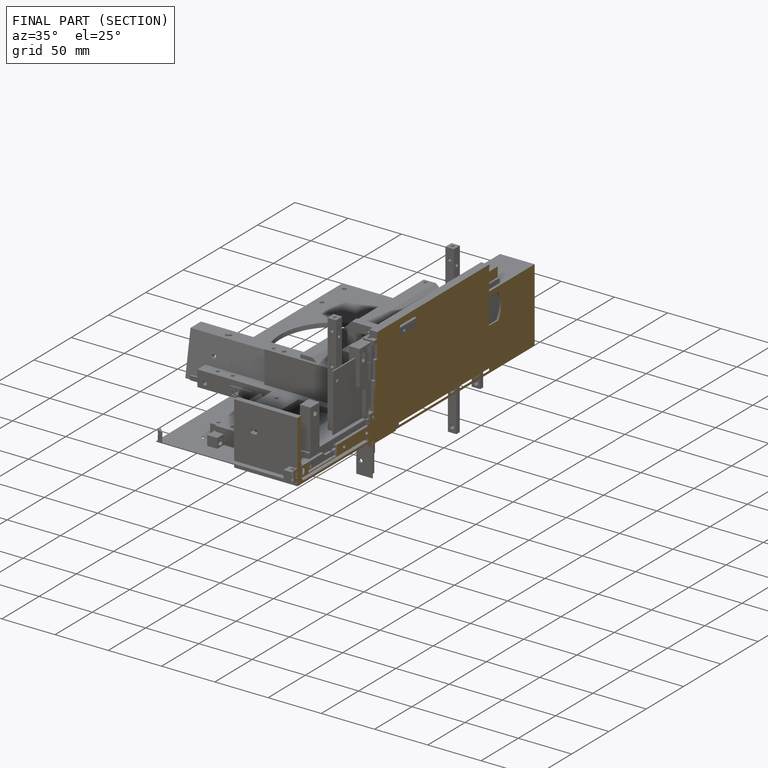
[diagram: finished part — half-section view (interior)]
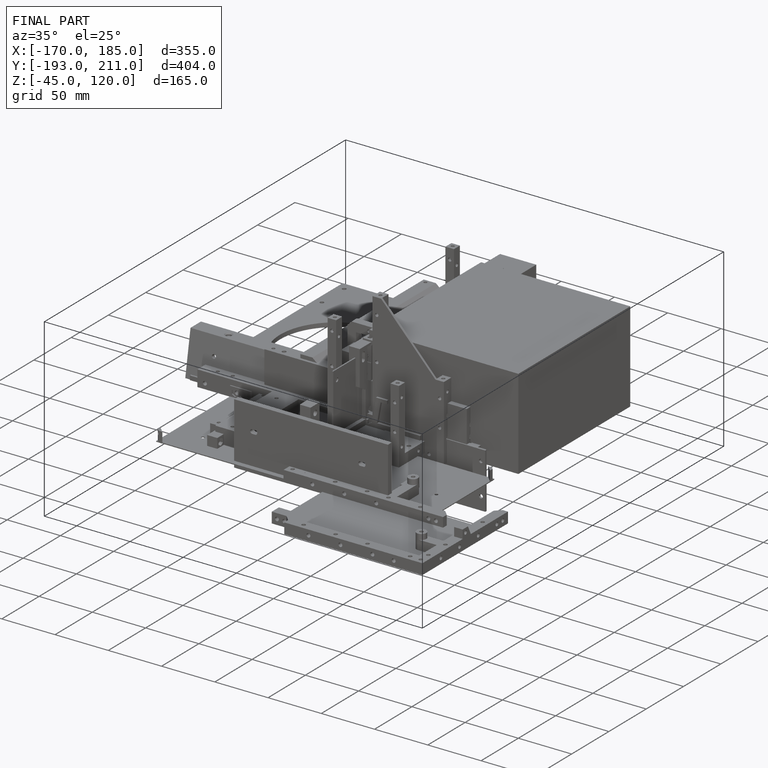
[diagram: finished part — iso view with bounding-box wireframe]
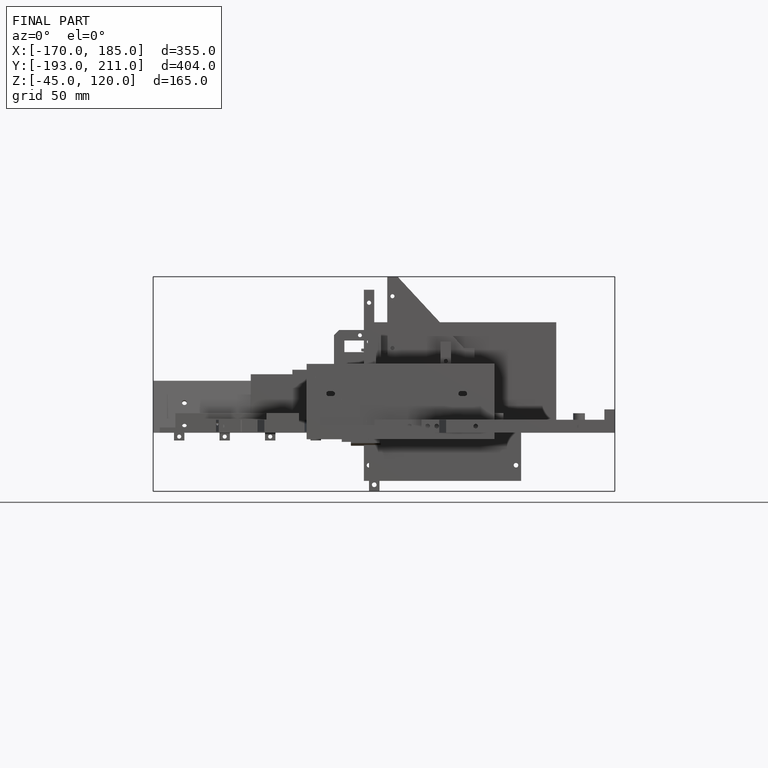
[diagram: finished part — front view with bounding-box wireframe]
